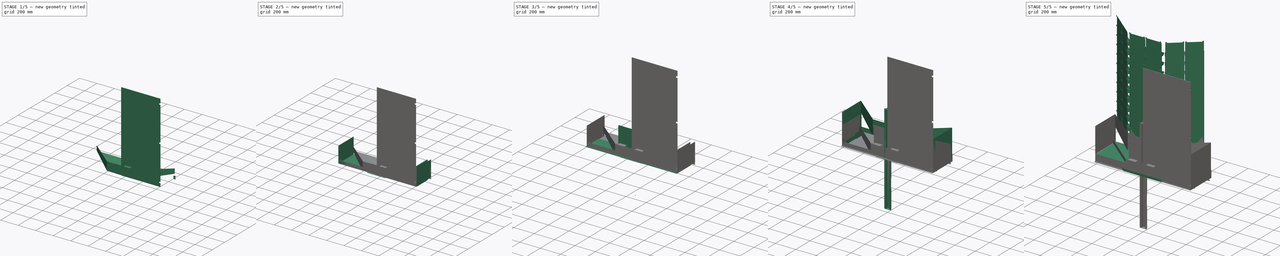
[diagram: build sequence overview — one tinted view per stage of 5, left to right]
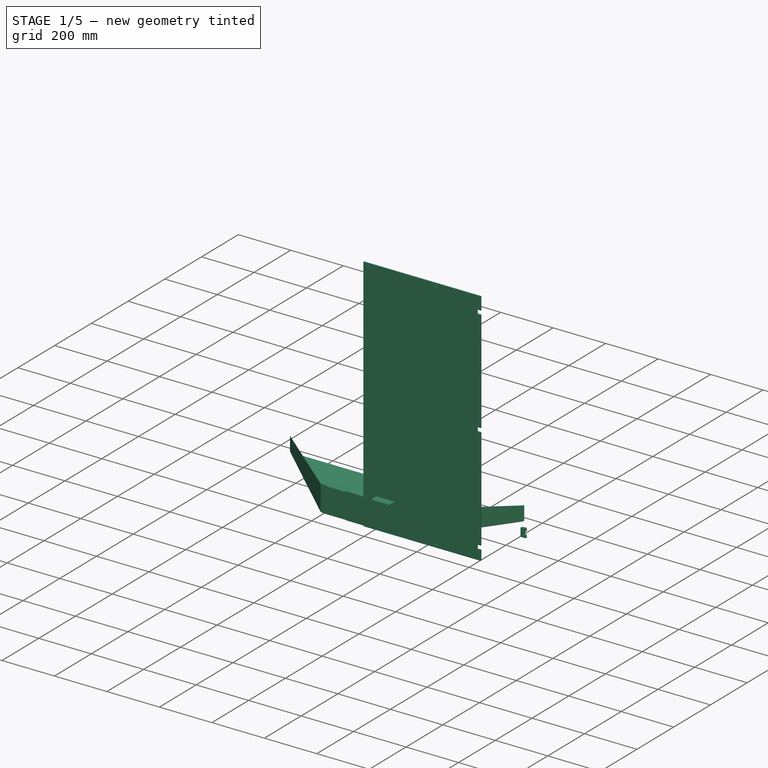
[diagram: stage 1 of 5 — iso view after this stage's code; geometry added in this stage tinted green]
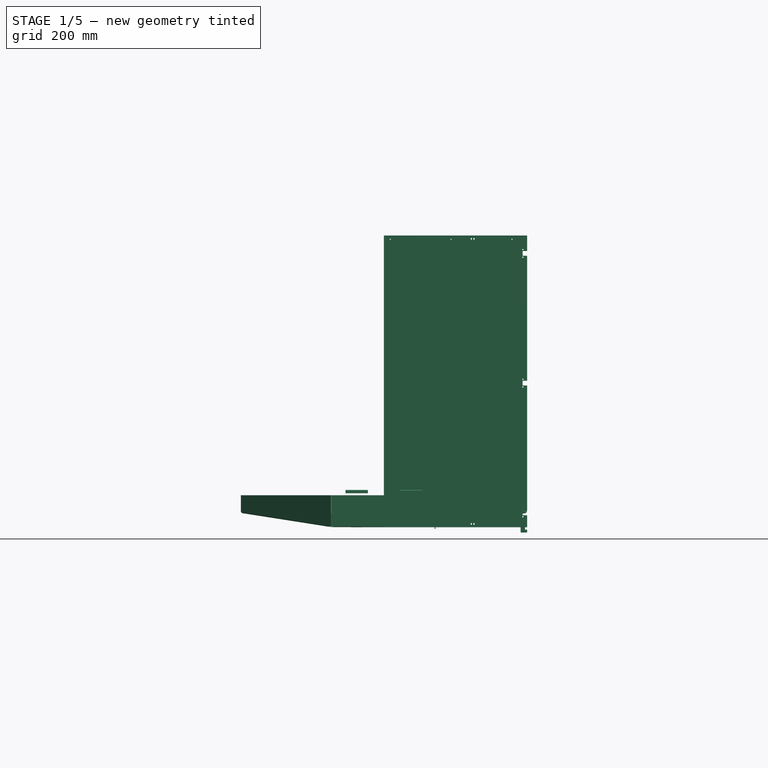
[diagram: stage 1 of 5 — front view after this stage's code; geometry added in this stage tinted green]
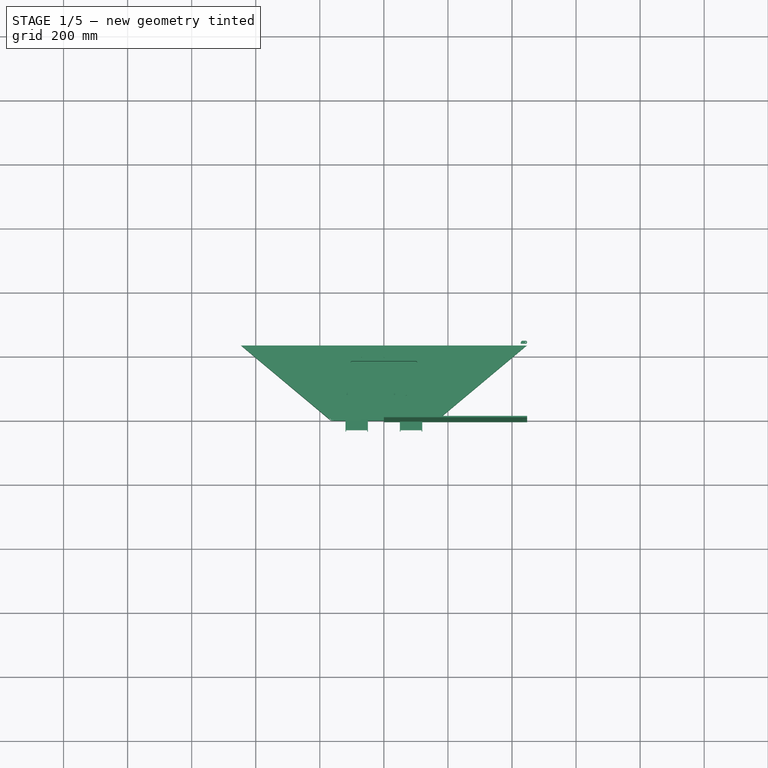
[diagram: stage 1 of 5 — top view after this stage's code; geometry added in this stage tinted green]
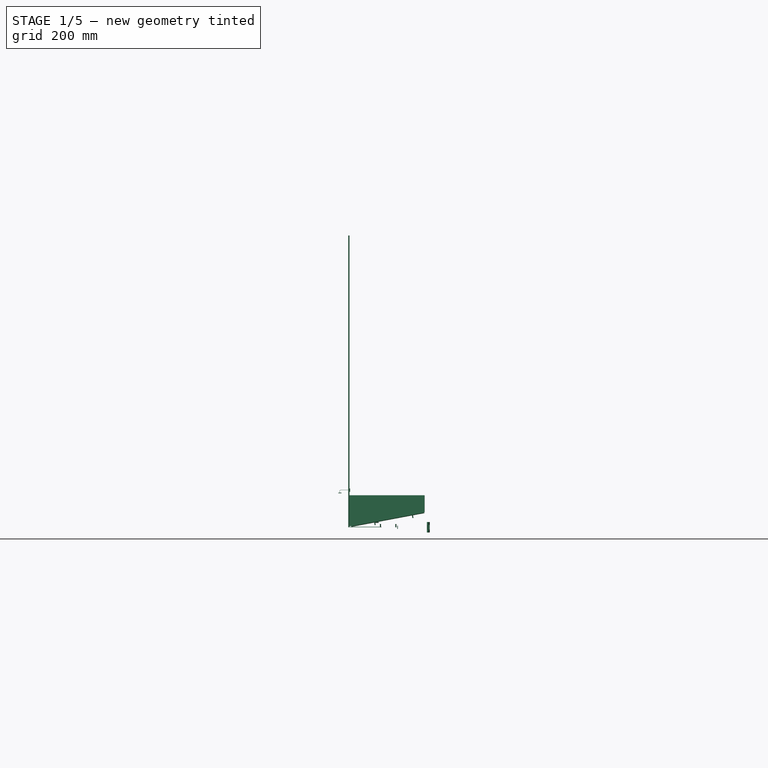
[diagram: stage 1 of 5 — right view after this stage's code; geometry added in this stage tinted green]
FCSTD DOCUMENT  (FreeCAD 0.22R37100 (Git))
Label: composit_stand12
License: All rights reserved
LicenseURL: http://en.wikipedia.org/wiki/All_rights_reserved
objects: Part::FeaturePython×197, Sketcher::SketchObject×115, PartDesign::SubShapeBinder×42, PartDesign::CoordinateSystem×42, Part::Extrusion×35, PartDesign::Pad×33, PartDesign::FeaturePython×29, PartDesign::Body×29, Part::Mirroring×28, Part::MultiFuse×25, PartDesign::Boolean×25, PartDesign::Pocket×17, Part::Compound×13, App::Link×10, PartDesign::Mirrored×8, App::DocumentObjectGroup×3, Part::Face×2, PartDesign::MultiTransform×2, Part::Box×2, Part::MultiCommon×2, +8 more types
note: 707 computed .brp shape members not serialized (recipe doc carries the construction recipe); baked Part::Feature solids carry a one-line shape summary decoded from their .brp
EXTERNAL_REF file=../module.FCStd obj=Sketch
EXTERNAL_REF file=../dropper.FCStd obj=Connect
EXTERNAL_REF file=../dropper.FCStd obj=Sketch007
EXTERNAL_REF file=../dropper.FCStd obj=Sketch008
EXTERNAL_REF file=../module.FCStd obj=Body
EXTERNAL_REF file=../rails.FCStd obj=Sketch001
EXTERNAL_REF file=../rails.FCStd obj=Sketch003
EXTERNAL_REF file=../composit_electric_shield.FCStd obj=Body002
EXTERNAL_REF file=../composit_electric_shield.FCStd obj=Extrude002
EXTERNAL_REF file=../ULZ-P02-14W.FCStd obj=Sketch
EXTERNAL_REF file=composit_stand12_model.FCStd obj=Assembly
EXTERNAL_REF file=../filter.FCStd obj=Sketch005
EXTERNAL_REF file=../filter.FCStd obj=Join001

FEATURE [Sketcher::SketchObject] Sketch
  AttachmentSupport = -> [XY_Plane019]
  FullyConstrained = true
  MapMode = 5
  sketch-geometry (15):
    g0: LineSegment StartX=1 StartY=0 StartZ=0 EndX=151 EndY=0 EndZ=0
    g1: LineSegment StartX=151 StartY=0 StartZ=0 EndX=151 EndY=36 EndZ=0
    g2: LineSegment StartX=151 StartY=36 StartZ=0 EndX=1 EndY=36 EndZ=0
    g3: LineSegment StartX=1 StartY=36 StartZ=0 EndX=1 EndY=0 EndZ=0
    g4: LineSegment StartX=292.702 StartY=106.323 StartZ=0 EndX=269.657 EndY=133.981 EndZ=0
    g5: LineSegment StartX=269.657 StartY=133.981 StartZ=0 EndX=384.897 EndY=230 EndZ=0
    g6: LineSegment StartX=384.897 StartY=230 StartZ=0 EndX=407.942 EndY=202.342 EndZ=0
    g7: LineSegment StartX=407.942 StartY=202.342 StartZ=0 EndX=292.702 EndY=106.323 EndZ=0
    g8: LineSegment StartX=175.925 StartY=9.02318 StartZ=0 EndX=152.881 EndY=36.6808 EndZ=0
    g9: LineSegment StartX=152.881 StartY=36.6808 StartZ=0 EndX=268.121 EndY=132.7 EndZ=0
    g10: LineSegment StartX=268.121 StartY=132.7 StartZ=0 EndX=291.165 EndY=105.043 EndZ=0
    g11: LineSegment StartX=291.165 StartY=105.043 StartZ=0 EndX=175.925 EndY=9.02318 EndZ=0
    g12: LineSegment StartX=291.165 StartY=105.043 StartZ=0 EndX=292.702 EndY=106.323 EndZ=0
    g13: LineSegment StartX=151 StartY=36 StartZ=0 EndX=152.064 EndY=36 EndZ=0
    g14: LineSegment StartX=152.064 StartY=36 StartZ=0 EndX=152.881 EndY=36.6808 EndZ=0
  constraints (44):
    c: Coincident(g0,g1)
    c: Coincident(g1,g2)
    c: Coincident(g2,g3)
    c: Coincident(g3,g0)
    c: Horizontal(g0)
    c: Horizontal(g2)
    c: Vertical(g1)
    c: Vertical(g3)
    c: Coincident(g4,g5)
    c: Coincident(g5,g6)
    c: Coincident(g6,g7)
    c: Coincident(g7,g4)
    c: Parallel(g4,g6)
    c: Parallel(g5,g7)
    c: Perpendicular(g4,g5)
    c: Coincident(g8,g9)
    c: Coincident(g9,g10)
    c: Coincident(g10,g11)
    c: Coincident(g11,g8)
    c: Parallel(g8,g10)
    c: Parallel(g9,g11)
    c: Perpendicular(g8,g9)
    c: Distance(g3) = 36
    c: Distance(g0) = 150
    c: Equal(g3,g8)
    c: Equal(g8,g4)
    c: Equal(g2,g9)
    c: Equal(g9,g5)
    c: Coincident(g12,g10)
    c: Coincident(g12,g4)
    c: Parallel(g11,g12)
    c: Parallel(g12,g7)
    c: Distance(g12) = 2
    c: Coincident(g1,g13)
    c: Coincident(g13,g14)
    c: Coincident(g14,g8)
    c: Parallel(g14,g9)
    c: Equal(g14,g13)
    c: Parallel(g13,g2)
    c: DistanceX(g-1,g0) = 1
    c: PointOnObject(g0,g-1)
    c: Distance(g1,g8) = 2
    c: DistanceY(g5) = 230
    c: Angle(g-1,g11) = 0.694667
FEATURE [Sketcher::SketchObject] Sketch001
  ExternalGeometry = -> [Sketch]
  FullyConstrained = true
  sketch-geometry (3):
    g0: LineSegment StartX=0 StartY=0 StartZ=0 EndX=165.096 EndY=0 EndZ=0
    g1: LineSegment StartX=165.096 StartY=0 StartZ=0 EndX=447.137 EndY=235 EndZ=0
    g2: GeomPoint X=-165.096 Y=0 Z=0
  constraints (8):
    c: Coincident(g-1,g0)
    c: PointOnObject(g0,g-1)
    c: Coincident(g0,g1)
    c: Perpendicular(g-3,g1)
    c: PointOnObject(g-3,g1)
    c: DistanceY(g-3,g1) = 5
    c: DistanceX(g1) = 447.137
    c: Symmetric(g2,g0,g-2)
FEATURE [Part::Part2DObjectPython] Clone2D  label="Sketch001 (2D)"  # Draft 2D object (typed FeaturePython)
  Fuse = false
  Objects = -> [Sketch001]
  Placement = pos=(0,30,0) rot=(0,0,1;0rad)
  Scale = (1,1,1)
  expr: .Placement.Base.y = <<face_bottom_placement>>.Placement.Base.y
FEATURE [Sketcher::SketchObject] Sketch002
  ExternalGeometry = -> [Clone2D]
  FullyConstrained = true
  sketch-geometry (1):
    g0: LineSegment StartX=447.137 StartY=265 StartZ=0 EndX=447.137 EndY=0 EndZ=0
  constraints (3):
    c: Coincident(g0,g-3)
    c: PointOnObject(g0,g-1)
    c: Vertical(g0)
FEATURE [Part::Compound] Compound
  Links = -> [Clone2D,Sketch002]
FEATURE [Part::Mirroring] Part__Mirroring  label="Compound (Mirror #1)"
  Base = (0,0,0)
  Normal = (1,0,0)
  Source = -> Compound
FEATURE [Part::FeaturePython] Connect  # WARN: FeaturePython — macro-defined, semantics opaque (R4)
  Objects = -> [Compound,Part__Mirroring]
  Tolerance = 0
FEATURE [PartDesign::SubShapeBinder] Binder
  BindCopyOnChange = 0
  BindMode = 0
  ClaimChildren = true
  Context = -> Body [Binder.]
  Fuse = false
  MakeFace = true
  OffsetFill = false
  OffsetIntersection = false
  OffsetJoinType = 0
  OffsetOpenResult = false
  PartialLoad = false
  Relative = false
  Support = -> [Connect]
  _Version = 2
FEATURE [PartDesign::FeaturePython] BaseBend  # WARN: FeaturePython — macro-defined, semantics opaque (R4)
  BendSide = 0
  BendSketch = -> Binder
  MidPlane = false
  Reverse = false
  Suppressed = false
  length = 1163
  radius = 0.1
  thickness = 0.3
  expr: length = <<Properties>>.height
FEATURE [Part::FeaturePython] Placment  # WARN: FeaturePython — macro-defined, semantics opaque (R4)
  AttacherType = Attacher::AttachEngine3D
  AttachmentOffset = pos=(0,0,0) rot=(-0.57735,-0.57735,-0.57735;2.0944rad)
  AttachmentSupport = -> [Sketch]
  ExposePlacement = true
  MapMode = 45
  MarkerShape = 1
  MarkerSize = 20
  NumElements = 1
  Placement = pos=(76,0,0) rot=(0,0,1;0rad)
  Type = lattice2AttachablePlacement.AttachablePlacement
  isLattice = 1
FEATURE [App::Link] Link  label="module_holes"
  LinkedObject = -> <external ../module.FCStd>#Sketch
FEATURE [Part::Extrusion] Extrude
  Base = -> Link
  Dir = (0,0,1)
  DirMode = 2
  FaceMakerClass = Part::FaceMakerBullseye
  LengthFwd = -5
  LengthRev = 0
  Solid = true
  Symmetric = false
FEATURE [Part::FeaturePython] LinearArray  # WARN: FeaturePython — macro-defined, semantics opaque (R4)
  Alignment = 0
  CellStart = A1
  Count = 11
  Dir = (0,0,-1)
  DirIsDriven = true
  DistributionLaw = 0
  DrivenProperty = 1
  EndInclusive = true
  ExposePlacement = false
  GeneratorMode = 1
  MarkerShape = 1
  MarkerSize = 0
  NumElements = 11
  OrientMode = 0
  Placement = pos=(0,0,-10) rot=(0,0,1;0rad)
  Point = (0,0,0)
  PointIsDriven = true
  Reverse = false
  SpanEnd = 100
  SpanStart = 0
  Step = 80
  Type = lattice2LinearArray.LinearArray
  VSGVersion = 1
  Values = 0.0 | 80.0 | 160.0 | 240.0 | 320.0 | 400.0 | 480.0 | 560.0 | 640.0 | 720.0 | 800.0
  ValuesSource = 2
  isLattice = 1
  expr: Count = <<Properties>>.modules_count
FEATURE [Part::FeaturePython] Placment003  # WARN: FeaturePython — macro-defined, semantics opaque (R4)
  AttacherType = Attacher::AttachEngine3D
  ExposePlacement = true
  MarkerShape = 1
  MarkerSize = 50
  NumElements = 1
  Placement = pos=(-76,0,0) rot=(0,0,1;0rad)
  Type = lattice2AttachablePlacement.AttachablePlacement
  isLattice = 1
  expr: .Placement.Base.x = -<<Placment>>.Placement.Base.x
  expr: .Placement.Base.y = <<Placment>>.Placement.Base.y
FEATURE [Part::FeaturePython] Placment006  label="top_placement"  # WARN: FeaturePython — macro-defined, semantics opaque (R4)
  AttacherType = Attacher::AttachEngine3D
  ExposePlacement = true
  MarkerShape = 1
  MarkerSize = 50
  NumElements = 1
  Placement = pos=(0,30,1163) rot=(0,0,1;0rad)
  Type = lattice2AttachablePlacement.AttachablePlacement
  isLattice = 1
  expr: .Placement.Base.y = <<face_bottom_placement>>.Placement.Base.y
  expr: .Placement.Base.z = <<Properties>>.height
FEATURE [Part::FeaturePython] Populate  label="Populate Placment006 with LinearArray"  # WARN: FeaturePython — macro-defined, semantics opaque (R4)
  Copying = 0
  ExposePlacement = false
  MarkerShape = 1
  MarkerSize = 0
  NumElements = 11
  Object = -> LinearArray
  OutputCompounding = 0
  PlacementsTo = -> Placment006
  Referencing = 0
  Type = lattice2PopulateCopies.LatticePopulateCopies
  isLattice = 1
FEATURE [Part::FeaturePython] Placment007  # WARN: FeaturePython — macro-defined, semantics opaque (R4)
  AttacherType = Attacher::AttachEngine3D
  ExposePlacement = true
  MarkerShape = 1
  MarkerSize = 20
  NumElements = 1
  Placement = pos=(0,0,0) rot=(0,0.707107,0.707107;3.14159rad)
  Type = lattice2AttachablePlacement.AttachablePlacement
  isLattice = 1
FEATURE [Part::FeaturePython] Placment008  label="face_bottom_placement"  # WARN: FeaturePython — macro-defined, semantics opaque (R4)
  AttacherType = Attacher::AttachEngine3D
  ExposePlacement = true
  MarkerShape = 1
  MarkerSize = 20
  NumElements = 1
  Placement = pos=(0,30,0) rot=(0,0,1;0rad)
  Type = lattice2AttachablePlacement.AttachablePlacement
  isLattice = 1
FEATURE [Spreadsheet::Sheet] Spreadsheet  label="Properties"
  cells = B2(height)==pan_height + pan_thickness + basin_height + sink_module_height + modules_height + bottom_offset; C2(modules_count)=11; D2(pan_height)==0 mm; E2(pan_thickness)==3 mm; F2(basin_height)==135 mm; G2(sink_module_height)==45 mm; H2(modules_height)==80 mm * (modules_count - 1) + 160 mm + 10 mm; I2(sink_total_height)==100 mm; J2(bottom_offset)==10 mm
FEATURE [PartDesign::Body] Body001  label="dummy_body"
  Origin = -> Origin001
FEATURE [Sketcher::SketchObject] Sketch003
  ExternalGeometry = -> [Sketch001]
  FullyConstrained = true
  Placement = pos=(0,0,0) rot=(0.57735,0.57735,0.57735;2.0944rad)
  sketch-geometry (1):
    g0: LineSegment StartX=0 StartY=0 StartZ=0 EndX=235 EndY=44.1693 EndZ=0
  constraints (3):
    c: Coincident(g0,g-1)
    c: Angle(g0) = 0.185787  'angle'
    c: Vertical(g-3,g0)
FEATURE [Sketcher::SketchObject] Sketch004
  AttachmentSupport = -> [Sketch001]
  ExternalGeometry = -> [Sketch003]
  FullyConstrained = true
  MapMode = 1
  Placement = pos=(447.137,235,0) rot=(0.57735,0.57735,0.57735;2.0944rad)
  sketch-geometry (1):
    g0: LineSegment StartX=0 StartY=0 StartZ=0 EndX=0 EndY=44.1693 EndZ=0
  constraints (2):
    c: Coincident(g0,g-1)
    c: Coincident(g-3,g0)
FEATURE [Sketcher::SketchObject] Sketch005
  AttachmentOffset = pos=(0,0,0) rot=(0,1,0;1.5708rad)
  AttachmentSupport = -> [Sketch001]
  ExternalGeometry = -> [Sketch004]
  FullyConstrained = true
  MapMode = 7
  Placement = pos=(165.096,1.42e-14,0) rot=(0.890129,0.322235,0.322235;1.68692rad)
  sketch-geometry (1):
    g0: LineSegment StartX=0 StartY=0 StartZ=0 EndX=367.113 EndY=44.1693 EndZ=0
  constraints (2):
    c: Coincident(g-1,g0)
    c: Coincident(g0,g-3)
FEATURE [PartDesign::SubShapeBinder] Binder001
  BindCopyOnChange = 0
  BindMode = 0
  ClaimChildren = true
  Context = -> Body002 [Binder001.]
  Fuse = false
  MakeFace = true
  OffsetFill = false
  OffsetIntersection = false
  OffsetJoinType = 0
  OffsetOpenResult = false
  PartialLoad = false
  Relative = true
  Support = -> [Sketch003]
  _Version = 2
FEATURE [PartDesign::SubShapeBinder] Binder002
  BindCopyOnChange = 0
  BindMode = 0
  ClaimChildren = true
  Context = -> Body002 [Binder002.]
  Fuse = false
  MakeFace = true
  OffsetFill = false
  OffsetIntersection = false
  OffsetJoinType = 0
  OffsetOpenResult = false
  PartialLoad = false
  Relative = true
  Support = -> [Sketch005]
  _Version = 2
FEATURE [Sketcher::SketchObject] Sketch006
  AttachmentSupport = -> [YZ_Plane002]
  ExternalGeometry = -> [Binder001]
  FullyConstrained = true
  MapMode = 5
  Placement = pos=(0,0,0) rot=(0.57735,0.57735,0.57735;2.0944rad)
  sketch-geometry (1):
    g0: ArcOfCircle CenterX=2.5 CenterY=3.01366 CenterZ=0 NormalX=0 NormalY=0 NormalZ=1 AngleXU=0 Radius=2.5 StartAngle=3.14159 EndAngle=4.89818
  constraints (3):
    c: Tangent(g0,g-2) = 1.5708
    c: Tangent(g0,g-3) = -1.5708
    c: Radius(g0) = 2.5
FEATURE [PartDesign::SubShapeBinder] Binder003
  BindCopyOnChange = 0
  BindMode = 0
  ClaimChildren = true
  Context = -> Body002 [Binder003.]
  Fuse = false
  MakeFace = true
  OffsetFill = false
  OffsetIntersection = false
  OffsetJoinType = 0
  OffsetOpenResult = false
  PartialLoad = false
  Relative = true
  Support = -> [Sketch001[Edge2]]
  _Version = 2
FEATURE [Sketcher::SketchObject] Sketch007
  AttachmentSupport = -> [Binder002]
  ExternalGeometry = -> [Binder001]
  FullyConstrained = true
  MapMode = 7
  Placement = pos=(165.096,4.26e-14,0) rot=(0.847578,-0.397021,-0.352117;1.8524rad)
  sketch-geometry (2):
    g0: ArcOfCircle CenterX=-2.5 CenterY=2.88397 CenterZ=0 NormalX=0 NormalY=0 NormalZ=1 AngleXU=0 Radius=2.5 StartAngle=4.56999 EndAngle=6.28319
    g1: LineSegment StartX=-2.85479 StartY=0.409277 StartZ=0 EndX=0 EndY=-2e-16 EndZ=0
  constraints (5):
    c: Tangent(g1,g0) = -1.5708
    c: Coincident(g1,g-1)
    c: Tangent(g0,g-2) = -1.5708
    c: Parallel(g1,g-3)
    c: Radius(g0) = 2.5
FEATURE [PartDesign::SubShapeBinder] Binder004
  BindCopyOnChange = 0
  BindMode = 0
  ClaimChildren = false
  Context = -> Body002 [Binder004.]
  Fuse = false
  MakeFace = true
  OffsetFill = false
  OffsetIntersection = false
  OffsetJoinType = 0
  OffsetOpenResult = false
  PartialLoad = false
  Relative = true
  _Version = 2
FEATURE [PartDesign::CoordinateSystem] Local_CS
  AttacherType = Attacher::AttachEngine3D
  AttachmentOffset = pos=(0,0,0) rot=(1,0,0;0.185787rad)
  AttachmentSupport = -> [XY_Plane002]
  MapMode = 5
  Placement = pos=(0,0,0) rot=(1,0,0;0.185787rad)
  expr: .AttachmentOffset.Rotation.Roll = <<Sketch003>>.Constraints.angle
FEATURE [Sketcher::SketchObject] Sketch008
  AttachmentSupport = -> [Local_CS]
  ExternalGeometry = -> [Binder001,Sketch006,Sketch007,Binder002]
  FullyConstrained = true
  MapMode = 5
  Placement = pos=(0,0,0) rot=(1,0,0;0.185787rad)
  sketch-geometry (4):
    g0: LineSegment StartX=-164.191 StartY=3.01366 StartZ=0 EndX=164.191 EndY=3.01366 EndZ=0
    g1: LineSegment StartX=164.191 StartY=3.01366 StartZ=0 EndX=442.677 EndY=239.115 EndZ=0
    g2: LineSegment StartX=442.677 StartY=239.115 StartZ=0 EndX=-442.677 EndY=239.115 EndZ=0
    g3: LineSegment StartX=-442.677 StartY=239.115 StartZ=0 EndX=-164.191 EndY=3.01366 EndZ=0
  constraints (13):
    c: Coincident(g0,g1)
    c: Coincident(g1,g2)
    c: Coincident(g2,g3)
    c: Coincident(g3,g0)
    c: Symmetric(g0,g0,g-2)
    c: Symmetric(g2,g1,g-2)
    c: PointOnObject(g-4,g0)
    c: PointOnObject(g-5,g1)
    c: Parallel(g1,g-6)
    c: PointOnObject(g-3,g2)
    c: DistanceX(g0,g0) = 328.382  'back'
    c: Distance(g1) = 365.1  'side'
    c: Distance(g2) = 885.354  'front'
FEATURE [Sketcher::SketchObject] Sketch009
  AttachmentSupport = -> [YZ_Plane002]
  ExternalGeometry = -> [Binder001]
  FullyConstrained = true
  MapMode = 5
  Placement = pos=(0,0,0) rot=(0.57735,0.57735,0.57735;2.0944rad)
  sketch-geometry (4):
    g0: ArcOfCircle CenterX=2.5 CenterY=3.01366 CenterZ=0 NormalX=0 NormalY=0 NormalZ=1 AngleXU=0 Radius=2.5 StartAngle=3.14159 EndAngle=4.89818
    g1: ArcOfCircle CenterX=2.5 CenterY=3.01366 CenterZ=0 NormalX=0 NormalY=0 NormalZ=1 AngleXU=0 Radius=2 StartAngle=3.14159 EndAngle=4.89818
    g2: LineSegment StartX=0 StartY=3.01366 StartZ=0 EndX=0.5 EndY=3.01366 EndZ=0
    g3: LineSegment StartX=2.9618 StartY=0.556683 StartZ=0 EndX=2.86944 EndY=1.04808 EndZ=0
  constraints (12):
    c: Coincident(g1,g0)
    c: Coincident(g2,g0)
    c: Coincident(g2,g1)
    c: Coincident(g3,g0)
    c: Coincident(g3,g1)
    c: Perpendicular(g1,g2)
    c: Perpendicular(g1,g3)
    c: Tangent(g0,g-3)
    c: Tangent(g0,g-2) = 1.5708
    c: Radius(g1) = 2
    c: Distance(g2) = 0.5
    c: Perpendicular(g-3,g3)
FEATURE [Sketcher::SketchObject] Sketch010
  AttachmentOffset = pos=(0,0,-7) rot=(0,0,1;0rad)
  AttachmentSupport = -> [Binder002,Sketch008]
  ExternalGeometry = -> [Binder001]
  FullyConstrained = true
  MapMode = 7
  Placement = pos=(171.395,5.24868,0.986513) rot=(0.847578,-0.397021,-0.352117;1.8524rad)
  expr: .AttachmentOffset.Base.z = -<<sink_cut_corner>>.Constraints.r
  sketch-geometry (4):
    g0: ArcOfCircle CenterX=-2.5 CenterY=2.88397 CenterZ=0 NormalX=0 NormalY=0 NormalZ=1 AngleXU=0 Radius=2.5 StartAngle=4.56999 EndAngle=6.28319
    g1: ArcOfCircle CenterX=-2.5 CenterY=2.88397 CenterZ=0 NormalX=0 NormalY=0 NormalZ=1 AngleXU=0 Radius=2 StartAngle=4.56999 EndAngle=6.28319
    g2: LineSegment StartX=-2.78383 StartY=0.904216 StartZ=0 EndX=-2.85479 EndY=0.409277 EndZ=0
    g3: LineSegment StartX=-0.5 StartY=2.88397 StartZ=0 EndX=0 EndY=2.88397 EndZ=0
  constraints (13):
    c: PointOnObject(g0,g-2)
    c: Coincident(g1,g0)
    c: Radius(g1) = 2
    c: Coincident(g2,g1)
    c: Coincident(g2,g0)
    c: Coincident(g3,g1)
    c: Coincident(g3,g0)
    c: Horizontal(g3)
    c: Perpendicular(g1,g3)
    c: Perpendicular(g1,g2)
    c: Tangent(g-3,g0)
    c: Distance(g2) = 0.5
    c: Perpendicular(g-3,g2)
FEATURE [PartDesign::Pad] Pad
  Direction = (0,-0.18472,0.982791)
  Length = 0.5
  Length2 = 10
  Placement = pos=(0,0,0) rot=(1,0,0;0.185787rad)
  Profile = -> Sketch008
  ReferenceAxis = -> Sketch008 [N_Axis]
  Suppressed = false
  Type = 0
FEATURE [PartDesign::Pad] Pad001
  BaseFeature = -> Pad
  Direction = (-0.762766,-0.635546,-0.119454)
  Length = 358.1
  Length2 = 10
  Placement = pos=(0,0,0) rot=(1,0,0;0.185787rad)
  Profile = -> Sketch010
  ReferenceAxis = -> Sketch010 [N_Axis]
  Reversed = true
  Suppressed = false
  Type = 0
  expr: Length = <<Sketch008>>.Constraints.side - <<sink_cut_corner>>.Constraints.r
FEATURE [PartDesign::Pad] Pad002
  BaseFeature = -> Pad001
  Direction = (1,0,0)
  Length = 314.382
  Length2 = 10
  Midplane = true
  Placement = pos=(0,0,0) rot=(1,0,0;0.185787rad)
  Profile = -> Sketch009
  ReferenceAxis = -> Sketch009 [N_Axis]
  Suppressed = false
  Type = 0
  expr: Length = <<Sketch008>>.Constraints.back - <<sink_cut_corner>>.Constraints.r * 2
FEATURE [Part::Mirroring] Part__Mirroring001  label="Sketch010 (Mirror #2)"
  Base = (0,0,0)
  Normal = (1,0,0)
  Source = -> Sketch010
FEATURE [PartDesign::SubShapeBinder] Binder005
  BindCopyOnChange = 0
  BindMode = 0
  ClaimChildren = true
  Context = -> Body002 [Binder005.]
  Fuse = false
  MakeFace = true
  OffsetFill = false
  OffsetIntersection = false
  OffsetJoinType = 0
  OffsetOpenResult = false
  PartialLoad = false
  Relative = false
  Support = -> [Part__Mirroring001]
  _Version = 2
FEATURE [PartDesign::Pad] Pad003
  BaseFeature = -> Pad002
  Direction = (0.762766,-0.635546,-0.119454)
  Length = 358.1
  Length2 = 10
  Placement = pos=(0,0,0) rot=(1,0,0;0.185787rad)
  Profile = -> Binder005
  Reversed = true
  Suppressed = false
  Type = 0
  expr: Length = Pad001.Length
FEATURE [Part::FeaturePython] LinearArray003  # WARN: FeaturePython — macro-defined, semantics opaque (R4)
  Alignment = 0
  CellStart = A1
  Count = 2
  Dir = (1,0,0)
  DirIsDriven = true
  DistributionLaw = 0
  DrivenProperty = 1
  EndInclusive = true
  ExposePlacement = false
  GeneratorMode = 0
  MarkerShape = 1
  MarkerSize = 0
  NumElements = 2
  OrientMode = 1
  Placement = pos=(-47.5,-4.7,0) rot=(0,0,1;0rad)
  Point = (0,0,0)
  PointIsDriven = true
  Reverse = false
  SpanEnd = 95
  SpanStart = 0
  Step = 95
  Type = lattice2LinearArray.LinearArray
  VSGVersion = 1
  Values = 0.0 | 95.0
  ValuesSource = 2
  isLattice = 1
  expr: .Placement.Base.x = -SpanEnd / 2
FEATURE [Part::Cylinder] Cylinder  label="hole_3.4mm"
  Angle = 360
  AttacherType = Attacher::AttachEngine3D
  FirstAngle = 0
  Height = 10
  Radius = 1.7
  SecondAngle = 0
FEATURE [Sketcher::SketchObject] Sketch039
  AttachmentOffset = pos=(0,0,0) rot=(0,0,1;1.5708rad)
  AttachmentSupport = -> [YZ_Plane002,Binder001]
  ExternalGeometry = -> [Binder001]
  FullyConstrained = true
  MapMode = 6
  Placement = pos=(2.12e-14,235,44.1693) rot=(0.57735,0.57735,0.57735;2.0944rad)
  sketch-geometry (10):
    g0: ArcOfCircle CenterX=0.36944 CenterY=-1.96558 CenterZ=0 NormalX=0 NormalY=0 NormalZ=1 AngleXU=0 Radius=2 StartAngle=1.5708 EndAngle=1.75658
    g1: ArcOfCircle CenterX=2.5 CenterY=-1.96558 CenterZ=0 NormalX=0 NormalY=0 NormalZ=1 AngleXU=0 Radius=2 StartAngle=1e-16 EndAngle=1.5708
    g2: LineSegment StartX=4.5 StartY=-1.96558 StartZ=0 EndX=4.5 EndY=-9.46558 EndZ=0
    g3: LineSegment StartX=4.5 StartY=-9.46558 StartZ=0 EndX=5 EndY=-9.46558 EndZ=0
    g4: LineSegment StartX=5 StartY=-9.46558 StartZ=0 EndX=5 EndY=-1.96558 EndZ=0
    g5: LineSegment StartX=2.5 StartY=0.0344176 StartZ=0 EndX=0.36944 EndY=0.0344176 EndZ=0
    g6: ArcOfCircle CenterX=2.5 CenterY=-1.96558 CenterZ=0 NormalX=0 NormalY=0 NormalZ=1 AngleXU=0 Radius=2.5 StartAngle=0 EndAngle=1.5708
    g7: ArcOfCircle CenterX=0.36944 CenterY=-1.96558 CenterZ=0 NormalX=0 NormalY=0 NormalZ=1 AngleXU=0 Radius=2.5 StartAngle=1.5708 EndAngle=1.75658
    g8: LineSegment StartX=0.36944 StartY=0.534418 StartZ=0 EndX=2.5 EndY=0.534418 EndZ=0
    g9: LineSegment StartX=-1e-16 StartY=0 StartZ=0 EndX=-0.0923599 EndY=0.491396 EndZ=0
  constraints (24):
    c: Tangent(g1,g2) = 1.5708
    c: Coincident(g2,g3)
    c: Horizontal(g3)
    c: Coincident(g3,g4)
    c: Tangent(g1,g5) = -1.5708
    c: Tangent(g0,g5) = -1.5708
    c: Coincident(g6,g1)
    c: Tangent(g6,g4) = -1.5708
    c: Vertical(g2)
    c: Vertical(g4)
    c: DistanceX(g3,g3) = 0.5
    c: Horizontal(g5)
    c: Tangent(g0,g-3) = 1.5708
    c: Equal(g0,g1)
    c: Radius(g0) = 2
    c: Coincident(g7,g0)
    c: Horizontal(g8)
    c: Tangent(g8,g6) = 1.5708
    c: Coincident(g9,g0)
    c: Coincident(g9,g7)
    c: Perpendicular(g7,g9)
    c: Tangent(g8,g7) = 1.5708
    c: DistanceY(g2,g6) = 10
    c: DistanceX(g0,g4) = 5
FEATURE [Sketcher::SketchObject] Sketch040
  ExternalGeometry = -> [Sketch001]
  FullyConstrained = true
  Placement = pos=(0,0,0) rot=(1,0,0;1.5708rad)
  sketch-geometry (5):
    g0: LineSegment StartX=-164.596 StartY=0 StartZ=0 EndX=164.596 EndY=0 EndZ=0
    g1: LineSegment StartX=164.596 StartY=0 StartZ=0 EndX=164.596 EndY=100 EndZ=0
    g2: LineSegment StartX=164.596 StartY=100 StartZ=0 EndX=-164.596 EndY=100 EndZ=0
    g3: LineSegment StartX=-164.596 StartY=100 StartZ=0 EndX=-164.596 EndY=0 EndZ=0
    g4: GeomPoint X=0 Y=50 Z=0
  constraints (13):
    c: Coincident(g0,g1)
    c: Coincident(g1,g2)
    c: Coincident(g2,g3)
    c: Coincident(g3,g0)
    c: Horizontal(g0)
    c: Horizontal(g2)
    c: Vertical(g1)
    c: Vertical(g3)
    c: Symmetric(g2,g0,g4)
    c: PointOnObject(g4,g-2)
    c: PointOnObject(g0,g-1)
    c: DistanceY(g1) = 100
    c: DistanceX(g0,g-3) = 0.5
FEATURE [Sketcher::SketchObject] Sketch041
  AttachmentOffset = pos=(0,0,0) rot=(0,1,0;1.5708rad)
  AttachmentSupport = -> [Sketch001]
  ExternalGeometry = -> [Sketch005,Sketch040]
  FullyConstrained = true
  MapMode = 7
  Placement = pos=(165.096,1.42e-14,0) rot=(0.890129,0.322235,0.322235;1.68692rad)
  sketch-geometry (4):
    g0: LineSegment StartX=0.5 StartY=0.0601576 StartZ=0 EndX=366.113 EndY=44.049 EndZ=0
    g1: LineSegment StartX=366.113 StartY=44.049 StartZ=0 EndX=366.113 EndY=100 EndZ=0
    g2: LineSegment StartX=366.113 StartY=100 StartZ=0 EndX=0.5 EndY=100 EndZ=0
    g3: LineSegment StartX=0.5 StartY=100 StartZ=0 EndX=0.5 EndY=0.0601576 EndZ=0
  constraints (12):
    c: PointOnObject(g0,g-3)
    c: PointOnObject(g0,g-3)
    c: Coincident(g0,g1)
    c: Vertical(g1)
    c: Coincident(g1,g2)
    c: Horizontal(g2)
    c: Coincident(g2,g3)
    c: Coincident(g3,g0)
    c: Vertical(g3)
    c: DistanceX(g0) = 0.5
    c: DistanceX(g0,g-3) = 1
    c: Horizontal(g-4,g2)
FEATURE [PartDesign::SubShapeBinder] Binder010
  BindCopyOnChange = 0
  BindMode = 0
  ClaimChildren = false
  Context = -> Body002 [Binder010.]
  Fuse = false
  MakeFace = true
  OffsetFill = false
  OffsetIntersection = false
  OffsetJoinType = 0
  OffsetOpenResult = false
  PartialLoad = false
  Relative = true
  Support = -> [Sketch040]
  _Version = 2
FEATURE [Sketcher::SketchObject] Sketch011
  AttachmentSupport = -> [XZ_Plane002]
  ExternalGeometry = -> [Sketch009,Binder003,Binder010]
  FullyConstrained = true
  MapMode = 5
  Placement = pos=(0,0,0) rot=(1,0,0;1.5708rad)
  sketch-geometry (5):
    g0: LineSegment StartX=-164.596 StartY=100 StartZ=0 EndX=-164.596 EndY=3.01366 EndZ=0
    g1: LineSegment StartX=-164.596 StartY=3.01366 StartZ=0 EndX=164.596 EndY=3.01366 EndZ=0
    g2: LineSegment StartX=164.596 StartY=3.01366 StartZ=0 EndX=164.596 EndY=100 EndZ=0
    g3: LineSegment StartX=164.596 StartY=100 StartZ=0 EndX=-164.596 EndY=100 EndZ=0
    g4: GeomPoint X=0 Y=51.5068 Z=0
  constraints (12):
    c: Coincident(g0,g1)
    c: Coincident(g1,g2)
    c: Coincident(g2,g3)
    c: Coincident(g3,g0)
    c: Vertical(g0)
    c: Vertical(g2)
    c: Horizontal(g1)
    c: Horizontal(g3)
    c: Symmetric(g2,g0,g4)
    c: PointOnObject(g4,g-2)
    c: PointOnObject(g-3,g1)
    c: Coincident(g2,g-5)
FEATURE [PartDesign::Pad] Pad004
  BaseFeature = -> Pad003
  Direction = (0,-1,2e-16)
  Length = 0.5
  Length2 = 10
  Placement = pos=(0,0,0) rot=(1,0,0;0.185787rad)
  Profile = -> Sketch011
  ReferenceAxis = -> Sketch011 [N_Axis]
  Reversed = true
  Suppressed = false
  Type = 0
FEATURE [Sketcher::SketchObject] Sketch014
  AttachmentOffset = pos=(164.191,0,0) rot=(0,0,1;0rad)
  AttachmentSupport = -> [XZ_Plane002]
  ExternalGeometry = -> [Sketch011]
  FullyConstrained = true
  MapMode = 5
  Placement = pos=(164.191,0,0) rot=(1,0,0;1.5708rad)
  expr: .AttachmentOffset.Base.x = <<Sketch008>>.Constraints.back / 2
  sketch-geometry (4):
    g0: ArcOfCircle CenterX=0 CenterY=3.01366 CenterZ=0 NormalX=0 NormalY=0 NormalZ=1 AngleXU=0 Radius=7 StartAngle=1.90373 EndAngle=3.14159
    g1: LineSegment StartX=-7 StartY=3.01366 StartZ=0 EndX=0.405024 EndY=3.01366 EndZ=0
    g2: LineSegment StartX=0.405024 StartY=3.01366 StartZ=0 EndX=0.405024 EndY=13.4096 EndZ=0
    g3: ArcOfCircle CenterX=-3.59498 CenterY=13.4096 CenterZ=0 NormalX=0 NormalY=0 NormalZ=1 AngleXU=0 Radius=4 StartAngle=5.04532 EndAngle=6.28319
  constraints (12):
    c: PointOnObject(g0,g-2)
    c: PointOnObject(g0,g-3)
    c: PointOnObject(g0,g-3)
    c: Radius(g0) = 7
    c: Horizontal(g1)
    c: Coincident(g1,g2)
    c: Vertical(g2)
    c: Tangent(g3,g2) = -1.5708
    c: Tangent(g3,g0) = 1.5708
    c: Radius(g3) = 4
    c: PointOnObject(g-3,g2)
    c: Coincident(g1,g0)
FEATURE [Sketcher::SketchObject] Sketch019  label="sink_face_cut"
  AttachmentSupport = -> [XZ_Plane002]
  ExternalGeometry = -> [Sketch011]
  FullyConstrained = true
  MapMode = 5
  Placement = pos=(0,0,0) rot=(1,0,0;1.5708rad)
  sketch-geometry (3):
    g0: ArcOfCircle CenterX=159.596 CenterY=95 CenterZ=0 NormalX=0 NormalY=0 NormalZ=1 AngleXU=0 Radius=5 StartAngle=-9e-16 EndAngle=1.5708
    g1: LineSegment StartX=164.596 StartY=95 StartZ=0 EndX=164.596 EndY=100 EndZ=0
    g2: LineSegment StartX=164.596 StartY=100 StartZ=0 EndX=159.596 EndY=100 EndZ=0
  constraints (7):
    c: Tangent(g0,g-3) = -1.5708
    c: Coincident(g0,g1)
    c: Coincident(g1,g2)
    c: Horizontal(g2)
    c: Coincident(g1,g-3)
    c: Radius(g0) = 5  'r'
    c: Tangent(g2,g0) = -1.5708
FEATURE [PartDesign::SubShapeBinder] Binder011
  BindCopyOnChange = 0
  BindMode = 0
  ClaimChildren = false
  Context = -> Body002 [Binder011.]
  Fuse = false
  MakeFace = true
  OffsetFill = false
  OffsetIntersection = false
  OffsetJoinType = 0
  OffsetOpenResult = false
  PartialLoad = false
  Relative = true
  Support = -> [Sketch041]
  _Version = 2
FEATURE [Sketcher::SketchObject] Sketch012
  AttachmentOffset = pos=(0,0,0) rot=(0,1,0;1.5708rad)
  AttachmentSupport = -> [Binder003]
  ExternalGeometry = -> [Sketch010,Binder002,Binder011]
  FullyConstrained = true
  MapMode = 7
  Placement = pos=(165.096,1.42e-14,0) rot=(0.890129,0.322235,0.322235;1.68692rad)
  sketch-geometry (4):
    g0: LineSegment StartX=0.5 StartY=2.96493 StartZ=0 EndX=366.113 EndY=46.9537 EndZ=0
    g1: LineSegment StartX=366.113 StartY=46.9537 StartZ=0 EndX=366.113 EndY=100 EndZ=0
    g2: LineSegment StartX=366.113 StartY=100 StartZ=0 EndX=0.5 EndY=100 EndZ=0
    g3: LineSegment StartX=0.5 StartY=100 StartZ=0 EndX=0.5 EndY=2.96493 EndZ=0
  constraints (10):
    c: Coincident(g0,g1)
    c: Coincident(g1,g2)
    c: Coincident(g2,g3)
    c: Coincident(g3,g0)
    c: Vertical(g1)
    c: Vertical(g3)
    c: Parallel(g0,g-4)
    c: PointOnObject(g-3,g0)
    c: Coincident(g2,g-5)
    c: Coincident(g1,g-5)
FEATURE [PartDesign::Pad] Pad005
  BaseFeature = -> Pad004
  Direction = (0.64013,-0.768267,0)
  Length = 0.5
  Length2 = 10
  Placement = pos=(0,0,0) rot=(1,0,0;0.185787rad)
  Profile = -> Sketch012
  ReferenceAxis = -> Sketch012 [N_Axis]
  Reversed = true
  Suppressed = false
  Type = 0
FEATURE [Part::Mirroring] Part__Mirroring002  label="Sketch012 (Mirror #3)"
  Base = (0,0,0)
  Normal = (1,0,0)
  Source = -> Sketch012
FEATURE [PartDesign::Pad] Pad006
  BaseFeature = -> Pad005
  Direction = (0.64013,0.768267,-2e-16)
  Length = 0.5
  Length2 = 10
  Placement = pos=(0,0,0) rot=(1,0,0;0.185787rad)
  Profile = -> Binder006
  Suppressed = false
  Type = 0
FEATURE [PartDesign::CoordinateSystem] Local_CS017  label="cap_outer_LCS"
  AttacherType = Attacher::AttachEngine3D
  AttachmentSupport = -> [XY_Plane011]
  MapMode = 5
FEATURE [PartDesign::CoordinateSystem] Local_CS018  label="cap_inner_LCS"
  AttacherType = Attacher::AttachEngine3D
  AttachmentSupport = -> [XY_Plane013]
  MapMode = 5
FEATURE [PartDesign::CoordinateSystem] Local_CS019  label="face_top_LCS"
  AttacherType = Attacher::AttachEngine3D
  AttachmentOffset = pos=(0,0,1163.4) rot=(0,0,1;0rad)
  AttachmentSupport = -> [XY_Plane]
  MapMode = 5
  Placement = pos=(0,0,1163.4) rot=(0,0,1;0rad)
  expr: .AttachmentOffset.Base.z = <<Properties>>.height + 0.4 mm
FEATURE [PartDesign::CoordinateSystem] Local_CS020  label="face_electric_shield_LCS"
  AttacherType = Attacher::AttachEngine3D
  AttachmentOffset = pos=(447.137,125,930) rot=(0.57735,0.57735,0.57735;2.0944rad)
  AttachmentSupport = -> [XY_Plane]
  MapMode = 5
  Placement = pos=(447.137,125,930) rot=(0.57735,0.57735,0.57735;2.0944rad)
  expr: AttachmentOffset = <<electric_shield_placement>>.Placement
FEATURE [Sketcher::SketchObject] Sketch062  label="Sketch064"
  ExternalGeometry = -> [Sketch001]
  FullyConstrained = true
  sketch-geometry (5):
    g0: LineSegment StartX=429.23 StartY=220.08 StartZ=0 EndX=448.437 EndY=236.083 EndZ=0
    g1: LineSegment StartX=448.437 StartY=236.083 StartZ=0 EndX=398.437 EndY=286.083 EndZ=0
    g2: LineSegment StartX=398.437 StartY=286.083 StartZ=0 EndX=378.437 EndY=286.083 EndZ=0
    g3: ArcOfCircle CenterX=444.437 CenterY=236.265 CenterZ=0 NormalX=0 NormalY=0 NormalZ=1 AngleXU=0 Radius=2.7 StartAngle=5.40706 EndAngle=7.06858
    g4: LineSegment StartX=447.137 StartY=235 StartZ=0 EndX=447.137 EndY=236.265 EndZ=0
  constraints (17):
    c: Coincident(g1,g2)
    c: Horizontal(g2)
    c: PointOnObject(g0,g-3)
    c: Angle(g1) = 2.35619
    c: Distance(g0) = 25
    c: DistanceY(g0,g1) = 50
    c: Coincident(g0,g1)
    c: PointOnObject(g-3,g0)
    c: Tangent(g3,g1) = -1.5708
    c: Tangent(g3,g0) = -1.5708
    c: Radius(g3) = 2.7
    c: Coincident(g4,g-3)
    c: Tangent(g4,g3) = -1.5708
    c: Vertical(g4)
    c: DistanceX(g2,g2) = 20
    c: DistanceX(g1) = 398.437
    c: DistanceY(g1) = 286.083  'depth'
FEATURE [PartDesign::CoordinateSystem] Local_CS022  label="face_door_LCS"
  AttacherType = Attacher::AttachEngine3D
  AttachmentOffset = pos=(0,30,250) rot=(0,0,1;0rad)
  AttachmentSupport = -> [XY_Plane]
  MapMode = 5
  Placement = pos=(0,30,250) rot=(0,0,1;0rad)
  expr: AttachmentOffset = <<door_placement>>.Placement
FEATURE [PartDesign::SubShapeBinder] Binder020
  BindCopyOnChange = 0
  BindMode = 0
  ClaimChildren = false
  Fuse = false
  MakeFace = true
  OffsetFill = false
  OffsetIntersection = false
  OffsetJoinType = 0
  OffsetOpenResult = false
  PartialLoad = false
  Relative = true
  Support = -> [<external ../ULZ-P02-14W.FCStd>#Sketch]
  _Version = 2
FEATURE [Sketcher::SketchObject] Sketch063  label="Sketch065"
  ExternalGeometry = -> [Binder020]
  FullyConstrained = true
  sketch-geometry (18):
    g0: ArcOfCircle CenterX=4.15 CenterY=-446.3 CenterZ=0 NormalX=0 NormalY=0 NormalZ=1 AngleXU=0 Radius=1.7 StartAngle=3.14159 EndAngle=6.28319
    g1: ArcOfCircle CenterX=4.15 CenterY=-443.7 CenterZ=0 NormalX=0 NormalY=0 NormalZ=1 AngleXU=0 Radius=1.7 StartAngle=1.09e-14 EndAngle=3.14159
    g2: LineSegment StartX=2.45 StartY=-446.3 StartZ=0 EndX=2.45 EndY=-443.7 EndZ=0
    g3: LineSegment StartX=5.85 StartY=-446.3 StartZ=0 EndX=5.85 EndY=-443.7 EndZ=0
    g4: GeomPoint X=4.15 Y=-448 Z=0
    g5: GeomPoint X=4.15 Y=-442 Z=0
    g6: ArcOfCircle CenterX=-4.15 CenterY=-446.3 CenterZ=0 NormalX=0 NormalY=0 NormalZ=1 AngleXU=0 Radius=1.7 StartAngle=3.14159 EndAngle=6.28319
    g7: ArcOfCircle CenterX=-4.15 CenterY=-443.7 CenterZ=0 NormalX=0 NormalY=0 NormalZ=1 AngleXU=0 Radius=1.7 StartAngle=-8e-15 EndAngle=3.14159
    g8: LineSegment StartX=-2.45 StartY=-446.3 StartZ=0 EndX=-2.45 EndY=-443.7 EndZ=0
    g9: LineSegment StartX=-5.85 StartY=-446.3 StartZ=0 EndX=-5.85 EndY=-443.7 EndZ=0
    g10: ArcOfCircle CenterX=4.15 CenterY=446.3 CenterZ=0 NormalX=0 NormalY=0 NormalZ=1 AngleXU=0 Radius=1.7 StartAngle=1e-15 EndAngle=3.14159
    g11: ArcOfCircle CenterX=4.15 CenterY=443.7 CenterZ=0 NormalX=0 NormalY=0 NormalZ=1 AngleXU=0 Radius=1.7 StartAngle=3.14159 EndAngle=6.28319
    g12: LineSegment StartX=2.45 StartY=446.3 StartZ=0 EndX=2.45 EndY=443.7 EndZ=0
    g13: LineSegment StartX=5.85 StartY=446.3 StartZ=0 EndX=5.85 EndY=443.7 EndZ=0
    g14: ArcOfCircle CenterX=-4.15 CenterY=446.3 CenterZ=0 NormalX=0 NormalY=0 NormalZ=1 AngleXU=0 Radius=1.7 StartAngle=1e-15 EndAngle=3.14159
    g15: ArcOfCircle CenterX=-4.15 CenterY=443.7 CenterZ=0 NormalX=0 NormalY=0 NormalZ=1 AngleXU=0 Radius=1.7 StartAngle=3.14159 EndAngle=6.28319
    g16: LineSegment StartX=-2.45 StartY=446.3 StartZ=0 EndX=-2.45 EndY=443.7 EndZ=0
    g17: LineSegment StartX=-5.85 StartY=446.3 StartZ=0 EndX=-5.85 EndY=443.7 EndZ=0
  constraints (38):
    c: Tangent(g0,g2) = 1.5708
    c: Tangent(g0,g3) = -1.5708
    c: Tangent(g1,g2) = 1.5708
    c: Tangent(g1,g3) = -1.5708
    c: Equal(g0,g1)
    c: Vertical(g2)
    c: Symmetric(g0,g1,g-3)
    c: Diameter(g1) = 3.4
    c: PointOnObject(g4,g0)
    c: PointOnObject(g5,g1)
    c: Vertical(g4,g5)
    c: Vertical(g5,g-3)
    c: DistanceY(g4,g5) = 6
    c: Tangent(g6,g8) = -1.5708
    c: Tangent(g6,g9) = 1.5708
    c: Tangent(g7,g8) = -1.5708
    c: Tangent(g7,g9) = 1.5708
    c: Equal(g6,g7)
    c: Vertical(g8)
    c: Diameter(g7) = 3.4
    c: Symmetric(g7,g1,g-2)
    c: Horizontal(g6,g0)
    c: Tangent(g10,g12) = -1.5708
    c: Tangent(g10,g13) = 1.5708
    c: Tangent(g11,g12) = -1.5708
    c: Tangent(g11,g13) = 1.5708
    c: Equal(g10,g11)
    c: Diameter(g11) = 3.4
    c: Tangent(g14,g16) = 1.5708
    c: Tangent(g14,g17) = -1.5708
    c: Tangent(g15,g16) = 1.5708
    c: Tangent(g15,g17) = -1.5708
    c: Equal(g14,g15)
    c: Diameter(g15) = 3.4
    c: Symmetric(g11,g1,g-1)
    c: Symmetric(g0,g10,g-1)
    c: Symmetric(g11,g15,g-2)
    c: Symmetric(g10,g14,g-2)
FEATURE [Part::Extrusion] Extrude022
  Base = -> Sketch063
  Dir = (0,0,1)
  DirMode = 2
  FaceMakerClass = Part::FaceMakerBullseye
  LengthFwd = 10
  LengthRev = 5
  Solid = true
  Symmetric = false
FEATURE [Part::Mirroring] Part__Mirroring017  label="Sketch069 (Mirror #18)"
  Base = (0,0,0)
  Normal = (1,0,0)
  Source = -> Sketch068
FEATURE [Part::FeaturePython] Connect006  # WARN: FeaturePython — macro-defined, semantics opaque (R4)
  Objects = -> [Sketch068,Part__Mirroring017]
  Tolerance = 0
FEATURE [PartDesign::CoordinateSystem] Local_CS024  label="basin_fix_LCS"
  AttacherType = Attacher::AttachEngine3D
  AttachmentOffset = pos=(0,0,-3) rot=(0,0,1;0rad)
  AttachmentSupport = -> [XY_Plane016]
  MapMode = 5
  Placement = pos=(0,0,-3) rot=(0,0,1;0rad)
FEATURE [PartDesign::Body] Body015  label="basin_fix"
  Group = -> [Binder022,Binder023,Pad014,Pocket008,Local_CS024]
  Origin = -> Origin016
  Tip = -> Pocket008
FEATURE [Sketcher::SketchObject] Sketch070  label="door_plexiglass_Sketch"
  FullyConstrained = true
  expr: .Constraints.length = <<Dimensions>>.Constraints.width / 2
  sketch-geometry (1):
    g0: LineSegment StartX=0 StartY=0 StartZ=0 EndX=447.137 EndY=0 EndZ=0
  constraints (3):
    c: Coincident(g0,g-1)
    c: PointOnObject(g0,g-1)
    c: DistanceX(g0,g0) = 447.137  'length'
FEATURE [PartDesign::SubShapeBinder] Binder024
  BindCopyOnChange = 0
  BindMode = 0
  ClaimChildren = true
  Context = -> Body016 [Binder024.]
  Fuse = false
  MakeFace = true
  OffsetFill = false
  OffsetIntersection = false
  OffsetJoinType = 0
  OffsetOpenResult = false
  PartialLoad = false
  Relative = true
  Support = -> [Sketch070]
  _Version = 2
FEATURE [PartDesign::FeaturePython] BaseBend015  label="door_plexiglass_BaseBend"  # WARN: FeaturePython — macro-defined, semantics opaque (R4)
  BendSide = 0
  BendSketch = -> Binder024
  MidPlane = false
  Reverse = false
  Suppressed = false
  length = 911
  radius = 1
  thickness = 4
FEATURE [Part::FeaturePython] Placment021  # WARN: FeaturePython — macro-defined, semantics opaque (R4)
  AttacherType = Attacher::AttachEngine3D
  ExposePlacement = true
  MarkerShape = 1
  MarkerSize = 100
  NumElements = 1
  Placement = pos=(277.137,-4,455.5) rot=(1,0,0;1.5708rad)
  Type = lattice2AttachablePlacement.AttachablePlacement
  isLattice = 1
  expr: .Placement.Base.x = <<door_plexiglass_Sketch>>.Constraints.length - 170 mm
  expr: .Placement.Base.y = -<<door_plexiglass_BaseBend>>.thickness
  expr: .Placement.Base.z = <<door_plexiglass_BaseBend>>.length / 2
FEATURE [Part::FeaturePython] Populate040  label="Populate Placment021 with Extrude022"  # WARN: FeaturePython — macro-defined, semantics opaque (R4)
  Copying = 0
  ExposePlacement = false
  MarkerShape = 1
  MarkerSize = 0
  NumElements = 0
  Object = -> Extrude022
  OutputCompounding = 2
  PlacementsTo = -> Placment021
  Referencing = 0
  Type = lattice2PopulateCopies.LatticePopulateCopies
  isLattice = 0
FEATURE [PartDesign::Body] Body012  label="cap_inner"
  Group = -> [Binder018,BaseBend013,Bend004,Pad026,Boolean013,Local_CS018,Sketch084]
  Origin = -> Origin013
  Tip = -> Pad026
FEATURE [Sketcher::SketchObject] Sketch086  label="sink_cutout_sketch"
  FullyConstrained = true
  sketch-geometry (7):
    g0: LineSegment StartX=0 StartY=0 StartZ=0 EndX=66.499 EndY=0 EndZ=0
    g1: LineSegment StartX=71.1974 StartY=3.2899 StartZ=0 EndX=103.955 EndY=93.2899 EndZ=0
    g2: LineSegment StartX=99.2563 StartY=100 StartZ=0 EndX=0 EndY=100 EndZ=0
    g3: ArcOfCircle CenterX=99.2563 CenterY=95 CenterZ=0 NormalX=0 NormalY=0 NormalZ=1 AngleXU=0 Radius=5 StartAngle=5.93412 EndAngle=7.85398
    g4: GeomPoint X=106.397 Y=100 Z=0
    g5: ArcOfCircle CenterX=66.499 CenterY=5 CenterZ=0 NormalX=0 NormalY=0 NormalZ=1 AngleXU=0 Radius=5 StartAngle=4.71239 EndAngle=5.93412
    g6: GeomPoint X=70 Y=0 Z=0
  constraints (18):
    c: Coincident(g-1,g0)
    c: PointOnObject(g6,g-1)
    c: PointOnObject(g2,g-2)
    c: Horizontal(g2)
    c: PointOnObject(g4,g1)
    c: PointOnObject(g4,g2)
    c: Tangent(g1,g3) = -1.5708
    c: Tangent(g2,g3) = -1.5708
    c: PointOnObject(g6,g0)
    c: PointOnObject(g6,g1)
    c: Tangent(g0,g5) = -1.5708
    c: Tangent(g1,g5) = -1.5708
    c: Angle(g1) = 1.22173
    c: DistanceX(g6) = 70
    c: DistanceY(g2) = 100  'length'
    c: Equal(g5,g3)
    c: Radius(g5) = 5
    c: DistanceX(g4) = 106.397
FEATURE [Part::Mirroring] Part__Mirroring021  label="Sketch086 (Mirror #22)"
  Base = (0,0,0)
  Normal = (1,0,0)
  Source = -> Sketch086
FEATURE [Part::FeaturePython] Connect007  # WARN: FeaturePython — macro-defined, semantics opaque (R4)
  Objects = -> [Sketch086,Part__Mirroring021]
  Tolerance = 0
FEATURE [Part::Offset2D] Offset2D
  Fill = false
  Intersection = false
  Join = 0
  Mode = 1
  SelfIntersection = false
  Source = -> Connect007
  Value = -0.5
FEATURE [PartDesign::SubShapeBinder] Binder029
  BindCopyOnChange = 0
  BindMode = 0
  ClaimChildren = true
  Context = -> Body018 [Binder029.]
  Fuse = false
  MakeFace = true
  OffsetFill = false
  OffsetIntersection = false
  OffsetJoinType = 0
  OffsetOpenResult = false
  PartialLoad = false
  Relative = true
  Support = -> [Offset2D]
  _Version = 2
FEATURE [PartDesign::Pad] Pad027
  Direction = (0,0,1)
  Length = 1.5
  Length2 = 10
  Profile = -> Binder029
  Suppressed = false
  Type = 0
FEATURE [Part::Extrusion] Extrude027
  Base = -> Connect007
  Dir = (0,0,1)
  DirMode = 2
  FaceMakerClass = Part::FaceMakerBullseye
  LengthFwd = 10
  LengthRev = 0
  Solid = true
  Symmetric = false
FEATURE [Part::FeaturePython] Placment030  label="sink_cutout_placement"  # WARN: FeaturePython — macro-defined, semantics opaque (R4)
  AttacherType = Attacher::AttachEngine3D
  AttachmentOffset = pos=(0,0,-90) rot=(-1,0,0;1.5708rad)
  AttachmentSupport = -> [Sketch003]
  ExposePlacement = true
  MapMode = 7
  MarkerShape = 1
  MarkerSize = 20
  NumElements = 1
  Placement = pos=(0,88.4512,16.6248) rot=(1,0,0;0.185787rad)
  Type = lattice2AttachablePlacement.AttachablePlacement
  isLattice = 1
FEATURE [Part::FeaturePython] Populate050  label="Populate sink_cutout_placement with Extrude027"  # WARN: FeaturePython — macro-defined, semantics opaque (R4)
  Copying = 0
  ExposePlacement = false
  MarkerShape = 1
  MarkerSize = 0
  NumElements = 0
  Object = -> Extrude027
  OutputCompounding = 2
  PlacementsTo = -> Placment030
  Referencing = 0
  Type = lattice2PopulateCopies.LatticePopulateCopies
  isLattice = 0
FEATURE [Part::FeaturePython] Placment031  # WARN: FeaturePython — macro-defined, semantics opaque (R4)
  AttacherType = Attacher::AttachEngine3D
  AttachmentOffset = pos=(0,0,0) rot=(-0.57735,-0.57735,-0.57735;2.0944rad)
  AttachmentSupport = -> [Sketch086]
  ExposePlacement = true
  MapMode = 45
  MarkerShape = 1
  MarkerSize = 20
  NumElements = 1
  Placement = pos=(87.5761,48.2899,0) rot=(0,0,1;1.22173rad)
  Type = lattice2AttachablePlacement.AttachablePlacement
  isLattice = 1
FEATURE [Part::FeaturePython] Placment032  # WARN: FeaturePython — macro-defined, semantics opaque (R4)
  AttacherType = Attacher::AttachEngine3D
  ExposePlacement = true
  MarkerShape = 1
  MarkerSize = 100
  NumElements = 1
  Placement = pos=(-87.5761,48.2899,0) rot=(0,0,1;1.22173rad)
  Type = lattice2AttachablePlacement.AttachablePlacement
  isLattice = 1
  expr: .Placement.Base.x = -<<Placment031>>.Placement.Base.x
  expr: .Placement.Base.y = <<Placment031>>.Placement.Base.y
  expr: .Placement.Rotation.Angle = -<<Placment031>>.Placement.Rotation.Angle
FEATURE [Part::FeaturePython] Placment033  # WARN: FeaturePython — macro-defined, semantics opaque (R4)
  AttacherType = Attacher::AttachEngine3D
  ExposePlacement = true
  MarkerShape = 1
  MarkerSize = 20
  NumElements = 1
  Type = lattice2AttachablePlacement.AttachablePlacement
  isLattice = 1
FEATURE [Part::FeaturePython] Placment034  # WARN: FeaturePython — macro-defined, semantics opaque (R4)
  AttacherType = Attacher::AttachEngine3D
  ExposePlacement = true
  MarkerShape = 1
  MarkerSize = 50
  NumElements = 1
  Placement = pos=(0,100,0) rot=(0,0,1;3.14159rad)
  Type = lattice2AttachablePlacement.AttachablePlacement
  isLattice = 1
  expr: .Placement.Base.y = <<sink_cutout_sketch>>.Constraints.length
FEATURE [Part::FeaturePython] Join012  # WARN: FeaturePython — macro-defined, semantics opaque (R4)
  ExposePlacement = false
  Interleave = false
  Links = -> [Placment033,Placment034]
  MarkerShape = 1
  MarkerSize = 0
  NumElements = 2
  Type = lattice2JoinArrays.JoinArrays
  isLattice = 1
FEATURE [Part::FeaturePython] Populate055  label="Populate sink_cutout_placement with Join012"  # WARN: FeaturePython — macro-defined, semantics opaque (R4)
  Copying = 0
  ExposePlacement = false
  MarkerShape = 1
  MarkerSize = 0
  NumElements = 2
  Object = -> Join012
  OutputCompounding = 0
  PlacementsTo = -> Placment030
  Referencing = 0
  Type = lattice2PopulateCopies.LatticePopulateCopies
  isLattice = 1
FEATURE [Part::FeaturePython] Populate056  label="Populate Populate sink_cutout_placement with Join012 with LinearArray007"  # WARN: FeaturePython — macro-defined, semantics opaque (R4)
  Copying = 0
  ExposePlacement = false
  MarkerShape = 1
  MarkerSize = 0
  NumElements = 6
  Object = -> LinearArray007
  OutputCompounding = 0
  PlacementsTo = -> Populate055
  Referencing = 0
  Type = lattice2PopulateCopies.LatticePopulateCopies
  isLattice = 1
FEATURE [Part::FeaturePython] Populate054  label="Populate Populate sink_cutout_placement with Populate Join012 with LinearArray007 with hole_3.4mm"  # WARN: FeaturePython — macro-defined, semantics opaque (R4)
  Copying = 0
  ExposePlacement = false
  MarkerShape = 1
  MarkerSize = 0
  NumElements = 0
  Object = -> Cylinder
  OutputCompounding = 1
  PlacementsTo = -> Populate056
  Referencing = 0
  Type = lattice2PopulateCopies.LatticePopulateCopies
  isLattice = 0
FEATURE [Sketcher::SketchObject] Sketch107
  ExternalGeometry = -> [Sketch001]
  FullyConstrained = true
  sketch-geometry (1):
    g0: Circle CenterX=442.637 CenterY=246 CenterZ=0 NormalX=0 NormalY=0 NormalZ=1 AngleXU=0 Radius=1.6
  constraints (3):
    c: Diameter(g0) = 3.2
    c: DistanceX(g0,g-3) = 4.5
    c: DistanceY(g0,g-3) = -11
FEATURE [Sketcher::SketchObject] Sketch105
  ExternalGeometry = -> [Sketch001,Sketch107]
  FullyConstrained = true
  sketch-geometry (9):
    g0: LineSegment StartX=420.247 StartY=212.595 StartZ=0 EndX=447.137 EndY=235 EndZ=0
    g1: LineSegment StartX=447.137 StartY=235 StartZ=0 EndX=447.137 EndY=239 EndZ=0
    g2: ArcOfCircle CenterX=442.637 CenterY=246 CenterZ=0 NormalX=0 NormalY=0 NormalZ=1 AngleXU=0 Radius=4.5 StartAngle=-9e-16 EndAngle=3.14159
    g3: LineSegment StartX=447.137 StartY=239 StartZ=0 EndX=447.137 EndY=246 EndZ=0
    g4: LineSegment StartX=421.144 StartY=222.454 StartZ=0 EndX=434.538 EndY=233.614 EndZ=0
    g5: LineSegment StartX=438.137 StartY=241.297 StartZ=0 EndX=438.137 EndY=246 EndZ=0
    g6: ArcOfCircle CenterX=425.625 CenterY=217.076 CenterZ=0 NormalX=0 NormalY=0 NormalZ=1 AngleXU=0 Radius=7 StartAngle=2.26546 EndAngle=3.83626
    g7: ArcOfCircle CenterX=428.137 CenterY=241.297 CenterZ=0 NormalX=0 NormalY=0 NormalZ=1 AngleXU=0 Radius=10 StartAngle=5.40706 EndAngle=6.28319
    g8: GeomPoint X=438.137 Y=236.613 Z=0
  constraints (21):
    c: Coincident(g0,g-3)
    c: Coincident(g0,g1)
    c: Vertical(g1)
    c: PointOnObject(g0,g-3)
    c: Coincident(g2,g-4)
    c: Radius(g2) = 4.5
    c: Coincident(g3,g1)
    c: Tangent(g3,g2) = -1.5708
    c: Distance(g0) = 35
    c: DistanceY(g1,g1) = 4
    c: Parallel(g0,g4)
    c: Distance(g0,g4) = 7
    c: Tangent(g5,g2) = 1.5708
    c: Tangent(g6,g4) = 1.5708
    c: PointOnObject(g8,g4)
    c: PointOnObject(g8,g5)
    c: Tangent(g4,g7) = -1.5708
    c: Tangent(g5,g7) = -1.5708
    c: Radius(g7) = 10
    c: Vertical(g5)
    c: Perpendicular(g6,g0) = 1.5708
FEATURE [Sketcher::SketchObject] Sketch106
  ExternalGeometry = -> [Sketch001,Sketch107]
  FullyConstrained = true
  sketch-geometry (8):
    g0: ArcOfCircle CenterX=442.637 CenterY=246 CenterZ=0 NormalX=0 NormalY=0 NormalZ=1 AngleXU=0 Radius=4.5 StartAngle=4.71239 EndAngle=7.85398
    g1: LineSegment StartX=433.137 StartY=250.5 StartZ=0 EndX=442.637 EndY=250.5 EndZ=0
    g2: LineSegment StartX=427.137 StartY=241.5 StartZ=0 EndX=442.637 EndY=241.5 EndZ=0
    g3: ArcOfEllipse CenterX=433.137 CenterY=241.5 CenterZ=0 NormalX=0 NormalY=0 NormalZ=1 MajorRadius=9 MinorRadius=6 AngleXU=1.5708 StartAngle=-8.62e-14 EndAngle=1.5708
    g4: LineSegment StartX=433.137 StartY=250.5 StartZ=0 EndX=433.137 EndY=232.5 EndZ=0
    g5: LineSegment StartX=427.137 StartY=241.5 StartZ=0 EndX=439.137 EndY=241.5 EndZ=0
    g6: GeomPoint X=433.137 Y=248.208 Z=0
    g7: GeomPoint X=433.137 Y=234.792 Z=0
  constraints (12):
    c: Tangent(g1,g0) = 1.5708
    c: Radius(g0) = 4.5
    c: Horizontal(g2)
    c: DistanceX(g2,g-3) = 20
    c: Tangent(g0,g2) = -1.5708
    c: Coincident(g0,g-4)
    c: InternalAlignment(g4-g7 -> g3) x4
    c: Horizontal(g5)
    c: Perpendicular(g3,g2) = 1.5708
    c: Tangent(g1,g3) = 1.5708
    c: DistanceX(g5,g5) = 12
    c: Horizontal(g1)
FEATURE [PartDesign::SubShapeBinder] Binder039
  BindCopyOnChange = 0
  BindMode = 0
  ClaimChildren = true
  Context = -> Body027 [Binder039.]
  Fuse = false
  MakeFace = true
  OffsetFill = false
  OffsetIntersection = false
  OffsetJoinType = 0
  OffsetOpenResult = false
  PartialLoad = false
  Relative = false
  Support = -> [Sketch105]
  _Version = 2
FEATURE [PartDesign::Pad] Pad036
  Direction = (0,0,1)
  Length = 14
  Length2 = 10
  Midplane = true
  Profile = -> Binder039
  Suppressed = false
  Type = 0
FEATURE [PartDesign::SubShapeBinder] Binder040
  BindCopyOnChange = 0
  BindMode = 0
  ClaimChildren = true
  Context = -> Body028 [Binder040.]
  Fuse = false
  MakeFace = true
  OffsetFill = false
  OffsetIntersection = false
  OffsetJoinType = 0
  OffsetOpenResult = false
  PartialLoad = false
  Relative = false
  Support = -> [Sketch106]
  _Version = 2
FEATURE [PartDesign::Pad] Pad037
  Direction = (0,0,1)
  Length = 33
  Length2 = 10
  Midplane = true
  Profile = -> Binder040
  Suppressed = false
  Type = 0
FEATURE [Part::FeaturePython] Placment049  # WARN: FeaturePython — macro-defined, semantics opaque (R4)
  AttacherType = Attacher::AttachEngine3D
  AttachmentOffset = pos=(0,0,10) rot=(0,-1,0;1.5708rad)
  AttachmentSupport = -> [Sketch001]
  ExposePlacement = true
  MapMode = 7
  MarkerShape = 1
  MarkerSize = 10
  NumElements = 1
  Placement = pos=(439.454,228.599,0) rot=(0.247984,-0.68502,-0.68502;2.65543rad)
  Type = lattice2AttachablePlacement.AttachablePlacement
  isLattice = 1
FEATURE [Part::Extrusion] Extrude031
  Base = -> Sketch107
  Dir = (0,0,1)
  DirMode = 2
  FaceMakerClass = Part::FaceMakerBullseye
  LengthFwd = 50
  LengthRev = 0
  Solid = true
  Symmetric = true
FEATURE [Sketcher::SketchObject] Sketch108
  AttachmentOffset = pos=(0,0,7) rot=(0,0,1;0rad)
  AttachmentSupport = -> [XY_Plane028]
  FullyConstrained = false
  MapMode = 5
  Placement = pos=(0,0,7) rot=(0,0,1;0rad)
  sketch-geometry (4):
    g0: LineSegment StartX=429.371 StartY=245 StartZ=0 EndX=451.018 EndY=245 EndZ=0
    g1: LineSegment StartX=451.018 StartY=245 StartZ=0 EndX=451.018 EndY=282.644 EndZ=0
    g2: LineSegment StartX=451.018 StartY=282.644 StartZ=0 EndX=429.371 EndY=282.644 EndZ=0
    g3: LineSegment StartX=429.371 StartY=282.644 StartZ=0 EndX=429.371 EndY=245 EndZ=0
  constraints (9):
    c: Coincident(g0,g1)
    c: Coincident(g1,g2)
    c: Coincident(g2,g3)
    c: Coincident(g3,g0)
    c: Horizontal(g0)
    c: Horizontal(g2)
    c: Vertical(g1)
    c: Vertical(g3)
    c: DistanceY(g0) = 245
FEATURE [Sketcher::SketchObject] Sketch110
  AttachmentSupport = -> [XZ_Plane030]
  FullyConstrained = true
  MapMode = 5
  Placement = pos=(0,0,0) rot=(1,0,0;1.5708rad)
  sketch-geometry (6):
    g0: LineSegment StartX=0 StartY=50 StartZ=0 EndX=5.25 EndY=50 EndZ=0
    g1: LineSegment StartX=5.25 StartY=6 StartZ=0 EndX=2.25 EndY=6 EndZ=0
    g2: LineSegment StartX=2.25 StartY=6 StartZ=0 EndX=2.25 EndY=-50 EndZ=0
    g3: LineSegment StartX=2.25 StartY=-50 StartZ=0 EndX=0 EndY=-50 EndZ=0
    g4: LineSegment StartX=0 StartY=-50 StartZ=0 EndX=0 EndY=50 EndZ=0
    g5: LineSegment StartX=5.25 StartY=6 StartZ=0 EndX=5.25 EndY=50 EndZ=0
  constraints (18):
    c: PointOnObject(g0,g-2)
    c: Horizontal(g0)
    c: Horizontal(g1)
    c: Coincident(g1,g2)
    c: Vertical(g2)
    c: Coincident(g2,g3)
    c: PointOnObject(g3,g-2)
    c: Coincident(g3,g4)
    c: Coincident(g4,g0)
    c: DistanceY(g1) = 6
    c: DistanceX(g1) = 2.25
    c: DistanceX(g1) = 5.25
    c: Coincident(g5,g1)
    c: Coincident(g5,g0)
    c: DistanceY(g0) = 50
    c: Horizontal(g3)
    c: DistanceY(g3) = -50
    c: Vertical(g5)
FEATURE [PartDesign::Revolution] Revolution
  Angle = 360
  Angle2 = 60
  Axis = (0,2e-16,1)
  Base = (0,0,0)
  Placement = pos=(0,0,0) rot=(1,0,0;1.5708rad)
  Profile = -> Sketch110
  ReferenceAxis = -> Sketch110 [V_Axis]
  Reversed = true
  Suppressed = false
  Type = 0
FEATURE [PartDesign::Body] Body029
  Group = -> [Sketch110,Revolution]
  Origin = -> Origin030
  Tip = -> Revolution
FEATURE [Part::FeaturePython] Placment050  # WARN: FeaturePython — macro-defined, semantics opaque (R4)
  AttacherType = Attacher::AttachEngine3D
  ExposePlacement = true
  MarkerShape = 1
  MarkerSize = 23
  NumElements = 1
  Placement = pos=(434,240,12) rot=(-1,0,0;1.5708rad)
  Type = lattice2AttachablePlacement.AttachablePlacement
  isLattice = 1
FEATURE [Part::FeaturePython] Placment051  # WARN: FeaturePython — macro-defined, semantics opaque (R4)
  AttacherType = Attacher::AttachEngine3D
  ExposePlacement = true
  MarkerShape = 1
  MarkerSize = 50
  NumElements = 1
  Placement = pos=(0,-240,0) rot=(0,0,1;0rad)
  Type = lattice2AttachablePlacement.AttachablePlacement
  isLattice = 1
  expr: .Placement.Base.y = -<<Placment050>>.Placement.Base.y
FEATURE [Part::FeaturePython] Mirror008  label="Mirror008 of Placment050"  # WARN: FeaturePython — macro-defined, semantics opaque (R4)
  ExposePlacement = false
  FlipX = false
  FlipY = false
  FlipZ = true
  MarkerShape = 1
  MarkerSize = 5
  NumElements = 1
  Object = -> Placment050
  ObjectTraversal = 0
  Type = lattice2Mirror.LatticeMirror
  isLattice = 1
FEATURE [Part::FeaturePython] Join018  # WARN: FeaturePython — macro-defined, semantics opaque (R4)
  ExposePlacement = false
  Interleave = false
  Links = -> [Placment050,Mirror008]
  MarkerShape = 1
  MarkerSize = 0
  NumElements = 2
  Type = lattice2JoinArrays.JoinArrays
  isLattice = 1
FEATURE [PartDesign::AdditiveCylinder] Cylinder001
  Angle = 360
  AttacherType = Attacher::AttachEngine3D
  AttachmentSupport = -> [XY_Plane031]
  FirstAngle = 0
  Height = 10
  MapMode = 5
  Radius = 1.75
  SecondAngle = 0
  Suppressed = false
FEATURE [PartDesign::Body] Body030
  Group = -> [Cylinder001]
  Origin = -> Origin031
  Tip = -> Cylinder001
FEATURE [Part::FeaturePython] Populate079  label="Populate Join018 with Body030"  # WARN: FeaturePython — macro-defined, semantics opaque (R4)
  Copying = 0
  ExposePlacement = false
  MarkerShape = 1
  MarkerSize = 0
  NumElements = 0
  Object = -> Body030
  OutputCompounding = 1
  PlacementsTo = -> Join018
  Referencing = 0
  Type = lattice2PopulateCopies.LatticePopulateCopies
  isLattice = 0
FEATURE [Part::MultiFuse] Fusion024
  Shapes = -> [Populate079,Extrude031]
FEATURE [Part::FeaturePython] Populate080  label="Populate Placment051 with Join018"  # WARN: FeaturePython — macro-defined, semantics opaque (R4)
  Copying = 0
  ExposePlacement = false
  MarkerShape = 1
  MarkerSize = 0
  NumElements = 2
  Object = -> Join018
  OutputCompounding = 0
  PlacementsTo = -> Placment051
  Referencing = 0
  Type = lattice2PopulateCopies.LatticePopulateCopies
  isLattice = 1
FEATURE [Part::FeaturePython] Populate081  label="Populate LinearArray005 with Populate Placment051 with Join018"  # WARN: FeaturePython — macro-defined, semantics opaque (R4)
  Copying = 0
  ExposePlacement = false
  MarkerShape = 1
  MarkerSize = 0
  NumElements = 6
  Object = -> Populate080
  OutputCompounding = 0
  PlacementsTo = -> LinearArray005
  Referencing = 0
  Type = lattice2PopulateCopies.LatticePopulateCopies
  isLattice = 1
FEATURE [PartDesign::AdditiveCylinder] Cylinder002
  Angle = 360
  AttacherType = Attacher::AttachEngine3D
  AttachmentOffset = pos=(0,0,-6) rot=(0,0,1;0rad)
  AttachmentSupport = -> [XY_Plane032]
  FirstAngle = 0
  Height = 10
  MapMode = 5
  Placement = pos=(0,0,-6) rot=(0,0,1;0rad)
  Radius = 2
  SecondAngle = 0
  Suppressed = false
FEATURE [PartDesign::Body] Body031
  Group = -> [Cylinder002]
  Origin = -> Origin032
  Tip = -> Cylinder002
FEATURE [Part::FeaturePython] Populate082  label="Populate Populate LinearArray005 with Populate Placment051 with Join018 with Body031"  # WARN: FeaturePython — macro-defined, semantics opaque (R4)
  Copying = 0
  ExposePlacement = false
  MarkerShape = 1
  MarkerSize = 0
  NumElements = 0
  Object = -> Body031
  OutputCompounding = 1
  PlacementsTo = -> Populate081
  Referencing = 0
  Type = lattice2PopulateCopies.LatticePopulateCopies
  isLattice = 0
FEATURE [Part::FeaturePython] Placment052  # WARN: FeaturePython — macro-defined, semantics opaque (R4)
  AttacherType = Attacher::AttachEngine3D
  AttachmentOffset = pos=(0,0,23) rot=(0,-1,0;1.5708rad)
  AttachmentSupport = -> [Sketch001]
  ExposePlacement = true
  MapMode = 7
  MarkerShape = 1
  MarkerSize = 10
  NumElements = 1
  Placement = pos=(429.466,220.277,0) rot=(0.247984,-0.68502,-0.68502;2.65543rad)
  Type = lattice2AttachablePlacement.AttachablePlacement
  isLattice = 1
FEATURE [Part::FeaturePython] Join017  # WARN: FeaturePython — macro-defined, semantics opaque (R4)
  ExposePlacement = false
  Interleave = false
  Links = -> [Placment049,Placment052]
  MarkerShape = 1
  MarkerSize = 5
  NumElements = 2
  Type = lattice2JoinArrays.JoinArrays
  isLattice = 1
FEATURE [Part::FeaturePython] Populate078  label="Populate Join017 with Body029"  # WARN: FeaturePython — macro-defined, semantics opaque (R4)
  Copying = 0
  ExposePlacement = false
  MarkerShape = 1
  MarkerSize = 0
  NumElements = 0
  Object = -> Body029
  OutputCompounding = 1
  PlacementsTo = -> Join017
  Referencing = 0
  Type = lattice2PopulateCopies.LatticePopulateCopies
  isLattice = 0
FEATURE [Part::MultiFuse] Fusion023
  Refine = true
  Shapes = -> [Extrude031,Populate078]
FEATURE [PartDesign::SubShapeBinder] Binder041
  BindCopyOnChange = 0
  BindMode = 0
  ClaimChildren = false
  Context = -> Body028 [Binder041.]
  Fuse = false
  MakeFace = true
  OffsetFill = false
  OffsetIntersection = false
  OffsetJoinType = 0
  OffsetOpenResult = false
  PartialLoad = false
  Relative = true
  Support = -> [Sketch107]
  _Version = 2
FEATURE [Sketcher::SketchObject] Sketch111
  AttachmentOffset = pos=(0,0,16.5) rot=(0,0,1;0rad)
  AttachmentSupport = -> [XY_Plane029]
  ExternalGeometry = -> [Binder041]
  FullyConstrained = true
  MapMode = 5
  Placement = pos=(0,0,16.5) rot=(0,0,1;0rad)
  sketch-geometry (1):
    g0: Circle CenterX=442.637 CenterY=246 CenterZ=0 NormalX=0 NormalY=0 NormalZ=1 AngleXU=0 Radius=3
  constraints (2):
    c: Coincident(g0,g-3)
    c: Diameter(g0) = 6
FEATURE [PartDesign::SubShapeBinder] Binder042
  BindCopyOnChange = 0
  BindMode = 0
  ClaimChildren = false
  Context = -> Body028 [Binder042.]
  Fuse = false
  MakeFace = true
  OffsetFill = false
  OffsetIntersection = false
  OffsetJoinType = 0
  OffsetOpenResult = false
  PartialLoad = false
  Relative = true
  Support = -> [Body027[Binder039.Sketch105.]]
  _Version = 2
FEATURE [Sketcher::SketchObject] Sketch109
  AttachmentSupport = -> [XY_Plane029]
  ExternalGeometry = -> [Binder042]
  FullyConstrained = true
  MapMode = 5
  sketch-geometry (4):
    g0: LineSegment StartX=447.637 StartY=230 StartZ=0 EndX=447.637 EndY=246 EndZ=0
    g1: LineSegment StartX=437.656 StartY=246.436 StartZ=0 EndX=436.218 EndY=230 EndZ=0
    g2: LineSegment StartX=436.218 StartY=230 StartZ=0 EndX=447.637 EndY=230 EndZ=0
    g3: ArcOfCircle CenterX=442.637 CenterY=246 CenterZ=0 NormalX=0 NormalY=0 NormalZ=1 AngleXU=0 Radius=5 StartAngle=9.81e-14 EndAngle=3.05433
  constraints (10):
    c: Coincident(g1,g2)
    c: Coincident(g2,g0)
    c: Vertical(g0)
    c: Horizontal(g2)
    c: DistanceY(g0) = 230
    c: Coincident(g3,g-3)
    c: Tangent(g3,g1) = -1.5708
    c: Tangent(g3,g0) = -1.5708
    c: Distance(g-3,g3) = 0.5
    c: Angle(g1) = -1.65806
FEATURE [PartDesign::Pocket] Pocket014
  BaseFeature = -> Pad037
  Direction = (0,0,-1)
  Length = 15
  Length2 = 5
  Midplane = true
  Profile = -> Sketch109
  ReferenceAxis = -> Sketch109 [N_Axis]
  Suppressed = false
  Type = 0
FEATURE [PartDesign::Pocket] Pocket015
  BaseFeature = -> Pocket014
  Direction = (0,0,-1)
  Length = 3
  Length2 = 5
  Profile = -> Sketch111
  ReferenceAxis = -> Sketch111 [N_Axis]
  Suppressed = false
  Type = 0
FEATURE [PartDesign::Boolean] Boolean024
  BaseFeature = -> Pocket015
  Group = -> [Fusion024]
  Suppressed = false
  Type = 1
  UsePlacement = true
FEATURE [PartDesign::Fillet] Fillet
  Base = -> Boolean024 [Edge26,Edge7]
  BaseFeature = -> Boolean024
  Radius = 1
  SupportTransform = false
  Suppressed = false
  UseAllEdges = false
FEATURE [PartDesign::Body] Body028  label="door_fix_glass"
  Group = -> [Binder040,Pad037,Sketch109,Pocket014,Sketch111,Pocket015,Boolean024,Binder041,Binder042,Fillet]
  Origin = -> Origin029
  Tip = -> Fillet
FEATURE [Sketcher::SketchObject] Sketch112
  AttachmentSupport = -> [Binder039]
  FullyConstrained = true
  MapMode = 7
  Placement = pos=(420.247,212.595,0) rot=(-0.247984,0.68502,0.68502;3.62775rad)
  sketch-geometry (3):
    g0: ArcOfCircle CenterX=-7 CenterY=0 CenterZ=0 NormalX=0 NormalY=0 NormalZ=1 AngleXU=0 Radius=7 StartAngle=0 EndAngle=1.5708
    g1: LineSegment StartX=0 StartY=0 StartZ=0 EndX=0 EndY=7 EndZ=0
    g2: LineSegment StartX=0 StartY=7 StartZ=0 EndX=-7 EndY=7 EndZ=0
  constraints (8):
    c: PointOnObject(g0,g-1)
    c: Coincident(g1,g2)
    c: Horizontal(g2)
    c: Tangent(g0,g1) = -1.5708
    c: Tangent(g2,g0) = -1.5708
    c: Vertical(g1)
    c: PointOnObject(g0,g-2)
    c: DistanceY(g1) = 7
FEATURE [PartDesign::Pocket] Pocket016
  BaseFeature = -> Pad036
  Direction = (0.64013,-0.768267,-3e-16)
  Length = 5
  Length2 = 5
  Midplane = true
  Profile = -> Sketch112
  ReferenceAxis = -> Sketch112 [N_Axis]
  Suppressed = false
  Type = 1
FEATURE [PartDesign::Mirrored] Mirrored009
  BaseFeature = -> Pocket016
  MirrorPlane = -> XY_Plane028
  Originals = -> [Pocket016]
  Suppressed = false
FEATURE [PartDesign::Boolean] Boolean023
  BaseFeature = -> Mirrored009
  Group = -> [Fusion023]
  Suppressed = false
  Type = 1
  UsePlacement = true
FEATURE [PartDesign::Body] Body027  label="door_fix_face"
  Group = -> [Binder039,Pad036,Sketch108,Pocket016,Mirrored009,Boolean023,Sketch112]
  Origin = -> Origin028
  Tip = -> Boolean023
FEATURE [Sketcher::SketchObject] Sketch113
  ExternalGeometry = -> [Sketch106,Sketch105]
  FullyConstrained = true
  sketch-geometry (5):
    g0: LineSegment StartX=433.285 StartY=235.5 StartZ=0 EndX=448.285 EndY=235.5 EndZ=0
    g1: LineSegment StartX=448.285 StartY=235.5 StartZ=0 EndX=448.285 EndY=250.5 EndZ=0
    g2: LineSegment StartX=448.285 StartY=250.5 StartZ=0 EndX=433.285 EndY=250.5 EndZ=0
    g3: LineSegment StartX=433.285 StartY=250.5 StartZ=0 EndX=433.285 EndY=235.5 EndZ=0
    g4: GeomPoint X=436.285 Y=235.5 Z=0
  constraints (14):
    c: Coincident(g0,g1)
    c: Coincident(g1,g2)
    c: Coincident(g2,g3)
    c: Coincident(g3,g0)
    c: Horizontal(g0)
    c: Horizontal(g2)
    c: Vertical(g1)
    c: Vertical(g3)
    c: DistanceY(g0,g-3) = 6
    c: PointOnObject(g4,g-4)
    c: PointOnObject(g4,g0)
    c: DistanceX(g0,g4) = 3
    c: DistanceX(g0,g1) = 15
    c: DistanceY(g0,g1) = 15
FEATURE [Part::Extrusion] Extrude032
  Base = -> Sketch113
  Dir = (0,0,1)
  DirMode = 2
  FaceMakerClass = Part::FaceMakerBullseye
  LengthFwd = 15
  LengthRev = 0
  Solid = true
  Symmetric = true
FEATURE [Part::FeaturePython] Populate084  label="Populate Placment051 with LinearArray005"  # WARN: FeaturePython — macro-defined, semantics opaque (R4)
  Copying = 0
  ExposePlacement = false
  MarkerShape = 1
  MarkerSize = 0
  NumElements = 3
  Object = -> LinearArray005
  OutputCompounding = 0
  PlacementsTo = -> Placment051
  Referencing = 0
  Type = lattice2PopulateCopies.LatticePopulateCopies
  isLattice = 1
FEATURE [Part::FeaturePython] Populate085  label="Populate Populate Placment051 with LinearArray005 with Extrude032"  # WARN: FeaturePython — macro-defined, semantics opaque (R4)
  Copying = 0
  ExposePlacement = false
  MarkerShape = 1
  MarkerSize = 0
  NumElements = 0
  Object = -> Extrude032
  OutputCompounding = 1
  PlacementsTo = -> Populate084
  Referencing = 0
  Type = lattice2PopulateCopies.LatticePopulateCopies
  isLattice = 0
FEATURE [Part::FeaturePython] Populate088  label="Populate Populate door_magnet_resp_placement with LinearArray010 with hole_3.4mm"  # WARN: FeaturePython — macro-defined, semantics opaque (R4)
  Copying = 0
  ExposePlacement = false
  MarkerShape = 1
  MarkerSize = 0
  NumElements = 0
  Object = -> Cylinder
  OutputCompounding = 1
  PlacementsTo = -> Populate086
  Referencing = 0
  Type = lattice2PopulateCopies.LatticePopulateCopies
  isLattice = 0
FEATURE [Part::MultiFuse] Fusion016
  Shapes = -> [Populate040,Populate082,Populate085,Populate088]
FEATURE [PartDesign::Boolean] Boolean015
  BaseFeature = -> BaseBend015
  Group = -> [Fusion016]
  Suppressed = false
  Type = 1
  UsePlacement = true
FEATURE [PartDesign::Body] Body004  label="dropper_fix_composit"
  Group = -> [Binder008,BaseBend001,Extend001,Bend001,Boolean003,Boolean004,Boolean006,Local_CS002,Local_CS003,Local_CS031,Local_CS032,Local_CS034]
  Origin = -> Origin004
  Tip = -> Boolean006
FEATURE [Sketcher::SketchObject] Sketch115
  FullyConstrained = true
  sketch-geometry (1):
    g0: Circle CenterX=0 CenterY=50 CenterZ=0 NormalX=0 NormalY=0 NormalZ=1 AngleXU=0 Radius=15
  constraints (3):
    c: PointOnObject(g0,g-2)
    c: Diameter(g0) = 30
    c: DistanceY(g0) = 50
FEATURE [PartDesign::Pocket] Pocket017
  BaseFeature = -> Pad027
  Direction = (0,0,-1)
  Length = 5
  Length2 = 5
  Midplane = true
  Profile = -> Sketch115
  ReferenceAxis = -> Sketch115 [N_Axis]
  Suppressed = false
  Type = 0
FEATURE [PartDesign::Body] Body018  label="sink_cutout"
  Group = -> [Binder029,Pad027,Local_CS028,Sketch115,Pocket017]
  Origin = -> Origin019
  Tip = -> Pocket017
FEATURE [App::DocumentObjectGroup] Group001  label="sink_Group"
  Group = -> [Body002,Body018,Body019]
FEATURE [Part::FeaturePython] LinearArray019  # WARN: FeaturePython — macro-defined, semantics opaque (R4)
  Alignment = 0
  CellStart = A1
  Count = 2
  Dir = (1,0,0)
  DirIsDriven = true
  DistributionLaw = 0
  DrivenProperty = 1
  EndInclusive = true
  ExposePlacement = false
  GeneratorMode = 0
  MarkerShape = 1
  MarkerSize = 0
  NumElements = 2
  OrientMode = 1
  Placement = pos=(-85,0,0) rot=(0,0,1;0rad)
  Point = (0,0,0)
  PointIsDriven = true
  Reverse = false
  SpanEnd = 170
  SpanStart = 0
  Step = 170
  Type = lattice2LinearArray.LinearArray
  VSGVersion = 1
  Values = 0.0 | 170.0
  ValuesSource = 2
  isLattice = 1
  expr: .Placement.Base.x = -SpanEnd / 2
FEATURE [Part::Mirroring] Part__Mirroring028  label="Sketch108 (Mirror #26)"
  Base = (0,0,0)
  Normal = (1,0,0)
FEATURE [Part::FeaturePython] Placment058  # WARN: FeaturePython — macro-defined, semantics opaque (R4)
  AttacherType = Attacher::AttachEngine3D
  AttachmentOffset = pos=(-111,0,0) rot=(-0.57735,-0.57735,-0.57735;2.0944rad)
  ExposePlacement = true
  MapMode = 45
  MarkerShape = 1
  MarkerSize = 20
  NumElements = 1
  Placement = pos=(111,120.5,0) rot=(0,0,1;1.5708rad)
  Type = lattice2AttachablePlacement.AttachablePlacement
  isLattice = 1
  expr: .AttachmentOffset.Base.x = -(pump_holder_BaseBend.length / 2 - 50 mm)
FEATURE [Sketcher::SketchObject] Sketch116
  FullyConstrained = true
  sketch-geometry (3):
    g0: ArcOfCircle CenterX=-2 CenterY=-2 CenterZ=0 NormalX=0 NormalY=0 NormalZ=1 AngleXU=0 Radius=2 StartAngle=0 EndAngle=1.5708
    g1: LineSegment StartX=-2 StartY=0 StartZ=0 EndX=0 EndY=0 EndZ=0
    g2: LineSegment StartX=0 StartY=0 StartZ=0 EndX=0 EndY=-2 EndZ=0
  constraints (7):
    c: PointOnObject(g0,g-2)
    c: PointOnObject(g0,g-1)
    c: Coincident(g1,g2)
    c: Tangent(g2,g0) = 1.5708
    c: Tangent(g0,g1) = 1.5708
    c: Coincident(g1,g-1)
    c: Radius(g0) = 2
FEATURE [Part::Extrusion] Extrude034
  Base = -> Sketch116
  Dir = (0,0,1)
  DirMode = 2
  FaceMakerClass = Part::FaceMakerBullseye
  LengthFwd = 10
  LengthRev = 0
  Solid = true
  Symmetric = true
FEATURE [Sketcher::SketchObject] Sketch117  label="pump_holder_base_sketch"
  FullyConstrained = true
  Placement = pos=(0,0,0) rot=(0.57735,0.57735,0.57735;2.0944rad)
  sketch-geometry (7):
    g0: LineSegment StartX=0 StartY=116 StartZ=0 EndX=5 EndY=116 EndZ=0
    g1: LineSegment StartX=5 StartY=116 StartZ=0 EndX=90 EndY=31 EndZ=0
    g2: LineSegment StartX=90 StartY=31 StartZ=0 EndX=90 EndY=0 EndZ=0
    g3: LineSegment StartX=90 StartY=0 StartZ=0 EndX=151 EndY=0 EndZ=0
    g4: LineSegment StartX=-2e-16 StartY=0 StartZ=0 EndX=10 EndY=-10 EndZ=0
    g5: ArcOfCircle CenterX=-1.90919 CenterY=-1.90919 CenterZ=0 NormalX=0 NormalY=0 NormalZ=1 AngleXU=0 Radius=2.7 StartAngle=0.785398 EndAngle=1.5708
    g6: LineSegment StartX=-2.00919 StartY=0.790812 StartZ=0 EndX=-1.90919 EndY=0.790812 EndZ=0
  constraints (24):
    c: Horizontal(g0)
    c: Coincident(g0,g1)
    c: Coincident(g1,g2)
    c: PointOnObject(g2,g-1)
    c: Vertical(g2)
    c: Coincident(g2,g3)
    c: PointOnObject(g3,g-1)
    c: DistanceX(g3,g3) = 61
    c: DistanceY(g0) = 116
    c: DistanceX(g2) = 90
    c: DistanceY(g1) = 31
    c: Angle(g1,g-1) = 0.785398  'angle'
    c: Coincident(g4,g-1)
    c: Parallel(g4,g1)
    c: DistanceX(g4) = 10
    c: Radius(g5) = 2.7
    c: Tangent(g5,g4) = 1.5708
    c: Horizontal(g6)
    c: Tangent(g6,g5) = 1.5708
    c: DistanceX(g6,g6) = 0.1
    c: DistanceX(g6,g5) = 2.00919  'bend_length'
    c: DistanceY(g5,g6) = 0.790812  'bend_height'
    c: DistanceX(g0) = 5
    c: DistanceX(g0) = 0
FEATURE [Part::FeaturePython] Placment056  # WARN: FeaturePython — macro-defined, semantics opaque (R4)
  AttacherType = Attacher::AttachEngine3D
  AttachmentOffset = pos=(0,0,0) rot=(-0.57735,0.57735,0.57735;2.0944rad)
  AttachmentSupport = -> [Sketch117]
  ExposePlacement = true
  MapMode = 7
  MarkerShape = 1
  MarkerSize = 20
  NumElements = 1
  Placement = pos=(0,151,0) rot=(0,0,1;1.5708rad)
  Type = lattice2AttachablePlacement.AttachablePlacement
  isLattice = 1
FEATURE [Part::FeaturePython] Placment057  # WARN: FeaturePython — macro-defined, semantics opaque (R4)
  AttacherType = Attacher::AttachEngine3D
  AttachmentOffset = pos=(0,0,0) rot=(0.57735,-0.57735,0.57735;2.0944rad)
  AttachmentSupport = -> [Sketch117]
  ExposePlacement = true
  MapMode = 7
  MarkerShape = 1
  MarkerSize = 5
  NumElements = 1
  Placement = pos=(0,0,116) rot=(0.707107,-0.707107,0;3.14159rad)
  Type = lattice2AttachablePlacement.AttachablePlacement
  isLattice = 1
FEATURE [Part::FeaturePython] Join019  # WARN: FeaturePython — macro-defined, semantics opaque (R4)
  ExposePlacement = false
  Interleave = false
  Links = -> [Placment056,Placment057]
  MarkerShape = 1
  MarkerSize = 0
  NumElements = 2
  Type = lattice2JoinArrays.JoinArrays
  isLattice = 1
FEATURE [Part::FeaturePython] Placment059  # WARN: FeaturePython — macro-defined, semantics opaque (R4)
  AttacherType = Attacher::AttachEngine3D
  AttachmentOffset = pos=(-40,1,0) rot=(0.57735,-0.57735,0.57735;2.0944rad)
  AttachmentSupport = -> [Sketch117]
  ExposePlacement = true
  MapMode = 45
  MarkerShape = 1
  MarkerSize = 20
  NumElements = 1
  Placement = pos=(-40,91,15.5) rot=(0.57735,-0.57735,0.57735;2.0944rad)
  Type = lattice2AttachablePlacement.AttachablePlacement
  isLattice = 1
FEATURE [Part::FeaturePython] Populate095  label="Populate Join003 with Extrude005"  # WARN: FeaturePython — macro-defined, semantics opaque (R4)
  Copying = 0
  ExposePlacement = false
  MarkerShape = 1
  MarkerSize = 0
  NumElements = 0
  Object = -> Extrude034
  OutputCompounding = 1
  Placement = pos=(-161,0,0) rot=(0,0,1;0rad)
  PlacementsTo = -> Join019
  Referencing = 0
  Type = lattice2PopulateCopies.LatticePopulateCopies
  isLattice = 0
  expr: .Placement.Base.x = -pump_holder_BaseBend.length / 2
FEATURE [Part::FeaturePython] Mirror009  label="Mirror001 of Populate Join003 with Extrude005"  # WARN: FeaturePython — macro-defined, semantics opaque (R4)
  ExposePlacement = false
  FlipX = true
  FlipY = false
  FlipZ = false
  MarkerShape = 1
  MarkerSize = 0
  NumElements = 0
  Object = -> Populate095
  ObjectTraversal = 0
  Type = lattice2Mirror.LatticeMirror
  isLattice = 0
FEATURE [Sketcher::SketchObject] Sketch119
  FullyConstrained = true
  sketch-geometry (9):
    g0: LineSegment StartX=-24 StartY=-17 StartZ=0 EndX=24 EndY=-17 EndZ=0
    g1: LineSegment StartX=24 StartY=-17 StartZ=0 EndX=24 EndY=17 EndZ=0
    g2: LineSegment StartX=24 StartY=17 StartZ=0 EndX=-24 EndY=17 EndZ=0
    g3: LineSegment StartX=-24 StartY=17 StartZ=0 EndX=-24 EndY=-17 EndZ=0
    g4: GeomPoint X=0 Y=0 Z=0
    g5: Circle CenterX=24 CenterY=17 CenterZ=0 NormalX=0 NormalY=0 NormalZ=1 AngleXU=0 Radius=1.7
    g6: Circle CenterX=24 CenterY=-17 CenterZ=0 NormalX=0 NormalY=0 NormalZ=1 AngleXU=0 Radius=1.7
    g7: Circle CenterX=-24 CenterY=-17 CenterZ=0 NormalX=0 NormalY=0 NormalZ=1 AngleXU=0 Radius=1.7
    g8: Circle CenterX=-24 CenterY=17 CenterZ=0 NormalX=0 NormalY=0 NormalZ=1 AngleXU=0 Radius=1.7
  constraints (20):
    c: Coincident(g0,g1)
    c: Coincident(g1,g2)
    c: Coincident(g2,g3)
    c: Coincident(g3,g0)
    c: Horizontal(g0)
    c: Horizontal(g2)
    c: Vertical(g1)
    c: Vertical(g3)
    c: Symmetric(g2,g0,g4)
    c: Coincident(g4,g-1)
    c: Coincident(g5,g1)
    c: Coincident(g6,g0)
    c: Coincident(g7,g0)
    c: Coincident(g8,g2)
    c: Equal(g8,g5)
    c: Equal(g8,g6)
    c: Equal(g8,g7)
    c: Diameter(g8) = 3.4
    c: DistanceX(g0,g0) = 48
    c: DistanceY(g1,g1) = 34
FEATURE [Part::Extrusion] Extrude035
  Base = -> Sketch119
  Dir = (0,0,1)
  DirMode = 2
  FaceMakerClass = Part::FaceMakerBullseye
  LengthFwd = 10
  LengthRev = 0
  Solid = true
  Symmetric = false
FEATURE [Part::FeaturePython] Populate096  label="Populate Placment014 with Extrude016"  # WARN: FeaturePython — macro-defined, semantics opaque (R4)
  Copying = 0
  ExposePlacement = false
  MarkerShape = 1
  MarkerSize = 0
  NumElements = 0
  Object = -> Extrude035
  OutputCompounding = 2
  PlacementsTo = -> Placment058
  Referencing = 0
  Type = lattice2PopulateCopies.LatticePopulateCopies
  isLattice = 0
FEATURE [Sketcher::SketchObject] Sketch120
  FullyConstrained = true
  sketch-geometry (2):
    g0: Circle CenterX=0 CenterY=-74 CenterZ=0 NormalX=0 NormalY=0 NormalZ=1 AngleXU=0 Radius=2
    g1: Circle CenterX=0 CenterY=74 CenterZ=0 NormalX=0 NormalY=0 NormalZ=1 AngleXU=0 Radius=2
  constraints (5):
    c: PointOnObject(g1,g-2)
    c: Symmetric(g1,g0,g-1)
    c: DistanceY(g0,g1) = 148
    c: Equal(g1,g0)
    c: Diameter(g1) = 4
FEATURE [Part::Extrusion] Extrude036
  Base = -> Sketch120
  Dir = (0,0,1)
  DirMode = 2
  FaceMakerClass = Part::FaceMakerBullseye
  LengthFwd = 10
  LengthRev = 0
  Solid = true
  Symmetric = false
FEATURE [Part::FeaturePython] Populate097  label="Populate Placment015 with Extrude017"  # WARN: FeaturePython — macro-defined, semantics opaque (R4)
  Copying = 0
  ExposePlacement = false
  MarkerShape = 1
  MarkerSize = 0
  NumElements = 0
  Object = -> Extrude036
  OutputCompounding = 2
  PlacementsTo = -> Placment059
  Referencing = 0
  Type = lattice2PopulateCopies.LatticePopulateCopies
  isLattice = 0
FEATURE [Sketcher::SketchObject] Sketch127
  ExternalGeometry = -> [Sketch117]
  FullyConstrained = true
  Placement = pos=(0,0,0) rot=(0.57735,0.57735,0.57735;2.0944rad)
  sketch-geometry (2):
    g0: LineSegment StartX=-30 StartY=106 StartZ=0 EndX=-30 EndY=116 EndZ=0
    g1: LineSegment StartX=-30 StartY=116 StartZ=0 EndX=0 EndY=116 EndZ=0
  constraints (6):
    c: Vertical(g0)
    c: Coincident(g1,g0)
    c: Horizontal(g1)
    c: DistanceX(g1,g1) = 30
    c: DistanceY(g0,g0) = 10
    c: Coincident(g1,g-3)
FEATURE [Part::FeaturePython] BaseBend023  # WARN: FeaturePython — macro-defined, semantics opaque (R4)
  BendSide = 1
  BendSketch = -> Sketch127
  MidPlane = true
  Reverse = false
  length = 70
  radius = 2
  thickness = 0.7
FEATURE [Part::FeaturePython] Placment060  # WARN: FeaturePython — macro-defined, semantics opaque (R4)
  AttacherType = Attacher::AttachEngine3D
  AttachmentOffset = pos=(-35,0,0) rot=(0,0.707107,0.707107;3.14159rad)
  AttachmentSupport = -> [Sketch127]
  ExposePlacement = true
  MapMode = 7
  MarkerShape = 1
  MarkerSize = 10
  NumElements = 1
  Placement = pos=(35,-30,106) rot=(1,0,0;4.71239rad)
  Type = lattice2AttachablePlacement.AttachablePlacement
  isLattice = 1
  expr: .AttachmentOffset.Base.x = -<<BaseBend023>>.length / 2
FEATURE [Part::FeaturePython] Populate098  label="Populate LinearArray019 with BaseBend023"  # WARN: FeaturePython — macro-defined, semantics opaque (R4)
  Copying = 0
  ExposePlacement = false
  MarkerShape = 1
  MarkerSize = 0
  NumElements = 0
  Object = -> BaseBend023
  OutputCompounding = 1
  PlacementsTo = -> LinearArray019
  Referencing = 0
  Type = lattice2PopulateCopies.LatticePopulateCopies
  isLattice = 0
FEATURE [Part::FeaturePython] Populate099  label="Populate Placment031 with Extrude005"  # WARN: FeaturePython — macro-defined, semantics opaque (R4)
  Copying = 0
  ExposePlacement = false
  MarkerShape = 1
  MarkerSize = 0
  NumElements = 0
  Object = -> Extrude034
  OutputCompounding = 2
  PlacementsTo = -> Placment060
  Referencing = 0
  Type = lattice2PopulateCopies.LatticePopulateCopies
  isLattice = 0
FEATURE [Part::FeaturePython] Mirror010  label="Mirror009 of Populate Placment031 with Extrude005"  # WARN: FeaturePython — macro-defined, semantics opaque (R4)
  ExposePlacement = false
  FlipX = true
  FlipY = false
  FlipZ = false
  MarkerShape = 1
  MarkerSize = 0
  NumElements = 0
  Object = -> Populate099
  ObjectTraversal = 0
  Type = lattice2Mirror.LatticeMirror
  isLattice = 0
FEATURE [Part::Compound] Compound034
  Links = -> [Mirror010,Populate099]
FEATURE [Part::FeaturePython] Populate052  label="Populate LinearArray019 with Compound034"  # WARN: FeaturePython — macro-defined, semantics opaque (R4)
  Copying = 0
  ExposePlacement = false
  MarkerShape = 1
  MarkerSize = 0
  NumElements = 0
  Object = -> Compound034
  OutputCompounding = 1
  PlacementsTo = -> LinearArray019
  Referencing = 0
  Type = lattice2PopulateCopies.LatticePopulateCopies
  isLattice = 0
FEATURE [App::DocumentObjectGroup] Group002  label="door_Group"
  Group = -> [Body027,Body028,Body016]
FEATURE [App::DocumentObjectGroup] Group  label="parts"
  Group = -> [Body,Body004,Body005,Part,Body006,Body008,Body009,Body010,Body012,Body015,Body021,Body022,Body023,Body024,Common001,Body025,Body026,Group001,Group002]

RESOLVED EXTERNAL PARTS (link-assembly join: the EXTERNAL_REF files above that resolve inside this repo's crawl, each included once):
---- part ../ULZ-P02-14W.FCStd = doc fcstd_d946428e1785 ----
FCSTD DOCUMENT  (FreeCAD 1.1R38827 (Git))
Label: ULZ-P02-14W
License: All rights reserved
LicenseURL: http://en.wikipedia.org/wiki/All_rights_reserved
objects: Sketcher::SketchObject×4, Part::FeaturePython×4, App::DocumentObjectGroup×3, Path::FeaturePython×3, App::FeaturePython×1, Part::Part2DObjectPython×1, PartDesign::SubShapeBinder×1, PartDesign::Pad×1, PartDesign::CoordinateSystem×1, PartDesign::Body×1
note: 20 computed .brp shape members not serialized (recipe doc carries the construction recipe); baked Part::Feature solids carry a one-line shape summary decoded from their .brp

FEATURE [Sketcher::SketchObject] Sketch  label="holes"
  ArcFitTolerance = 0
  FullyConstrained = true
  MakeInternals = false
  sketch-geometry (3):
    g0: Circle CenterX=-4.15 CenterY=445 CenterZ=0 NormalX=0 NormalY=0 NormalZ=1 AngleXU=0 Radius=1.6
    g1: Circle CenterX=4.15 CenterY=-445 CenterZ=0 NormalX=0 NormalY=0 NormalZ=1 AngleXU=0 Radius=1.6
    g2: GeomPoint [constr] X=-9.05 Y=0 Z=0
  constraints (8):
    c: Symmetric(g1,g0,g-1)
    c: Distance(g0,g1) = 890.039
    c: PointOnObject(g2,g-1)
    c: DistanceX(g2,g0) = 4.9
    c: DistanceX(g2) = -9.05
    c: DistanceY(g1,g0) = 890
    c: Equal(g1,g0)
    c: Diameter(g1) = 3.2
FEATURE [App::FeaturePython] SetupSheet  # Path/CAM operation (typed FeaturePython)
  ClearanceHeightExpression = OpStockZMax+SetupSheet.ClearanceHeightOffset
  ClearanceHeightOffset = 5
  CoolantMode = 0
  CoolantModes = None | Flood | Mist
  FinalDepthExpression = -0.1 mm
  HorizRapid = 0
  ProfileDirection = 1
  ProfileSide = 0
  ProfileUseComp = true
  ProfileprocessCircles = true
  ProfileprocessHoles = true
  ProfileprocessPerimeter = true
  SafeHeightExpression = OpStockZMax+SetupSheet.SafeHeightOffset
  SafeHeightOffset = 3
  StartDepthExpression = 3 mm
  StepDownExpression = 4 mm
  VertRapid = 0
FEATURE [Part::Part2DObjectPython] Clone2D  label="Model-Sketch"  # Draft 2D object (typed FeaturePython)
  Fuse = false
  Objects = -> [Sketch]
  PathResource = Model
  Placement = pos=(-5.75,446.581,0) rot=(0,0,1;0rad)
  Scale = (1,1,1)
FEATURE [App::DocumentObjectGroup] Model
  Group = -> [Clone2D]
FEATURE [Part::FeaturePython] ToolBit  label="3.175mm Endmill"  # Path/CAM toolbit (typed FeaturePython)
  BitPropertyNames = Chipload | CuttingEdgeHeight | Diameter | Flutes | Length | Material | ShankDiameter | SpindleDirection
  BitShape = <path>
  Chipload = 0
  CuttingEdgeHeight = 30
  Diameter = 3.175
  Flutes = 0
  Length = 10
  Material = 0
  ShankDiameter = 3
  ShapeName = endmill
  SpindleDirection = 0
FEATURE [Path::FeaturePython] __175mm_Endmill  label="3.175mm Endmill001"  # Path/CAM operation (typed FeaturePython)
  HorizFeed = 33.3333
  HorizRapid = 0
  SpindleDir = 0
  SpindleSpeed = 18000
  Tool = -> ToolBit
  ToolNumber = 1
  VertFeed = 8.33333
  VertRapid = 0
  expr: HorizRapid = SetupSheet.HorizRapid
  expr: VertRapid = SetupSheet.VertRapid
FEATURE [App::DocumentObjectGroup] Tools
  Group = -> [__175mm_Endmill]
FEATURE [Part::FeaturePython] Stock  # WARN: FeaturePython — macro-defined, semantics opaque (R4)
  Base = -> Model
  ExtXneg = 1
  ExtXpos = 1
  ExtYneg = 1
  ExtYpos = 1
  ExtZneg = 0
  ExtZpos = 1
  Placement = pos=(-5.89217,-448.284,0) rot=(0,0,1;0rad)
  StockType = FromBase
FEATURE [Path::FeaturePython] Profile  # Path/CAM operation (typed FeaturePython)
  Active = true
  AreaParams:
    Tolerance = 1e-07
    FitArcs = True
    Simplify = False
    CleanDistance = 0.0
    Accuracy = 0.01
    Unit = 1.0
    MinArcPoints = 4
    MaxArcPoints = 100
    ClipperScale = 10000000.0
    Fill = 0
    Coplanar = 0
    Reorient = True
    Outline = False
    Explode = False
    OpenMode = 0
    Deflection = 0.01
    SubjectFill = 0
    ClipFill = 0
    Offset = -1.5875
    ExtraPass = 0
    Stepover = 0.0
    LastStepover = 0.0
    JoinType = 0
    EndType = 0
    MiterLimit = 2.0
    RoundPrecision = 0.0
    PocketMode = 0
    ToolRadius = 1.0
    PocketExtraOffset = 0.0
    PocketStepover = 0.0
    PocketLastStepover = 0.0
    FromCenter = False
    Angle = 45.0
    AngleShift = 0.0
    Shift = 0.0
    Thicken = False
    SectionCount = -1
    Stepdown = 1.0
    SectionOffset = 0.0
    SectionTolerance = 1e-06
    SectionMode = 2
    Project = False
  ClearanceHeight = 6
  CoolantMode = 0
  CycleTime = 00:00:57
  Direction = 1
  FinalDepth = -0.1
  HandleMultipleFeatures = 0
  JoinType = 0
  MiterLimit = 0.1
  OffsetExtra = 0
  OpFinalDepth = 0
  OpStartDepth = 1
  OpStockZMax = 1
  OpStockZMin = 0
  OpToolDiameter = 3.175
  PathParams = {'orientation': 1, 'feedrate': 33.333333333333336, 'feedrate_v': 8.333333333333334, 'verbose': True, 'resume_height': 4.0, 'retraction': 6.0, 'return_end': True, 'preamble': False}
  SafeHeight = 4
  Side = 1
  SplitArcs = false
  StartDepth = 3
  StartPoint = (0,0,0)
  StepDown = 4
  ToolController = -> __175mm_Endmill
  UseComp = true
  UseStartPoint = false
  processCircles = true
  processHoles = true
  processPerimeter = true
  expr: ClearanceHeight = OpStockZMax + SetupSheet.ClearanceHeightOffset
  expr: FinalDepth = -0.1 mm
  expr: SafeHeight = OpStockZMax + SetupSheet.SafeHeightOffset
  expr: StartDepth = 3 mm
  expr: StepDown = 4 mm
FEATURE [App::DocumentObjectGroup] Operations
  Group = -> [Profile]
FEATURE [Path::FeaturePython] Job  # Path/CAM operation (typed FeaturePython)
  CycleTime = 00:00:57
  Fixtures = G54
  GeometryTolerance = 0.01
  JobType = 0
  LastPostProcessDate = 2023-12-11 14:23:56.391449
  LastPostProcessOutput = <userpath>/2CAF-B51C/Job-0.tap
  Model = -> Model
  Operations = -> Operations
  OrderOutputBy = 2
  PostProcessor = 3
  PostProcessorOutputFile = %j.tap
  SetupSheet = -> SetupSheet
  SplitOutput = true
  Stock = -> Stock
  Tools = -> Tools
FEATURE [Part::FeaturePython] BoundBox  label="BoundBox of Model-Sketch"  # WARN: FeaturePython — macro-defined, semantics opaque (R4)
  Center = (-5.75,446.581,0)
  CompoundTraversal = 0
  OrientMode = 0
  Padding = 0
  Precision = false
  ScaleFactor = 1
  ShapeLink = -> Clone2D
  Size = (11.5,893.177,0)
FEATURE [Sketcher::SketchObject] Sketch001
  ArcFitTolerance = 0
  FullyConstrained = true
  MakeInternals = false
  Placement = pos=(0,0,0) rot=(1,0,0;1.5708rad)
  sketch-geometry (7):
    g0: LineSegment StartX=-7.3 StartY=1.25 StartZ=0 EndX=7.3 EndY=1.25 EndZ=0
    g1: GeomPoint [constr] X=0 Y=9.25 Z=0
    g2: ArcOfEllipse CenterX=5.1e-15 CenterY=1.25 CenterZ=0 NormalX=0 NormalY=0 NormalZ=1 MajorRadius=8 MinorRadius=7.3 AngleXU=-1.5708 StartAngle=1.5708 EndAngle=4.71239
    g3: LineSegment [constr] StartX=1e-14 StartY=-6.75 StartZ=0 EndX=0 EndY=9.25 EndZ=0
    g4: LineSegment [constr] StartX=7.3 StartY=1.25 StartZ=0 EndX=-7.3 EndY=1.25 EndZ=0
    g5: GeomPoint [constr] X=7.7e-15 Y=-2.02261 Z=0
    g6: GeomPoint [constr] X=3e-15 Y=4.52261 Z=0
  constraints (9):
    c: DistanceX(g0,g0) = 14.6
    c: PointOnObject(g1,g-2)
    c: InternalAlignment(g3-g6 -> g2) x4
    c: Coincident(g3,g1)
    c: Perpendicular(g2,g0) = 4.71239
    c: Perpendicular(g2,g0) = 1.5708
    c: Horizontal(g0)
    c: DistanceY(g2,g1) = 8
    c: DistanceY(g-1,g2) = 1.25
FEATURE [Sketcher::SketchObject] Sketch002
  ArcFitTolerance = 0
  FullyConstrained = true
  MakeInternals = false
  Placement = pos=(0,0,0) rot=(1,0,0;1.5708rad)
  sketch-geometry (8):
    g0: LineSegment StartX=-9 StartY=-5e-16 StartZ=0 EndX=9 EndY=-5e-16 EndZ=0
    g1: LineSegment [constr] StartX=-9 StartY=-5e-16 StartZ=0 EndX=0 EndY=11 EndZ=0
    g2: LineSegment [constr] StartX=7e-16 StartY=11 StartZ=0 EndX=9 EndY=0 EndZ=0
    g3: ArcOfEllipse CenterX=0 CenterY=0 CenterZ=0 NormalX=0 NormalY=0 NormalZ=1 MajorRadius=11 MinorRadius=9 AngleXU=1.5708 StartAngle=4.71239 EndAngle=7.85398
    g4: LineSegment [constr] StartX=7e-16 StartY=11 StartZ=0 EndX=-7e-16 EndY=-11 EndZ=0
    g5: LineSegment [constr] StartX=-9 StartY=6e-16 StartZ=0 EndX=9 EndY=-6e-16 EndZ=0
    g6: GeomPoint [constr] X=7e-16 Y=6.32456 Z=0
    g7: GeomPoint [constr] X=-4e-16 Y=-6.32456 Z=0
  constraints (12):
    c: DistanceX(g0,g0) = 18
    c: Coincident(g0,g1)
    c: Coincident(g1,g2)
    c: Coincident(g2,g0)
    c: Distance(g1,g0) = 11
    c: InternalAlignment(g4-g7 -> g3) x4
    c: Perpendicular(g3,g0) = 1.5708
    c: Equal(g1,g2)
    c: Horizontal(g0)
    c: Coincident(g3,g0)
    c: Coincident(g4,g1)
    c: Coincident(g3,g-1)
FEATURE [PartDesign::SubShapeBinder] Binder
  BindCopyOnChange = 0
  BindMode = 0
  ClaimChildren = true
  Context = -> Body [Binder.]
  Fuse = false
  MakeFace = true
  OffsetFill = false
  OffsetIntersection = false
  OffsetJoinType = 0
  OffsetOpenResult = false
  PartialLoad = false
  Relative = true
  Support = -> [Sketch001]
  _Version = 2
FEATURE [PartDesign::Pad] Pad
  Direction = (0,1,0)
  Length = 820
  Length2 = 10
  Midplane = true
  Profile = -> Binder
  Suppressed = false
  Type = 0
FEATURE [PartDesign::CoordinateSystem] Local_CS
  AttacherType = Attacher::AttachEngine3D
  AttachmentSupport = -> [XY_Plane]
  MapMode = 5
FEATURE [PartDesign::Body] Body
  AllowCompound = false
  Group = -> [Binder,Pad,Local_CS]
  Origin = -> Origin
  Tip = -> Pad
FEATURE [Sketcher::SketchObject] Sketch003
  ArcFitTolerance = 0
  FullyConstrained = true
  MakeInternals = false
  Placement = pos=(0,416,0) rot=(0,0,1;0rad)
  sketch-geometry (8):
    g0: LineSegment StartX=-9 StartY=29.05 StartZ=0 EndX=-9 EndY=0 EndZ=0
    g1: LineSegment StartX=-9 StartY=0 StartZ=0 EndX=9 EndY=0 EndZ=0
    g2: LineSegment StartX=9 StartY=0 StartZ=0 EndX=9 EndY=21.4 EndZ=0
    g3: LineSegment StartX=9 StartY=21.4 StartZ=0 EndX=0.256748 EndY=32.3031 EndZ=0
    g4: ArcOfCircle CenterX=-3.8 CenterY=29.05 CenterZ=0 NormalX=0 NormalY=0 NormalZ=1 AngleXU=0 Radius=5.2 StartAngle=0.675901 EndAngle=3.14159
    g5: GeomPoint [constr] X=-9 Y=43.8466 Z=0
    g6: LineSegment [constr] StartX=0 StartY=34.25 StartZ=0 EndX=-3.8 EndY=34.25 EndZ=0
    g7: Circle CenterX=-3.8 CenterY=29.05 CenterZ=0 NormalX=0 NormalY=0 NormalZ=1 AngleXU=0 Radius=2
  constraints (20):
    c: Vertical(g0)
    c: Coincident(g0,g1)
    c: PointOnObject(g1,g-1)
    c: Coincident(g1,g2)
    c: Vertical(g2)
    c: Coincident(g2,g3)
    c: Symmetric(g0,g1,g-2)
    c: PointOnObject(g5,g0)
    c: PointOnObject(g5,g3)
    c: Tangent(g0,g4) = -1.5708
    c: Tangent(g3,g4) = -1.5708
    c: PointOnObject(g6,g-2)
    c: Tangent(g6,g4) = -1.5708
    c: Horizontal(g6)
    c: DistanceY(g6) = 34.25
    c: DistanceX(g0,g1) = 18
    c: DistanceY(g2,g2) = 21.4
    c: Radius(g4) = 5.2
    c: Coincident(g7,g4)
    c: Diameter(g7) = 4
FEATURE [Part::FeaturePython] Array  # Draft array (typed FeaturePython)
  Angle = 360
  ArrayType = 1
  Axis = (0,0,1)
  Base = -> Sketch003
  Center = (0,0,0)
  Count = 2
  Fuse = true
  IntervalAxis = (0,0,0)
  IntervalX = (50,0,0)
  IntervalY = (0,50,0)
  IntervalZ = (0,0,50)
  NumberCircles = 3
  NumberPolar = 2
  NumberX = 2
  NumberY = 2
  NumberZ = 1
  RadialDistance = 50
  Symmetry = 1
  TangentialDistance = 25
note: 1 file-system path scrubbed to <path> (originals preserved in the JSON sidecar)
---- part ../composit_electric_shield.FCStd = doc fcstd_7e5574ddc39a (52053 chars; too large to inline — full recipe in that document) ----
---- part ../dropper.FCStd = doc fcstd_03601a3bb068 ----
FCSTD DOCUMENT  (FreeCAD 1.1R38827 (Git))
Label: dropper
License: All rights reserved
LicenseURL: http://en.wikipedia.org/wiki/All_rights_reserved
objects: Sketcher::SketchObject×9, Part::FeaturePython×4, PartDesign::Revolution×3, PartDesign::Body×2, PartDesign::CoordinateSystem×1, Spreadsheet::Sheet×1, PartDesign::SubShapeBinder×1, PartDesign::Pad×1, PartDesign::Pocket×1, PartDesign::Groove×1, App::Part×1
note: 44 computed .brp shape members not serialized (recipe doc carries the construction recipe); baked Part::Feature solids carry a one-line shape summary decoded from their .brp

FEATURE [Sketcher::SketchObject] Sketch005
  ArcFitTolerance = 0
  AttachmentSupport = -> [YZ_Plane001]
  FullyConstrained = true
  MakeInternals = false
  MapMode = 5
  Placement = pos=(0,0,0) rot=(0.57735,0.57735,0.57735;2.0944rad)
  sketch-geometry (14):
    g0: LineSegment StartX=11.3 StartY=0 StartZ=0 EndX=11.3 EndY=1 EndZ=0
    g1: LineSegment StartX=11.3 StartY=1 StartZ=0 EndX=10.7 EndY=1 EndZ=0
    g2: LineSegment StartX=10.7 StartY=1 StartZ=0 EndX=10.7 EndY=9.9 EndZ=0
    g3: LineSegment StartX=10.7 StartY=9.9 StartZ=0 EndX=6.6 EndY=9.9 EndZ=0
    g4: LineSegment StartX=6.6 StartY=9.9 StartZ=0 EndX=6.6 EndY=3 EndZ=0
    g5: LineSegment StartX=6.6 StartY=3 StartZ=0 EndX=2.5 EndY=3 EndZ=0
    g6: LineSegment StartX=2.5 StartY=3 StartZ=0 EndX=2.5 EndY=20 EndZ=0
    g7: LineSegment StartX=2.5 StartY=20 StartZ=0 EndX=1.45 EndY=20 EndZ=0
    g8: LineSegment StartX=1.45 StartY=20 StartZ=0 EndX=1.45 EndY=2.5 EndZ=0
    g9: LineSegment StartX=1.45 StartY=2.5 StartZ=0 EndX=7 EndY=-0.6 EndZ=0
    g10: LineSegment StartX=7 StartY=-0.6 StartZ=0 EndX=7 EndY=8.85 EndZ=0
    g11: LineSegment StartX=7 StartY=8.85 StartZ=0 EndX=9.5 EndY=8.85 EndZ=0
    g12: LineSegment StartX=9.5 StartY=8.85 StartZ=0 EndX=9.5 EndY=0 EndZ=0
    g13: LineSegment StartX=9.5 StartY=0 StartZ=0 EndX=11.3 EndY=0 EndZ=0
  constraints (43):
    c: PointOnObject(g0,g-1)
    c: Vertical(g0)
    c: Coincident(g0,g1)
    c: Horizontal(g1)
    c: Coincident(g1,g2)
    c: Vertical(g2)
    c: Coincident(g2,g3)
    c: Horizontal(g3)
    c: Coincident(g3,g4)
    c: Vertical(g4)
    c: Coincident(g4,g5)
    c: Coincident(g5,g6)
    c: Vertical(g6)
    c: Coincident(g6,g7)
    c: Horizontal(g7)
    c: Coincident(g7,g8)
    c: Vertical(g8)
    c: Coincident(g8,g9)
    c: Coincident(g9,g10)
    c: Vertical(g10)
    c: Coincident(g10,g11)
    c: Horizontal(g11)
    c: Coincident(g11,g12)
    c: Vertical(g12)
    c: Coincident(g12,g13)
    c: Coincident(g13,g0)
    c: Horizontal(g13)
    c: DistanceX(g0) = 11.3  'outer_r'
    c: DistanceY(g0) = 1
    c: DistanceY(g2) = 9.9
    c: DistanceX(g1,g0) = 0.6
    c: DistanceX(g3,g2) = 4.1
    c: DistanceY(g4,g3) = 6.9
    c: DistanceX(g6) = 2.5
    c: DistanceX(g7) = 1.45
    c: DistanceY(g9,g3) = 10.5
    c: DistanceX(g12,g0) = 1.8
    c: DistanceY(g11) = 8.85
    c: DistanceX(g9) = 7
    c: DistanceY(g9,g6) = 20.6
    c: Horizontal(g5)
    c: DistanceY(g8,g5) = 0.5
    c: DistanceY(g7) = 20
FEATURE [PartDesign::Revolution] Revolution002
  Angle = 360
  Angle2 = 60
  Axis = (0,0,1)
  Base = (0,0,0)
  Placement = pos=(0,0,0) rot=(1,1,1;2.0944rad)
  Profile = -> Sketch005
  ReferenceAxis = -> Sketch005 [V_Axis]
  Reversed = true
  Suppressed = false
  Type = 0
FEATURE [Sketcher::SketchObject] Sketch006
  ArcFitTolerance = 0
  AttachmentSupport = -> [YZ_Plane001]
  FullyConstrained = true
  MakeInternals = false
  MapMode = 5
  Placement = pos=(0,0,0) rot=(0.57735,0.57735,0.57735;2.0944rad)
  expr: Constraints[27] = Sketch005.Constraints.outer_r
  expr: Constraints[28] = Sketch005.Constraints[28]
  expr: Constraints[29] = Sketch005.Constraints[29]
  expr: Constraints[30] = Sketch005.Constraints[30]
  expr: Constraints[31] = Sketch005.Constraints[31]
  expr: Constraints[32] = Sketch005.Constraints[32]
  expr: Constraints[33] = Sketch005.Constraints[33]
  expr: Constraints[34] = Sketch005.Constraints[34]
  expr: Constraints[35] = Sketch005.Constraints[35]
  expr: Constraints[36] = Sketch005.Constraints[36]
  expr: Constraints[37] = Sketch005.Constraints[37]
  expr: Constraints[38] = Sketch005.Constraints[38]
  expr: Constraints[39] = Sketch005.Constraints[39]
  expr: Constraints[41] = Sketch005.Constraints[41]
  expr: Constraints[69] = Sketch005.Constraints.outer_r
  expr: Constraints[70] = Sketch005.Constraints[28]
  expr: Constraints[71] = Sketch005.Constraints[29]
  expr: Constraints[72] = Sketch005.Constraints[30]
  expr: Constraints[73] = Sketch005.Constraints[31]
  expr: Constraints[74] = Sketch005.Constraints[32]
  expr: Constraints[75] = Sketch005.Constraints[33]
  expr: Constraints[76] = Sketch005.Constraints[34]
  expr: Constraints[77] = Sketch005.Constraints[35]
  expr: Constraints[78] = Sketch005.Constraints[36]
  expr: Constraints[79] = Sketch005.Constraints[37]
  expr: Constraints[80] = Sketch005.Constraints[38]
  expr: Constraints[81] = Sketch005.Constraints[39]
  expr: Constraints[83] = Sketch005.Constraints[41]
  sketch-geometry (32):
    g0: LineSegment [constr] StartX=11.3 StartY=0 StartZ=0 EndX=11.3 EndY=1 EndZ=0
    g1: LineSegment [constr] StartX=11.3 StartY=1 StartZ=0 EndX=10.7 EndY=1 EndZ=0
    g2: LineSegment [constr] StartX=10.7 StartY=1 StartZ=0 EndX=10.7 EndY=9.9 EndZ=0
    g3: LineSegment [constr] StartX=10.7 StartY=9.9 StartZ=0 EndX=6.6 EndY=9.9 EndZ=0
    g4: LineSegment StartX=6.6 StartY=9.9 StartZ=0 EndX=6.6 EndY=3 EndZ=0
    g5: LineSegment StartX=6.6 StartY=3 StartZ=0 EndX=2.5 EndY=3 EndZ=0
    g6: LineSegment [constr] StartX=2.5 StartY=3 StartZ=0 EndX=2.5 EndY=20 EndZ=0
    g7: LineSegment [constr] StartX=2.5 StartY=20 StartZ=0 EndX=1.45 EndY=20 EndZ=0
    g8: LineSegment [constr] StartX=1.45 StartY=20 StartZ=0 EndX=1.45 EndY=2.5 EndZ=0
    g9: LineSegment [constr] StartX=1.45 StartY=2.5 StartZ=0 EndX=7 EndY=-0.6 EndZ=0
    g10: LineSegment [constr] StartX=7 StartY=-0.6 StartZ=0 EndX=7 EndY=8.85 EndZ=0
    g11: LineSegment [constr] StartX=7 StartY=8.85 StartZ=0 EndX=9.5 EndY=8.85 EndZ=0
    g12: LineSegment [constr] StartX=9.5 StartY=8.85 StartZ=0 EndX=9.5 EndY=0 EndZ=0
    g13: LineSegment [constr] StartX=9.5 StartY=0 StartZ=0 EndX=11.3 EndY=0 EndZ=0
    g14: LineSegment [constr] StartX=11.3 StartY=0 StartZ=0 EndX=11.3 EndY=1 EndZ=0
    g15: LineSegment [constr] StartX=11.3 StartY=1 StartZ=0 EndX=10.7 EndY=1 EndZ=0
    g16: LineSegment [constr] StartX=10.7 StartY=1 StartZ=0 EndX=10.7 EndY=9.9 EndZ=0
    g17: LineSegment [constr] StartX=10.7 StartY=9.9 StartZ=0 EndX=6.6 EndY=9.9 EndZ=0
    g18: LineSegment [constr] StartX=6.6 StartY=9.9 StartZ=0 EndX=6.6 EndY=3 EndZ=0
    g19: LineSegment [constr] StartX=6.6 StartY=3 StartZ=0 EndX=2.5 EndY=3 EndZ=0
    g20: LineSegment [constr] StartX=2.5 StartY=3 StartZ=0 EndX=2.5 EndY=20 EndZ=0
    g21: LineSegment [constr] StartX=2.5 StartY=20 StartZ=0 EndX=1.45 EndY=20 EndZ=0
    g22: LineSegment [constr] StartX=1.45 StartY=20 StartZ=0 EndX=1.45 EndY=2.5 EndZ=0
    g23: LineSegment [constr] StartX=1.45 StartY=2.5 StartZ=0 EndX=7 EndY=-0.6 EndZ=0
    g24: LineSegment [constr] StartX=7 StartY=-0.6 StartZ=0 EndX=7 EndY=8.85 EndZ=0
    g25: LineSegment [constr] StartX=7 StartY=8.85 StartZ=0 EndX=9.5 EndY=8.85 EndZ=0
    g26: LineSegment [constr] StartX=9.5 StartY=8.85 StartZ=0 EndX=9.5 EndY=0 EndZ=0
    g27: LineSegment [constr] StartX=9.5 StartY=0 StartZ=0 EndX=11.3 EndY=0 EndZ=0
    g28: LineSegment StartX=2.5 StartY=3 StartZ=0 EndX=2.04763 EndY=3 EndZ=0
    g29: LineSegment StartX=2.04763 StartY=3 StartZ=0 EndX=2.04763 EndY=12.6758 EndZ=0
    g30: LineSegment StartX=2.04763 StartY=12.6758 StartZ=0 EndX=6.6 EndY=9.9 EndZ=0
    g31: GeomPoint [constr] X=2.5 Y=12.4 Z=0
  constraints (94):
    c: PointOnObject(g0,g-1)
    c: Vertical(g0)
    c: Coincident(g0,g1)
    c: Horizontal(g1)
    c: Coincident(g1,g2)
    c: Vertical(g2)
    c: Coincident(g2,g3)
    c: Horizontal(g3)
    c: Coincident(g3,g4)
    c: Vertical(g4)
    c: Coincident(g4,g5)
    c: Coincident(g5,g6)
    c: Vertical(g6)
    c: Coincident(g6,g7)
    c: Horizontal(g7)
    c: Coincident(g7,g8)
    c: Vertical(g8)
    c: Coincident(g8,g9)
    c: Coincident(g9,g10)
    c: Vertical(g10)
    c: Coincident(g10,g11)
    c: Horizontal(g11)
    c: Coincident(g11,g12)
    c: Vertical(g12)
    c: Coincident(g12,g13)
    c: Coincident(g13,g0)
    c: Horizontal(g13)
    c: DistanceX(g0) = 11.3
    c: DistanceY(g0) = 1
    c: DistanceY(g2) = 9.9
    c: DistanceX(g1,g0) = 0.6
    c: DistanceX(g3,g2) = 4.1
    c: DistanceY(g4,g3) = 6.9
    c: DistanceX(g6) = 2.5
    c: DistanceX(g7) = 1.45
    c: DistanceY(g9,g3) = 10.5
    c: DistanceX(g12,g0) = 1.8
    c: DistanceY(g11) = 8.85
    c: DistanceX(g9) = 7
    c: DistanceY(g9,g6) = 20.6
    c: Horizontal(g5)
    c: DistanceY(g8,g5) = 0.5
    c: PointOnObject(g14,g-1)
    c: Vertical(g14)
    c: Coincident(g14,g15)
    c: Horizontal(g15)
    c: Coincident(g15,g16)
    c: Vertical(g16)
    c: Coincident(g16,g17)
    c: Horizontal(g17)
    c: Coincident(g17,g18)
    c: Vertical(g18)
    c: Coincident(g18,g19)
    c: Coincident(g19,g20)
    c: Vertical(g20)
    c: Coincident(g20,g21)
    c: Horizontal(g21)
    c: Coincident(g21,g22)
    c: Vertical(g22)
    c: Coincident(g22,g23)
    c: Coincident(g23,g24)
    c: Vertical(g24)
    c: Coincident(g24,g25)
    c: Horizontal(g25)
    c: Coincident(g25,g26)
    c: Vertical(g26)
    c: Coincident(g26,g27)
    c: Coincident(g27,g14)
    c: Horizontal(g27)
    c: DistanceX(g14) = 11.3
    c: DistanceY(g14) = 1
    c: DistanceY(g16) = 9.9
    c: DistanceX(g15,g14) = 0.6
    c: DistanceX(g17,g16) = 4.1
    c: DistanceY(g18,g17) = 6.9
    c: DistanceX(g20) = 2.5
    c: DistanceX(g21) = 1.45
    c: DistanceY(g23,g17) = 10.5
    c: DistanceX(g26,g14) = 1.8
    c: DistanceY(g25) = 8.85
    c: DistanceX(g23) = 7
    c: DistanceY(g23,g20) = 20.6
    c: Horizontal(g19)
    c: DistanceY(g22,g19) = 0.5
    c: Coincident(g28,g5)
    c: Horizontal(g28)
    c: Coincident(g29,g28)
    c: Vertical(g29)
    c: Coincident(g30,g29)
    c: Coincident(g30,g4)
    c: PointOnObject(g31,g30)
    c: PointOnObject(g31,g6)
    c: DistanceY(g4,g31) = 2.5
    c: DistanceX(g29,g31) = 0.452366
FEATURE [PartDesign::Body] Body001
  AllowCompound = false
  Group = -> [Sketch005,Revolution002,Sketch006]
  Origin = -> Origin001
  Placement = pos=(0,0,2.5) rot=(0,0,1;0rad)
  Tip = -> Revolution002
FEATURE [Sketcher::SketchObject] Sketch007  label="base"
  ArcFitTolerance = 0
  FullyConstrained = true
  MakeInternals = false
  expr: .Constraints.r = Sketch005.Constraints.outer_r + 0.5 mm
  sketch-geometry (1):
    g0: Circle CenterX=0 CenterY=0 CenterZ=0 NormalX=0 NormalY=0 NormalZ=1 AngleXU=0 Radius=11.8
  constraints (2):
    c: Coincident(g0,g-1)
    c: Radius(g0) = 11.8  'r'
FEATURE [Sketcher::SketchObject] Sketch002
  ArcFitTolerance = 0
  AttachmentSupport = -> [YZ_Plane]
  FullyConstrained = true
  MakeInternals = false
  MapMode = 5
  Placement = pos=(0,0,0) rot=(0.57735,0.57735,0.57735;2.0944rad)
  expr: Constraints[18] = Sketch001.Constraints[18]
  expr: Constraints[19] = Sketch001.Constraints[19]
  expr: Constraints[20] = Sketch001.Constraints[20]
  expr: Constraints[21] = Sketch001.Constraints[21]
  expr: Constraints[22] = Sketch001.Constraints[22]
  expr: Constraints[23] = Sketch001.Constraints[23]
  expr: Constraints[24] = Sketch001.Constraints[24]
  expr: Constraints[25] = Sketch001.Constraints[25]
  expr: Constraints[27] = Sketch001.Constraints[27]
  sketch-geometry (13):
    g0: LineSegment [constr] StartX=1.15 StartY=0 StartZ=0 EndX=1.15 EndY=-18.1612 EndZ=0
    g1: LineSegment StartX=1.15 StartY=-18.1612 StartZ=0 EndX=2.765 EndY=-8.77 EndZ=0
    g2: LineSegment [constr] StartX=2.765 StartY=-8.77 StartZ=0 EndX=2.2 EndY=-8.77 EndZ=0
    g3: LineSegment [constr] StartX=2.2 StartY=-8.77 StartZ=0 EndX=2.2 EndY=-5.32 EndZ=0
    g4: LineSegment [constr] StartX=2.2 StartY=-5.32 StartZ=0 EndX=3.35 EndY=-5.32 EndZ=0
    g5: LineSegment [constr] StartX=3.35 StartY=-5.32 StartZ=0 EndX=3.35 EndY=-3.66 EndZ=0
    g6: LineSegment [constr] StartX=3.35 StartY=-3.66 StartZ=0 EndX=2.65 EndY=-3.66 EndZ=0
    g7: LineSegment [constr] StartX=2.65 StartY=-3.66 StartZ=0 EndX=2.65 EndY=0 EndZ=0
    g8: LineSegment [constr] StartX=2.65 StartY=0 StartZ=0 EndX=1.15 EndY=0 EndZ=0
    g9: GeomPoint [constr] X=-2.765 Y=-8.77 Z=0
    g10: GeomPoint [constr] X=-2.765 Y=-8.77 Z=0
    g11: LineSegment StartX=1.15 StartY=-18.1612 StartZ=0 EndX=-3.0574 EndY=-18.1612 EndZ=0
    g12: LineSegment StartX=-3.0574 StartY=-18.1612 StartZ=0 EndX=2.765 EndY=-8.77 EndZ=0
  constraints (34):
    c: PointOnObject(g0,g-1)
    c: Vertical(g0)
    c: Coincident(g0,g1)
    c: Coincident(g1,g2)
    c: Horizontal(g2)
    c: Coincident(g2,g3)
    c: Vertical(g3)
    c: Coincident(g3,g4)
    c: Horizontal(g4)
    c: Coincident(g4,g5)
    c: Vertical(g5)
    c: Coincident(g5,g6)
    c: Horizontal(g6)
    c: Coincident(g6,g7)
    c: PointOnObject(g7,g-1)
    c: Vertical(g7)
    c: Coincident(g7,g8)
    c: Coincident(g8,g0)
    c: DistanceY(g2,g3) = 3.45
    c: DistanceY(g4,g5) = 1.66
    c: DistanceY(g6,g7) = 3.66
    c: DistanceX(g2) = 2.2
    c: DistanceX(g4) = 3.35
    c: DistanceX(g0) = 1.15
    c: DistanceX(g7) = 2.65
    c: DistanceX(g1) = 2.765
    c: Symmetric(g9,g1,g-2)
    c: Distance(g9,g1) = 5.45
    c: Symmetric(g10,g1,g-2)
    c: Coincident(g11,g1)
    c: Horizontal(g11)
    c: Coincident(g12,g11)
    c: Coincident(g12,g1)
    c: Distance(g9,g12) = 4.7
FEATURE [Sketcher::SketchObject] Sketch001
  ArcFitTolerance = 0
  AttachmentSupport = -> [XZ_Plane]
  FullyConstrained = true
  MakeInternals = false
  MapMode = 5
  Placement = pos=(0,0,0) rot=(1,0,0;1.5708rad)
  sketch-geometry (10):
    g0: LineSegment StartX=1.15 StartY=0 StartZ=0 EndX=1.15 EndY=-18.1612 EndZ=0
    g1: LineSegment StartX=1.15 StartY=-18.1612 StartZ=0 EndX=2.765 EndY=-8.77 EndZ=0
    g2: LineSegment StartX=2.765 StartY=-8.77 StartZ=0 EndX=2.2 EndY=-8.77 EndZ=0
    g3: LineSegment StartX=2.2 StartY=-8.77 StartZ=0 EndX=2.2 EndY=-5.32 EndZ=0
    g4: LineSegment StartX=2.2 StartY=-5.32 StartZ=0 EndX=3.35 EndY=-5.32 EndZ=0
    g5: LineSegment StartX=3.35 StartY=-5.32 StartZ=0 EndX=3.35 EndY=-3.66 EndZ=0
    g6: LineSegment StartX=3.35 StartY=-3.66 StartZ=0 EndX=2.65 EndY=-3.66 EndZ=0
    g7: LineSegment StartX=2.65 StartY=-3.66 StartZ=0 EndX=2.65 EndY=0 EndZ=0
    g8: LineSegment StartX=2.65 StartY=0 StartZ=0 EndX=1.15 EndY=0 EndZ=0
    g9: GeomPoint [constr] X=-2.765 Y=-8.77 Z=0
  constraints (28):
    c: PointOnObject(g0,g-1)
    c: Vertical(g0)
    c: Coincident(g0,g1)
    c: Coincident(g1,g2)
    c: Horizontal(g2)
    c: Coincident(g2,g3)
    c: Vertical(g3)
    c: Coincident(g3,g4)
    c: Horizontal(g4)
    c: Coincident(g4,g5)
    c: Vertical(g5)
    c: Coincident(g5,g6)
    c: Horizontal(g6)
    c: Coincident(g6,g7)
    c: PointOnObject(g7,g-1)
    c: Vertical(g7)
    c: Coincident(g7,g8)
    c: Coincident(g8,g0)
    c: DistanceY(g2,g3) = 3.45
    c: DistanceY(g4,g5) = 1.66
    c: DistanceY(g6,g7) = 3.66
    c: DistanceX(g2) = 2.2
    c: DistanceX(g4) = 3.35
    c: DistanceX(g0) = 1.15
    c: DistanceX(g7) = 2.65
    c: DistanceX(g1) = 2.765
    c: Symmetric(g9,g1,g-2)
    c: Distance(g9,g1) = 5.45
FEATURE [Sketcher::SketchObject] Sketch  label="fix_sketch"
  ArcFitTolerance = 0
  AttachmentSupport = -> [XY_Plane]
  FullyConstrained = true
  MakeInternals = false
  MapMode = 5
  sketch-geometry (5):
    g0: ArcOfCircle CenterX=0 CenterY=0 CenterZ=0 NormalX=0 NormalY=0 NormalZ=1 AngleXU=0 Radius=10.5 StartAngle=0.496317 EndAngle=1.5708
    g1: ArcOfCircle CenterX=16.5 CenterY=0 CenterZ=0 NormalX=0 NormalY=0 NormalZ=1 AngleXU=0 Radius=3.25 StartAngle=0 EndAngle=1.34547
    g2: LineSegment StartX=17.2261 StartY=3.16784 StartZ=0 EndX=9.23309 EndY=5 EndZ=0
    g3: GeomPoint [constr] X=-19.75 Y=0 Z=0
    g4: GeomPoint [constr] X=0 Y=-10.5 Z=0
  constraints (14):
    c: PointOnObject(g0,g-2)
    c: PointOnObject(g1,g-1)
    c: PointOnObject(g1,g-1)
    c: Coincident(g2,g0)
    c: Tangent(g2,g1) = -1.5708
    c: Diameter(g0) = 21
    c: DistanceX(g1) = 19.75
    c: DistanceY(g0) = 5
    c: Diameter(g1) = 6.5
    c: Coincident(g0,g-1)
    c: Symmetric(g3,g1,g-2)
    c: DistanceX(g3,g1) = 39.5  'length'
    c: Symmetric(g4,g0,g-1)
    c: DistanceY(g4,g0) = 21  'width'
FEATURE [Sketcher::SketchObject] Sketch004
  ArcFitTolerance = 0
  AttachmentSupport = -> [YZ_Plane]
  FullyConstrained = true
  MakeInternals = false
  MapMode = 5
  Placement = pos=(0,0,0) rot=(0.57735,0.57735,0.57735;2.0944rad)
  expr: Constraints[3] = Sketch003.Constraints[9]
  sketch-geometry (6):
    g0: LineSegment StartX=7.75 StartY=10.9 StartZ=0 EndX=0 EndY=10.9 EndZ=0
    g1: LineSegment StartX=0 StartY=10.9 StartZ=0 EndX=0 EndY=1.5 EndZ=0
    g2: LineSegment StartX=0 StartY=1.5 StartZ=0 EndX=7.25 EndY=1.5 EndZ=0
    g3: LineSegment StartX=7.25 StartY=1.5 StartZ=0 EndX=7.25 EndY=2.5 EndZ=0
    g4: LineSegment StartX=7.25 StartY=2.5 StartZ=0 EndX=7.75 EndY=4 EndZ=0
    g5: LineSegment StartX=7.75 StartY=4 StartZ=0 EndX=7.75 EndY=10.9 EndZ=0
  constraints (18):
    c: Coincident(g0,g1)
    c: Horizontal(g0)
    c: Vertical(g1)
    c: DistanceY(g0) = 10.9
    c: Horizontal(g2)
    c: Coincident(g2,g3)
    c: Vertical(g3)
    c: Coincident(g3,g4)
    c: Coincident(g4,g5)
    c: Vertical(g5)
    c: Coincident(g0,g5)
    c: Coincident(g1,g2)
    c: DistanceY(g1,g0) = 9.4
    c: DistanceX(g0) = 7.75
    c: DistanceY(g2,g3) = 1
    c: DistanceY(g3,g4) = 1.5
    c: DistanceX(g2,g4) = 0.5
    c: Vertical(g1,g-1)
FEATURE [Sketcher::SketchObject] Sketch003
  ArcFitTolerance = 0
  AttachmentSupport = -> [YZ_Plane]
  FullyConstrained = true
  MakeInternals = false
  MapMode = 5
  Placement = pos=(0,0,0) rot=(0.57735,0.57735,0.57735;2.0944rad)
  sketch-geometry (4):
    g0: LineSegment StartX=0 StartY=0 StartZ=0 EndX=8.825 EndY=0 EndZ=0
    g1: LineSegment StartX=8.825 StartY=0 StartZ=0 EndX=8.825 EndY=10.9 EndZ=0
    g2: LineSegment StartX=8.825 StartY=10.9 StartZ=0 EndX=0 EndY=10.9 EndZ=0
    g3: LineSegment StartX=0 StartY=10.9 StartZ=0 EndX=0 EndY=0 EndZ=0
  constraints (11):
    c: Coincident(g0,g1)
    c: Coincident(g1,g2)
    c: Coincident(g2,g3)
    c: Coincident(g3,g0)
    c: Horizontal(g0)
    c: Horizontal(g2)
    c: Vertical(g1)
    c: Vertical(g3)
    c: Coincident(g0,g-1)
    c: DistanceY(g2) = 10.9
    c: DistanceX(g0) = 8.825
FEATURE [PartDesign::CoordinateSystem] LCS_0
  AttacherType = Attacher::AttachEngine3D
  AttachmentOffset = pos=(0,0,2.45) rot=(0,0,1;0rad)
  AttachmentSupport = -> [X_Axis002]
  MapMode = 2
  Placement = pos=(0,0,2.45) rot=(0,0,1;0rad)
FEATURE [Spreadsheet::Sheet] Spreadsheet  label="Properties"
  cells = B2(top_d)==22.6 mm; C2(bot_d)==21 mm; D2(top_height)==20 mm; E2(bot_base_height)==2.4 mm; F2(total_height)==22.4 mm; G2(total_width)==38.9 mm
FEATURE [Part::FeaturePython] Mirror  label="Mirror of Sketch"  # WARN: FeaturePython — macro-defined, semantics opaque (R4)
  ExposePlacement = false
  FlipX = true
  FlipY = false
  FlipZ = false
  MarkerShape = 1
  MarkerSize = 0
  NumElements = 0
  Object = -> Sketch
  ObjectTraversal = 0
  Type = lattice2Mirror.LatticeMirror
  isLattice = 0
FEATURE [Part::FeaturePython] Mirror001  label="Mirror001 of Mirror of Sketch"  # WARN: FeaturePython — macro-defined, semantics opaque (R4)
  ExposePlacement = false
  FlipX = false
  FlipY = true
  FlipZ = false
  MarkerShape = 1
  MarkerSize = 0
  NumElements = 0
  Object = -> Mirror
  ObjectTraversal = 0
  Type = lattice2Mirror.LatticeMirror
  isLattice = 0
FEATURE [Part::FeaturePython] Mirror002  label="Mirror002 of Mirror001 of Mirror of Sketch"  # WARN: FeaturePython — macro-defined, semantics opaque (R4)
  ExposePlacement = false
  FlipX = true
  FlipY = false
  FlipZ = false
  MarkerShape = 1
  MarkerSize = 0
  NumElements = 0
  Object = -> Mirror001
  ObjectTraversal = 0
  Type = lattice2Mirror.LatticeMirror
  isLattice = 0
FEATURE [PartDesign::SubShapeBinder] Binder
  BindCopyOnChange = 0
  BindMode = 0
  ClaimChildren = true
  Context = -> Part [Body.Binder.]
  Fuse = false
  MakeFace = true
  OffsetFill = false
  OffsetIntersection = false
  OffsetJoinType = 0
  OffsetOpenResult = false
  PartialLoad = false
  Relative = true
  Support = -> [Connect]
  _Version = 2
FEATURE [PartDesign::Pad] Pad
  Direction = (0,0,1)
  Length = 2.45
  Length2 = 10
  Profile = -> Binder
  Suppressed = false
  Type = 0
FEATURE [PartDesign::Revolution] Revolution
  Angle = 360
  Angle2 = 60
  Axis = (0,2e-16,1)
  Base = (0,0,0)
  BaseFeature = -> Pad
  Profile = -> Sketch001
  ReferenceAxis = -> Sketch001 [V_Axis]
  Reversed = true
  Suppressed = false
  Type = 0
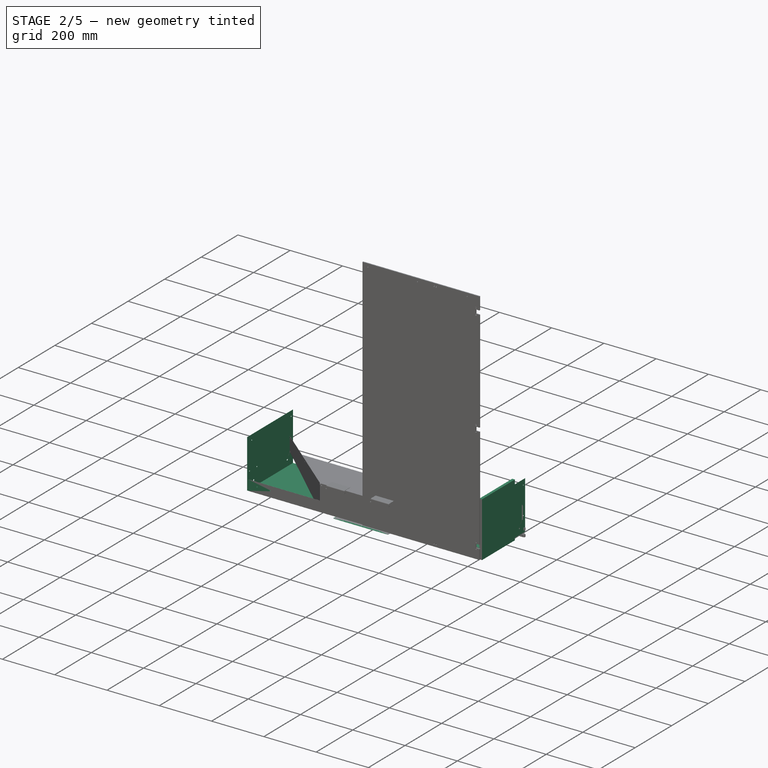
[diagram: stage 2 of 5 — iso view after this stage's code; geometry added in this stage tinted green]
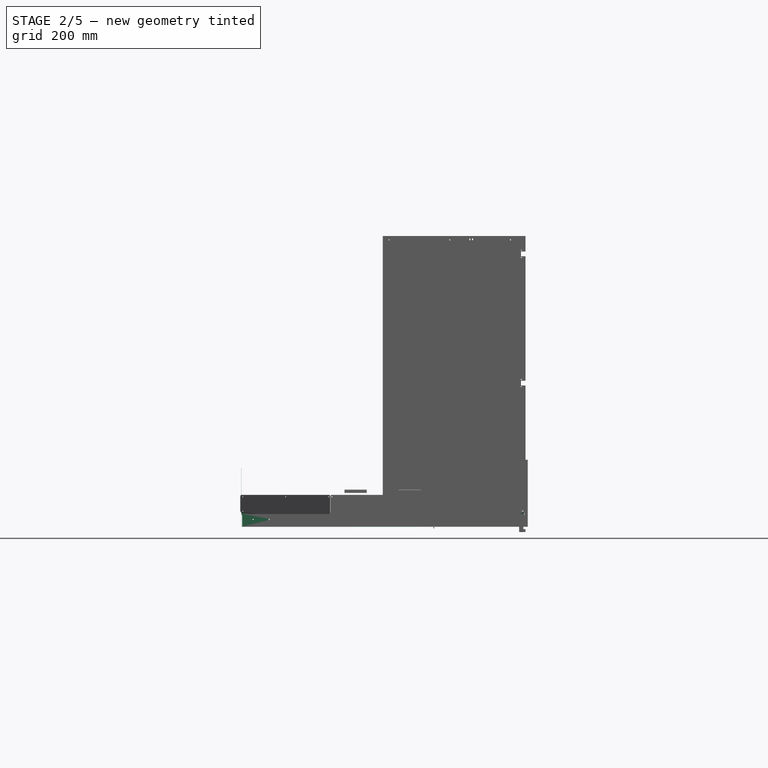
[diagram: stage 2 of 5 — front view after this stage's code; geometry added in this stage tinted green]
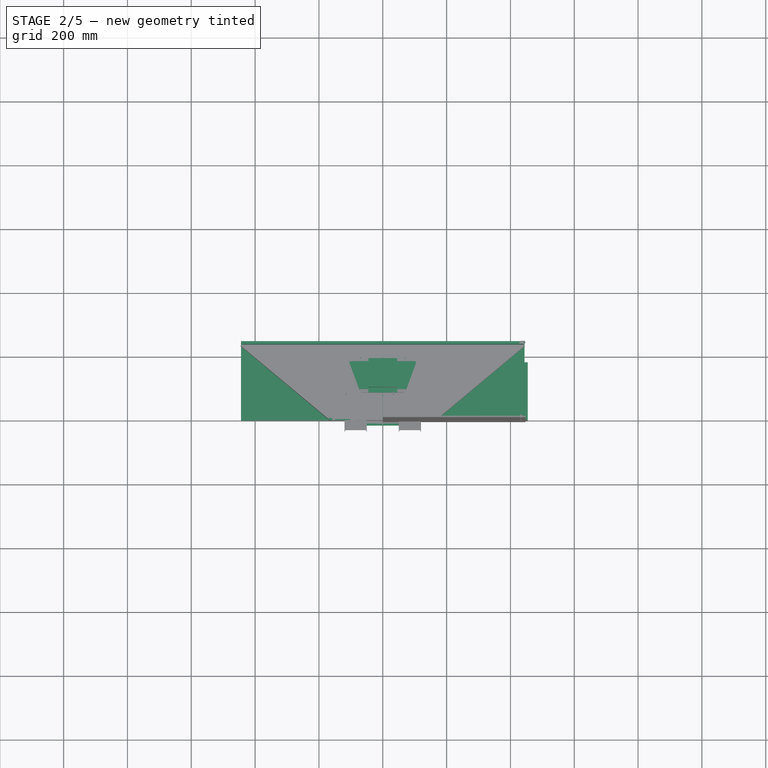
[diagram: stage 2 of 5 — top view after this stage's code; geometry added in this stage tinted green]
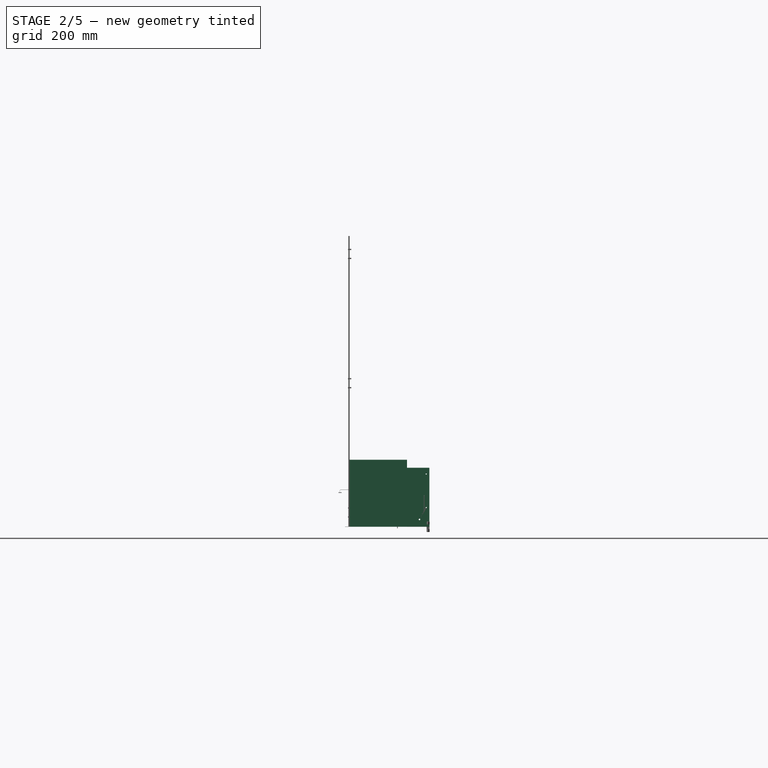
[diagram: stage 2 of 5 — right view after this stage's code; geometry added in this stage tinted green]
FEATURE [PartDesign::SubShapeBinder] Binder006
  BindCopyOnChange = 0
  BindMode = 0
  ClaimChildren = true
  Context = -> Body002 [Binder006.]
  Fuse = false
  MakeFace = true
  OffsetFill = false
  OffsetIntersection = false
  OffsetJoinType = 0
  OffsetOpenResult = false
  PartialLoad = false
  Relative = false
  Support = -> [Part__Mirroring002]
  _Version = 2
FEATURE [Sketcher::SketchObject] Sketch013  label="sink_cut_corner"
  AttachmentSupport = -> [Local_CS]
  ExternalGeometry = -> [Sketch008]
  FullyConstrained = true
  MapMode = 5
  Placement = pos=(0,0,0) rot=(1,0,0;0.185787rad)
  sketch-geometry (3):
    g0: ArcOfCircle CenterX=164.191 CenterY=3.01366 CenterZ=0 NormalX=0 NormalY=0 NormalZ=1 AngleXU=0 Radius=7 StartAngle=0.703217 EndAngle=3.14159
    g1: LineSegment StartX=169.53 StartY=7.54039 StartZ=0 EndX=164.191 EndY=3.01366 EndZ=0
    g2: LineSegment StartX=164.191 StartY=3.01366 StartZ=0 EndX=157.191 EndY=3.01366 EndZ=0
  constraints (9):
    c: Coincident(g0,g-3)
    c: PointOnObject(g0,g-3)
    c: Horizontal(g0,g0)
    c: Coincident(g1,g2)
    c: Horizontal(g2)
    c: Equal(g2,g1)
    c: Radius(g0) = 7  'r'
    c: Coincident(g2,g0)
    c: Coincident(g1,g0)
FEATURE [PartDesign::SubShapeBinder] Binder007
  BindCopyOnChange = 0
  BindMode = 0
  ClaimChildren = false
  Context = -> Body003 [Binder007.]
  Fuse = false
  MakeFace = true
  OffsetFill = false
  OffsetIntersection = false
  OffsetJoinType = 0
  OffsetOpenResult = false
  PartialLoad = false
  Relative = true
  Support = -> [Sketch003[Edge1]]
  _Version = 2
FEATURE [Sketcher::SketchObject] Sketch016
  AttachmentSupport = -> [YZ_Plane003]
  ExternalGeometry = -> [Binder007]
  FullyConstrained = true
  MapMode = 5
  Placement = pos=(0,0,0) rot=(0.57735,0.57735,0.57735;2.0944rad)
  sketch-geometry (3):
    g0: ArcOfCircle CenterX=2.5 CenterY=3.01366 CenterZ=0 NormalX=0 NormalY=0 NormalZ=1 AngleXU=0 Radius=2.5 StartAngle=3.14159 EndAngle=4.89818
    g1: LineSegment StartX=2.9618 StartY=0.556683 StartZ=0 EndX=2.5 EndY=3.01366 EndZ=0
    g2: LineSegment StartX=2.5 StartY=3.01366 StartZ=0 EndX=0 EndY=3.01366 EndZ=0
  constraints (9):
    c: PointOnObject(g0,g-3)
    c: PointOnObject(g0,g-2)
    c: Coincident(g0,g1)
    c: Coincident(g1,g0)
    c: Coincident(g1,g2)
    c: Coincident(g2,g0)
    c: Perpendicular(g-3,g1)
    c: Perpendicular(g-2,g2)
    c: Radius(g0) = 2.5
FEATURE [PartDesign::Pad] Pad007
  Direction = (1,0,0)
  Length = 50
  Length2 = 10
  Midplane = true
  Placement = pos=(0,0,0) rot=(0.57735,0.57735,0.57735;2.0944rad)
  Profile = -> Sketch016
  ReferenceAxis = -> Sketch016 [N_Axis]
  Suppressed = false
  Type = 0
FEATURE [Sketcher::SketchObject] Sketch017
  AttachmentSupport = -> [XZ_Plane003]
  ExternalGeometry = -> [Sketch016]
  FullyConstrained = true
  MapMode = 5
  Placement = pos=(0,0,0) rot=(1,0,0;1.5708rad)
  expr: Constraints[8] = <<Pad007>>.Length
  sketch-geometry (4):
    g0: LineSegment StartX=-25 StartY=3.01366 StartZ=0 EndX=25 EndY=3.01366 EndZ=0
    g1: ArcOfCircle CenterX=23 CenterY=3.01366 CenterZ=0 NormalX=0 NormalY=0 NormalZ=1 AngleXU=0 Radius=2 StartAngle=0 EndAngle=1.5708
    g2: ArcOfCircle CenterX=-23 CenterY=3.01366 CenterZ=0 NormalX=0 NormalY=0 NormalZ=1 AngleXU=0 Radius=2 StartAngle=1.5708 EndAngle=3.14159
    g3: LineSegment StartX=-23 StartY=5.01366 StartZ=0 EndX=23 EndY=5.01366 EndZ=0
  constraints (11):
    c: PointOnObject(g1,g0)
    c: Coincident(g1,g0)
    c: PointOnObject(g2,g0)
    c: Coincident(g2,g0)
    c: Horizontal(g3)
    c: Tangent(g3,g2) = 1.5708
    c: Tangent(g3,g1) = 1.5708
    c: Symmetric(g0,g0,g-2)
    c: DistanceX(g0,g0) = 50
    c: Radius(g1) = 2
    c: PointOnObject(g-3,g0)
FEATURE [PartDesign::Pad] Pad008
  BaseFeature = -> Pad007
  Direction = (0,-1,2e-16)
  Length = 2
  Length2 = 10
  Placement = pos=(0,0,0) rot=(0.57735,0.57735,0.57735;2.0944rad)
  Profile = -> Sketch017
  ReferenceAxis = -> Sketch017 [N_Axis]
  Reversed = true
  Suppressed = false
  Type = 0
FEATURE [Sketcher::SketchObject] Sketch018
  AttachmentSupport = -> [Sketch016]
  FullyConstrained = true
  MapMode = 7
  Placement = pos=(0,2.9618,0.556683) rot=(1,0,0;0.185787rad)
  expr: Constraints[6] = <<Pad007>>.Length
  sketch-geometry (4):
    g0: ArcOfCircle CenterX=22 CenterY=0 CenterZ=0 NormalX=0 NormalY=0 NormalZ=1 AngleXU=0 Radius=3 StartAngle=0 EndAngle=1.5708
    g1: ArcOfCircle CenterX=-22 CenterY=0 CenterZ=0 NormalX=0 NormalY=0 NormalZ=1 AngleXU=0 Radius=3 StartAngle=1.5708 EndAngle=3.14159
    g2: LineSegment StartX=-22 StartY=3 StartZ=0 EndX=22 EndY=3 EndZ=0
    g3: LineSegment StartX=-25 StartY=4e-16 StartZ=0 EndX=25 EndY=0 EndZ=0
  constraints (11):
    c: PointOnObject(g0,g-1)
    c: PointOnObject(g0,g-1)
    c: PointOnObject(g1,g-1)
    c: Coincident(g3,g1)
    c: Coincident(g3,g0)
    c: Symmetric(g1,g0,g-2)
    c: DistanceX(g3,g3) = 50
    c: Horizontal(g2)
    c: Tangent(g2,g0) = 1.5708
    c: Tangent(g2,g1) = 1.5708
    c: Radius(g0) = 3
FEATURE [PartDesign::Pad] Pad009
  BaseFeature = -> Pad008
  Direction = (0,-0.18472,0.982791)
  Length = 2
  Length2 = 10
  Placement = pos=(0,0,0) rot=(0.57735,0.57735,0.57735;2.0944rad)
  Profile = -> Sketch018
  ReferenceAxis = -> Sketch018 [N_Axis]
  Suppressed = false
  Type = 0
FEATURE [PartDesign::Body] Body003
  Group = -> [Binder007,Sketch016,Pad007,Sketch017,Pad008,Sketch018,Pad009]
  Origin = -> Origin003
  Tip = -> Pad009
FEATURE [Part::FeaturePython] LinearArray001  # WARN: FeaturePython — macro-defined, semantics opaque (R4)
  Alignment = 0
  CellStart = A1
  Count = 5
  Dir = (1,0,0)
  DirIsDriven = true
  DistributionLaw = 0
  DrivenProperty = 1
  EndInclusive = true
  ExposePlacement = false
  GeneratorMode = 0
  MarkerShape = 1
  MarkerSize = 0
  NumElements = 5
  OrientMode = 1
  Placement = pos=(-125,0,0) rot=(0,0,1;0rad)
  Point = (0,0,0)
  PointIsDriven = true
  Reverse = false
  SpanEnd = 250
  SpanStart = 0
  Step = 62.5
  Type = lattice2LinearArray.LinearArray
  VSGVersion = 1
  Values = 0.0 | 62.5 | 125.0 | 187.5 | 250.0
  ValuesSource = 2
  isLattice = 1
  expr: .Placement.Base.x = -SpanEnd / 2
FEATURE [Part::FeaturePython] Populate004  label="Populate LinearArray001 with Body003"  # WARN: FeaturePython — macro-defined, semantics opaque (R4)
  Copying = 0
  ExposePlacement = false
  MarkerShape = 1
  MarkerSize = 0
  NumElements = 0
  Object = -> Body003
  OutputCompounding = 1
  PlacementsTo = -> LinearArray001
  Referencing = 0
  Type = lattice2PopulateCopies.LatticePopulateCopies
  isLattice = 0
FEATURE [PartDesign::Pocket] Pocket
  BaseFeature = -> Pad006
  Direction = (0,0.18472,-0.982791)
  Length = 2
  Length2 = 5
  Placement = pos=(0,0,0) rot=(1,0,0;0.185787rad)
  Profile = -> Sketch013
  ReferenceAxis = -> Sketch013 [N_Axis]
  Reversed = true
  Suppressed = false
  Type = 0
FEATURE [PartDesign::Pocket] Pocket001
  BaseFeature = -> Pocket
  Direction = (0,1,-2e-16)
  Length = 2
  Length2 = 5
  Placement = pos=(0,0,0) rot=(1,0,0;0.185787rad)
  Profile = -> Sketch014
  ReferenceAxis = -> Sketch014 [N_Axis]
  Suppressed = false
  Type = 0
FEATURE [Sketcher::SketchObject] Sketch015
  AttachmentOffset = pos=(0,0,0) rot=(0,1,0;1.5708rad)
  AttachmentSupport = -> [Binder003]
  ExternalGeometry = -> [Sketch013,Sketch012]
  FullyConstrained = true
  MapMode = 7
  Placement = pos=(165.096,1.42e-14,0) rot=(0.890129,0.322235,0.322235;1.68692rad)
  expr: Constraints[9] = <<sink_cut_corner>>.Constraints.r
  sketch-geometry (5):
    g0: LineSegment StartX=8.15051 StartY=1.39286 StartZ=0 EndX=7.8549 EndY=3.84984 EndZ=0
    g1: ArcOfCircle CenterX=0.905024 CenterY=3.01366 CenterZ=0 NormalX=0 NormalY=0 NormalZ=1 AngleXU=0 Radius=7 StartAngle=0.11974 EndAngle=1.23786
    g2: ArcOfCircle CenterX=4.5 CenterY=13.4096 CenterZ=0 NormalX=0 NormalY=0 NormalZ=1 AngleXU=0 Radius=4 StartAngle=3.14159 EndAngle=4.37946
    g3: LineSegment StartX=0.5 StartY=2.96493 StartZ=0 EndX=0.5 EndY=13.4096 EndZ=0
    g4: LineSegment StartX=0.5 StartY=2.96493 StartZ=0 EndX=7.8549 EndY=3.84984 EndZ=0
  constraints (13):
    c: Coincident(g0,g-3)
    c: PointOnObject(g0,g-4)
    c: Perpendicular(g-4,g0)
    c: PointOnObject(g1,g-4)
    c: Coincident(g1,g0)
    c: Coincident(g3,g-4)
    c: Vertical(g3)
    c: Coincident(g4,g3)
    c: Coincident(g4,g0)
    c: Radius(g1) = 7
    c: Tangent(g2,g1) = 1.5708
    c: Tangent(g3,g2) = 1.5708
    c: Radius(g2) = 4
FEATURE [PartDesign::Pocket] Pocket002
  BaseFeature = -> Pocket001
  Direction = (-0.64013,0.768267,0)
  Length = 1
  Length2 = 5
  Placement = pos=(0,0,0) rot=(1,0,0;0.185787rad)
  Profile = -> Sketch015
  ReferenceAxis = -> Sketch015 [N_Axis]
  Suppressed = false
  Type = 0
FEATURE [Sketcher::SketchObject] Sketch020
  AttachmentSupport = -> [Sketch012]
  ExternalGeometry = -> [Sketch012]
  FullyConstrained = true
  MapMode = 2
  Placement = pos=(165.096,2.84e-14,0) rot=(0.890129,0.322235,0.322235;1.68692rad)
  expr: Constraints[12] = <<sink_face_cut>>.Constraints.r
  sketch-geometry (9):
    g0: LineSegment StartX=5.5 StartY=100 StartZ=0 EndX=0.5 EndY=100 EndZ=0
    g1: LineSegment StartX=0.5 StartY=95 StartZ=0 EndX=0.5 EndY=100 EndZ=0
    g2: LineSegment StartX=366.113 StartY=95 StartZ=0 EndX=366.113 EndY=100 EndZ=0
    g3: LineSegment StartX=361.113 StartY=100 StartZ=0 EndX=366.113 EndY=100 EndZ=0
    g4: ArcOfCircle CenterX=361.113 CenterY=95 CenterZ=0 NormalX=0 NormalY=0 NormalZ=1 AngleXU=0 Radius=5 StartAngle=-9e-16 EndAngle=1.5708
    g5: ArcOfCircle CenterX=5.5 CenterY=95 CenterZ=0 NormalX=0 NormalY=0 NormalZ=1 AngleXU=0 Radius=5 StartAngle=1.5708 EndAngle=3.14159
    g6: ArcOfCircle CenterX=363.113 CenterY=49.6144 CenterZ=0 NormalX=0 NormalY=0 NormalZ=1 AngleXU=0 Radius=3 StartAngle=4.83213 EndAngle=6.28319
    g7: LineSegment StartX=363.471 StartY=46.6359 StartZ=0 EndX=366.113 EndY=46.9537 EndZ=0
    g8: LineSegment StartX=366.113 StartY=46.9537 StartZ=0 EndX=366.113 EndY=49.6144 EndZ=0
  constraints (21):
    c: PointOnObject(g0,g-3)
    c: Coincident(g0,g-3)
    c: Coincident(g1,g0)
    c: Vertical(g1)
    c: Coincident(g2,g-3)
    c: Vertical(g2)
    c: PointOnObject(g3,g-3)
    c: Coincident(g3,g2)
    c: Tangent(g4,g2) = -1.5708
    c: Tangent(g4,g3) = 1.5708
    c: Tangent(g5,g0) = -1.5708
    c: Tangent(g5,g1) = 1.5708
    c: Radius(g5) = 5
    c: Equal(g5,g4)
    c: PointOnObject(g6,g-4)
    c: Coincident(g7,g8)
    c: Vertical(g8)
    c: Tangent(g6,g8) = -1.5708
    c: Tangent(g6,g7) = -1.5708
    c: Coincident(g7,g-4)
    c: Radius(g6) = 3
FEATURE [PartDesign::Pocket] Pocket003
  BaseFeature = -> Pocket002
  Direction = (0,1,-2e-16)
  Length = 5
  Length2 = 5
  Placement = pos=(0,0,0) rot=(1,0,0;0.185787rad)
  Profile = -> Sketch019
  ReferenceAxis = -> Sketch019 [N_Axis]
  Suppressed = false
  Type = 0
FEATURE [PartDesign::Pocket] Pocket004
  BaseFeature = -> Pocket003
  Direction = (-0.64013,0.768267,0)
  Length = 5
  Length2 = 5
  Placement = pos=(0,0,0) rot=(1,0,0;0.185787rad)
  Profile = -> Sketch020
  ReferenceAxis = -> Sketch020 [N_Axis]
  Suppressed = false
  Type = 0
FEATURE [PartDesign::Pad] Pad011
  BaseFeature = -> Pocket004
  Direction = (1,0,2e-16)
  Length = 885.354
  Length2 = 10
  Midplane = true
  Placement = pos=(0,0,0) rot=(1,0,0;0.185787rad)
  Profile = -> Sketch039
  ReferenceAxis = -> Sketch039 [N_Axis]
  Suppressed = false
  Type = 0
  expr: Length = <<Sketch008>>.Constraints.front
FEATURE [Sketcher::SketchObject] Sketch042
  AttachmentOffset = pos=(0,0,-1) rot=(0,0,1;0rad)
  AttachmentSupport = -> [Sketch040]
  ExternalGeometry = -> [Sketch040]
  FullyConstrained = true
  MapMode = 2
  Placement = pos=(0,1,-2e-16) rot=(1,0,0;1.5708rad)
  sketch-geometry (5):
    g0: Circle CenterX=159.596 CenterY=94 CenterZ=0 NormalX=0 NormalY=0 NormalZ=1 AngleXU=0 Radius=1.7
    g1: Circle CenterX=159.596 CenterY=34 CenterZ=0 NormalX=0 NormalY=0 NormalZ=1 AngleXU=0 Radius=1.7
    g2: Circle CenterX=0 CenterY=94 CenterZ=0 NormalX=0 NormalY=0 NormalZ=1 AngleXU=0 Radius=1.7
    g3: Circle CenterX=-159.596 CenterY=94 CenterZ=0 NormalX=0 NormalY=0 NormalZ=1 AngleXU=0 Radius=1.7
    g4: Circle CenterX=-159.596 CenterY=34 CenterZ=0 NormalX=0 NormalY=0 NormalZ=1 AngleXU=0 Radius=1.7
  constraints (10):
    c: PointOnObject(g2,g-2)
    c: Symmetric(g3,g0,g-2)
    c: Symmetric(g4,g1,g-2)
    c: Equal(g0, g1-g4) x4
    c: Diameter(g0) = 3.4
    c: Horizontal(g2,g0)
    c: DistanceX(g0,g-3) = 5
    c: DistanceY(g0,g-3) = 6
    c: Vertical(g1,g0)
    c: DistanceY(g1,g0) = 60
FEATURE [Sketcher::SketchObject] Sketch043
  AttachmentOffset = pos=(0,0,-1) rot=(0,0,1;0rad)
  AttachmentSupport = -> [Sketch041]
  ExternalGeometry = -> [Sketch041,Sketch042]
  FullyConstrained = true
  MapMode = 2
  Placement = pos=(164.456,0.768267,0) rot=(0.890129,0.322235,0.322235;1.68692rad)
  sketch-geometry (7):
    g0: Circle CenterX=5.5 CenterY=94 CenterZ=0 NormalX=0 NormalY=0 NormalZ=1 AngleXU=0 Radius=1.7
    g1: Circle CenterX=356.113 CenterY=94 CenterZ=0 NormalX=0 NormalY=0 NormalZ=1 AngleXU=0 Radius=1.7
    g2: LineSegment StartX=5.5 StartY=94 StartZ=0 EndX=180.807 EndY=94 EndZ=0
    g3: LineSegment StartX=180.807 StartY=94 StartZ=0 EndX=356.113 EndY=94 EndZ=0
    g4: LineSegment StartX=356.113 StartY=94 StartZ=0 EndX=356.113 EndY=49 EndZ=0
    g5: Circle CenterX=180.807 CenterY=94 CenterZ=0 NormalX=0 NormalY=0 NormalZ=1 AngleXU=0 Radius=1.7
    g6: Circle CenterX=356.113 CenterY=49 CenterZ=0 NormalX=0 NormalY=0 NormalZ=1 AngleXU=0 Radius=1.7
  constraints (18):
    c: Horizontal(g-4,g0)
    c: Equal(g0,g1)
    c: Diameter(g0) = 3.4
    c: Horizontal(g0,g1)
    c: DistanceX(g1,g-3) = 10
    c: DistanceX(g-3,g0) = 5
    c: Coincident(g2,g0)
    c: Horizontal(g2)
    c: Coincident(g3,g2)
    c: Coincident(g3,g1)
    c: Vertical(g4)
    c: Coincident(g4,g1)
    c: Equal(g2,g3)
    c: Coincident(g5,g2)
    c: DistanceY(g4,g4) = 45
    c: Coincident(g6,g4)
    c: Equal(g6,g0)
    c: Equal(g0,g5)
FEATURE [Part::Extrusion] Extrude013
  Base = -> Sketch042
  Dir = (0,-1,2e-16)
  DirMode = 2
  FaceMakerClass = Part::FaceMakerBullseye
  LengthFwd = 10
  LengthRev = 0
  Solid = true
  Symmetric = false
FEATURE [Part::Extrusion] Extrude014
  Base = -> Sketch043
  Dir = (0.64013,-0.768267,1e-16)
  DirMode = 2
  FaceMakerClass = Part::FaceMakerBullseye
  LengthFwd = 10
  LengthRev = 0
  Solid = true
  Symmetric = false
FEATURE [Part::Mirroring] Part__Mirroring012  label="Extrude014 (Mirror #13)"
  Base = (0,0,0)
  Normal = (1,0,0)
  Source = -> Extrude014
FEATURE [Part::Compound] Compound008
  Links = -> [Extrude013,Extrude014,Part__Mirroring012]
FEATURE [PartDesign::CoordinateSystem] Local_CS008  label="bar_LCS"
  AttacherType = Attacher::AttachEngine3D
  AttachmentSupport = -> [XY_Plane007]
  MapMode = 5
FEATURE [PartDesign::CoordinateSystem] Local_CS009  label="bar_bar_fix_LCS"
  AttacherType = Attacher::AttachEngine3D
  AttachmentOffset = pos=(0,25,-444.137) rot=(0,0,1;3.14159rad)
  AttachmentSupport = -> [XY_Plane007]
  MapMode = 5
  Placement = pos=(0,25,-444.137) rot=(0,0,1;3.14159rad)
  expr: AttachmentOffset = <<bar_fix_placement>>.Placement
FEATURE [PartDesign::CoordinateSystem] Local_CS010  label="bar_bar_fix2_LCS"
  AttacherType = Attacher::AttachEngine3D
  AttachmentOffset = pos=(0,25,444.137) rot=(1,0,0;3.14159rad)
  AttachmentSupport = -> [XY_Plane007]
  MapMode = 5
  Placement = pos=(0,25,444.137) rot=(1,0,0;3.14159rad)
  expr: .AttachmentOffset.Base.y = <<bar_bar_fix_LCS>>.AttachmentOffset.Base.y
  expr: .AttachmentOffset.Base.z = -<<bar_bar_fix_LCS>>.AttachmentOffset.Base.z
FEATURE [PartDesign::CoordinateSystem] Local_CS011  label="face_bar1_LCS"
  AttacherType = Attacher::AttachEngine3D
  AttachmentOffset = pos=(0,27,278.5) rot=(0.707107,0,-0.707107;3.14159rad)
  AttachmentSupport = -> [XY_Plane]
  MapMode = 5
  Placement = pos=(0,27,278.5) rot=(0.707107,0,-0.707107;3.14159rad)
  expr: AttachmentOffset = <<bar1_placement>>.Placement
FEATURE [PartDesign::CoordinateSystem] Local_CS012  label="face_bar2_LCS"
  AttacherType = Attacher::AttachEngine3D
  AttachmentOffset = pos=(0,27,958.5) rot=(0.707107,0,-0.707107;3.14159rad)
  AttachmentSupport = -> [XY_Plane]
  MapMode = 5
  Placement = pos=(0,27,958.5) rot=(0.707107,0,-0.707107;3.14159rad)
  expr: AttachmentOffset = <<bar2_placement>>.Placement
FEATURE [PartDesign::CoordinateSystem] Local_CS013  label="bar_fix_LCS"
  AttacherType = Attacher::AttachEngine3D
  AttachmentSupport = -> [XY_Plane009]
  MapMode = 5
FEATURE [PartDesign::Body] Body008  label="bar_fix"
  Group = -> [Binder013,BaseBend009,Sketch051,Pocket006,Sketch052,Pocket007,Mirrored003,Boolean008,Local_CS013]
  Origin = -> Origin009
  Tip = -> Boolean008
FEATURE [App::Link] Link005  label="Sketch055"
  LinkedObject = -> <external ../rails.FCStd>#Sketch001
FEATURE [Part::FeaturePython] Placment013  label="rail1_placement"  # WARN: FeaturePython — macro-defined, semantics opaque (R4)
  AttacherType = Attacher::AttachEngine3D
  ExposePlacement = true
  MarkerShape = 1
  MarkerSize = 50
  NumElements = 1
  Placement = pos=(441.137,-6,13) rot=(0,-1,0;1.5708rad)
  Type = lattice2AttachablePlacement.AttachablePlacement
  isLattice = 1
  expr: .Placement.Base.x = <<Dimensions>>.Constraints.width / 2 - 6 mm
  expr: .Placement.Base.z = 20 mm - <<pan_placement>>.Placement.Base.z + 3 mm
FEATURE [Part::FeaturePython] Placment014  label="rail2_placement"  # WARN: FeaturePython — macro-defined, semantics opaque (R4)
  AttacherType = Attacher::AttachEngine3D
  ExposePlacement = true
  MarkerShape = 1
  MarkerSize = 20
  NumElements = 1
  Placement = pos=(-441.137,-6,13) rot=(0,1,0;1.5708rad)
  Type = lattice2AttachablePlacement.AttachablePlacement
  isLattice = 1
  expr: .Placement.Base.x = -(<<Dimensions>>.Constraints.width / 2 - 6 mm)
  expr: .Placement.Base.y = <<rail1_placement>>.Placement.Base.y
  expr: .Placement.Base.z = <<rail1_placement>>.Placement.Base.z
FEATURE [Part::Extrusion] Extrude020
  Base = -> Link005
  Dir = (0,0,1)
  DirMode = 2
  FaceMakerClass = Part::FaceMakerBullseye
  LengthFwd = 10
  LengthRev = 6
  Solid = true
  Symmetric = false
FEATURE [Sketcher::SketchObject] Sketch073
  AttachmentOffset = pos=(17.5,-215,0) rot=(0,0,1;0rad)
  AttachmentSupport = -> [XZ_Plane007]
  FullyConstrained = true
  MapMode = 5
  Placement = pos=(17.5,-4.77e-14,-215) rot=(1,0,0;1.5708rad)
  expr: .AttachmentOffset.Base.x = <<bar_sketch>>.Constraints.inner / 2
  sketch-geometry (7):
    g0: LineSegment StartX=-2 StartY=50 StartZ=0 EndX=2.7 EndY=50 EndZ=0
    g1: ArcOfCircle CenterX=-2 CenterY=48 CenterZ=0 NormalX=0 NormalY=0 NormalZ=1 AngleXU=0 Radius=2 StartAngle=1.5708 EndAngle=3.14159
    g2: ArcOfCircle CenterX=2.7 CenterY=48 CenterZ=0 NormalX=0 NormalY=0 NormalZ=1 AngleXU=0 Radius=2 StartAngle=4e-16 EndAngle=1.5708
    g3: LineSegment StartX=-4 StartY=48 StartZ=0 EndX=-4 EndY=0 EndZ=0
    g4: LineSegment StartX=-4 StartY=0 StartZ=0 EndX=4.7 EndY=0 EndZ=0
    g5: LineSegment StartX=4.7 StartY=0 StartZ=0 EndX=4.7 EndY=48 EndZ=0
    g6: GeomPoint X=0 Y=50 Z=0
  constraints (18):
    c: Horizontal(g0)
    c: DistanceX(g0) = -2
    c: DistanceX(g0) = 2.7
    c: Tangent(g1,g3) = -1.5708
    c: Coincident(g3,g4)
    c: PointOnObject(g4,g-1)
    c: Horizontal(g4)
    c: Coincident(g4,g5)
    c: Vertical(g5)
    c: Tangent(g5,g2) = -1.5708
    c: Vertical(g3)
    c: Equal(g2,g1)
    c: Radius(g2) = 2
    c: Tangent(g2,g0) = 1.5708
    c: Tangent(g1,g0) = 1.5708
    c: PointOnObject(g6,g-2)
    c: DistanceY(g6) = 50
    c: PointOnObject(g6,g0)
FEATURE [PartDesign::Mirrored] Mirrored005
  MirrorPlane = -> Sketch073 [H_Axis]
  Suppressed = false
FEATURE [PartDesign::Mirrored] Mirrored006
  MirrorPlane = -> XY_Plane007
  Suppressed = false
FEATURE [Sketcher::SketchObject] Sketch077
  AttachmentOffset = pos=(442.677,0,0) rot=(0,0,1;0rad)
  AttachmentSupport = -> [Sketch039]
  FullyConstrained = true
  MapMode = 7
  Placement = pos=(442.677,239.5,34.7037) rot=(1,0,0;1.5708rad)
  expr: .AttachmentOffset.Base.x = <<Pad011>>.Length / 2
  sketch-geometry (3):
    g0: ArcOfCircle CenterX=-5 CenterY=5 CenterZ=0 NormalX=0 NormalY=0 NormalZ=1 AngleXU=0 Radius=5 StartAngle=4.71239 EndAngle=6.28319
    g1: LineSegment StartX=-5 StartY=0 StartZ=0 EndX=0 EndY=0 EndZ=0
    g2: LineSegment StartX=0 StartY=0 StartZ=0 EndX=0 EndY=5 EndZ=0
  constraints (7):
    c: PointOnObject(g0,g-2)
    c: PointOnObject(g0,g-1)
    c: Coincident(g1,g2)
    c: Coincident(g1,g-1)
    c: Tangent(g0,g1) = -1.5708
    c: Tangent(g2,g0) = -1.5708
    c: Radius(g0) = 5
FEATURE [PartDesign::Pocket] Pocket011
  BaseFeature = -> Pad011
  Direction = (0,1,-2e-16)
  Length = 5
  Length2 = 5
  Midplane = true
  Placement = pos=(0,0,0) rot=(1,0,0;0.185787rad)
  Profile = -> Sketch077
  ReferenceAxis = -> Sketch077 [N_Axis]
  Suppressed = false
  Type = 1
FEATURE [PartDesign::Mirrored] Mirrored
  BaseFeature = -> Pocket011
  MirrorPlane = -> YZ_Plane002
  Originals = -> [Pocket,Pocket001,Pocket002,Pocket003,Pocket004,Pocket011]
  Placement = pos=(0,0,0) rot=(1,0,0;0.185787rad)
  Suppressed = false
FEATURE [PartDesign::CoordinateSystem] Local_CS027
  AttacherType = Attacher::AttachEngine3D
  AttachmentOffset = pos=(0,88.4512,16.6248) rot=(1,0,0;0.185787rad)
  AttachmentSupport = -> [XY_Plane002]
  MapMode = 5
  Placement = pos=(0,88.4512,16.6248) rot=(1,0,0;0.185787rad)
  expr: AttachmentOffset = <<sink_cutout_placement>>.Placement
FEATURE [PartDesign::CoordinateSystem] Local_CS028  label="sink_cutout_LCS"
  AttacherType = Attacher::AttachEngine3D
  AttachmentSupport = -> [XY_Plane019]
  MapMode = 5
FEATURE [Sketcher::SketchObject] Sketch087
  FullyConstrained = true
  sketch-geometry (10):
    g0: LineSegment StartX=-103 StartY=-15 StartZ=0 EndX=103 EndY=-15 EndZ=0
    g1: LineSegment StartX=105 StartY=-13 StartZ=0 EndX=105 EndY=13 EndZ=0
    g2: LineSegment StartX=103 StartY=15 StartZ=0 EndX=-103 EndY=15 EndZ=0
    g3: LineSegment StartX=-105 StartY=13 StartZ=0 EndX=-105 EndY=-13 EndZ=0
    g4: ArcOfCircle CenterX=-103 CenterY=-13 CenterZ=0 NormalX=0 NormalY=0 NormalZ=1 AngleXU=0 Radius=2 StartAngle=3.14159 EndAngle=4.71239
    g5: ArcOfCircle CenterX=103 CenterY=-13 CenterZ=0 NormalX=0 NormalY=0 NormalZ=1 AngleXU=0 Radius=2 StartAngle=4.71239 EndAngle=6.28319
    g6: ArcOfCircle CenterX=103 CenterY=13 CenterZ=0 NormalX=0 NormalY=0 NormalZ=1 AngleXU=0 Radius=2 StartAngle=0 EndAngle=1.5708
    g7: ArcOfCircle CenterX=-103 CenterY=13 CenterZ=0 NormalX=0 NormalY=0 NormalZ=1 AngleXU=0 Radius=2 StartAngle=1.5708 EndAngle=3.14159
    g8: GeomPoint X=-105 Y=-15 Z=0
    g9: GeomPoint X=105 Y=15 Z=0
  constraints (23):
    c: Tangent(g0,g4) = -1.5708
    c: Tangent(g0,g5) = -1.5708
    c: Tangent(g1,g5) = -1.5708
    c: Tangent(g1,g6) = -1.5708
    c: Tangent(g2,g6) = -1.5708
    c: Tangent(g2,g7) = -1.5708
    c: Tangent(g3,g7) = -1.5708
    c: Tangent(g3,g4) = -1.5708
    c: Horizontal(g0)
    c: Horizontal(g2)
    c: Vertical(g1)
    c: Vertical(g3)
    c: Equal(g4,g5)
    c: Equal(g5,g6)
    c: Equal(g6,g7)
    c: PointOnObject(g8,g0)
    c: PointOnObject(g8,g3)
    c: PointOnObject(g9,g1)
    c: PointOnObject(g9,g2)
    c: Symmetric(g8,g9,g-1)
    c: Radius(g6) = 2
    c: DistanceX(g8,g9) = 210
    c: DistanceY(g8,g9) = 30
FEATURE [Part::FeaturePython] LinearArray007  # WARN: FeaturePython — macro-defined, semantics opaque (R4)
  Alignment = 0
  CellStart = A1
  Count = 3
  Dir = (1,0,0)
  DirIsDriven = true
  DistributionLaw = 0
  DrivenProperty = 1
  EndInclusive = true
  ExposePlacement = false
  GeneratorMode = 0
  MarkerShape = 1
  MarkerSize = 0
  NumElements = 3
  OrientMode = 1
  Placement = pos=(-70,-10,1.7) rot=(1,0,0;3.14159rad)
  Point = (0,0,0)
  PointIsDriven = true
  Reverse = false
  SpanEnd = 140
  SpanStart = 0
  Step = 70
  Type = lattice2LinearArray.LinearArray
  VSGVersion = 1
  Values = 0.0 | 70.0 | 140.0
  ValuesSource = 2
  isLattice = 1
  expr: .Placement.Base.x = -SpanEnd / 2
FEATURE [PartDesign::SubShapeBinder] Binder030
  BindCopyOnChange = 0
  BindMode = 0
  ClaimChildren = true
  Context = -> Body019 [Binder030.]
  Fuse = false
  MakeFace = true
  OffsetFill = false
  OffsetIntersection = false
  OffsetJoinType = 0
  OffsetOpenResult = false
  PartialLoad = false
  Relative = false
  Support = -> [Sketch087]
  _Version = 2
FEATURE [PartDesign::Pad] Pad028
  Direction = (0,0,1)
  Length = 0.7
  Length2 = 10
  Profile = -> Binder030
  Suppressed = false
  Type = 0
FEATURE [Part::FeaturePython] Populate051  label="Populate LinearArray007 with hole_3.4mm"  # WARN: FeaturePython — macro-defined, semantics opaque (R4)
  Copying = 0
  ExposePlacement = false
  MarkerShape = 1
  MarkerSize = 0
  NumElements = 0
  Object = -> Cylinder
  OutputCompounding = 1
  PlacementsTo = -> LinearArray007
  Referencing = 0
  Type = lattice2PopulateCopies.LatticePopulateCopies
  isLattice = 0
FEATURE [Part::MultiFuse] Fusion017
  Shapes = -> [Populate051]
FEATURE [PartDesign::Boolean] Boolean016
  BaseFeature = -> Pad028
  Group = -> [Fusion017]
  Suppressed = false
  Type = 1
  UsePlacement = true
FEATURE [Part::MultiFuse] Fusion001
  Shapes = -> [Populate004,Compound008,Populate050,Populate054]
FEATURE [PartDesign::Body] Body006  label="bar"
  Group = -> [Binder012,BaseBend008,Sketch049,Pocket005,MultiTransform,Mirrored001,Mirrored002,Boolean007,Local_CS008,Local_CS009,Local_CS010,Sketch073,Pocket010,MultiTransform001,Mirrored005,Mirrored006]
  Origin = -> Origin007
  Tip = -> MultiTransform001
FEATURE [Part::Box] Box001  label="Cube001"
  AttacherType = Attacher::AttachEngine3D
  Height = 210
  Length = 10
  Placement = pos=(444.137,0,0) rot=(0,0,1;0rad)
  Width = 180
  expr: .Placement.Base.x = <<Dimensions>>.Constraints.width / 2 - 3 mm
FEATURE [Sketcher::SketchObject] Sketch098
  FullyConstrained = true
  Placement = pos=(0,0,0) rot=(1,0,0;1.5708rad)
  expr: Constraints[11] = <<Dimensions>>.Constraints.width - 6 mm
  sketch-geometry (5):
    g0: LineSegment StartX=444.137 StartY=185 StartZ=0 EndX=-444.137 EndY=185 EndZ=0
    g1: LineSegment StartX=-444.137 StartY=185 StartZ=0 EndX=-444.137 EndY=0 EndZ=0
    g2: LineSegment StartX=-444.137 StartY=0 StartZ=0 EndX=444.137 EndY=0 EndZ=0
    g3: LineSegment StartX=444.137 StartY=0 StartZ=0 EndX=444.137 EndY=185 EndZ=0
    g4: GeomPoint X=0 Y=92.5 Z=0
  constraints (13):
    c: Coincident(g0,g1)
    c: Coincident(g1,g2)
    c: Coincident(g2,g3)
    c: Coincident(g3,g0)
    c: Horizontal(g0)
    c: Horizontal(g2)
    c: Vertical(g1)
    c: Vertical(g3)
    c: Symmetric(g2,g0,g4)
    c: PointOnObject(g4,g-2)
    c: PointOnObject(g1,g-1)
    c: DistanceX(g2,g2) = 888.273
    c: DistanceY(g0) = 185
FEATURE [PartDesign::SubShapeBinder] Binder037
  BindCopyOnChange = 0
  BindMode = 0
  ClaimChildren = true
  Context = -> Body025 [Binder037.]
  Fuse = false
  MakeFace = true
  OffsetFill = false
  OffsetIntersection = false
  OffsetJoinType = 0
  OffsetOpenResult = false
  PartialLoad = false
  Placement = pos=(0,0,0) rot=(1,0,0;1.5708rad)
  Relative = false
  Support = -> [Sketch098]
  _Version = 2
  expr: Placement = Support[0][0].Placement
FEATURE [PartDesign::FeaturePython] BaseBend019  # WARN: FeaturePython — macro-defined, semantics opaque (R4)
  BendSide = 1
  BendSketch = -> Binder037
  MidPlane = false
  Reverse = true
  Suppressed = false
  length = 250
  radius = 0.1
  thickness = 0.3
  expr: length = <<Dimensions>>.Constraints.depth - 15 mm
FEATURE [PartDesign::FeaturePython] Bend009  # WARN: FeaturePython — macro-defined, semantics opaque (R4)
  AutoMiter = true
  BaseFeature = -> BaseBend019
  BendType = 1
  LengthList = [40]
  LengthSpec = 1
  ReliefFactor = 0.7
  Suppressed = false
  UseReliefFactor = false
  angle = 90
  baseObject = -> BaseBend019 [Edge17]
  bendAList = [90]
  extend1 = 0
  extend2 = 0
  gap1 = 3
  gap2 = 3
  invert = false
  kfactor = 0.5
  length = 40
  maxExtendDist = 5
  minGap = 0.2
  minReliefGap = 1
  miterangle1 = 0
  miterangle2 = 0
  offset = 0
  radius = 0.1
  reliefType = 0
  reliefd = 1
  reliefw = 0.8
  sketchflip = false
  sketchinvert = false
  unfold = false
  expr: radius = BaseBend019.radius
FEATURE [Sketcher::SketchObject] Sketch099
  FullyConstrained = true
  sketch-geometry (2):
    g0: LineSegment StartX=-0.5 StartY=0 StartZ=0 EndX=0 EndY=0 EndZ=0
    g1: LineSegment StartX=0 StartY=0 StartZ=0 EndX=0 EndY=0.5 EndZ=0
  constraints (6):
    c: PointOnObject(g0,g-1)
    c: Coincident(g0,g-1)
    c: Coincident(g0,g1)
    c: PointOnObject(g1,g-2)
    c: Equal(g0,g1)
    c: DistanceY(g1,g1) = 0.5
FEATURE [PartDesign::SubShapeBinder] Binder038
  BindCopyOnChange = 0
  BindMode = 0
  ClaimChildren = true
  Context = -> Body026 [Binder038.]
  Fuse = false
  MakeFace = true
  OffsetFill = false
  OffsetIntersection = false
  OffsetJoinType = 0
  OffsetOpenResult = false
  PartialLoad = false
  Relative = false
  Support = -> [Sketch099]
  _Version = 2
FEATURE [PartDesign::FeaturePython] BaseBend020  # WARN: FeaturePython — macro-defined, semantics opaque (R4)
  BendSide = 1
  BendSketch = -> Binder038
  MidPlane = false
  Reverse = false
  Suppressed = false
  length = 100
  radius = 0.1
  thickness = 0.3
FEATURE [Sketcher::SketchObject] Sketch100
  AttachmentSupport = -> [XZ_Plane027]
  FullyConstrained = true
  MapMode = 5
  Placement = pos=(0,0,0) rot=(1,0,0;1.5708rad)
  sketch-geometry (4):
    g0: LineSegment StartX=0 StartY=0 StartZ=0 EndX=0 EndY=39 EndZ=0
    g1: LineSegment StartX=0 StartY=39 StartZ=0 EndX=-20 EndY=39 EndZ=0
    g2: LineSegment StartX=-20 StartY=39 StartZ=0 EndX=-20 EndY=0 EndZ=0
    g3: LineSegment StartX=-20 StartY=0 StartZ=0 EndX=0 EndY=0 EndZ=0
  constraints (11):
    c: Coincident(g0,g1)
    c: Coincident(g1,g2)
    c: Coincident(g2,g3)
    c: Coincident(g3,g0)
    c: Vertical(g0)
    c: Vertical(g2)
    c: Horizontal(g1)
    c: Horizontal(g3)
    c: Coincident(g0,g-1)
    c: DistanceX(g0,g1) = -20
    c: DistanceY(g0,g1) = 39  'height'
FEATURE [Part::FeaturePython] Placment041  # WARN: FeaturePython — macro-defined, semantics opaque (R4)
  AttacherType = Attacher::AttachEngine3D
  ExposePlacement = true
  MarkerShape = 1
  MarkerSize = 20
  NumElements = 1
  Placement = pos=(-35,-3,20) rot=(0.57735,0.57735,0.57735;4.18879rad)
  Type = lattice2AttachablePlacement.AttachablePlacement
  isLattice = 1
FEATURE [Part::FeaturePython] Placment042  # WARN: FeaturePython — macro-defined, semantics opaque (R4)
  AttacherType = Attacher::AttachEngine3D
  ExposePlacement = true
  MarkerShape = 1
  MarkerSize = 20
  NumElements = 1
  Placement = pos=(6,10,60) rot=(0,-1,0;1.5708rad)
  Type = lattice2AttachablePlacement.AttachablePlacement
  isLattice = 1
FEATURE [Part::FeaturePython] Placment043  # WARN: FeaturePython — macro-defined, semantics opaque (R4)
  AttacherType = Attacher::AttachEngine3D
  AttachmentOffset = pos=(0,40,0) rot=(0,0,1;0rad)
  AttachmentSupport = -> [Placment042]
  ExposePlacement = true
  MapMode = 2
  MarkerShape = 1
  MarkerSize = 20
  NumElements = 1
  Placement = pos=(6,50,60) rot=(0,-1,0;1.5708rad)
  Type = lattice2AttachablePlacement.AttachablePlacement
  isLattice = 1
FEATURE [Part::FeaturePython] Placment044  label="bottom_front_connect_placement"  # WARN: FeaturePython — macro-defined, semantics opaque (R4)
  AttacherType = Attacher::AttachEngine3D
  ExposePlacement = true
  MarkerShape = 1
  MarkerSize = 50
  NumElements = 1
  Placement = pos=(441.137,3,3) rot=(0,0,1;0rad)
  Type = lattice2AttachablePlacement.AttachablePlacement
  isLattice = 1
  expr: .Placement.Base.x = <<Dimensions>>.Constraints.width / 2 - 6 mm
FEATURE [PartDesign::CoordinateSystem] Local_CS039  label="bottom_bottom_front_connect_LCS"
  AttacherType = Attacher::AttachEngine3D
  AttachmentOffset = pos=(441.137,3,3) rot=(0,0,1;0rad)
  AttachmentSupport = -> [XY_Plane026]
  MapMode = 5
  Placement = pos=(441.137,3,3) rot=(0,0,1;0rad)
  expr: AttachmentOffset = <<bottom_front_connect_placement>>.Placement
FEATURE [PartDesign::CoordinateSystem] Local_CS040  label="bottom_LCS"
  AttacherType = Attacher::AttachEngine3D
  AttachmentSupport = -> [XY_Plane026]
  MapMode = 5
FEATURE [PartDesign::CoordinateSystem] Local_CS041  label="bottom_front_connect_LCS"
  AttacherType = Attacher::AttachEngine3D
  AttachmentSupport = -> [XY_Plane027]
  MapMode = 5
FEATURE [PartDesign::CoordinateSystem] Local_CS042  label="face_pan_LCS"
  AttacherType = Attacher::AttachEngine3D
  AttachmentOffset = pos=(0,10,10) rot=(0,0,1;0rad)
  AttachmentSupport = -> [XY_Plane]
  MapMode = 5
  Placement = pos=(0,10,10) rot=(0,0,1;0rad)
  expr: AttachmentOffset = <<pan_placement>>.Placement
FEATURE [Part::FeaturePython] Placment045  label="pan_placement"  # WARN: FeaturePython — macro-defined, semantics opaque (R4)
  AttacherType = Attacher::AttachEngine3D
  ExposePlacement = true
  MarkerShape = 1
  MarkerSize = 100
  NumElements = 1
  Placement = pos=(0,10,10) rot=(0,0,1;0rad)
  Type = lattice2AttachablePlacement.AttachablePlacement
  isLattice = 1
FEATURE [Part::FeaturePython] Populate072  label="Populate pan_placement with Join005"  # WARN: FeaturePython — macro-defined, semantics opaque (R4)
  Copying = 0
  ExposePlacement = false
  MarkerShape = 1
  MarkerSize = 0
  NumElements = 2
  Object = -> Join005
  OutputCompounding = 0
  PlacementsTo = -> Placment045
  Referencing = 0
  Type = lattice2PopulateCopies.LatticePopulateCopies
  isLattice = 1
FEATURE [Part::FeaturePython] Populate073  label="Populate Populate pan_placement with Join005 with Extrude020"  # WARN: FeaturePython — macro-defined, semantics opaque (R4)
  Copying = 0
  ExposePlacement = false
  MarkerShape = 1
  MarkerSize = 0
  NumElements = 0
  Object = -> Extrude020
  OutputCompounding = 1
  PlacementsTo = -> Populate072
  Referencing = 0
  Type = lattice2PopulateCopies.LatticePopulateCopies
  isLattice = 0
FEATURE [Sketcher::SketchObject] Sketch101
  AttachmentSupport = -> [XZ_Plane027]
  FullyConstrained = true
  MapMode = 5
  Placement = pos=(0,0,0) rot=(1,0,0;1.5708rad)
  expr: Constraints[12] = <<BaseBend020>>.length
  sketch-geometry (5):
    g0: LineSegment StartX=-0.5 StartY=0 StartZ=0 EndX=-100.5 EndY=0 EndZ=0
    g1: LineSegment StartX=-100.5 StartY=0 StartZ=0 EndX=-100.5 EndY=40 EndZ=0
    g2: LineSegment StartX=-100.5 StartY=40 StartZ=0 EndX=-3 EndY=100 EndZ=0
    g3: LineSegment StartX=-3 StartY=100 StartZ=0 EndX=-0.5 EndY=100 EndZ=0
    g4: LineSegment StartX=-0.5 StartY=100 StartZ=0 EndX=-0.5 EndY=0 EndZ=0
  constraints (15):
    c: Horizontal(g0)
    c: Coincident(g0,g1)
    c: Vertical(g1)
    c: Coincident(g1,g2)
    c: Coincident(g2,g3)
    c: Coincident(g3,g4)
    c: Vertical(g4)
    c: Coincident(g0,g4)
    c: PointOnObject(g0,g-1)
    c: DistanceX(g0) = -0.5
    c: Horizontal(g3)
    c: DistanceX(g2) = -3
    c: DistanceY(g3) = 100
    c: DistanceX(g0,g0) = 100
    c: DistanceY(g1,g1) = 40
FEATURE [PartDesign::Pad] Pad034
  BaseFeature = -> BaseBend020
  Direction = (0,-1,2e-16)
  Length = 0.3
  Length2 = 10
  Profile = -> Sketch101
  ReferenceAxis = -> Sketch101 [N_Axis]
  Reversed = true
  Suppressed = false
  Type = 0
FEATURE [Sketcher::SketchObject] Sketch102
  AttachmentSupport = -> [YZ_Plane027]
  FullyConstrained = true
  MapMode = 5
  Placement = pos=(0,0,0) rot=(0.57735,0.57735,0.57735;2.0944rad)
  expr: Constraints[14] = <<Sketch100>>.Constraints.height
  expr: Constraints[6] = <<BaseBend020>>.length
  sketch-geometry (6):
    g0: LineSegment StartX=0.5 StartY=39 StartZ=0 EndX=82.6569 EndY=39 EndZ=0
    g1: LineSegment StartX=85.3186 StartY=48.2326 StartZ=0 EndX=3 EndY=100 EndZ=0
    g2: LineSegment StartX=3 StartY=100 StartZ=0 EndX=0.5 EndY=100 EndZ=0
    g3: LineSegment StartX=0.5 StartY=100 StartZ=0 EndX=0.5 EndY=39 EndZ=0
    g4: ArcOfCircle CenterX=82.6569 CenterY=44 CenterZ=0 NormalX=0 NormalY=0 NormalZ=1 AngleXU=0 Radius=5 StartAngle=4.71239 EndAngle=7.29261
    g5: GeomPoint X=100 Y=39 Z=0
  constraints (16):
    c: Coincident(g1,g2)
    c: Horizontal(g2)
    c: Coincident(g2,g3)
    c: Coincident(g3,g0)
    c: Vertical(g3)
    c: DistanceX(g1) = 3
    c: DistanceY(g2) = 100
    c: Horizontal(g0)
    c: DistanceX(g2) = 0.5
    c: PointOnObject(g5,g0)
    c: PointOnObject(g5,g1)
    c: Tangent(g0,g4) = -1.5708
    c: Tangent(g1,g4) = -1.5708
    c: Radius(g4) = 5
    c: DistanceY(g0) = 39
    c: DistanceX(g5) = 100
FEATURE [PartDesign::Pad] Pad035
  BaseFeature = -> Pad034
  Direction = (1,0,0)
  Length = 0.3
  Length2 = 10
  Profile = -> Sketch102
  ReferenceAxis = -> Sketch102 [N_Axis]
  Reversed = true
  Suppressed = false
  Type = 0
FEATURE [PartDesign::Pocket] Pocket012
  BaseFeature = -> Pad035
  Direction = (0,1,-2e-16)
  Length = 5
  Length2 = 5
  Profile = -> Sketch100
  ReferenceAxis = -> Sketch100 [N_Axis]
  Refine = true
  Suppressed = false
  Type = 1
FEATURE [Part::FeaturePython] Placment046  # WARN: FeaturePython — macro-defined, semantics opaque (R4)
  AttacherType = Attacher::AttachEngine3D
  AttachmentOffset = pos=(0,-50,0) rot=(0,0,1;0rad)
  AttachmentSupport = -> [Placment041]
  ExposePlacement = true
  MapMode = 2
  MarkerShape = 1
  MarkerSize = 20
  NumElements = 1
  Placement = pos=(-85,-3,20) rot=(0.57735,0.57735,0.57735;4.18879rad)
  Type = lattice2AttachablePlacement.AttachablePlacement
  isLattice = 1
FEATURE [Part::FeaturePython] Join016  # WARN: FeaturePython — macro-defined, semantics opaque (R4)
  ExposePlacement = false
  Interleave = false
  Links = -> [Placment041,Placment042,Placment043,Placment046]
  MarkerShape = 1
  MarkerSize = 0
  NumElements = 4
  Type = lattice2JoinArrays.JoinArrays
  isLattice = 1
FEATURE [Part::FeaturePython] Populate070  label="Populate Join016 with hole_3.4mm"  # WARN: FeaturePython — macro-defined, semantics opaque (R4)
  Copying = 0
  ExposePlacement = false
  MarkerShape = 1
  MarkerSize = 0
  NumElements = 0
  Object = -> Cylinder
  OutputCompounding = 1
  PlacementsTo = -> Join016
  Referencing = 0
  Type = lattice2PopulateCopies.LatticePopulateCopies
  isLattice = 0
FEATURE [Part::MultiFuse] Fusion021
  Shapes = -> [Populate070]
FEATURE [PartDesign::Boolean] Boolean021
  BaseFeature = -> Pocket012
  Group = -> [Fusion021]
  Suppressed = false
  Type = 1
  UsePlacement = true
FEATURE [PartDesign::Body] Body026  label="bottom_front_connect"
  Group = -> [Binder038,BaseBend020,Sketch100,Sketch101,Pad034,Sketch102,Pad035,Pocket012,Boolean021,Local_CS041]
  Origin = -> Origin027
  Tip = -> Pad035
FEATURE [Part::FeaturePython] Populate071  label="Populate Placment044 with Populate Join016 with hole_3.4mm"  # WARN: FeaturePython — macro-defined, semantics opaque (R4)
  Copying = 0
  ExposePlacement = false
  MarkerShape = 1
  MarkerSize = 0
  NumElements = 0
  Object = -> Populate070
  OutputCompounding = 2
  PlacementsTo = -> Placment044
  Referencing = 0
  Type = lattice2PopulateCopies.LatticePopulateCopies
  isLattice = 0
FEATURE [Part::Mirroring] Part__Mirroring025  label="Populate Placment044 with Populate Join016 with hole_3.4mm (Mirror #26)"
  Base = (0,0,0)
  Normal = (1,0,0)
  Source = -> Populate071
FEATURE [Sketcher::SketchObject] Sketch103
  FullyConstrained = true
  Placement = pos=(0,0,0) rot=(0.57735,0.57735,0.57735;2.0944rad)
  expr: Constraints[5] = <<Dimensions>>.Constraints.depth - 25 mm
  sketch-geometry (5):
    g0: Circle CenterX=240 CenterY=60 CenterZ=0 NormalX=0 NormalY=0 NormalZ=1 AngleXU=0 Radius=1.7
    g1: Circle CenterX=240 CenterY=165 CenterZ=0 NormalX=0 NormalY=0 NormalZ=1 AngleXU=0 Radius=1.7
    g2: Circle CenterX=25 CenterY=165 CenterZ=0 NormalX=0 NormalY=0 NormalZ=1 AngleXU=0 Radius=1.7
    g3: LineSegment StartX=240 StartY=60 StartZ=0 EndX=240 EndY=165 EndZ=0
    g4: LineSegment StartX=240 StartY=165 StartZ=0 EndX=25 EndY=165 EndZ=0
  constraints (13):
    c: Coincident(g3,g4)
    c: Horizontal(g4)
    c: Vertical(g3)
    c: Coincident(g2,g4)
    c: Coincident(g3,g1)
    c: DistanceX(g0) = 240
    c: DistanceY(g0) = 60
    c: DistanceY(g1) = 165
    c: DistanceX(g2) = 25
    c: Equal(g2,g1)
    c: Equal(g2,g0)
    c: Diameter(g2) = 3.4
    c: Coincident(g3,g0)
FEATURE [Part::Extrusion] Extrude029
  Base = -> Sketch103
  Dir = (1,0,0)
  DirMode = 2
  FaceMakerClass = Part::FaceMakerBullseye
  LengthFwd = 10
  LengthRev = 0
  Reversed = true
  Solid = true
  Symmetric = false
FEATURE [Part::FeaturePython] Placment047  # WARN: FeaturePython — macro-defined, semantics opaque (R4)
  AttacherType = Attacher::AttachEngine3D
  ExposePlacement = true
  MarkerShape = 1
  MarkerSize = 50
  NumElements = 1
  Placement = pos=(447.137,0,0) rot=(0,0,1;0rad)
  Type = lattice2AttachablePlacement.AttachablePlacement
  isLattice = 1
  expr: .Placement.Base.x = <<Dimensions>>.Constraints.width / 2
FEATURE [Part::FeaturePython] Populate074  label="Populate Placment047 with Extrude029"  # WARN: FeaturePython — macro-defined, semantics opaque (R4)
  Copying = 0
  ExposePlacement = false
  MarkerShape = 1
  MarkerSize = 0
  NumElements = 0
  Object = -> Extrude029
  OutputCompounding = 2
  PlacementsTo = -> Placment047
  Referencing = 0
  Type = lattice2PopulateCopies.LatticePopulateCopies
  isLattice = 0
FEATURE [Part::Mirroring] Part__Mirroring026  label="Populate Placment047 with Extrude029 (Mirror #26)"
  Base = (0,0,0)
  Normal = (1,0,0)
  Source = -> Populate074
FEATURE [Part::MultiFuse] Fusion022
  Shapes = -> [Populate071,Part__Mirroring025,Populate074,Part__Mirroring026,Populate073]
FEATURE [PartDesign::Boolean] Boolean022
  BaseFeature = -> Bend009
  Group = -> [Fusion022]
  Suppressed = false
  Type = 1
  UsePlacement = true
FEATURE [PartDesign::Body] Body025  label="bottom"
  Group = -> [Binder037,BaseBend019,Bend009,Boolean022,Local_CS039,Local_CS040]
  Origin = -> Origin026
  Tip = -> Boolean022
FEATURE [Sketcher::SketchObject] Sketch104
  FullyConstrained = true
  sketch-geometry (4):
    g0: ArcOfCircle CenterX=13.3 CenterY=14 CenterZ=0 NormalX=0 NormalY=0 NormalZ=1 AngleXU=0 Radius=2 StartAngle=1.5708 EndAngle=4.71239
    g1: ArcOfCircle CenterX=15.3 CenterY=14 CenterZ=0 NormalX=0 NormalY=0 NormalZ=1 AngleXU=0 Radius=2 StartAngle=4.71239 EndAngle=7.85398
    g2: LineSegment StartX=13.3 StartY=16 StartZ=0 EndX=15.3 EndY=16 EndZ=0
    g3: LineSegment StartX=13.3 StartY=12 StartZ=0 EndX=15.3 EndY=12 EndZ=0
  constraints (10):
    c: Tangent(g0,g2) = 1.5708
    c: Tangent(g0,g3) = -1.5708
    c: Tangent(g1,g2) = 1.5708
    c: Tangent(g1,g3) = -1.5708
    c: Equal(g0,g1)
    c: Horizontal(g2)
    c: Diameter(g1) = 4
    c: DistanceY(g1) = 14
    c: DistanceX(g1) = 15.3
    c: DistanceX(g0,g1) = 2
FEATURE [Part::Mirroring] Part__Mirroring027  label="Sketch104 (Mirror #27)"
  Base = (0,0,0)
  Normal = (0,1,0)
  Source = -> Sketch104
FEATURE [Part::Compound] Compound012
  Links = -> [Sketch104,Part__Mirroring027]
FEATURE [Part::Extrusion] Extrude030  label="door_hinge_fix"
  Base = -> Compound012
  Dir = (0,0,1)
  DirMode = 2
  FaceMakerClass = Part::FaceMakerBullseye
  LengthFwd = 10
  LengthRev = 0
  Solid = true
  Symmetric = false
FEATURE [Part::FeaturePython] Placment048  # WARN: FeaturePython — macro-defined, semantics opaque (R4)
  AttacherType = Attacher::AttachEngine3D
  ExposePlacement = true
  MarkerShape = 1
  MarkerSize = 50
  NumElements = 1
  Placement = pos=(447.137,-5,0) rot=(0,0.707107,0.707107;3.14159rad)
  Type = lattice2AttachablePlacement.AttachablePlacement
  isLattice = 1
  expr: .Placement.Base.x = <<Dimensions>>.Constraints.width / 2
FEATURE [Part::FeaturePython] Populate076  label="Populate LinearArray005 with Placment048"  # WARN: FeaturePython — macro-defined, semantics opaque (R4)
  Copying = 0
  ExposePlacement = false
  MarkerShape = 1
  MarkerSize = 0
  NumElements = 3
  Object = -> Placment048
  OutputCompounding = 0
  PlacementsTo = -> LinearArray005
  Referencing = 0
  Type = lattice2PopulateCopies.LatticePopulateCopies
  isLattice = 1
FEATURE [Part::FeaturePython] Populate077  label="Populate Populate LinearArray005 with Placment048 with door_hinge_fix"  # WARN: FeaturePython — macro-defined, semantics opaque (R4)
  Copying = 0
  ExposePlacement = false
  MarkerShape = 1
  MarkerSize = 0
  NumElements = 0
  Object = -> Extrude030
  OutputCompounding = 1
  PlacementsTo = -> Populate076
  Referencing = 0
  Type = lattice2PopulateCopies.LatticePopulateCopies
  isLattice = 0
FEATURE [Sketcher::SketchObject] Sketch114  label="door_magnet_resp_sketch"
  FullyConstrained = true
  sketch-geometry (1):
    g0: LineSegment StartX=0 StartY=0 StartZ=0 EndX=425.634 EndY=0 EndZ=0
  constraints (3):
    c: Coincident(g0,g-1)
    c: Horizontal(g0)
    c: DistanceX(g0) = 425.634  'length'
FEATURE [PartDesign::SubShapeBinder] Binder043
  BindCopyOnChange = 0
  BindMode = 0
  ClaimChildren = true
  Context = -> Body032 [Binder043.]
  Fuse = false
  MakeFace = false
  OffsetFill = false
  OffsetIntersection = false
  OffsetJoinType = 0
  OffsetOpenResult = false
  PartialLoad = false
  Relative = true
  Support = -> [Sketch114]
  _Version = 2
FEATURE [PartDesign::FeaturePython] BaseBend021  # WARN: FeaturePython — macro-defined, semantics opaque (R4)
  BendSide = 0
  BendSketch = -> Binder043
  MidPlane = false
  Reverse = false
  Suppressed = false
  length = 100
  radius = 1
  thickness = 0.7
FEATURE [Part::FeaturePython] LinearArray010  # WARN: FeaturePython — macro-defined, semantics opaque (R4)
  Alignment = 0
  CellStart = A1
  Count = 3
  Dir = (1,0,0)
  DirIsDriven = true
  DistributionLaw = 0
  DrivenProperty = 1
  EndInclusive = true
  ExposePlacement = false
  GeneratorMode = 0
  MarkerShape = 1
  MarkerSize = 0
  NumElements = 3
  OrientMode = 1
  Placement = pos=(0,0,9) rot=(1,0,0;1.5708rad)
  Point = (0,0,0)
  PointIsDriven = true
  Reverse = false
  SpanEnd = 400
  SpanStart = 20
  Step = 190
  Type = lattice2LinearArray.LinearArray
  VSGVersion = 1
  Values = 20.0 | 210.0 | 400.0
  ValuesSource = 2
  isLattice = 1
FEATURE [Part::FeaturePython] Placment053  label="door_magnet_resp_placement"  # WARN: FeaturePython — macro-defined, semantics opaque (R4)
  AttacherType = Attacher::AttachEngine3D
  ExposePlacement = true
  MarkerShape = 1
  MarkerSize = 50
  NumElements = 1
  Placement = pos=(0,0.7,890) rot=(0,0,1;0rad)
  Type = lattice2AttachablePlacement.AttachablePlacement
  isLattice = 1
FEATURE [Part::FeaturePython] Populate086  label="Populate door_magnet_resp_placement with LinearArray010"  # WARN: FeaturePython — macro-defined, semantics opaque (R4)
  Copying = 0
  ExposePlacement = false
  MarkerShape = 1
  MarkerSize = 0
  NumElements = 3
  Object = -> LinearArray010
  OutputCompounding = 0
  PlacementsTo = -> Placment053
  Referencing = 0
  Type = lattice2PopulateCopies.LatticePopulateCopies
  isLattice = 1
FEATURE [Part::FeaturePython] Populate087  label="Populate LinearArray010 with hole_3.4mm"  # WARN: FeaturePython — macro-defined, semantics opaque (R4)
  Copying = 0
  ExposePlacement = false
  MarkerShape = 1
  MarkerSize = 0
  NumElements = 0
  Object = -> Cylinder
  OutputCompounding = 1
  PlacementsTo = -> LinearArray010
  Referencing = 0
  Type = lattice2PopulateCopies.LatticePopulateCopies
  isLattice = 0
FEATURE [PartDesign::Body] Body016  label="door_plexiglass"
  Group = -> [Binder024,BaseBend015,Boolean015,Local_CS025]
  Origin = -> Origin017
  Tip = -> Boolean015
FEATURE [Part::MultiFuse] Fusion025
  Shapes = -> [Populate087]
FEATURE [PartDesign::Boolean] Boolean025
  BaseFeature = -> BaseBend021
  Group = -> [Fusion025]
  Suppressed = false
  Type = 1
  UsePlacement = true
FEATURE [PartDesign::Body] Body032  label="door_magnet_resp"
  Group = -> [Binder043,BaseBend021,Boolean025]
  Origin = -> Origin033
  Tip = -> Boolean025
FEATURE [Part::FeaturePython] Placment054  label="filter_placement"  # WARN: FeaturePython — macro-defined, semantics opaque (R4)
  AttacherType = Attacher::AttachEngine3D
  ExposePlacement = true
  MarkerShape = 1
  MarkerSize = 20
  NumElements = 1
  Placement = pos=(0,120,0) rot=(0,0,1;0rad)
  Type = lattice2AttachablePlacement.AttachablePlacement
  isLattice = 1
FEATURE [PartDesign::SubShapeBinder] Binder044  label="filter_bottom_cut"
  BindCopyOnChange = 0
  BindMode = 0
  ClaimChildren = false
  Fuse = false
  MakeFace = true
  OffsetFill = false
  OffsetIntersection = false
  OffsetJoinType = 0
  OffsetOpenResult = false
  PartialLoad = false
  Relative = true
  Support = -> [<external ../filter.FCStd>#Sketch005]
  _Version = 2
FEATURE [Part::Extrusion] Extrude033
  Base = -> Binder044
  Dir = (0,0,1)
  DirMode = 2
  FaceMakerClass = Part::FaceMakerBullseye
  LengthFwd = 10
  LengthRev = 0
  Solid = false
  Symmetric = false
FEATURE [Part::Box] Box  label="Cube"
  AttacherType = Attacher::AttachEngine3D
  Height = 100
  Length = 90
  Placement = pos=(-45,-45,0) rot=(0,0,1;0rad)
  Width = 90
  expr: .Placement.Base.x = -Length / 2
  expr: .Placement.Base.y = -Width / 2
FEATURE [Part::FeaturePython] Populate089  label="Populate filter_placement with Extrude033"  # WARN: FeaturePython — macro-defined, semantics opaque (R4)
  Copying = 0
  ExposePlacement = false
  MarkerShape = 1
  MarkerSize = 0
  NumElements = 0
  Object = -> Extrude033
  OutputCompounding = 2
  PlacementsTo = -> Placment054
  Referencing = 0
  Type = lattice2PopulateCopies.LatticePopulateCopies
  isLattice = 0
FEATURE [Part::FeaturePython] Placment055  # WARN: FeaturePython — macro-defined, semantics opaque (R4)
  AttacherType = Attacher::AttachEngine3D
  ExposePlacement = true
  MarkerShape = 1
  MarkerSize = 50
  NumElements = 1
  Placement = pos=(0,30,0) rot=(0,0,1;0rad)
  Type = lattice2AttachablePlacement.AttachablePlacement
  isLattice = 1
  expr: .Placement.Base.y = <<top_placement>>.Placement.Base.y
FEATURE [Part::FeaturePython] Populate091  label="Populate Placment055 with filter_placement"  # WARN: FeaturePython — macro-defined, semantics opaque (R4)
  Copying = 0
  ExposePlacement = false
  MarkerShape = 1
  MarkerSize = 50
  NumElements = 1
  Object = -> Placment054
  OutputCompounding = 0
  PlacementsTo = -> Placment055
  Referencing = 0
  Type = lattice2PopulateCopies.LatticePopulateCopies
  isLattice = 1
FEATURE [Part::FeaturePython] Populate090  label="Populate filter_placement with Cube"  # WARN: FeaturePython — macro-defined, semantics opaque (R4)
  Copying = 0
  ExposePlacement = false
  MarkerShape = 1
  MarkerSize = 0
  NumElements = 0
  Object = -> Box
  OutputCompounding = 2
  PlacementsTo = -> Populate091
  Referencing = 0
  Type = lattice2PopulateCopies.LatticePopulateCopies
  isLattice = 0
FEATURE [PartDesign::Body] Body010  label="cap_outer"
  Group = -> [Binder016,BaseBend011,Extend002,Bend003,Boolean011,Boolean012,Local_CS017]
  Origin = -> Origin011
  Tip = -> Boolean012
FEATURE [App::Link] Link009  label="filter_fix_placements"
  LinkedObject = -> <external ../filter.FCStd>#Join001
FEATURE [Part::FeaturePython] PolarArray  # WARN: FeaturePython — macro-defined, semantics opaque (R4)
  Alignment = 0
  AttacherType = Attacher::AttachEngine3D
  CellStart = A1
  Count = 2
  DistributionLaw = 0
  EndInclusive = false
  ExposePlacement = false
  FlipX = false
  FlipZ = false
  GeneratorMode = 0
  MarkerShape = 1
  MarkerSize = 0
  NumElements = 2
  OrientMode = 2
  Radius = 100
  Reverse = false
  SpanEnd = 360
  SpanStart = 0
  Step = 180
  Type = lattice2PolarArray2.PolarArray
  UseArcRadius = false
  UseArcRange = 0
  VSGVersion = 1
  Values = 0.0 | 180.0
  ValuesSource = 2
  isLattice = 1
FEATURE [Part::FeaturePython] Populate092  label="Populate PolarArray with filter_fix_placements"  # WARN: FeaturePython — macro-defined, semantics opaque (R4)
  Copying = 0
  ExposePlacement = false
  MarkerShape = 1
  MarkerSize = 0
  NumElements = 4
  Object = -> Link009
  OutputCompounding = 0
  PlacementsTo = -> PolarArray
  Referencing = 1
  Type = lattice2PopulateCopies.LatticePopulateCopies
  isLattice = 1
FEATURE [Part::FeaturePython] Populate093  label="Populate filter_placement with Populate PolarArray with filter_fix_placements"  # WARN: FeaturePython — macro-defined, semantics opaque (R4)
  Copying = 0
  ExposePlacement = false
  MarkerShape = 1
  MarkerSize = 0
  NumElements = 4
  Object = -> Populate092
  OutputCompounding = 0
  PlacementsTo = -> Placment054
  Referencing = 0
  Type = lattice2PopulateCopies.LatticePopulateCopies
  isLattice = 1
FEATURE [Part::FeaturePython] Populate094  label="Populate Populate filter_placement with Populate PolarArray with filter_fix_placements with hole_3.4mm"  # WARN: FeaturePython — macro-defined, semantics opaque (R4)
  Copying = 0
  ExposePlacement = false
  MarkerShape = 1
  MarkerSize = 0
  NumElements = 0
  Object = -> Cylinder
  OutputCompounding = 1
  PlacementsTo = -> Populate093
  Referencing = 0
  Type = lattice2PopulateCopies.LatticePopulateCopies
  isLattice = 0
FEATURE [PartDesign::Pocket] Pocket
  BaseFeature = -> Revolution
  Direction = (-1,0,0)
  Length = 5
  Length2 = 5
  Midplane = true
  Profile = -> Sketch002
  ReferenceAxis = -> Sketch002 [N_Axis]
  Suppressed = false
  Type = 1
FEATURE [PartDesign::Boolean] Boolean001
  BaseFeature = -> BaseBend001
  Group = -> [Extrude001]
  Refine = true
  Suppressed = false
  Type = 1
  UsePlacement = true
FEATURE [App::Link] Body002
  LinkedObject = -> Body
FEATURE [App::FeaturePython] GroundedJoint  # Assembly grounded joint (typed FeaturePython)
  ObjectToGround = -> Body002
FEATURE [App::Link] Body003
  LinkPlacement = pos=(0,0,12) rot=(0,1,0;3.14159rad)
  LinkedObject = -> Body001
  Placement = pos=(0,0,12) rot=(0,1,0;3.14159rad)
FEATURE [PartDesign::CoordinateSystem] Local_CS
  AttacherType = Attacher::AttachEngine3D
  AttachmentSupport = -> [XY_Plane]
  MapMode = 5
FEATURE [PartDesign::CoordinateSystem] Local_CS001
  AttacherType = Attacher::AttachEngine3D
  AttachmentSupport = -> [XY_Plane001]
  MapMode = 5
FEATURE [PartDesign::Body] Body001
  Group = -> [Binder001,BaseBend001,Boolean001,Local_CS001]
  Origin = -> Origin001
  Tip = -> Boolean001
FEATURE [PartDesign::CoordinateSystem] Local_CS002
  AttacherType = Attacher::AttachEngine3D
  AttachmentOffset = pos=(0,0,12) rot=(0,1,0;3.14159rad)
  AttachmentSupport = -> [XY_Plane]
  MapMode = 5
  Placement = pos=(0,0,12) rot=(0,1,0;3.14159rad)
FEATURE [PartDesign::Body] Body
  Group = -> [Binder,BaseBend,Boolean,Local_CS,Local_CS002]
  Origin = -> Origin
  Tip = -> Boolean
FEATURE [App::FeaturePython] Slider  # Assembly joint (typed FeaturePython)
  Activated = true
  AngleMax = 0
  AngleMin = 0
  Detach1 = false
  Detach2 = false
  Distance = 0
  Distance2 = 0
  EnableAngleMax = false
  EnableAngleMin = false
  EnableLengthMax = false
  EnableLengthMin = false
  EnableLimits = true
  JointType = 3 (Slider)
  LengthMax = 250
  LengthMin = 0
  Offset = (0,0,0)
  Rotation = 0
FEATURE [Assembly::JointGroup] Joints
  Group = -> [GroundedJoint,Slider]
FEATURE [Assembly::AssemblyObject] Assembly  label="rail_Assembly"
  Group = -> [Joints,Body002,GroundedJoint,Body003,Slider]
  Origin = -> Origin002
  Type = Assembly
FEATURE [PartDesign::CoordinateSystem] LCS_1  label="rail_LCS"
  AttacherType = Attacher::AttachEngine3D
  AttachmentSupport = -> [XY_Plane003]
  MapMode = 5
FEATURE [App::Part] Part  label="rail_Part"
  Group = -> [Assembly,LCS_1]
  Origin = -> Origin003
---- part composit_stand12_model.FCStd = doc fcstd_c8734519cffd ----
FCSTD DOCUMENT  (FreeCAD 0.22R37100 (Git))
Label: composit_stand12_model
License: All rights reserved
LicenseURL: http://en.wikipedia.org/wiki/All_rights_reserved
objects: App::Link×29, App::DocumentObjectGroup×2, PartDesign::CoordinateSystem×1, App::Part×1, Measure::MeasureDistance×1
note: 1 computed .brp shape members not serialized (recipe doc carries the construction recipe); baked Part::Feature solids carry a one-line shape summary decoded from their .brp
EXTERNAL_REF file=composit_stand12.FCStd obj=Local_CS005
EXTERNAL_REF file=composit_stand12.FCStd obj=Body
EXTERNAL_REF file=composit_stand12.FCStd obj=Local_CS004
EXTERNAL_REF file=composit_stand12.FCStd obj=Local_CS006
EXTERNAL_REF file=composit_stand12.FCStd obj=Body002
EXTERNAL_REF file=composit_stand12.FCStd obj=LCS_1
EXTERNAL_REF file=composit_stand12.FCStd obj=Part
EXTERNAL_REF file=composit_stand12.FCStd obj=Local_CS002
EXTERNAL_REF file=composit_stand12.FCStd obj=Local_CS007
EXTERNAL_REF file=composit_stand12.FCStd obj=Body004
EXTERNAL_REF file=composit_stand12.FCStd obj=Local_CS016
EXTERNAL_REF file=composit_stand12.FCStd obj=Local_CS042
EXTERNAL_REF file=composit_stand12.FCStd obj=Body009
EXTERNAL_REF file=composit_stand12.FCStd obj=Local_CS008
EXTERNAL_REF file=composit_stand12.FCStd obj=Local_CS012
EXTERNAL_REF file=composit_stand12.FCStd obj=Body006
EXTERNAL_REF file=composit_stand12.FCStd obj=Local_CS009
EXTERNAL_REF file=composit_stand12.FCStd obj=Local_CS013
EXTERNAL_REF file=composit_stand12.FCStd obj=Body008
EXTERNAL_REF file=composit_stand12.FCStd obj=Local_CS010
EXTERNAL_REF file=composit_stand12.FCStd obj=Local_CS011
EXTERNAL_REF file=composit_stand12.FCStd obj=Local_CS017
EXTERNAL_REF file=composit_stand12.FCStd obj=Local_CS019
EXTERNAL_REF file=composit_stand12.FCStd obj=Body010
EXTERNAL_REF file=composit_stand12.FCStd obj=Local_CS018
EXTERNAL_REF file=composit_stand12.FCStd obj=Body012
EXTERNAL_REF file=../composit_electric_shield.FCStd obj=Local_CS
EXTERNAL_REF file=composit_stand12.FCStd obj=Local_CS020
EXTERNAL_REF file=../composit_electric_shield.FCStd obj=Body
EXTERNAL_REF file=composit_stand12.FCStd obj=Local_CS014
EXTERNAL_REF file=../rails.FCStd obj=LCS_1
EXTERNAL_REF file=../rails.FCStd obj=Part
EXTERNAL_REF file=composit_stand12.FCStd obj=Local_CS015
EXTERNAL_REF file=../basin450x225x125.FCStd obj=Local_CS
EXTERNAL_REF file=composit_stand12.FCStd obj=Local_CS023
EXTERNAL_REF file=../basin450x225x125.FCStd obj=Body
EXTERNAL_REF file=../basin450x225x125.FCStd obj=Local_CS001
EXTERNAL_REF file=../basin450x225x125.FCStd obj=Body001
EXTERNAL_REF file=composit_stand12.FCStd obj=Local_CS024
EXTERNAL_REF file=composit_stand12.FCStd obj=Body015
EXTERNAL_REF file=composit_stand12.FCStd obj=Local_CS025
EXTERNAL_REF file=composit_stand12.FCStd obj=Body016
EXTERNAL_REF file=composit_stand12.FCStd obj=Local_CS027
EXTERNAL_REF file=composit_stand12.FCStd obj=Local_CS028
EXTERNAL_REF file=composit_stand12.FCStd obj=Body018
EXTERNAL_REF file=composit_stand12.FCStd obj=Local_CS029
EXTERNAL_REF file=composit_stand12.FCStd obj=Local_CS030
EXTERNAL_REF file=composit_stand12.FCStd obj=Body019
EXTERNAL_REF file=composit_stand12.FCStd obj=Local_CS001
EXTERNAL_REF file=composit_stand12.FCStd obj=Local_CS003
EXTERNAL_REF file=composit_stand12.FCStd obj=Body005
EXTERNAL_REF file=composit_stand12.FCStd obj=Local_CS031
EXTERNAL_REF file=composit_stand12.FCStd obj=Local_CS032
EXTERNAL_REF file=composit_stand12.FCStd obj=Local_CS033
EXTERNAL_REF file=composit_stand12.FCStd obj=Local_CS034
EXTERNAL_REF file=composit_stand12.FCStd obj=Body022
EXTERNAL_REF file=composit_stand12.FCStd obj=Local_CS035
EXTERNAL_REF file=composit_stand12.FCStd obj=Local_CS036
EXTERNAL_REF file=composit_stand12.FCStd obj=Body023
EXTERNAL_REF file=composit_stand12.FCStd obj=Local_CS040
EXTERNAL_REF file=composit_stand12.FCStd obj=Body025
EXTERNAL_REF file=composit_stand12.FCStd obj=Local_CS039
EXTERNAL_REF file=composit_stand12.FCStd obj=Local_CS041
EXTERNAL_REF file=composit_stand12.FCStd obj=Body026

FEATURE [App::DocumentObjectGroup] Parts
FEATURE [PartDesign::CoordinateSystem] LCS_Origin
  AttacherType = Attacher::AttachEngine3D
  AttachmentOffset = pos=(0,0,0) rot=(0,0,1;3.14159rad)
  AttachmentSupport = -> [XY_Plane]
  MapMode = 5
  Placement = pos=(0,0,0) rot=(0,0,1;3.14159rad)
FEATURE [App::Link] face
  AttachedBy = #Local_CS005
  AttachedTo = Parent Assembly#LCS_Origin
  LinkPlacement = pos=(0,0,0) rot=(0,0,1;3.14159rad)
  LinkedObject = -> <external composit_stand12.FCStd>#Body
  Placement = pos=(0,0,0) rot=(0,0,1;3.14159rad)
  SolverId = Asm4EE
  expr: Placement = LCS_Origin.Placement * AttachmentOffset * composit_stand12#Local_CS005.Placement ^ -1
FEATURE [App::Link] sink
  AttachedBy = #Local_CS004
  AttachedTo = face#Local_CS006
  LinkPlacement = pos=(-3.7e-15,-30,148) rot=(0,0,1;3.14159rad)
  LinkedObject = -> <external composit_stand12.FCStd>#Body002
  Placement = pos=(-3.7e-15,-30,148) rot=(0,0,1;3.14159rad)
  SolverId = Asm4EE
  expr: Placement = face.Placement * composit_stand12#Local_CS006.Placement * AttachmentOffset * composit_stand12#Local_CS004.Placement ^ -1
FEATURE [App::Link] modules
  AttachedBy = #LCS_1
  AttachedTo = face#Local_CS005
  LinkPlacement = pos=(0,0,0) rot=(0,0,1;3.14159rad)
  LinkedObject = -> <external composit_stand12.FCStd>#Part
  Placement = pos=(0,0,0) rot=(0,0,1;3.14159rad)
  SolverId = Asm4EE
  expr: Placement = face.Placement * composit_stand12#Local_CS005.Placement * AttachmentOffset * composit_stand12#LCS_1.Placement ^ -1
FEATURE [App::Link] dropper_fix_composit
  AttachedBy = #Local_CS002
  AttachedTo = face#Local_CS007
  LinkPlacement = pos=(-3.7e-15,-30,1163.4) rot=(0,0,1;3.14159rad)
  LinkedObject = -> <external composit_stand12.FCStd>#Body004
  Placement = pos=(-3.7e-15,-30,1163.4) rot=(0,0,1;3.14159rad)
  SolverId = Asm4EE
  expr: Placement = face.Placement * composit_stand12#Local_CS007.Placement * AttachmentOffset * composit_stand12#Local_CS002.Placement ^ -1
FEATURE [App::Link] pan
  AttachedBy = #Local_CS016
  AttachedTo = face#Local_CS042
  LinkPlacement = pos=(-1.2e-15,-10,10) rot=(0,0,1;3.14159rad)
  LinkedObject = -> <external composit_stand12.FCStd>#Body009
  Placement = pos=(-1.2e-15,-10,10) rot=(0,0,1;3.14159rad)
  SolverId = Asm4EE
  expr: Placement = face.Placement * composit_stand12#Local_CS042.Placement * AttachmentOffset * composit_stand12#Local_CS016.Placement ^ -1
FEATURE [App::Link] bar001
  AttachedBy = #Local_CS008
  AttachedTo = face#Local_CS012
  LinkPlacement = pos=(-3.3e-15,-27,958.5) rot=(0,1,0;1.5708rad)
  LinkedObject = -> <external composit_stand12.FCStd>#Body006
  Placement = pos=(-3.3e-15,-27,958.5) rot=(0,1,0;1.5708rad)
  SolverId = Asm4EE
  expr: Placement = face.Placement * composit_stand12#Local_CS012.Placement * AttachmentOffset * composit_stand12#Local_CS008.Placement ^ -1
FEATURE [App::Link] bar_fix
  AttachedBy = #Local_CS013
  AttachedTo = bar002#Local_CS009
  LinkPlacement = pos=(-444.137,-2,278.5) rot=(0.707107,0,0.707107;3.14159rad)
  LinkedObject = -> <external composit_stand12.FCStd>#Body008
  Placement = pos=(-444.137,-2,278.5) rot=(0.707107,0,0.707107;3.14159rad)
  SolverId = Asm4EE
  expr: Placement = bar002.Placement * composit_stand12#Local_CS009.Placement * AttachmentOffset * composit_stand12#Local_CS013.Placement ^ -1
FEATURE [App::Link] bar_fix001
  AttachedBy = #Local_CS013
  AttachedTo = bar002#Local_CS010
  LinkPlacement = pos=(444.137,-2,278.5) rot=(0.707107,0,-0.707107;3.14159rad)
  LinkedObject = -> <external composit_stand12.FCStd>#Body008
  Placement = pos=(444.137,-2,278.5) rot=(0.707107,0,-0.707107;3.14159rad)
  SolverId = Asm4EE
  expr: Placement = bar002.Placement * composit_stand12#Local_CS010.Placement * AttachmentOffset * composit_stand12#Local_CS013.Placement ^ -1
FEATURE [App::Link] bar_fix002
  AttachedBy = #Local_CS013
  AttachedTo = bar001#Local_CS009
  LinkPlacement = pos=(-444.137,-2,958.5) rot=(0.707107,0,0.707107;3.14159rad)
  LinkedObject = -> <external composit_stand12.FCStd>#Body008
  Placement = pos=(-444.137,-2,958.5) rot=(0.707107,0,0.707107;3.14159rad)
  SolverId = Asm4EE
  expr: Placement = bar001.Placement * composit_stand12#Local_CS009.Placement * AttachmentOffset * composit_stand12#Local_CS013.Placement ^ -1
FEATURE [App::Link] bar_fix003
  AttachedBy = #Local_CS013
  AttachedTo = bar001#Local_CS010
  LinkPlacement = pos=(444.137,-2,958.5) rot=(0.707107,0,-0.707107;3.14159rad)
  LinkedObject = -> <external composit_stand12.FCStd>#Body008
  Placement = pos=(444.137,-2,958.5) rot=(0.707107,0,-0.707107;3.14159rad)
  SolverId = Asm4EE
  expr: Placement = bar001.Placement * composit_stand12#Local_CS010.Placement * AttachmentOffset * composit_stand12#Local_CS013.Placement ^ -1
FEATURE [App::Link] bar002
  AttachedBy = #Local_CS008
  AttachedTo = face#Local_CS011
  LinkPlacement = pos=(-3.3e-15,-27,278.5) rot=(0,1,0;1.5708rad)
  LinkedObject = -> <external composit_stand12.FCStd>#Body006
  Placement = pos=(-3.3e-15,-27,278.5) rot=(0,1,0;1.5708rad)
  SolverId = Asm4EE
  expr: Placement = face.Placement * composit_stand12#Local_CS011.Placement * AttachmentOffset * composit_stand12#Local_CS008.Placement ^ -1
FEATURE [App::Link] cap_outer
  AttachedBy = #Local_CS017
  AttachedTo = face#Local_CS019
  LinkPlacement = pos=(0,0,1163.4) rot=(0,0,1;3.14159rad)
  LinkedObject = -> <external composit_stand12.FCStd>#Body010
  Placement = pos=(0,0,1163.4) rot=(0,0,1;3.14159rad)
  SolverId = Asm4EE
  expr: Placement = face.Placement * composit_stand12#Local_CS019.Placement * AttachmentOffset * composit_stand12#Local_CS017.Placement ^ -1
FEATURE [App::Link] cap_inner
  AttachedBy = #Local_CS018
  AttachedTo = cap_outer#Local_CS017
  LinkPlacement = pos=(0,0,1163.4) rot=(0,0,1;3.14159rad)
  LinkedObject = -> <external composit_stand12.FCStd>#Body012
  Placement = pos=(0,0,1163.4) rot=(0,0,1;3.14159rad)
  SolverId = Asm4EE
  expr: Placement = cap_outer.Placement * composit_stand12#Local_CS017.Placement * AttachmentOffset * composit_stand12#Local_CS018.Placement ^ -1
FEATURE [App::Link] composit_electric_shield_inner
  AttachedBy = #Local_CS
  AttachedTo = face#Local_CS020
  LinkPlacement = pos=(-413.737,-125,930) rot=(-0.57735,0.57735,0.57735;4.18879rad)
  LinkedObject = -> <external ../composit_electric_shield.FCStd>#Body
  Placement = pos=(-413.737,-125,930) rot=(-0.57735,0.57735,0.57735;4.18879rad)
  SolverId = Asm4EE
  expr: Placement = face.Placement * composit_stand12#Local_CS020.Placement * AttachmentOffset * composit_electric_shield#Local_CS.Placement ^ -1
FEATURE [App::Link] rail_Part
  AttachedBy = #LCS_1
  AttachedTo = face#Local_CS014
  LinkPlacement = pos=(-441.137,-4,23) rot=(0.707107,0,0.707107;3.14159rad)
  LinkedObject = -> <external ../rails.FCStd>#Part
  Placement = pos=(-441.137,-4,23) rot=(0.707107,0,0.707107;3.14159rad)
  SolverId = Asm4EE
  expr: Placement = face.Placement * composit_stand12#Local_CS014.Placement * AttachmentOffset * rails#LCS_1.Placement ^ -1
FEATURE [App::Link] rail_Part001
  AttachedBy = #LCS_1
  AttachedTo = face#Local_CS015
  LinkPlacement = pos=(441.137,-4,23) rot=(-0.707107,0,0.707107;3.14159rad)
  LinkedObject = -> <external ../rails.FCStd>#Part
  Placement = pos=(441.137,-4,23) rot=(-0.707107,0,0.707107;3.14159rad)
  SolverId = Asm4EE
  expr: Placement = face.Placement * composit_stand12#Local_CS015.Placement * AttachmentOffset * rails#LCS_1.Placement ^ -1
FEATURE [App::Link] basin450x225x125
  AttachedBy = #Local_CS
  AttachedTo = pan#Local_CS023
  AttachmentOffset = pos=(0,0,0) rot=(0,0,1;3.14159rad)
  LinkPlacement = pos=(-1.59e-14,-130,13) rot=(0,0,1;0rad)
  LinkedObject = -> <external ../basin450x225x125.FCStd>#Body
  Placement = pos=(-1.59e-14,-130,13) rot=(0,0,1;0rad)
  SolverId = Asm4EE
  expr: Placement = pan.Placement * composit_stand12#Local_CS023.Placement * AttachmentOffset * basin450x225x125#Local_CS.Placement ^ -1
FEATURE [App::Link] basin450x225x125_pump_holder
  AttachedBy = #Local_CS001
  AttachedTo = basin450x225x125#Local_CS
  LinkPlacement = pos=(-1.59e-14,-130,13) rot=(0,0,1;0rad)
  LinkedObject = -> <external ../basin450x225x125.FCStd>#Body001
  Placement = pos=(-1.59e-14,-130,13) rot=(0,0,1;0rad)
  SolverId = Asm4EE
  expr: Placement = basin450x225x125.Placement * basin450x225x125#Local_CS.Placement * AttachmentOffset * basin450x225x125#Local_CS001.Placement ^ -1
FEATURE [App::Link] basin_fix
  AttachedBy = #Local_CS024
  AttachedTo = pan#Local_CS016
  LinkPlacement = pos=(-1.2e-15,-10,13) rot=(0,0,1;3.14159rad)
  LinkedObject = -> <external composit_stand12.FCStd>#Body015
  Placement = pos=(-1.2e-15,-10,13) rot=(0,0,1;3.14159rad)
  SolverId = Asm4EE
  expr: Placement = pan.Placement * composit_stand12#Local_CS016.Placement * AttachmentOffset * composit_stand12#Local_CS024.Placement ^ -1
FEATURE [App::Link] door_plexiglass
  AttachedBy = #Local_CS025
  AttachedTo = door_ss#Local_CS026
  LinkPlacement = pos=(3.979e-13,-315.383,250) rot=(0,0,1;3.14159rad)
  LinkedObject = -> <external composit_stand12.FCStd>#Body016
  Placement = pos=(3.979e-13,-315.383,250) rot=(0,0,1;3.14159rad)
  SolverId = Asm4EE
  expr: Placement = door_ss.Placement * composit_stand12#Local_CS026.Placement * AttachmentOffset * composit_stand12#Local_CS025.Placement ^ -1
FEATURE [App::Link] sink_cutout
  AttachedBy = #Local_CS028
  AttachedTo = sink#Local_CS027
  LinkPlacement = pos=(-1.45e-14,-118.451,164.625) rot=(0,0.09276,0.995689;3.14159rad)
  LinkedObject = -> <external composit_stand12.FCStd>#Body018
  Placement = pos=(-1.45e-14,-118.451,164.625) rot=(0,0.09276,0.995689;3.14159rad)
  SolverId = Asm4EE
  expr: Placement = sink.Placement * composit_stand12#Local_CS027.Placement * AttachmentOffset * composit_stand12#Local_CS028.Placement ^ -1
FEATURE [App::Link] sink_jumb
  AttachedBy = #Local_CS030
  AttachedTo = sink#Local_CS029
  LinkPlacement = pos=(-2.56e-14,-216.86,182.409) rot=(1,0,0;6.0974rad)
  LinkedObject = -> <external composit_stand12.FCStd>#Body019
  Placement = pos=(-2.56e-14,-216.86,182.409) rot=(1,0,0;6.0974rad)
  SolverId = Asm4EE
  expr: Placement = sink.Placement * composit_stand12#Local_CS029.Placement * AttachmentOffset * composit_stand12#Local_CS030.Placement ^ -1
FEATURE [App::Link] dropper_fix_PP
  AttachedBy = #Local_CS001
  AttachedTo = dropper_fix_composit#Local_CS003
  LinkPlacement = pos=(-3.7e-15,-30,1166.4) rot=(0,0,1;3.14159rad)
  LinkedObject = -> <external composit_stand12.FCStd>#Body005
  Placement = pos=(-3.7e-15,-30,1166.4) rot=(0,0,1;3.14159rad)
  SolverId = Asm4EE
  expr: Placement = dropper_fix_composit.Placement * composit_stand12#Local_CS003.Placement * AttachmentOffset * composit_stand12#Local_CS001.Placement ^ -1
FEATURE [App::Link] dropper_fix_PP001
  AttachedBy = #Local_CS001
  AttachedTo = dropper_fix_composit#Local_CS031
  LinkPlacement = pos=(-291.934,-135.683,1166.4) rot=(0,0,1;3.83626rad)
  LinkedObject = -> <external composit_stand12.FCStd>#Body005
  Placement = pos=(-291.934,-135.683,1166.4) rot=(0,0,1;3.83626rad)
  SolverId = Asm4EE
  expr: Placement = dropper_fix_composit.Placement * composit_stand12#Local_CS031.Placement * AttachmentOffset * composit_stand12#Local_CS001.Placement ^ -1
FEATURE [App::Link] dropper_fix_PP002
  AttachedBy = #Local_CS001
  AttachedTo = dropper_fix_composit#Local_CS032
  LinkPlacement = pos=(291.934,-135.683,1166.4) rot=(0,0,-1;3.83626rad)
  LinkedObject = -> <external composit_stand12.FCStd>#Body005
  Placement = pos=(291.934,-135.683,1166.4) rot=(0,0,-1;3.83626rad)
  SolverId = Asm4EE
  expr: Placement = dropper_fix_composit.Placement * composit_stand12#Local_CS032.Placement * AttachmentOffset * composit_stand12#Local_CS001.Placement ^ -1
FEATURE [App::Link] door_jumb
  AttachedBy = #Local_CS033
  AttachedTo = dropper_fix_composit#Local_CS034
  LinkPlacement = pos=(-2.73e-14,-223,1163.4) rot=(-1,0,0;3.14159rad)
  LinkedObject = -> <external composit_stand12.FCStd>#Body022
  Placement = pos=(-2.73e-14,-223,1163.4) rot=(-1,0,0;3.14159rad)
  SolverId = Asm4EE
  expr: Placement = dropper_fix_composit.Placement * composit_stand12#Local_CS034.Placement * AttachmentOffset * composit_stand12#Local_CS033.Placement ^ -1
FEATURE [App::Link] pan_face
  AttachedBy = #Local_CS036
  AttachedTo = pan#Local_CS035
  LinkPlacement = pos=(-3.5e-14,-270,10) rot=(0,0.707107,0.707107;3.14159rad)
  LinkedObject = -> <external composit_stand12.FCStd>#Body023
  Placement = pos=(-3.5e-14,-270,10) rot=(0,0.707107,0.707107;3.14159rad)
  SolverId = Asm4EE
  expr: Placement = pan.Placement * composit_stand12#Local_CS035.Placement * AttachmentOffset * composit_stand12#Local_CS036.Placement ^ -1
FEATURE [App::Link] bottom
  AttachedBy = #Local_CS040
  AttachedTo = face#Local_CS005
  LinkPlacement = pos=(0,0,0) rot=(0,0,1;3.14159rad)
  LinkedObject = -> <external composit_stand12.FCStd>#Body025
  Placement = pos=(0,0,0) rot=(0,0,1;3.14159rad)
  SolverId = Asm4EE
  expr: Placement = face.Placement * composit_stand12#Local_CS005.Placement * AttachmentOffset * composit_stand12#Local_CS040.Placement ^ -1
FEATURE [App::Link] bottom_front_connect
  AttachedBy = #Local_CS041
  AttachedTo = bottom#Local_CS039
  LinkPlacement = pos=(-441.137,-3,3) rot=(0,0,1;3.14159rad)
  LinkedObject = -> <external composit_stand12.FCStd>#Body026
  Placement = pos=(-441.137,-3,3) rot=(0,0,1;3.14159rad)
  SolverId = Asm4EE
  expr: Placement = bottom.Placement * composit_stand12#Local_CS039.Placement * AttachmentOffset * composit_stand12#Local_CS041.Placement ^ -1
FEATURE [App::Part] Assembly
  AssemblyType = Part::Link
  Group = -> [LCS_Origin,face,sink,modules,dropper_fix_composit,pan,bar001,bar_fix,bar_fix001,bar_fix002,bar_fix003,bar002,cap_outer,cap_inner,composit_electric_shield_inner,rail_Part,rail_Part001,basin450x225x125,basin450x225x125_pump_holder,basin_fix,door_plexiglass,sink_cutout,sink_jumb,dropper_fix_PP,dropper_fix_PP001,dropper_fix_PP002,door_jumb,pan_face,bottom,bottom_front_connect]
  Origin = -> Origin
  Type = Assembly
FEATURE [Measure::MeasureDistance] Distance  label="Distance: 68,0000 mm"
  Distance = 68
  Position1 = (45,105,68)
  Position2 = (45,105,0)
FEATURE [App::DocumentObjectGroup] Measurements
  Group = -> [Distance]
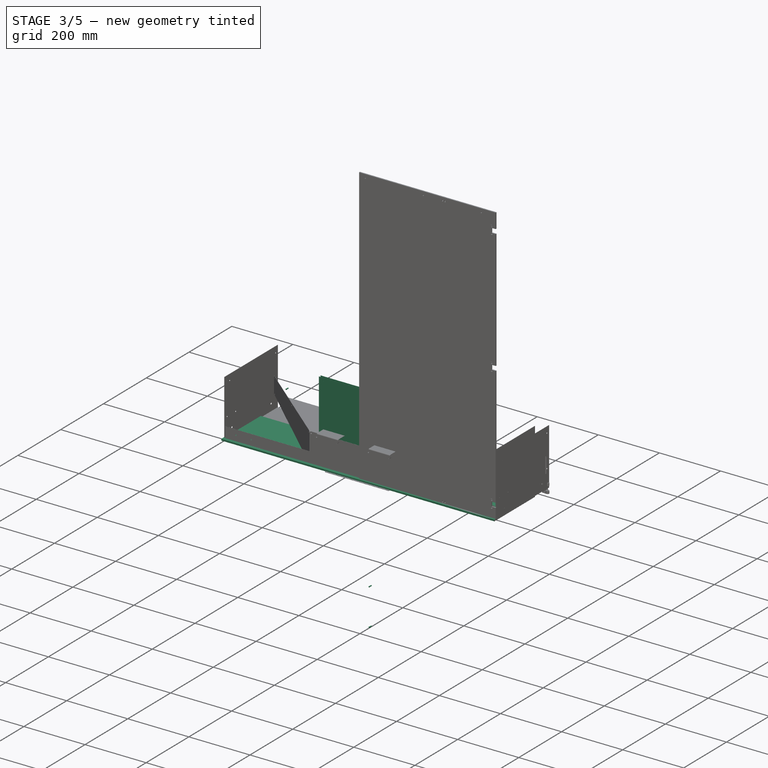
[diagram: stage 3 of 5 — iso view after this stage's code; geometry added in this stage tinted green]
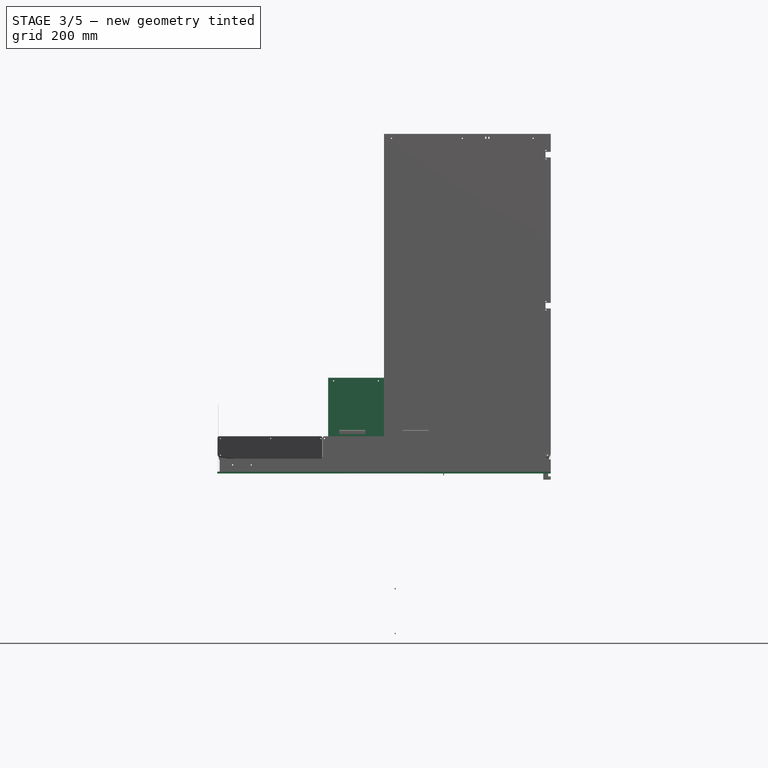
[diagram: stage 3 of 5 — front view after this stage's code; geometry added in this stage tinted green]
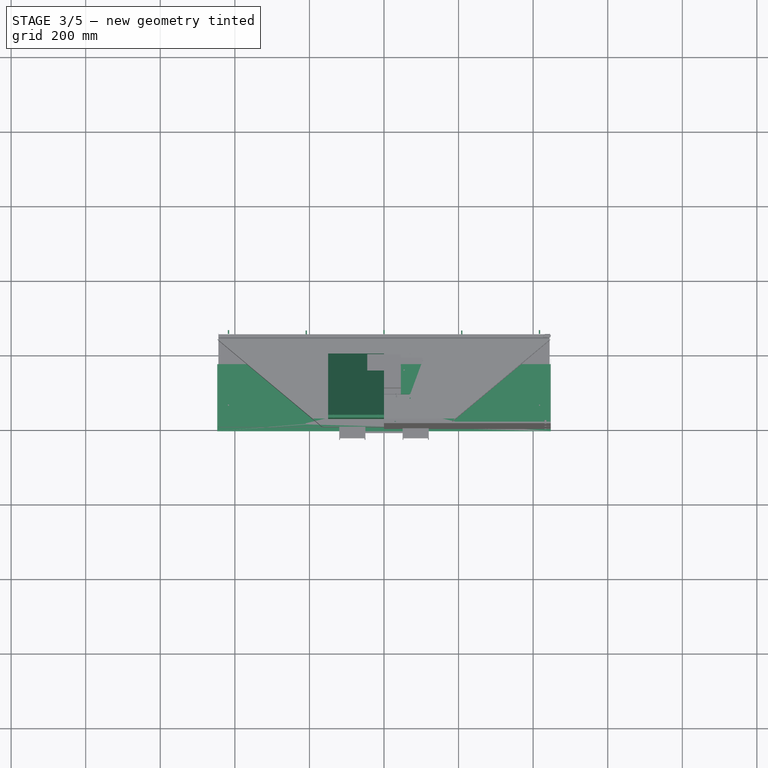
[diagram: stage 3 of 5 — top view after this stage's code; geometry added in this stage tinted green]
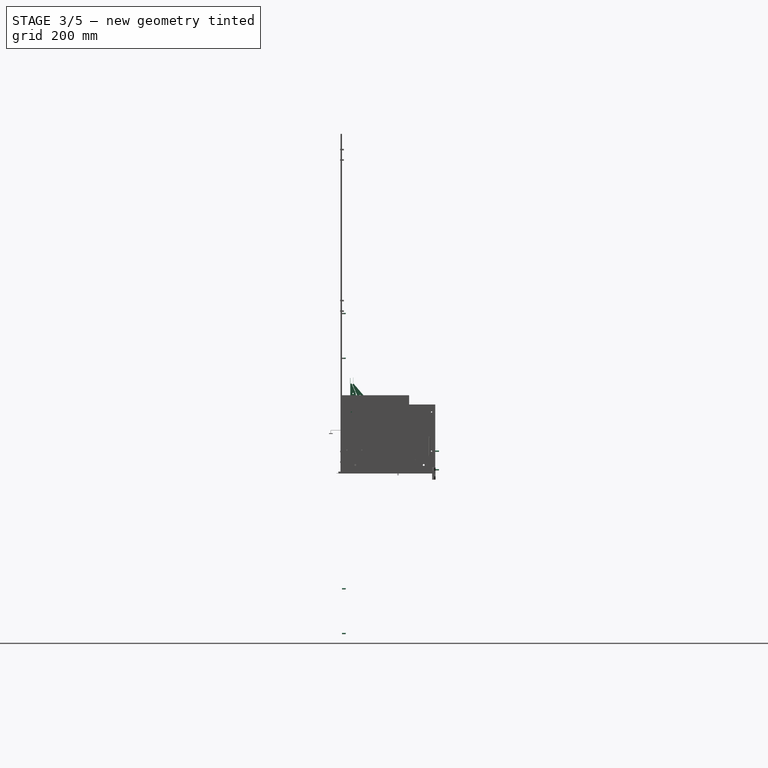
[diagram: stage 3 of 5 — right view after this stage's code; geometry added in this stage tinted green]
FEATURE [Sketcher::SketchObject] Sketch021
  ExternalGeometry = -> [Sketch001]
  FullyConstrained = true
  sketch-geometry (3):
    g0: LineSegment StartX=0 StartY=-0.5 StartZ=0 EndX=165.096 EndY=-0.5 EndZ=0
    g1: LineSegment StartX=165.096 StartY=-0.5 StartZ=0 EndX=145.596 EndY=-20 EndZ=0
    g2: LineSegment StartX=145.596 StartY=-20 StartZ=0 EndX=0 EndY=-20 EndZ=0
  constraints (10):
    c: PointOnObject(g0,g-2)
    c: Horizontal(g0)
    c: Coincident(g0,g1)
    c: Coincident(g1,g2)
    c: PointOnObject(g2,g-2)
    c: Horizontal(g2)
    c: Vertical(g0,g-3)
    c: DistanceY(g0,g-3) = 0.5
    c: DistanceY(g2,g-1) = 20
    c: Angle(g0,g1) = 0.785398
FEATURE [Sketcher::SketchObject] Sketch022
  ExternalGeometry = -> [Sketch001]
  FullyConstrained = true
  sketch-geometry (9):
    g0: LineSegment StartX=165.096 StartY=0 StartZ=0 EndX=275.174 EndY=-132.113 EndZ=0
    g1: LineSegment StartX=275.174 StartY=-132.113 StartZ=0 EndX=447.137 EndY=-132.113 EndZ=0
    g2: LineSegment StartX=447.137 StartY=-132.113 StartZ=0 EndX=447.137 EndY=235 EndZ=0
    g3: LineSegment StartX=447.137 StartY=235 StartZ=0 EndX=275.174 EndY=-132.113 EndZ=0
    g4: LineSegment StartX=446.152 StartY=234.18 StartZ=0 EndX=446.537 EndY=233.719 EndZ=0
    g5: LineSegment StartX=446.473 StartY=233.796 StartZ=0 EndX=165.416 EndY=-0.384133 EndZ=0
    g6: LineSegment StartX=165.416 StartY=-0.384133 StartZ=0 EndX=192.88 EndY=-2.8828 EndZ=0
    g7: LineSegment StartX=192.88 StartY=-2.8828 StartZ=0 EndX=426.973 EndY=192.166 EndZ=0
    g8: LineSegment StartX=426.973 StartY=192.166 StartZ=0 EndX=446.473 EndY=233.796 EndZ=0
  constraints (26):
    c: Coincident(g-3,g0)
    c: Coincident(g0,g1)
    c: Coincident(g1,g2)
    c: Coincident(g2,g-3)
    c: Vertical(g2)
    c: Equal(g1,g0)
    c: Perpendicular(g1,g2)
    c: Perpendicular(g0,g-3)
    c: Coincident(g3,g2)
    c: Coincident(g3,g0)
    c: PointOnObject(g4,g-3)
    c: PointOnObject(g4,g3)
    c: Perpendicular(g-3,g4)
    c: Distance(g4) = 0.6
    c: PointOnObject(g5,g4)
    c: Coincident(g5,g6)
    c: Coincident(g6,g7)
    c: Coincident(g7,g8)
    c: Coincident(g8,g5)
    c: Distance(g4,g5) = 0.1
    c: Parallel(g8,g3)
    c: Parallel(g7,g5)
    c: Parallel(g5,g-3)
    c: PointOnObject(g5,g0)
    c: Angle(g6,g5) = 0.785398
    c: Distance(g6,g-3) = 20
FEATURE [Sketcher::SketchObject] Sketch023
  ExternalGeometry = -> [Sketch001,Sketch002]
  FullyConstrained = true
  sketch-geometry (11):
    g0: LineSegment StartX=447.137 StartY=265 StartZ=0 EndX=165.096 EndY=30 EndZ=0
    g1: LineSegment StartX=165.096 StartY=30 StartZ=0 EndX=275.174 EndY=-102.113 EndZ=0
    g2: LineSegment StartX=275.174 StartY=-102.113 StartZ=0 EndX=447.137 EndY=-102.113 EndZ=0
    g3: LineSegment StartX=447.137 StartY=265 StartZ=0 EndX=447.137 EndY=-102.113 EndZ=0
    g4: LineSegment StartX=447.137 StartY=265 StartZ=0 EndX=275.174 EndY=-102.113 EndZ=0
    g5: LineSegment StartX=447.137 StartY=263.719 StartZ=0 EndX=446.537 EndY=263.719 EndZ=0
    g6: LineSegment StartX=446.637 StartY=263.719 StartZ=0 EndX=427.137 EndY=222.09 EndZ=0
    g7: LineSegment StartX=427.137 StartY=222.09 StartZ=0 EndX=427.137 EndY=17 EndZ=0
    g8: LineSegment StartX=446.637 StartY=0 StartZ=0 EndX=446.637 EndY=263.719 EndZ=0
    g9: LineSegment StartX=427.137 StartY=17 StartZ=0 EndX=444.137 EndY=0 EndZ=0
    g10: LineSegment StartX=444.137 StartY=0 StartZ=0 EndX=446.637 EndY=0 EndZ=0
  constraints (32):
    c: Coincident(g-4,g0)
    c: Coincident(g0,g1)
    c: Coincident(g1,g2)
    c: Horizontal(g2)
    c: Parallel(g-3,g0)
    c: Equal(g-3,g0)
    c: Coincident(g3,g0)
    c: Coincident(g3,g2)
    c: Vertical(g3)
    c: Equal(g3,g0)
    c: Equal(g2,g1)
    c: Coincident(g4,g0)
    c: Coincident(g4,g1)
    c: PointOnObject(g5,g3)
    c: PointOnObject(g5,g4)
    c: Horizontal(g5)
    c: Distance(g5) = 0.6
    c: PointOnObject(g6,g5)
    c: Coincident(g6,g7)
    c: Vertical(g7)
    c: Coincident(g7,g9)
    c: Coincident(g10,g8)
    c: Coincident(g8,g6)
    c: Vertical(g8)
    c: DistanceX(g6,g5) = 0.5
    c: Parallel(g6,g4)
    c: DistanceX(g7,g-4) = 20
    c: Horizontal(g10,g-4)
    c: Coincident(g9,g10)
    c: Horizontal(g10)
    c: DistanceX(g9,g-4) = 3
    c: Angle(g9) = -0.785398
FEATURE [Part::Compound] Compound001
  Links = -> [Sketch021,Sketch022]
FEATURE [Part::FeaturePython] Populate005  label="Populate Placment008 with Compound001"  # WARN: FeaturePython — macro-defined, semantics opaque (R4)
  Copying = 0
  ExposePlacement = false
  MarkerShape = 1
  MarkerSize = 0
  NumElements = 0
  Object = -> Compound001
  OutputCompounding = 2
  PlacementsTo = -> Placment008
  Referencing = 0
  Type = lattice2PopulateCopies.LatticePopulateCopies
  isLattice = 0
FEATURE [Part::Compound] Compound002
  Links = -> [Populate005,Sketch023]
FEATURE [Part::Mirroring] Part__Mirroring003  label="Compound002 (Mirror #4)"
  Base = (0,0,0)
  Normal = (1,0,0)
  Source = -> Compound002
FEATURE [Part::FeaturePython] Connect001  # WARN: FeaturePython — macro-defined, semantics opaque (R4)
  Objects = -> [Compound002,Part__Mirroring003]
  Tolerance = 0
FEATURE [Part::Extrusion] Extrude001
  Base = -> Connect001
  Dir = (0,0,1)
  DirMode = 2
  FaceMakerClass = Part::FaceMakerBullseye
  LengthFwd = 0.3
  LengthRev = 0
  Placement = pos=(0,0,1163.1) rot=(0,0,1;0rad)
  Solid = true
  Symmetric = false
  expr: .Placement.Base.z = <<Properties>>.height + 0.1 mm
FEATURE [PartDesign::FeaturePython] Extend  # WARN: FeaturePython — macro-defined, semantics opaque (R4)
  BaseFeature = -> BaseBend
  Offset = 0.02
  Refine = true
  Suppressed = false
  UseSubtraction = false
  baseObject = -> BaseBend [Face1]
  gap1 = 0
  gap2 = 0
  length = 0
FEATURE [PartDesign::FeaturePython] Bend  # WARN: FeaturePython — macro-defined, semantics opaque (R4)
  AutoMiter = false
  BaseFeature = -> Extend
  BendType = 0
  LengthList = [0.1]
  LengthSpec = 0
  ReliefFactor = 0.7
  Suppressed = false
  UseReliefFactor = false
  angle = 90
  baseObject = -> Extend [Edge14,Edge29,Edge76,Edge58,Edge73]
  bendAList = [90]
  extend1 = 0
  extend2 = 0
  gap1 = 0
  gap2 = 0
  invert = false
  kfactor = 0.5
  length = 0.1
  maxExtendDist = 5
  minGap = 0.2
  minReliefGap = 1
  miterangle1 = 0
  miterangle2 = 0
  offset = 0
  radius = 0.1
  reliefType = 0
  reliefd = 1
  reliefw = 0.8
  sketchflip = false
  sketchinvert = false
  unfold = false
  expr: radius = BaseBend.radius
FEATURE [Part::MultiFuse] Fusion002
  Shapes = -> [Extrude001]
FEATURE [PartDesign::Boolean] Boolean002
  BaseFeature = -> Bend
  Group = -> [Fusion002]
  Refine = true
  Suppressed = false
  Type = 0
  UsePlacement = true
FEATURE [Sketcher::SketchObject] Sketch024
  ExternalGeometry = -> [Clone2D,Sketch002,Sketch023]
  FullyConstrained = true
  sketch-geometry (4):
    g0: LineSegment StartX=447.137 StartY=265 StartZ=0 EndX=447.137 EndY=263.719 EndZ=0
    g1: LineSegment StartX=447.137 StartY=263.719 StartZ=0 EndX=446.537 EndY=263.719 EndZ=0
    g2: LineSegment StartX=446.537 StartY=263.719 StartZ=0 EndX=446.152 EndY=264.18 EndZ=0
    g3: LineSegment StartX=446.152 StartY=264.18 StartZ=0 EndX=447.137 EndY=265 EndZ=0
  constraints (11):
    c: Coincident(g-4,g0)
    c: PointOnObject(g0,g-4)
    c: Coincident(g0,g1)
    c: Horizontal(g1)
    c: Coincident(g1,g2)
    c: PointOnObject(g2,g-3)
    c: Coincident(g2,g3)
    c: Coincident(g3,g0)
    c: PointOnObject(g-5,g1)
    c: Equal(g1,g2)
    c: Equal(g0,g3)
FEATURE [Part::Extrusion] Extrude002
  Base = -> Sketch024
  Dir = (0,0,1)
  DirMode = 2
  FaceMakerClass = Part::FaceMakerBullseye
  LengthFwd = 10
  LengthRev = 0
  Solid = true
  Symmetric = false
FEATURE [Part::Mirroring] Part__Mirroring004  label="Extrude002 (Mirror #5)"
  Base = (0,0,0)
  Normal = (1,0,0)
  Source = -> Extrude002
FEATURE [Part::Compound] Compound003
  Links = -> [Extrude002,Part__Mirroring004]
  Placement = pos=(0,0,1163) rot=(0,0,1;0rad)
  expr: .Placement.Base.z = <<Properties>>.height
FEATURE [Sketcher::SketchObject] Sketch025
  FullyConstrained = true
  sketch-geometry (8):
    g0: LineSegment StartX=58.5 StartY=-22 StartZ=0 EndX=76 EndY=-22 EndZ=0
    g1: LineSegment StartX=76 StartY=-22 StartZ=0 EndX=76 EndY=-3 EndZ=0
    g2: LineSegment StartX=76 StartY=-3 StartZ=0 EndX=58.5 EndY=-3 EndZ=0
    g3: LineSegment StartX=58.5 StartY=-3 StartZ=0 EndX=58.5 EndY=-22 EndZ=0
    g4: LineSegment StartX=-76 StartY=-22 StartZ=0 EndX=-58.5 EndY=-22 EndZ=0
    g5: LineSegment StartX=-58.5 StartY=-22 StartZ=0 EndX=-58.5 EndY=-3 EndZ=0
    g6: LineSegment StartX=-58.5 StartY=-3 StartZ=0 EndX=-76 EndY=-3 EndZ=0
    g7: LineSegment StartX=-76 StartY=-3 StartZ=0 EndX=-76 EndY=-22 EndZ=0
  constraints (22):
    c: Coincident(g0,g1)
    c: Coincident(g1,g2)
    c: Coincident(g2,g3)
    c: Coincident(g3,g0)
    c: Horizontal(g0)
    c: Horizontal(g2)
    c: Vertical(g1)
    c: Vertical(g3)
    c: Coincident(g4,g5)
    c: Coincident(g5,g6)
    c: Coincident(g6,g7)
    c: Coincident(g7,g4)
    c: Horizontal(g4)
    c: Horizontal(g6)
    c: Vertical(g5)
    c: Vertical(g7)
    c: Symmetric(g1,g6,g-2)
    c: Symmetric(g0,g4,g-2)
    c: DistanceY(g2) = -3
    c: DistanceX(g2,g2) = 17.5
    c: DistanceX(g2) = 58.5
    c: DistanceY(g0) = -22
FEATURE [Part::Extrusion] Extrude003
  Base = -> Sketch025
  Dir = (0,0,1)
  DirMode = 2
  FaceMakerClass = Part::FaceMakerBullseye
  LengthFwd = 10
  LengthRev = 0
  Solid = true
  Symmetric = false
FEATURE [Part::FeaturePython] Placment009  label="sink_placement"  # WARN: FeaturePython — macro-defined, semantics opaque (R4)
  AttacherType = Attacher::AttachEngine3D
  AttachmentOffset = pos=(0,0,148) rot=(0,0,1;0rad)
  AttachmentSupport = -> [Placment008]
  ExposePlacement = true
  MapMode = 2
  MarkerShape = 1
  MarkerSize = 100
  NumElements = 1
  Placement = pos=(0,30,148) rot=(0,0,1;0rad)
  Type = lattice2AttachablePlacement.AttachablePlacement
  isLattice = 1
  expr: .AttachmentOffset.Base.z = <<Properties>>.height - (<<Properties>>.modules_count - 1) * 80 mm - 160 mm - 55 mm
FEATURE [Part::FeaturePython] Populate014  label="Populate Placment009 with Compound008"  # WARN: FeaturePython — macro-defined, semantics opaque (R4)
  Copying = 0
  ExposePlacement = false
  MarkerShape = 1
  MarkerSize = 0
  NumElements = 0
  Object = -> Compound008
  OutputCompounding = 2
  PlacementsTo = -> Placment009
  Referencing = 0
  Type = lattice2PopulateCopies.LatticePopulateCopies
  isLattice = 0
FEATURE [Sketcher::SketchObject] Sketch046  label="Dimensions"
  ExternalGeometry = -> [Sketch001]
  FullyConstrained = true
  sketch-geometry (5):
    g0: LineSegment StartX=-447.137 StartY=0 StartZ=0 EndX=-447.137 EndY=265 EndZ=0
    g1: LineSegment StartX=-447.137 StartY=265 StartZ=0 EndX=-165.096 EndY=30 EndZ=0
    g2: LineSegment StartX=-165.096 StartY=30 StartZ=0 EndX=165.096 EndY=30 EndZ=0
    g3: LineSegment StartX=165.096 StartY=30 StartZ=0 EndX=447.137 EndY=265 EndZ=0
    g4: LineSegment StartX=447.137 StartY=265 StartZ=0 EndX=447.137 EndY=0 EndZ=0
  constraints (17):
    c: PointOnObject(g0,g-1)
    c: Vertical(g0)
    c: Coincident(g0,g1)
    c: Coincident(g1,g2)
    c: Coincident(g2,g3)
    c: Vertical(g2,g-3)
    c: DistanceY(g2) = 30  'offset'
    c: Parallel(g3,g-3)
    c: Coincident(g4,g3)
    c: PointOnObject(g4,g-1)
    c: Vertical(g4)
    c: PointOnObject(g-3,g4)
    c: Symmetric(g2,g1,g-2)
    c: Symmetric(g0,g3,g-2)
    c: DistanceX(g2,g2) = 330.192  'face'
    c: DistanceX(g0,g3) = 894.273  'width'
    c: DistanceY(g3) = 265  'depth'
FEATURE [Sketcher::SketchObject] Sketch044
  ExternalGeometry = -> [Sketch046]
  FullyConstrained = true
  Placement = pos=(0,0,0) rot=(1,0,0;1.5708rad)
  expr: Constraints[17] = <<sink_placement>>.Placement.Base.z
  sketch-geometry (8):
    g0: LineSegment StartX=0 StartY=0 StartZ=0 EndX=165.396 EndY=0 EndZ=0
    g1: LineSegment StartX=165.396 StartY=0 StartZ=0 EndX=165.396 EndY=168 EndZ=0
    g2: LineSegment StartX=0 StartY=155 StartZ=0 EndX=0 EndY=0 EndZ=0
    g3: LineSegment StartX=142.164 StartY=155 StartZ=0 EndX=0 EndY=155 EndZ=0
    g4: ArcOfCircle CenterX=142.164 CenterY=160 CenterZ=0 NormalX=0 NormalY=0 NormalZ=1 AngleXU=0 Radius=5 StartAngle=4.71239 EndAngle=5.78253
    g5: ArcOfCircle CenterX=164.096 CenterY=148 CenterZ=0 NormalX=0 NormalY=0 NormalZ=1 AngleXU=0 Radius=20 StartAngle=1.5708 EndAngle=2.64094
    g6: LineSegment StartX=164.096 StartY=168 StartZ=0 EndX=165.396 EndY=168 EndZ=0
    g7: GeomPoint X=0 Y=148 Z=0
  constraints (21):
    c: Coincident(g0,g1)
    c: Coincident(g3,g2)
    c: Coincident(g2,g0)
    c: Horizontal(g0)
    c: Vertical(g1)
    c: Vertical(g2)
    c: Coincident(g0,g-1)
    c: Horizontal(g3)
    c: Horizontal(g6)
    c: Coincident(g1,g6)
    c: Tangent(g4,g3) = 1.5708
    c: Tangent(g5,g4) = 1.5708
    c: Tangent(g6,g5) = 1.5708
    c: DistanceX(g5,g-3) = 1
    c: Radius(g4) = 5
    c: Radius(g5) = 20
    c: DistanceX(g-3,g0) = 0.3
    c: DistanceY(g7) = 148
    c: PointOnObject(g7,g-2)
    c: DistanceY(g7,g2) = 7
    c: Horizontal(g7,g5)
FEATURE [Part::Extrusion] Extrude015
  Base = -> Sketch044
  Dir = (0,-1,2e-16)
  DirMode = 2
  FaceMakerClass = Part::FaceMakerBullseye
  LengthFwd = 1.3
  LengthRev = 1.1
  Solid = true
  Symmetric = false
FEATURE [PartDesign::CoordinateSystem] Local_CS001  label="dropper_fix_PP_LCS"
  AttacherType = Attacher::AttachEngine3D
  AttachmentSupport = -> [XY_Plane005]
  MapMode = 5
FEATURE [PartDesign::Body] Body005  label="dropper_fix_PP"
  Group = -> [Binder009,Pad010,Boolean005,Local_CS001]
  Origin = -> Origin005
  Tip = -> Boolean005
FEATURE [PartDesign::CoordinateSystem] Local_CS002  label="dropper_fix_composit_LCS"
  AttacherType = Attacher::AttachEngine3D
  AttachmentSupport = -> [XY_Plane004]
  MapMode = 5
FEATURE [PartDesign::CoordinateSystem] Local_CS003  label="dropper_fix_composit_dropper_fix_PP1_LCS"
  AttacherType = Attacher::AttachEngine3D
  AttachmentOffset = pos=(0,0,3) rot=(0,0,1;0rad)
  AttachmentSupport = -> [XY_Plane004]
  MapMode = 5
  Placement = pos=(0,0,3) rot=(0,0,1;0rad)
FEATURE [PartDesign::CoordinateSystem] Local_CS004  label="sink_LCS"
  AttacherType = Attacher::AttachEngine3D
  AttachmentSupport = -> [XY_Plane002]
  MapMode = 5
FEATURE [PartDesign::CoordinateSystem] Local_CS005  label="face_LCS"
  AttacherType = Attacher::AttachEngine3D
  AttachmentSupport = -> [XY_Plane]
  MapMode = 5
FEATURE [PartDesign::CoordinateSystem] Local_CS006  label="face_sink_LCS"
  AttacherType = Attacher::AttachEngine3D
  AttachmentOffset = pos=(0,30,148) rot=(0,0,1;0rad)
  AttachmentSupport = -> [XY_Plane]
  MapMode = 5
  Placement = pos=(0,30,148) rot=(0,0,1;0rad)
  expr: AttachmentOffset = <<sink_placement>>.Placement
FEATURE [PartDesign::CoordinateSystem] Local_CS007  label="face_dropper_fix_composit_LCS"
  AttacherType = Attacher::AttachEngine3D
  AttachmentOffset = pos=(0,30,1163.4) rot=(0,0,1;0rad)
  AttachmentSupport = -> [XY_Plane]
  MapMode = 5
  Placement = pos=(0,30,1163.4) rot=(0,0,1;0rad)
  expr: AttachmentOffset = <<top_placement>>.Placement * placement(vector(0; 0; 0.4); rotation(0; 0; 0))
FEATURE [App::Link] Link004  label="module_Body"
  LinkPlacement = pos=(0,-1.5,0) rot=(0,0,1;0rad)
  LinkedObject = -> <external ../module.FCStd>#Body
  Placement = pos=(0,-1.5,0) rot=(0,0,1;0rad)
FEATURE [PartDesign::CoordinateSystem] LCS_1  label="modules_LCS"
  AttacherType = Attacher::AttachEngine3D
  AttachmentSupport = -> [XY_Plane006]
  MapMode = 5
FEATURE [Sketcher::SketchObject] Sketch048  label="bar_sketch"
  FullyConstrained = true
  expr: .Constraints.depth = <<face_bottom_placement>>.Placement.Base.y - 3 mm - .Constraints.thickness
  sketch-geometry (6):
    g0: LineSegment StartX=0 StartY=25 StartZ=0 EndX=17.5 EndY=25 EndZ=0
    g1: LineSegment StartX=17.5 StartY=25 StartZ=0 EndX=17.5 EndY=0 EndZ=0
    g2: LineSegment StartX=17.5 StartY=0 StartZ=0 EndX=32.5 EndY=0 EndZ=0
    g3: LineSegment StartX=0 StartY=25 StartZ=0 EndX=0 EndY=27 EndZ=0
    g4: GeomPoint X=-32.5 Y=0 Z=0
    g5: GeomPoint X=-17.5 Y=25 Z=0
  constraints (17):
    c: PointOnObject(g0,g-2)
    c: Horizontal(g0)
    c: Coincident(g0,g1)
    c: PointOnObject(g1,g-1)
    c: Vertical(g1)
    c: Coincident(g1,g2)
    c: PointOnObject(g2,g-1)
    c: DistanceY(g0) = 25  'depth'
    c: Coincident(g3,g0)
    c: PointOnObject(g3,g-2)
    c: DistanceY(g3,g3) = 2  'thickness'
    c: Symmetric(g4,g2,g-2)
    c: DistanceX(g4,g2) = 65  'total_width'
    c: DistanceX(g2,g2) = 15
    c: Symmetric(g5,g0,g-2)
    c: DistanceX(g5,g0) = 35  'inner'
    c: DistanceY(g5,g0) = 0
FEATURE [Part::Mirroring] Part__Mirroring014  label="Sketch048 (Mirror #15)"
  Base = (0,0,0)
  Normal = (1,0,0)
  Source = -> Sketch048
FEATURE [Part::FeaturePython] Connect004  # WARN: FeaturePython — macro-defined, semantics opaque (R4)
  Objects = -> [Sketch048,Part__Mirroring014]
  Tolerance = 0
FEATURE [PartDesign::SubShapeBinder] Binder012
  BindCopyOnChange = 0
  BindMode = 0
  ClaimChildren = true
  Context = -> Body006 [Binder012.]
  Fuse = false
  MakeFace = true
  OffsetFill = false
  OffsetIntersection = false
  OffsetJoinType = 0
  OffsetOpenResult = false
  PartialLoad = false
  Relative = false
  Support = -> [Connect004]
  _Version = 2
FEATURE [PartDesign::FeaturePython] BaseBend008  label="bar_BaseBend"  # WARN: FeaturePython — macro-defined, semantics opaque (R4)
  BendSide = 1
  BendSketch = -> Binder012
  MidPlane = true
  Reverse = false
  Suppressed = false
  length = 888.273
  radius = 2
  thickness = 2
  expr: length = <<Dimensions>>.Constraints.width - 6 mm
  expr: thickness = <<bar_sketch>>.Constraints.thickness
FEATURE [Sketcher::SketchObject] Sketch054
  FullyConstrained = true
  Placement = pos=(0,0,-3) rot=(0,0,1;0rad)
  sketch-geometry (5):
    g0: Circle CenterX=9 CenterY=10 CenterZ=0 NormalX=0 NormalY=0 NormalZ=1 AngleXU=0 Radius=1.7
    g1: Circle CenterX=0 CenterY=25.5885 CenterZ=0 NormalX=0 NormalY=0 NormalZ=1 AngleXU=0 Radius=1.7
    g2: Circle CenterX=-9 CenterY=10 CenterZ=0 NormalX=0 NormalY=0 NormalZ=1 AngleXU=0 Radius=1.7
    g3: LineSegment StartX=-9 StartY=10 StartZ=0 EndX=9 EndY=10 EndZ=0
    g4: LineSegment StartX=9 StartY=10 StartZ=0 EndX=0 EndY=25.5885 EndZ=0
  constraints (13):
    c: PointOnObject(g1,g-2)
    c: Symmetric(g0,g2,g-2)
    c: Equal(g0,g1)
    c: Equal(g0,g2)
    c: Diameter(g0) = 3.4
    c: DistanceY(g1) = 25.5885
    c: DistanceX(g0) = 9
    c: DistanceY(g0) = 10
    c: Coincident(g3,g2)
    c: Coincident(g3,g0)
    c: Coincident(g3,g4)
    c: Coincident(g4,g1)
    c: Equal(g4,g3)
FEATURE [Part::Extrusion] Extrude019
  Base = -> Sketch054
  Dir = (0,0,1)
  DirMode = 2
  FaceMakerClass = Part::FaceMakerBullseye
  LengthFwd = 10
  LengthRev = 0
  Solid = true
  Symmetric = false
FEATURE [Part::FeaturePython] Placment012  label="bar2_placement"  # WARN: FeaturePython — macro-defined, semantics opaque (R4)
  AttacherType = Attacher::AttachEngine3D
  ExposePlacement = true
  MarkerShape = 1
  MarkerSize = 50
  NumElements = 1
  Placement = pos=(0,27,958.5) rot=(0.707107,0,-0.707107;3.14159rad)
  Type = lattice2AttachablePlacement.AttachablePlacement
  isLattice = 1
  expr: .Placement.Base.y = <<bar1_placement>>.Placement.Base.y
  expr: .Placement.Rotation.Angle = <<bar1_placement>>.Placement.Rotation.Angle
  expr: .Placement.Rotation.Axis = <<bar1_placement>>.Placement.Rotation.Axis
FEATURE [Part::FeaturePython] Join004  # WARN: FeaturePython — macro-defined, semantics opaque (R4)
  ExposePlacement = false
  Interleave = false
  Links = -> [Placment010,Placment012]
  MarkerShape = 1
  MarkerSize = 0
  NumElements = 2
  Type = lattice2JoinArrays.JoinArrays
  isLattice = 1
FEATURE [Part::FeaturePython] Populate020  label="Populate Placment010 with LinearArray004"  # WARN: FeaturePython — macro-defined, semantics opaque (R4)
  Copying = 0
  ExposePlacement = false
  MarkerShape = 1
  MarkerSize = 0
  NumElements = 4
  Object = -> LinearArray004
  OutputCompounding = 0
  PlacementsTo = -> Join004
  Referencing = 0
  Type = lattice2PopulateCopies.LatticePopulateCopies
  isLattice = 1
FEATURE [Part::FeaturePython] Populate023  label="Populate Placment010 with Join003"  # WARN: FeaturePython — macro-defined, semantics opaque (R4)
  Copying = 0
  ExposePlacement = false
  MarkerShape = 1
  MarkerSize = 0
  NumElements = 4
  Object = -> Join003
  OutputCompounding = 0
  PlacementsTo = -> Join004
  Referencing = 0
  Type = lattice2PopulateCopies.LatticePopulateCopies
  isLattice = 1
FEATURE [Part::FeaturePython] Populate024  label="Populate Populate Placment010 with Join003 with Extrude019"  # WARN: FeaturePython — macro-defined, semantics opaque (R4)
  Copying = 0
  ExposePlacement = false
  MarkerShape = 1
  MarkerSize = 0
  NumElements = 0
  Object = -> Extrude019
  OutputCompounding = 1
  PlacementsTo = -> Populate023
  Referencing = 0
  Type = lattice2PopulateCopies.LatticePopulateCopies
  isLattice = 0
FEATURE [Part::FeaturePython] Populate025  label="Populate Populate Placment010 with LinearArray004 with hole_3.4mm"  # WARN: FeaturePython — macro-defined, semantics opaque (R4)
  Copying = 0
  ExposePlacement = false
  MarkerShape = 1
  MarkerSize = 0
  NumElements = 0
  Object = -> Cylinder
  OutputCompounding = 1
  PlacementsTo = -> Populate020
  Referencing = 0
  Type = lattice2PopulateCopies.LatticePopulateCopies
  isLattice = 0
FEATURE [PartDesign::CoordinateSystem] Local_CS014  label="face_rail1_LCS"
  AttacherType = Attacher::AttachEngine3D
  AttachmentOffset = pos=(441.137,4,23) rot=(0,-1,0;1.5708rad)
  AttachmentSupport = -> [XY_Plane]
  MapMode = 5
  Placement = pos=(441.137,4,23) rot=(0,-1,0;1.5708rad)
  expr: AttachmentOffset = <<pan_placement>>.Placement * <<rail1_placement>>.Placement
FEATURE [PartDesign::CoordinateSystem] Local_CS015  label="face_rail2_LCS"
  AttacherType = Attacher::AttachEngine3D
  AttachmentOffset = pos=(-441.137,4,23) rot=(0,1,0;1.5708rad)
  AttachmentSupport = -> [XY_Plane]
  MapMode = 5
  Placement = pos=(-441.137,4,23) rot=(0,1,0;1.5708rad)
  expr: .AttachmentOffset.Base.x = -<<face_rail1_LCS>>.Placement.Base.x
  expr: .AttachmentOffset.Base.y = <<face_rail1_LCS>>.Placement.Base.y
  expr: .AttachmentOffset.Base.z = <<face_rail1_LCS>>.Placement.Base.z
FEATURE [PartDesign::CoordinateSystem] Local_CS016  label="pan_LCS"
  AttacherType = Attacher::AttachEngine3D
  AttachmentSupport = -> [XY_Plane010]
  MapMode = 5
FEATURE [App::Link] Link007  label="composit_electric_shield_fix"
  LinkedObject = -> <external ../composit_electric_shield.FCStd>#Body002
FEATURE [App::Link] Link008  label="electric_shield_cut"
  LinkedObject = -> <external ../composit_electric_shield.FCStd>#Extrude002
FEATURE [Part::FeaturePython] Placment016  label="electric_shield_placement"  # WARN: FeaturePython — macro-defined, semantics opaque (R4)
  AttacherType = Attacher::AttachEngine3D
  ExposePlacement = true
  MarkerShape = 1
  MarkerSize = 100
  NumElements = 1
  Placement = pos=(447.137,125,930) rot=(0.57735,0.57735,0.57735;2.0944rad)
  Type = lattice2AttachablePlacement.AttachablePlacement
  isLattice = 1
  expr: .Placement.Base.x = <<Dimensions>>.Constraints.width / 2
FEATURE [Part::FeaturePython] Populate029  label="Populate electric_shield_placement with electric_shield_cut"  # WARN: FeaturePython — macro-defined, semantics opaque (R4)
  Copying = 0
  ExposePlacement = false
  MarkerShape = 1
  MarkerSize = 0
  NumElements = 0
  Object = -> Link008
  OutputCompounding = 2
  PlacementsTo = -> Placment016
  Referencing = 0
  Type = lattice2PopulateCopies.LatticePopulateCopies
  isLattice = 0
FEATURE [Part::FeaturePython] Populate030  label="Populate electric_shield_placement with composit_electric_shield_fix"  # WARN: FeaturePython — macro-defined, semantics opaque (R4)
  Copying = 0
  ExposePlacement = false
  MarkerShape = 1
  MarkerSize = 0
  NumElements = 0
  Object = -> Link007
  OutputCompounding = 2
  PlacementsTo = -> Placment016
  Referencing = 0
  Type = lattice2PopulateCopies.LatticePopulateCopies
  isLattice = 0
FEATURE [Part::Compound] Compound009
  Links = -> [Populate030]
FEATURE [Part::FeaturePython] LinearArray005  # WARN: FeaturePython — macro-defined, semantics opaque (R4)
  Alignment = 0
  CellStart = A1
  Count = 3
  Dir = (0,0,1)
  DirIsDriven = true
  DistributionLaw = 0
  DrivenProperty = 1
  EndInclusive = true
  ExposePlacement = false
  GeneratorMode = 0
  MarkerShape = 1
  MarkerSize = 0
  NumElements = 3
  OrientMode = 0
  Point = (0,0,0)
  PointIsDriven = true
  Reverse = false
  SpanEnd = 855
  SpanStart = 45
  Step = 405
  Type = lattice2LinearArray.LinearArray
  VSGVersion = 1
  Values = 45.0 | 450.0 | 855.0
  ValuesSource = 2
  isLattice = 1
FEATURE [Sketcher::SketchObject] Sketch066  label="cut_5_mm"
  FullyConstrained = true
  sketch-geometry (3):
    g0: ArcOfCircle CenterX=5 CenterY=5 CenterZ=0 NormalX=0 NormalY=0 NormalZ=1 AngleXU=0 Radius=5 StartAngle=3.14159 EndAngle=4.71239
    g1: LineSegment StartX=5 StartY=0 StartZ=0 EndX=0 EndY=0 EndZ=0
    g2: LineSegment StartX=0 StartY=0 StartZ=0 EndX=0 EndY=5 EndZ=0
  constraints (9):
    c: PointOnObject(g0,g-1)
    c: Tangent(g-1,g0,g0) = -1.5708
    c: Tangent(g0,g-2) = 1.5708
    c: Coincident(g0,g1)
    c: Coincident(g1,g2)
    c: Coincident(g2,g0)
    c: Vertical(g2)
    c: Horizontal(g1)
    c: Radius(g0) = 5
FEATURE [Sketcher::SketchObject] Sketch067  label="Sketch068"
  AttachmentOffset = pos=(0,0,0) rot=(0,-1,0;1.5708rad)
  AttachmentSupport = -> [Sketch062]
  FullyConstrained = true
  MapMode = 7
  Placement = pos=(448.437,236.083,0) rot=(0.247984,-0.68502,-0.68502;2.65543rad)
  sketch-geometry (12):
    g0: Circle CenterX=13 CenterY=14 CenterZ=0 NormalX=0 NormalY=0 NormalZ=1 AngleXU=0 Radius=1.6
    g1: Circle CenterX=13 CenterY=-14 CenterZ=0 NormalX=0 NormalY=0 NormalZ=1 AngleXU=0 Radius=1.6
    g2: ArcOfCircle CenterX=12 CenterY=14 CenterZ=0 NormalX=0 NormalY=0 NormalZ=1 AngleXU=0 Radius=1.6 StartAngle=1.5708 EndAngle=4.71239
    g3: ArcOfCircle CenterX=13 CenterY=14 CenterZ=0 NormalX=0 NormalY=0 NormalZ=1 AngleXU=0 Radius=1.6 StartAngle=4.71239 EndAngle=7.85398
    g4: LineSegment StartX=12 StartY=15.6 StartZ=0 EndX=13 EndY=15.6 EndZ=0
    g5: LineSegment StartX=12 StartY=12.4 StartZ=0 EndX=13 EndY=12.4 EndZ=0
    g6: ArcOfCircle CenterX=12 CenterY=-14 CenterZ=0 NormalX=0 NormalY=0 NormalZ=1 AngleXU=0 Radius=1.6 StartAngle=1.5708 EndAngle=4.71239
    g7: ArcOfCircle CenterX=13 CenterY=-14 CenterZ=0 NormalX=0 NormalY=0 NormalZ=1 AngleXU=0 Radius=1.6 StartAngle=4.71239 EndAngle=7.85398
    g8: LineSegment StartX=12 StartY=-12.4 StartZ=0 EndX=13 EndY=-12.4 EndZ=0
    g9: LineSegment StartX=12 StartY=-15.6 StartZ=0 EndX=13 EndY=-15.6 EndZ=0
    g10: GeomPoint X=10.4 Y=14 Z=0
    g11: GeomPoint X=11.4 Y=14 Z=0
  constraints (27):
    c: Equal(g0,g1)
    c: Diameter(g0) = 3.2
    c: DistanceY(g0) = 14
    c: DistanceX(g0) = 13
    c: Symmetric(g0,g1,g-1)
    c: Tangent(g2,g4) = 1.5708
    c: Tangent(g2,g5) = -1.5708
    c: Tangent(g3,g4) = 1.5708
    c: Tangent(g3,g5) = -1.5708
    c: Equal(g2,g3)
    c: Horizontal(g4)
    c: Tangent(g6,g8) = 1.5708
    c: Tangent(g6,g9) = -1.5708
    c: Tangent(g7,g8) = 1.5708
    c: Tangent(g7,g9) = -1.5708
    c: Equal(g6,g7)
    c: Symmetric(g6,g2,g-1)
    c: Symmetric(g7,g3,g-1)
    c: Equal(g7,g3)
    c: Equal(g2,g0)
    c: Horizontal(g2,g0)
    c: PointOnObject(g10,g2)
    c: DistanceX(g2,g0) = 1
    c: PointOnObject(g11,g3)
    c: DistanceX(g10,g11) = 1
    c: Horizontal(g10,g3)
    c: Horizontal(g3,g11)
FEATURE [Part::Extrusion] Extrude024
  Base = -> Sketch067
  Dir = (-0.64013,0.768267,-2e-16)
  DirMode = 2
  FaceMakerClass = Part::FaceMakerBullseye
  LengthFwd = 10
  LengthRev = 0
  Solid = true
  Symmetric = true
FEATURE [Part::FeaturePython] Placment020  label="door_placement"  # WARN: FeaturePython — macro-defined, semantics opaque (R4)
  AttacherType = Attacher::AttachEngine3D
  AttachmentOffset = pos=(0,0,250) rot=(0,0,1;0rad)
  AttachmentSupport = -> [Placment008]
  ExposePlacement = true
  MapMode = 2
  MarkerShape = 1
  MarkerSize = 200
  NumElements = 1
  Placement = pos=(0,30,250) rot=(0,0,1;0rad)
  Type = lattice2AttachablePlacement.AttachablePlacement
  isLattice = 1
  expr: .AttachmentOffset.Base.z = <<sink_placement>>.Placement.Base.z + <<Properties>>.sink_total_height + 2 mm
FEATURE [Part::FeaturePython] Populate038  label="Populate door_placement with LinearArray005"  # WARN: FeaturePython — macro-defined, semantics opaque (R4)
  Copying = 0
  ExposePlacement = false
  MarkerShape = 1
  MarkerSize = 0
  NumElements = 3
  Object = -> LinearArray005
  OutputCompounding = 0
  PlacementsTo = -> Placment020
  Referencing = 0
  Type = lattice2PopulateCopies.LatticePopulateCopies
  isLattice = 1
FEATURE [Part::FeaturePython] Populate039  label="Populate Populate door_placement with LinearArray005 with Extrude024"  # WARN: FeaturePython — macro-defined, semantics opaque (R4)
  Copying = 0
  ExposePlacement = false
  MarkerShape = 1
  MarkerSize = 0
  NumElements = 0
  Object = -> Extrude024
  OutputCompounding = 1
  PlacementsTo = -> Populate038
  Referencing = 0
  Type = lattice2PopulateCopies.LatticePopulateCopies
  isLattice = 0
FEATURE [Part::Mirroring] Part__Mirroring016  label="Populate Populate door_placement with LinearArray005 with Extrude024 (Mirror #17)"
  Base = (0,0,0)
  Normal = (1,0,0)
  Source = -> Populate039
FEATURE [Sketcher::SketchObject] Sketch082  label="cap_fix_Sketch"
  FullyConstrained = true
  sketch-geometry (5):
    g0: LineSegment StartX=-3.2 StartY=-10 StartZ=0 EndX=0 EndY=-10 EndZ=0
    g1: LineSegment StartX=0 StartY=-10 StartZ=0 EndX=0 EndY=10 EndZ=0
    g2: LineSegment StartX=0 StartY=10 StartZ=0 EndX=-3.2 EndY=10 EndZ=0
    g3: LineSegment StartX=-3.2 StartY=10 StartZ=0 EndX=-3.2 EndY=-10 EndZ=0
    g4: GeomPoint X=-1.6 Y=0 Z=0
  constraints (13):
    c: Coincident(g0,g1)
    c: Coincident(g1,g2)
    c: Coincident(g2,g3)
    c: Coincident(g3,g0)
    c: Horizontal(g0)
    c: Horizontal(g2)
    c: Vertical(g1)
    c: Vertical(g3)
    c: DistanceX(g0,g1) = 3.2  'width'
    c: DistanceY(g0,g1) = 20  'length'
    c: Symmetric(g0,g1,g4)
    c: PointOnObject(g4,g-1)
    c: PointOnObject(g0,g-2)
FEATURE [Part::Extrusion] Extrude026
  Base = -> Sketch082
  Dir = (0,0,1)
  DirMode = 2
  FaceMakerClass = Part::FaceMakerBullseye
  LengthFwd = 10
  LengthRev = 0
  Solid = true
  Symmetric = false
FEATURE [Part::FeaturePython] Placment029  label="cap_fix_placement"  # WARN: FeaturePython — macro-defined, semantics opaque (R4)
  AttacherType = Attacher::AttachEngine3D
  ExposePlacement = true
  MarkerShape = 1
  MarkerSize = 100
  NumElements = 1
  Placement = pos=(444.137,50,1163) rot=(0,0,1;0rad)
  Type = lattice2AttachablePlacement.AttachablePlacement
  isLattice = 1
  expr: .Placement.Base.x = <<Dimensions>>.Constraints.width / 2 - 3 mm
  expr: .Placement.Base.z = <<Properties>>.height
FEATURE [Part::FeaturePython] Mirror005  label="Mirror005 of Placment029"  # WARN: FeaturePython — macro-defined, semantics opaque (R4)
  ExposePlacement = false
  FlipX = true
  FlipY = false
  FlipZ = false
  MarkerShape = 1
  MarkerSize = 100
  NumElements = 1
  Object = -> Placment029
  ObjectTraversal = 0
  Type = lattice2Mirror.LatticeMirror
  isLattice = 1
FEATURE [Part::FeaturePython] Join011  # WARN: FeaturePython — macro-defined, semantics opaque (R4)
  ExposePlacement = false
  Interleave = false
  Links = -> [Placment029,Mirror005]
  MarkerShape = 1
  MarkerSize = 0
  NumElements = 2
  Type = lattice2JoinArrays.JoinArrays
  isLattice = 1
FEATURE [Part::FeaturePython] Populate049  label="Populate Join011 with Extrude026"  # WARN: FeaturePython — macro-defined, semantics opaque (R4)
  Copying = 0
  ExposePlacement = false
  MarkerShape = 1
  MarkerSize = 0
  NumElements = 0
  Object = -> Extrude026
  OutputCompounding = 1
  PlacementsTo = -> Join011
  Referencing = 0
  Type = lattice2PopulateCopies.LatticePopulateCopies
  isLattice = 0
FEATURE [PartDesign::Body] Body021
  Group = -> [Binder032,BaseBend016,Extend003,Bend006,Boolean017]
  Origin = -> Origin022
  Tip = -> Boolean017
FEATURE [Part::FeaturePython] Join013  # WARN: FeaturePython — macro-defined, semantics opaque (R4)
  ExposePlacement = false
  Interleave = false
  Links = -> [Placment,Placment003]
  MarkerShape = 1
  MarkerSize = 0
  NumElements = 2
  Type = lattice2JoinArrays.JoinArrays
  isLattice = 1
FEATURE [Part::FeaturePython] Placment035  # WARN: FeaturePython — macro-defined, semantics opaque (R4)
  AttacherType = Attacher::AttachEngine3D
  ExposePlacement = true
  MarkerShape = 1
  MarkerSize = 50
  NumElements = 1
  Type = lattice2AttachablePlacement.AttachablePlacement
  isLattice = 1
FEATURE [Part::FeaturePython] Placment036  # WARN: FeaturePython — macro-defined, semantics opaque (R4)
  AttacherType = Attacher::AttachEngine3D
  AttachmentOffset = pos=(0,0,0) rot=(-0.57735,-0.57735,-0.57735;2.0944rad)
  AttachmentSupport = -> [Sketch]
  ExposePlacement = true
  MapMode = 45
  MarkerShape = 1
  MarkerSize = 50
  NumElements = 1
  Placement = pos=(291.934,105.683,0) rot=(0,0,1;0.694667rad)
  Type = lattice2AttachablePlacement.AttachablePlacement
  isLattice = 1
FEATURE [Part::FeaturePython] Placment037  # WARN: FeaturePython — macro-defined, semantics opaque (R4)
  AttacherType = Attacher::AttachEngine3D
  ExposePlacement = true
  MarkerShape = 1
  MarkerSize = 50
  NumElements = 1
  Placement = pos=(-291.934,105.683,0) rot=(0,0,-1;0.694667rad)
  Type = lattice2AttachablePlacement.AttachablePlacement
  isLattice = 1
  expr: .Placement.Base.x = -<<Placment036>>.Placement.Base.x
  expr: .Placement.Base.y = <<Placment036>>.Placement.Base.y
  expr: .Placement.Rotation.Angle = -<<Placment036>>.Placement.Rotation.Angle
FEATURE [Part::FeaturePython] Join014  # WARN: FeaturePython — macro-defined, semantics opaque (R4)
  ExposePlacement = false
  Interleave = false
  Links = -> [Placment035,Placment036,Placment037]
  MarkerShape = 1
  MarkerSize = 0
  NumElements = 3
  Type = lattice2JoinArrays.JoinArrays
  isLattice = 1
FEATURE [Part::FeaturePython] Populate058  label="Populate Join014 with Join013"  # WARN: FeaturePython — macro-defined, semantics opaque (R4)
  Copying = 0
  ExposePlacement = false
  MarkerShape = 1
  MarkerSize = 0
  NumElements = 6
  Object = -> Join013
  OutputCompounding = 0
  PlacementsTo = -> Join014
  Referencing = 0
  Type = lattice2PopulateCopies.LatticePopulateCopies
  isLattice = 1
FEATURE [Part::FeaturePython] Join  # WARN: FeaturePython — macro-defined, semantics opaque (R4)
  ExposePlacement = false
  Interleave = false
  Links = -> [Populate058]
  MarkerShape = 1
  MarkerSize = 0
  NumElements = 6
  Type = lattice2JoinArrays.JoinArrays
  isLattice = 1
FEATURE [Part::FeaturePython] Populate001  label="Populate Populate Placment006 with LinearArray with Join"  # WARN: FeaturePython — macro-defined, semantics opaque (R4)
  Copying = 0
  ExposePlacement = false
  MarkerShape = 1
  MarkerSize = 0
  NumElements = 66
  Object = -> Join
  OutputCompounding = 0
  PlacementsTo = -> Populate
  Referencing = 0
  Type = lattice2PopulateCopies.LatticePopulateCopies
  isLattice = 1
FEATURE [Part::FeaturePython] Populate002  label="Populate Populate Populate Placment006 with LinearArray with Join with Placment007"  # WARN: FeaturePython — macro-defined, semantics opaque (R4)
  Copying = 0
  ExposePlacement = false
  MarkerShape = 1
  MarkerSize = 0
  NumElements = 66
  Object = -> Placment007
  OutputCompounding = 0
  PlacementsTo = -> Populate001
  Referencing = 0
  Type = lattice2PopulateCopies.LatticePopulateCopies
  isLattice = 1
FEATURE [Part::FeaturePython] Populate003  label="Populate Populate Populate Populate Placment006 with LinearArray with Join with Placment007 with Extrude"  # WARN: FeaturePython — macro-defined, semantics opaque (R4)
  Copying = 0
  ExposePlacement = false
  MarkerShape = 1
  MarkerSize = 0
  NumElements = 0
  Object = -> Extrude
  OutputCompounding = 1
  PlacementsTo = -> Populate002
  Referencing = 0
  Type = lattice2PopulateCopies.LatticePopulateCopies
  isLattice = 0
FEATURE [Part::FeaturePython] Populate006  label="Populate Placment006 with Join"  # WARN: FeaturePython — macro-defined, semantics opaque (R4)
  Copying = 0
  ExposePlacement = false
  MarkerShape = 1
  MarkerSize = 0
  NumElements = 6
  Object = -> Join
  OutputCompounding = 0
  PlacementsTo = -> Placment006
  Referencing = 0
  Type = lattice2PopulateCopies.LatticePopulateCopies
  isLattice = 1
FEATURE [Part::FeaturePython] Populate007  label="Populate Populate Placment006 with Join with Extrude003"  # WARN: FeaturePython — macro-defined, semantics opaque (R4)
  Copying = 0
  ExposePlacement = false
  MarkerShape = 1
  MarkerSize = 0
  NumElements = 0
  Object = -> Extrude003
  OutputCompounding = 1
  PlacementsTo = -> Populate006
  Referencing = 0
  Type = lattice2PopulateCopies.LatticePopulateCopies
  isLattice = 0
FEATURE [Part::FeaturePython] Populate012  label="Populate Join with LinearArray003"  # WARN: FeaturePython — macro-defined, semantics opaque (R4)
  Copying = 0
  ExposePlacement = false
  MarkerShape = 1
  MarkerSize = 0
  NumElements = 12
  Object = -> LinearArray003
  OutputCompounding = 0
  PlacementsTo = -> Join
  Referencing = 0
  Type = lattice2PopulateCopies.LatticePopulateCopies
  isLattice = 1
FEATURE [Part::FeaturePython] Populate013  label="Populate Populate Join with LinearArray003 with Cylinder"  # WARN: FeaturePython — macro-defined, semantics opaque (R4)
  Copying = 0
  ExposePlacement = false
  MarkerShape = 1
  MarkerSize = 0
  NumElements = 0
  Object = -> Cylinder
  OutputCompounding = 1
  PlacementsTo = -> Populate012
  Referencing = 0
  Type = lattice2PopulateCopies.LatticePopulateCopies
  isLattice = 0
FEATURE [Part::FeaturePython] Populate015  label="Populate Placment006 with Populate Populate Join with LinearArray003 with Cylinder"  # WARN: FeaturePython — macro-defined, semantics opaque (R4)
  Copying = 0
  ExposePlacement = false
  MarkerShape = 1
  MarkerSize = 0
  NumElements = 0
  Object = -> Populate013
  OutputCompounding = 2
  PlacementsTo = -> Placment006
  Referencing = 0
  Type = lattice2PopulateCopies.LatticePopulateCopies
  isLattice = 0
FEATURE [PartDesign::Body] Body022  label="door_jumb"
  Group = -> [Binder033,Local_CS033,BaseBend017,Bend007,Sketch091,Pad030,Binder034,Pad031,Boolean018]
  Origin = -> Origin023
  Tip = -> Boolean018
FEATURE [Sketcher::SketchObject] Sketch092
  FullyConstrained = true
  expr: Constraints[10] = <<Dimensions>>.Constraints.width
  expr: Constraints[12] = -<<pan_placement>>.Placement.Base.z
  sketch-geometry (5):
    g0: LineSegment StartX=-447.137 StartY=170 StartZ=0 EndX=-447.137 EndY=-10 EndZ=0
    g1: LineSegment StartX=-447.137 StartY=-10 StartZ=0 EndX=447.137 EndY=-10 EndZ=0
    g2: LineSegment StartX=447.137 StartY=-10 StartZ=0 EndX=447.137 EndY=170 EndZ=0
    g3: LineSegment StartX=447.137 StartY=170 StartZ=0 EndX=-447.137 EndY=170 EndZ=0
    g4: GeomPoint X=0 Y=80 Z=0
  constraints (13):
    c: Coincident(g0,g1)
    c: Coincident(g1,g2)
    c: Coincident(g2,g3)
    c: Coincident(g3,g0)
    c: Vertical(g0)
    c: Vertical(g2)
    c: Horizontal(g1)
    c: Horizontal(g3)
    c: Symmetric(g2,g0,g4)
    c: PointOnObject(g4,g-2)
    c: DistanceX(g0,g2) = 894.273
    c: DistanceY(g2) = 170
    c: DistanceY(g1) = -10
FEATURE [PartDesign::SubShapeBinder] Binder035
  BindCopyOnChange = 0
  BindMode = 0
  ClaimChildren = true
  Context = -> Body023 [Binder035.]
  Fuse = false
  MakeFace = true
  OffsetFill = false
  OffsetIntersection = false
  OffsetJoinType = 0
  OffsetOpenResult = false
  PartialLoad = false
  Relative = false
  Support = -> [Sketch092]
  _Version = 2
FEATURE [PartDesign::Pad] Pad032
  Direction = (0,0,1)
  Length = 5
  Length2 = 10
  Profile = -> Binder035
  Suppressed = false
  Type = 0
FEATURE [Part::FeaturePython] Placment039  label="pan_face_placement"  # WARN: FeaturePython — macro-defined, semantics opaque (R4)
  AttacherType = Attacher::AttachEngine3D
  ExposePlacement = true
  MarkerShape = 1
  MarkerSize = 50
  NumElements = 1
  Placement = pos=(2e-15,260,0) rot=(1,0,0;1.5708rad)
  Type = lattice2AttachablePlacement.AttachablePlacement
  isLattice = 1
  expr: .Placement.Base.y = <<pan_base_Sketch>>.Constraints.depth + 5 mm
FEATURE [PartDesign::CoordinateSystem] Local_CS035  label="pan_pan_face_LCS"
  AttacherType = Attacher::AttachEngine3D
  AttachmentOffset = pos=(2e-15,260,0) rot=(1,0,0;1.5708rad)
  AttachmentSupport = -> [XY_Plane010]
  MapMode = 5
  Placement = pos=(2e-15,260,0) rot=(1,0,0;1.5708rad)
  expr: AttachmentOffset = <<pan_face_placement>>.Placement
FEATURE [PartDesign::CoordinateSystem] Local_CS036  label="pan_face_LCS"
  AttacherType = Attacher::AttachEngine3D
  AttachmentSupport = -> [XY_Plane024]
  MapMode = 5
FEATURE [Sketcher::SketchObject] Sketch093
  FullyConstrained = true
  expr: Constraints[16] = <<Dimensions>>.Constraints.width / 2 - 30 mm
  sketch-geometry (7):
    g0: Circle CenterX=-417.137 CenterY=60 CenterZ=0 NormalX=0 NormalY=0 NormalZ=1 AngleXU=0 Radius=1.7
    g1: Circle CenterX=-208.568 CenterY=10 CenterZ=0 NormalX=0 NormalY=0 NormalZ=1 AngleXU=0 Radius=1.7
    g2: Circle CenterX=0 CenterY=60 CenterZ=0 NormalX=0 NormalY=0 NormalZ=1 AngleXU=0 Radius=1.7
    g3: Circle CenterX=208.568 CenterY=10 CenterZ=0 NormalX=0 NormalY=0 NormalZ=1 AngleXU=0 Radius=1.7
    g4: Circle CenterX=417.137 CenterY=60 CenterZ=0 NormalX=0 NormalY=0 NormalZ=1 AngleXU=0 Radius=1.7
    g5: LineSegment StartX=0 StartY=60 StartZ=0 EndX=208.568 EndY=10 EndZ=0
    g6: LineSegment StartX=208.568 StartY=10 StartZ=0 EndX=417.137 EndY=60 EndZ=0
  constraints (17):
    c: PointOnObject(g2,g-2)
    c: Horizontal(g0,g2)
    c: Equal(g2,g3)
    c: Equal(g2,g4)
    c: Equal(g2,g1)
    c: Equal(g2,g0)
    c: Diameter(g2) = 3.4
    c: Symmetric(g4,g0,g-2)
    c: Symmetric(g1,g3,g-2)
    c: Coincident(g5,g2)
    c: Coincident(g5,g3)
    c: Coincident(g5,g6)
    c: Coincident(g6,g4)
    c: Equal(g5,g6)
    c: DistanceY(g3) = 10
    c: DistanceY(g2) = 60
    c: DistanceX(g4) = 417.137
FEATURE [Part::FeaturePython] Downgrade002  label="Edges of Sketch093"  # WARN: FeaturePython — macro-defined, semantics opaque (R4)
  Base = -> Sketch093
  Mode = 8
FEATURE [Part::FeaturePython] ArrayFromShape002  label="Array from Edges of Sketch093"  # WARN: FeaturePython — macro-defined, semantics opaque (R4)
  CompoundTraversal = 1
  ExposePlacement = false
  MarkerShape = 1
  MarkerSize = 50
  NumElements = 5
  OrientElementIndex = 0
  OrientMode = 2
  ShapeLink = -> Downgrade002
  TranslateElementIndex = 0
  TranslateMode = 3
  Type = lattice2ArrayFromShape.LatticeArrayFromShape
  isLattice = 1
FEATURE [Part::FeaturePython] Populate062  label="Populate Array from Edges of Sketch093 with hole_3.4mm"  # WARN: FeaturePython — macro-defined, semantics opaque (R4)
  Copying = 0
  ExposePlacement = false
  MarkerShape = 1
  MarkerSize = 0
  NumElements = 0
  Object = -> Cylinder
  OutputCompounding = 1
  PlacementsTo = -> ArrayFromShape002
  Referencing = 0
  Type = lattice2PopulateCopies.LatticePopulateCopies
  isLattice = 0
FEATURE [Part::FeaturePython] Populate063  label="Populate pan_face_placement with Array from Edges of Sketch093"  # WARN: FeaturePython — macro-defined, semantics opaque (R4)
  Copying = 0
  ExposePlacement = false
  MarkerShape = 1
  MarkerSize = 0
  NumElements = 5
  Object = -> ArrayFromShape002
  OutputCompounding = 0
  PlacementsTo = -> Placment039
  Referencing = 0
  Type = lattice2PopulateCopies.LatticePopulateCopies
  isLattice = 1
FEATURE [Part::FeaturePython] Populate064  label="Populate Populate pan_face_placement with Array from Edges of Sketch093 with hole_3.4mm"  # WARN: FeaturePython — macro-defined, semantics opaque (R4)
  Copying = 0
  ExposePlacement = false
  MarkerShape = 1
  MarkerSize = 0
  NumElements = 0
  Object = -> Cylinder
  OutputCompounding = 1
  PlacementsTo = -> Populate063
  Referencing = 0
  Type = lattice2PopulateCopies.LatticePopulateCopies
  isLattice = 0
FEATURE [PartDesign::Body] Body009  label="pan"
  Group = -> [Binder014,BaseBend010,Bend002,Local_CS016,Local_CS023,Sketch071,Pad015,Bend005,Sketch072,Pocket009,Mirrored008,Sketch078,Sketch079,Pad019,Binder026,Pad020,Pad021,Sketch080,Pad022,Binder027,Pad023,Binder028,Pad024,Sketch083,Pad025,Local_CS035,Boolean009]
  Origin = -> Origin010
  Tip = -> Pad025
FEATURE [Part::MultiFuse] Fusion020
  Shapes = -> [Populate062]
FEATURE [PartDesign::Boolean] Boolean019
  BaseFeature = -> Pad032
  Group = -> [Fusion020]
  Suppressed = false
  Type = 1
  UsePlacement = true
FEATURE [PartDesign::Body] Body023  label="pan_face"
  Group = -> [Binder035,Pad032,Local_CS036,Boolean019]
  Origin = -> Origin024
  Tip = -> Boolean019
FEATURE [Sketcher::SketchObject] Sketch094
  ExternalGeometry = -> [Sketch001]
  FullyConstrained = true
  sketch-geometry (2):
    g0: LineSegment StartX=447.137 StartY=235 StartZ=0 EndX=441.137 EndY=230.001 EndZ=0
    g1: LineSegment StartX=441.137 StartY=230.001 StartZ=0 EndX=434.137 EndY=224.168 EndZ=0
  constraints (6):
    c: Coincident(g-3,g0)
    c: PointOnObject(g0,g-3)
    c: Coincident(g0,g1)
    c: PointOnObject(g1,g-3)
    c: DistanceX(g0,g0) = 6
    c: DistanceX(g1,g0) = 7
FEATURE [Sketcher::SketchObject] Sketch045
  AttachmentOffset = pos=(0,0,0) rot=(0,1,0;1.5708rad)
  AttachmentSupport = -> [Sketch001]
  ExternalGeometry = -> [Sketch044,Sketch004,Sketch094]
  FullyConstrained = true
  MapMode = 7
  Placement = pos=(165.096,1.42e-14,0) rot=(0.890129,0.322235,0.322235;1.68692rad)
  sketch-geometry (13):
    g0: LineSegment StartX=-0.3 StartY=0 StartZ=0 EndX=359.303 EndY=0 EndZ=0
    g1: LineSegment StartX=-0.3 StartY=168 StartZ=0 EndX=-0.3 EndY=0 EndZ=0
    g2: LineSegment StartX=350.192 StartY=194.989 StartZ=0 EndX=18.12 EndY=155.036 EndZ=0
    g3: ArcOfCircle CenterX=17.5227 CenterY=160 CenterZ=0 NormalX=0 NormalY=0 NormalZ=1 AngleXU=0 Radius=5 StartAngle=3.37911 EndAngle=4.83213
    g4: ArcOfCircle CenterX=1 CenterY=156 CenterZ=0 NormalX=0 NormalY=0 NormalZ=1 AngleXU=0 Radius=12 StartAngle=0.237521 EndAngle=1.5708
    g5: LineSegment StartX=-0.3 StartY=168 StartZ=0 EndX=1 EndY=168 EndZ=0
    g6: LineSegment StartX=-17.6177 StartY=155 StartZ=0 EndX=17.5227 EndY=155 EndZ=0
    g7: LineSegment StartX=0 StartY=0 StartZ=0 EndX=367.113 EndY=44.1693 EndZ=0
    g8: LineSegment StartX=359.303 StartY=0 StartZ=0 EndX=359.303 EndY=45 EndZ=0
    g9: LineSegment StartX=359.303 StartY=45 StartZ=0 EndX=353.192 EndY=45 EndZ=0
    g10: LineSegment StartX=350.192 StartY=48 StartZ=0 EndX=350.192 EndY=194.989 EndZ=0
    g11: ArcOfCircle CenterX=353.192 CenterY=48 CenterZ=0 NormalX=0 NormalY=0 NormalZ=1 AngleXU=0 Radius=3 StartAngle=3.14159 EndAngle=4.71239
    g12: GeomPoint X=350.192 Y=45 Z=0
  constraints (34):
    c: Coincident(g0,g8)
    c: Coincident(g10,g2)
    c: Horizontal(g0)
    c: Vertical(g1)
    c: Tangent(g3,g2) = 1.5708
    c: Tangent(g4,g3) = 1.5708
    c: Coincident(g0,g1)
    c: PointOnObject(g0,g-1)
    c: Coincident(g5,g1)
    c: Tangent(g5,g4) = 1.5708
    c: Horizontal(g5)
    c: Horizontal(g1,g-3)
    c: Radius(g3) = 5
    c: Radius(g4) = 12
    c: DistanceX(g4) = 1
    c: DistanceX(g0) = -0.3
    c: Coincident(g6,g-4)
    c: Horizontal(g6)
    c: Tangent(g6,g3) = -1.5708
    c: Coincident(g7,g-1)
    c: Coincident(g7,g-5)
    c: Parallel(g2,g7)
    c: Coincident(g8,g9)
    c: Vertical(g8)
    c: Vertical(g10)
    c: PointOnObject(g-7,g8)
    c: Horizontal(g9)
    c: Vertical(g-7,g12)
    c: DistanceY(g8) = 45
    c: PointOnObject(g12,g9)
    c: PointOnObject(g12,g10)
    c: Tangent(g9,g11) = 1.5708
    c: Tangent(g10,g11) = 1.5708
    c: Radius(g11) = 3
FEATURE [Part::Extrusion] Extrude016
  Base = -> Sketch045
  Dir = (0.64013,-0.768267,0)
  DirMode = 2
  FaceMakerClass = Part::FaceMakerBullseye
  LengthFwd = 1.6
  LengthRev = 1
  Solid = true
  Symmetric = false
FEATURE [Part::MultiFuse] Fusion008
  Shapes = -> [Extrude015,Extrude016]
FEATURE [Part::Mirroring] Part__Mirroring013  label="Fusion008 (Mirror #14)"
  Base = (0,0,0)
  Normal = (1,0,0)
  Source = -> Fusion008
FEATURE [Part::MultiFuse] Fusion009
  Refine = true
  Shapes = -> [Fusion008,Part__Mirroring013]
FEATURE [Part::FeaturePython] Populate016  label="Populate face_bottom_placement with Fusion009"  # WARN: FeaturePython — macro-defined, semantics opaque (R4)
  Copying = 0
  ExposePlacement = false
  MarkerShape = 1
  MarkerSize = 0
  NumElements = 0
  Object = -> Fusion009
  OutputCompounding = 2
  PlacementsTo = -> Placment008
  Referencing = 0
  Type = lattice2PopulateCopies.LatticePopulateCopies
  isLattice = 0
FEATURE [Sketcher::SketchObject] Sketch095  label="bottom_amplifier_base_sketch"
  FullyConstrained = false
  Placement = pos=(0,0,0) rot=(0.57735,0.57735,0.57735;2.0944rad)
  expr: Constraints[10] = <<bar1_placement>>.Placement.Base.z - (<<bar_sketch>>.Constraints.total_width - <<bar_sketch>>.Constraints.inner + 13 mm) / 2
  expr: Constraints[6] = <<Dimensions>>.Constraints.offset - 6 mm - <<bar_sketch>>.Constraints.thickness
  expr: Constraints[8] = 6 mm + <<bar_sketch>>.Constraints.thickness
  sketch-geometry (4):
    g0: LineSegment StartX=22 StartY=257 StartZ=0 EndX=22 EndY=45 EndZ=0
    g1: LineSegment StartX=22 StartY=45 StartZ=0 EndX=198.227 EndY=45 EndZ=0
    g2: LineSegment StartX=198.227 StartY=45 StartZ=0 EndX=30 EndY=242 EndZ=0
    g3: LineSegment StartX=30 StartY=242 StartZ=0 EndX=30 EndY=257 EndZ=0
  constraints (13):
    c: Vertical(g0)
    c: Coincident(g0,g1)
    c: Horizontal(g1)
    c: Coincident(g1,g2)
    c: Coincident(g2,g3)
    c: Vertical(g3)
    c: DistanceX(g0) = 22
    c: DistanceY(g0) = 45
    c: DistanceX(g0,g2) = 8
    c: Horizontal(g3,g0)
    c: DistanceY(g0) = 257
    c: DistanceY(g3,g3) = 15
    c: Angle(g2,g1) = 0.864016  'angle'
FEATURE [PartDesign::SubShapeBinder] Binder036
  BindCopyOnChange = 0
  BindMode = 0
  ClaimChildren = true
  Context = -> Body024 [Binder036.]
  Fuse = false
  MakeFace = true
  OffsetFill = false
  OffsetIntersection = false
  OffsetJoinType = 0
  OffsetOpenResult = false
  PartialLoad = false
  Placement = pos=(0,0,0) rot=(0.57735,0.57735,0.57735;2.0944rad)
  Relative = false
  Support = -> [Sketch095]
  _Version = 2
  expr: Placement = Support[0][0].Placement
FEATURE [PartDesign::FeaturePython] BaseBend018  # WARN: FeaturePython — macro-defined, semantics opaque (R4)
  BendSide = 1
  BendSketch = -> Binder036
  MidPlane = false
  Reverse = true
  Suppressed = false
  length = 150
  radius = 0.1
  thickness = 0.3
FEATURE [PartDesign::FeaturePython] Bend008  # WARN: FeaturePython — macro-defined, semantics opaque (R4)
  AutoMiter = false
  BaseFeature = -> BaseBend018
  BendType = 1
  LengthList = [0.5]
  LengthSpec = 1
  ReliefFactor = 0.7
  Suppressed = false
  UseReliefFactor = false
  angle = 90
  baseObject = -> BaseBend018 [Edge17,Edge33,Edge49]
  bendAList = [90]
  extend1 = 0
  extend2 = 0
  gap1 = 1
  gap2 = 1
  invert = false
  kfactor = 0.5
  length = 0.5
  maxExtendDist = 5
  minGap = 0.2
  minReliefGap = 1
  miterangle1 = 0
  miterangle2 = 0
  offset = 0
  radius = 0.1
  reliefType = 0
  reliefd = 1
  reliefw = 0.8
  sketchflip = false
  sketchinvert = false
  unfold = false
  expr: miterangle1 = 0
  expr: miterangle2 = miterangle1
  expr: radius = BaseBend018.radius
FEATURE [PartDesign::CoordinateSystem] Local_CS037  label="bottom_amplifier_LCS"
  AttacherType = Attacher::AttachEngine3D
  AttachmentSupport = -> [XY_Plane025]
  MapMode = 5
FEATURE [PartDesign::CoordinateSystem] Local_CS038  label="face_bottom_amplifier_LCS"
  AttacherType = Attacher::AttachEngine3D
  AttachmentOffset = pos=(444.137,0,0) rot=(0,0,1;0rad)
  AttachmentSupport = -> [XY_Plane]
  MapMode = 5
  Placement = pos=(444.137,0,0) rot=(0,0,1;0rad)
FEATURE [Sketcher::SketchObject] Sketch096
  AttachmentSupport = -> [YZ_Plane025]
  ExternalGeometry = -> [Binder036]
  FullyConstrained = true
  MapMode = 5
  Placement = pos=(0,0,0) rot=(0.57735,0.57735,0.57735;2.0944rad)
  sketch-geometry (30):
    g0: LineSegment StartX=23.2071 StartY=45.5 StartZ=0 EndX=37.7071 EndY=60 EndZ=0
    g1: LineSegment StartX=37.7071 StartY=60 StartZ=0 EndX=164.499 EndY=60 EndZ=0
    g2: LineSegment StartX=164.499 StartY=60 StartZ=0 EndX=195.949 EndY=45.5 EndZ=0
    g3: LineSegment StartX=195.949 StartY=45.5 StartZ=0 EndX=23.2071 EndY=45.5 EndZ=0
    g4: LineSegment StartX=22.5 StartY=46.2071 StartZ=0 EndX=37 EndY=60.7071 EndZ=0
    g5: LineSegment StartX=37 StartY=60.7071 StartZ=0 EndX=37 EndY=214.964 EndZ=0
    g6: LineSegment StartX=22.5 StartY=241 StartZ=0 EndX=22.5 EndY=46.2071 EndZ=0
    g7: LineSegment StartX=196.367 StartY=46.4081 StartZ=0 EndX=164.918 EndY=60.9081 EndZ=0
    g8: LineSegment StartX=164.918 StartY=60.9081 StartZ=0 EndX=42.8123 EndY=203.898 EndZ=0
    g9: LineSegment StartX=42.8123 StartY=203.898 StartZ=0 EndX=27.8325 EndY=238.981 EndZ=0
    g10: LineSegment StartX=30 StartY=242 StartZ=0 EndX=26 EndY=242 EndZ=0
    g11: LineSegment StartX=26 StartY=242 StartZ=0 EndX=22 EndY=242 EndZ=0
    g12: LineSegment StartX=22 StartY=45 StartZ=0 EndX=110.114 EndY=45 EndZ=0
    g13: LineSegment StartX=110.114 StartY=45 StartZ=0 EndX=198.227 EndY=45 EndZ=0
    g14: LineSegment StartX=26 StartY=242 StartZ=0 EndX=110.114 EndY=45 EndZ=0
    g15: LineSegment StartX=22 StartY=45 StartZ=0 EndX=22 EndY=126.25 EndZ=0
    g16: LineSegment StartX=22 StartY=126.25 StartZ=0 EndX=83.7873 EndY=179.013 EndZ=0
    g17: LineSegment StartX=22 StartY=126.25 StartZ=0 EndX=198.227 EndY=45 EndZ=0
    g18: LineSegment StartX=22 StartY=45 StartZ=0 EndX=117.055 EndY=140.055 EndZ=0
    g19: LineSegment StartX=27.8325 StartY=238.981 StartZ=0 EndX=30.1964 EndY=241 EndZ=0
    g20: LineSegment StartX=30.1964 StartY=241 StartZ=0 EndX=196.367 EndY=46.4081 EndZ=0
    g21: LineSegment StartX=37 StartY=214.964 StartZ=0 EndX=25.8833 EndY=241 EndZ=0
    g22: LineSegment StartX=25.8833 StartY=241 StartZ=0 EndX=22.5 EndY=241 EndZ=0
    g23: LineSegment StartX=37 StartY=214.964 StartZ=0 EndX=37.4598 EndY=215.16 EndZ=0
    g24: LineSegment StartX=37.4598 StartY=215.16 StartZ=0 EndX=37.9197 EndY=215.357 EndZ=0
    g25: LineSegment StartX=37 StartY=60.7071 StartZ=0 EndX=37.3536 EndY=60.3536 EndZ=0
    g26: LineSegment StartX=164.499 StartY=60 StartZ=0 EndX=164.708 EndY=60.4541 EndZ=0
    g27: LineSegment StartX=37.7071 StartY=60 StartZ=0 EndX=37.7071 EndY=45 EndZ=0
    g28: LineSegment StartX=37 StartY=60.7071 StartZ=0 EndX=22 EndY=60.7071 EndZ=0
    g29: LineSegment StartX=164.918 StartY=60.9081 StartZ=0 EndX=176.324 EndY=70.649 EndZ=0
  constraints (85):
    c: Coincident(g0,g1)
    c: Horizontal(g1)
    c: Coincident(g1,g2)
    c: Coincident(g2,g3)
    c: Coincident(g3,g0)
    c: Horizontal(g3)
    c: Coincident(g4,g5)
    c: Vertical(g5)
    c: Coincident(g5,g21)
    c: Coincident(g22,g6)
    c: Coincident(g6,g4)
    c: Vertical(g6)
    c: Coincident(g20,g7)
    c: Coincident(g7,g8)
    c: Coincident(g8,g9)
    c: Coincident(g9,g19)
    c: Coincident(g-3,g10)
    c: Horizontal(g10)
    c: Coincident(g10,g11)
    c: PointOnObject(g11,g-4)
    c: Horizontal(g11)
    c: Coincident(g12,g13)
    c: Symmetric(g12,g13,g12)
    c: Coincident(g13,g-3)
    c: Coincident(g12,g-4)
    c: Coincident(g14,g10)
    c: Coincident(g14,g12)
    c: Vertical(g15)
    c: Coincident(g15,g16)
    c: PointOnObject(g16,g-3)
    c: PointOnObject(g15,g12)
    c: Perpendicular(g-3,g16)
    c: Equal(g15,g16)
    c: PointOnObject(g15,g-4)
    c: Coincident(g17,g15)
    c: Coincident(g17,g13)
    c: Parallel(g2,g17)
    c: Parallel(g17,g7)
    c: Coincident(g18,g15)
    c: PointOnObject(g18,g-3)
    c: Angle(g18) = 0.785398
    c: Parallel(g0,g18)
    c: Parallel(g18,g4)
    c: Parallel(g14,g9)
    c: DistanceY(g12,g0) = 0.5
    c: DistanceX(g12,g4) = 0.5
    c: Distance(g20,g-3) = 0.5
    c: Symmetric(g1,g7,g17)
    c: Symmetric(g0,g4,g18)
    c: Coincident(g19,g20)
    c: Parallel(g-3,g20)
    c: Perpendicular(g20,g19)
    c: Coincident(g21,g22)
    c: Parallel(g21,g14)
    c: Horizontal(g22)
    c: Equal(g11,g10)
    c: Coincident(g5,g23)
    c: PointOnObject(g23,g14)
    c: Coincident(g23,g24)
    c: PointOnObject(g24,g9)
    c: Coincident(g4,g25)
    c: PointOnObject(g25,g18)
    c: Coincident(g1,g26)
    c: PointOnObject(g26,g17)
    c: Perpendicular(g17,g26)
    c: Perpendicular(g18,g25)
    c: Perpendicular(g14,g23)
    c: Equal(g24,g23)
    c: Equal(g23,g25)
    c: Equal(g25,g26)
    c: Parallel(g24,g23)
    c: Distance(g5,g24) = 1
    c: Distance(g19,g10) = 1
    c: DistanceY(g6,g11) = 1
    c: Coincident(g27,g0)
    c: PointOnObject(g27,g12)
    c: Vertical(g27)
    c: Coincident(g28,g4)
    c: PointOnObject(g28,g15)
    c: Horizontal(g28)
    c: Coincident(g29,g7)
    c: PointOnObject(g29,g-3)
    c: Perpendicular(g-3,g29)
    c: Distance(g29) = 15  'length'
    c: Parallel(g8,g20)
FEATURE [PartDesign::Pad] Pad033
  BaseFeature = -> Bend008
  Direction = (1,0,0)
  Length = 0.3
  Length2 = 10
  Profile = -> Sketch096
  ReferenceAxis = -> Sketch096 [N_Axis]
  Reversed = true
  Suppressed = false
  Type = 0
FEATURE [Sketcher::SketchObject] Sketch097
  ExternalGeometry = -> [Sketch095]
  FullyConstrained = true
  Placement = pos=(0,0,0) rot=(0.57735,0.57735,0.57735;2.0944rad)
  expr: Constraints[33] = <<Sketch096>>.Constraints.length
  sketch-geometry (33):
    g0: Circle CenterX=29.5 CenterY=63.1066 CenterZ=0 NormalX=0 NormalY=0 NormalZ=1 AngleXU=0 Radius=1.7
    g1: Circle CenterX=29.5 CenterY=214.703 CenterZ=0 NormalX=0 NormalY=0 NormalZ=1 AngleXU=0 Radius=1.7
    g2: Circle CenterX=48.1726 CenterY=209.17 CenterZ=0 NormalX=0 NormalY=0 NormalZ=1 AngleXU=0 Radius=1.7
    g3: Circle CenterX=40.1066 CenterY=52.5 CenterZ=0 NormalX=0 NormalY=0 NormalZ=1 AngleXU=0 Radius=1.7
    g4: Circle CenterX=164.047 CenterY=52.5 CenterZ=0 NormalX=0 NormalY=0 NormalZ=1 AngleXU=0 Radius=1.7
    g5: LineSegment StartX=22 StartY=45 StartZ=0 EndX=22 EndY=126.25 EndZ=0
    g6: LineSegment StartX=22 StartY=126.25 StartZ=0 EndX=83.7873 EndY=179.013 EndZ=0
    g7: LineSegment StartX=22 StartY=242 StartZ=0 EndX=26 EndY=242 EndZ=0
    g8: LineSegment StartX=26 StartY=242 StartZ=0 EndX=30 EndY=242 EndZ=0
    g9: LineSegment StartX=22 StartY=45 StartZ=0 EndX=110.114 EndY=45 EndZ=0
    g10: LineSegment StartX=110.114 StartY=45 StartZ=0 EndX=198.227 EndY=45 EndZ=0
    g11: LineSegment StartX=26 StartY=242 StartZ=0 EndX=110.114 EndY=45 EndZ=0
    g12: LineSegment StartX=22 StartY=45 StartZ=0 EndX=117.055 EndY=140.055 EndZ=0
    g13: LineSegment StartX=198.227 StartY=45 StartZ=0 EndX=22 EndY=126.25 EndZ=0
    g14: LineSegment StartX=37 StartY=216.237 StartZ=0 EndX=37 EndY=60 EndZ=0
    g15: LineSegment StartX=37 StartY=60 StartZ=0 EndX=165.693 EndY=60 EndZ=0
    g16: LineSegment StartX=165.693 StartY=60 StartZ=0 EndX=41.725 EndY=205.171 EndZ=0
    g17: Circle CenterX=170.328 CenterY=66.1219 CenterZ=0 NormalX=0 NormalY=0 NormalZ=1 AngleXU=0 Radius=1.7
    g18: LineSegment StartX=29.5 StartY=63.1066 StartZ=0 EndX=29.5 EndY=214.703 EndZ=0
    g19: LineSegment StartX=48.1726 StartY=209.17 StartZ=0 EndX=170.328 EndY=66.1219 EndZ=0
    g20: LineSegment StartX=164.047 StartY=52.5 StartZ=0 EndX=40.1066 EndY=52.5 EndZ=0
    g21: LineSegment StartX=22 StartY=63.1066 StartZ=0 EndX=29.5 EndY=63.1066 EndZ=0
    g22: LineSegment StartX=29.5 StartY=63.1066 StartZ=0 EndX=37 EndY=63.1066 EndZ=0
    g23: LineSegment StartX=40.1066 StartY=45 StartZ=0 EndX=40.1066 EndY=52.5 EndZ=0
    g24: LineSegment StartX=40.1066 StartY=52.5 StartZ=0 EndX=40.1066 EndY=60 EndZ=0
    g25: LineSegment StartX=176.031 StartY=70.9923 StartZ=0 EndX=170.328 EndY=66.1219 EndZ=0
    g26: LineSegment StartX=170.328 StartY=66.1219 StartZ=0 EndX=164.624 EndY=61.2515 EndZ=0
    g27: LineSegment StartX=170.328 StartY=66.1219 StartZ=0 EndX=167.188 EndY=59.311 EndZ=0
    g28: LineSegment StartX=164.047 StartY=52.5 StartZ=0 EndX=167.188 EndY=59.311 EndZ=0
    g29: LineSegment StartX=40.1066 StartY=52.5 StartZ=0 EndX=34.8033 EndY=57.8033 EndZ=0
    g30: LineSegment StartX=34.8033 StartY=57.8033 StartZ=0 EndX=29.5 EndY=63.1066 EndZ=0
    g31: LineSegment StartX=29.5 StartY=214.703 StartZ=0 EndX=36.3976 EndY=217.648 EndZ=0
    g32: LineSegment StartX=48.1726 StartY=209.17 StartZ=0 EndX=41.275 EndY=206.225 EndZ=0
  constraints (94):
    c: Coincident(g-3,g5)
    c: PointOnObject(g5,g-3)
    c: Coincident(g5,g6)
    c: PointOnObject(g6,g-4)
    c: Perpendicular(g-4,g6)
    c: Equal(g6,g5)
    c: PointOnObject(g7,g-3)
    c: Horizontal(g7)
    c: Coincident(g7,g8)
    c: Coincident(g8,g-4)
    c: Coincident(g5,g9)
    c: Horizontal(g9)
    c: Coincident(g9,g10)
    c: Coincident(g10,g-4)
    c: Equal(g9,g10)
    c: Equal(g7,g8)
    c: Horizontal(g8)
    c: Coincident(g11,g7)
    c: Coincident(g11,g9)
    c: Coincident(g12,g5)
    c: PointOnObject(g12,g-4)
    c: Angle(g12) = 0.785398
    c: Coincident(g13,g10)
    c: Coincident(g13,g5)
    c: PointOnObject(g14,g11)
    c: PointOnObject(g14,g12)
    c: Coincident(g14,g15)
    c: PointOnObject(g15,g13)
    c: Horizontal(g15)
    c: Coincident(g15,g16)
    c: PointOnObject(g16,g11)
    c: Parallel(g16,g-4)
    c: Parallel(g14,g-3)
    c: DistanceY(g5,g14) = 15
    c: Equal(g3,g4)
    c: Equal(g3,g17)
    c: Equal(g3,g2)
    c: Equal(g3,g1)
    c: Equal(g3,g0)
    c: Diameter(g3) = 3.4
    c: Coincident(g18,g0)
    c: Coincident(g18,g1)
    c: Vertical(g18)
    c: Coincident(g19,g2)
    c: Coincident(g19,g17)
    c: Coincident(g20,g4)
    c: Coincident(g20,g3)
    c: Horizontal(g20)
    c: PointOnObject(g21,g5)
    c: Coincident(g21,g0)
    c: Coincident(g21,g22)
    c: PointOnObject(g22,g14)
    c: Horizontal(g22)
    c: PointOnObject(g23,g9)
    c: Coincident(g23,g3)
    c: Vertical(g23)
    c: Coincident(g23,g24)
    c: PointOnObject(g24,g15)
    c: Vertical(g24)
    c: PointOnObject(g25,g-4)
    c: Coincident(g25,g17)
    c: Coincident(g25,g26)
    c: PointOnObject(g26,g16)
    c: Perpendicular(g25,g19)
    c: Perpendicular(g26,g19)
    c: Equal(g25,g26)
    c: Coincident(g27,g17)
    c: PointOnObject(g27,g13)
    c: Perpendicular(g13,g27)
    c: Equal(g27,g26)
    c: Coincident(g28,g4)
    c: PointOnObject(g28,g13)
    c: Perpendicular(g13,g28)
    c: Equal(g23,g24)
    c: Equal(g28,g23)
    c: Horizontal(g21)
    c: Equal(g21,g22)
    c: Coincident(g29,g3)
    c: PointOnObject(g29,g12)
    c: PointOnObject(g30,g12)
    c: Coincident(g30,g0)
    c: Perpendicular(g12,g30)
    c: Perpendicular(g12,g29)
    c: Equal(g22,g30)
    c: Equal(g24,g29)
    c: Coincident(g31,g1)
    c: PointOnObject(g31,g11)
    c: Coincident(g32,g2)
    c: PointOnObject(g32,g11)
    c: Perpendicular(g11,g32)
    c: Perpendicular(g31,g11)
    c: Equal(g31,g22)
    c: Equal(g32,g26)
    c: Parallel(g19,g16)
FEATURE [Part::Extrusion] Extrude028
  Base = -> Sketch097
  Dir = (1,0,0)
  DirMode = 2
  FaceMakerClass = Part::FaceMakerBullseye
  LengthFwd = 10
  LengthRev = 0
  Placement = pos=(3,0,0) rot=(0,0,1;0rad)
  Reversed = true
  Solid = true
  Symmetric = false
FEATURE [Part::FeaturePython] LinearArray009  # WARN: FeaturePython — macro-defined, semantics opaque (R4)
  Alignment = 0
  CellStart = A1
  Count = 2
  Dir = (1,0,0)
  DirIsDriven = true
  DistributionLaw = 0
  DrivenProperty = 1
  EndInclusive = true
  ExposePlacement = false
  GeneratorMode = 0
  MarkerShape = 1
  MarkerSize = 0
  NumElements = 2
  OrientMode = 1
  Placement = pos=(30,5,0) rot=(0.57735,-0.57735,0.57735;2.0944rad)
  Point = (0,0,0)
  PointIsDriven = true
  Reverse = false
  SpanEnd = 135
  SpanStart = 15
  Step = 120
  Type = lattice2LinearArray.LinearArray
  VSGVersion = 1
  Values = 15.0 | 135.0
  ValuesSource = 2
  isLattice = 1
FEATURE [Part::FeaturePython] Populate066  label="Populate bar1_placement with LinearArray009"  # WARN: FeaturePython — macro-defined, semantics opaque (R4)
  Copying = 0
  ExposePlacement = false
  MarkerShape = 1
  MarkerSize = 0
  NumElements = 2
  Object = -> LinearArray009
  OutputCompounding = 0
  PlacementsTo = -> Placment010
  Referencing = 0
  Type = lattice2PopulateCopies.LatticePopulateCopies
  isLattice = 1
FEATURE [Part::FeaturePython] Populate067  label="Populate bar_fix_placement with Populate bar1_placement with LinearArray009"  # WARN: FeaturePython — macro-defined, semantics opaque (R4)
  Copying = 0
  ExposePlacement = false
  MarkerShape = 1
  MarkerSize = 0
  NumElements = 2
  Object = -> LinearArray009
  OutputCompounding = 0
  Placement = pos=(0,30,0) rot=(0,0,1;3.14159rad)
  PlacementsTo = -> Placment011
  Referencing = 0
  Type = lattice2PopulateCopies.LatticePopulateCopies
  isLattice = 1
FEATURE [Part::FeaturePython] Populate068  label="Populate Populate bar1_placement with LinearArray009 with hole_3.4mm"  # WARN: FeaturePython — macro-defined, semantics opaque (R4)
  Copying = 0
  ExposePlacement = false
  MarkerShape = 1
  MarkerSize = 0
  NumElements = 0
  Object = -> Cylinder
  OutputCompounding = 1
  PlacementsTo = -> Populate066
  Referencing = 0
  Type = lattice2PopulateCopies.LatticePopulateCopies
  isLattice = 0
FEATURE [Part::Compound] Compound011
  Links = -> [Extrude028,Populate068]
FEATURE [PartDesign::Boolean] Boolean020
  BaseFeature = -> Pad033
  Group = -> [Compound011]
  Suppressed = false
  Type = 1
  UsePlacement = true
FEATURE [PartDesign::Body] Body024  label="bottom_amplifier"
  Group = -> [Binder036,BaseBend018,Bend008,Local_CS037,Sketch096,Pad033,Boolean020]
  Origin = -> Origin025
  Tip = -> Boolean020
FEATURE [Part::FeaturePython] Mirror006  label="Mirror006 of Populate bar_fix_placement with Populate bar1_placement with LinearArray009"  # WARN: FeaturePython — macro-defined, semantics opaque (R4)
  ExposePlacement = false
  FlipX = false
  FlipY = false
  FlipZ = true
  MarkerShape = 1
  MarkerSize = 0
  NumElements = 2
  Object = -> Populate067
  ObjectTraversal = 0
  Type = lattice2Mirror.LatticeMirror
  isLattice = 1
FEATURE [Part::FeaturePython] Join015  # WARN: FeaturePython — macro-defined, semantics opaque (R4)
  ExposePlacement = false
  Interleave = false
  Links = -> [Populate067,Mirror006]
  MarkerShape = 1
  MarkerSize = 0
  NumElements = 4
  Type = lattice2JoinArrays.JoinArrays
  isLattice = 1
FEATURE [Part::FeaturePython] Populate069  label="Populate Populate bar_fix_placement with Populate bar1_placement with LinearArray009 with hole_3.4mm"  # WARN: FeaturePython — macro-defined, semantics opaque (R4)
  Copying = 0
  ExposePlacement = false
  MarkerShape = 1
  MarkerSize = 0
  NumElements = 0
  Object = -> Cylinder
  OutputCompounding = 1
  PlacementsTo = -> Join015
  Referencing = 0
  Type = lattice2PopulateCopies.LatticePopulateCopies
  isLattice = 0
FEATURE [Part::MultiFuse] Fusion
  Shapes = -> [Populate003,Compound003,Populate007,Populate014,Populate015,Populate016,Populate024,Populate025,Populate029,Populate039,Part__Mirroring016,Populate049,Populate071,Part__Mirroring025,Populate073,Populate074,Part__Mirroring026]
FEATURE [PartDesign::Boolean] Boolean
  BaseFeature = -> Boolean002
  Group = -> [Fusion]
  Suppressed = false
  Type = 1
  UsePlacement = true
FEATURE [PartDesign::Boolean] Boolean010
  BaseFeature = -> Boolean
  Group = -> [Compound009]
  Refine = true
  Suppressed = false
  Type = 0
  UsePlacement = true
FEATURE [Part::MultiCommon] Common001
  Shapes = -> [Body,Box001]
FEATURE [PartDesign::Revolution] Revolution001
  Angle = 360
  Angle2 = 60
  Axis = (0,0,1)
  Base = (0,0,0)
  BaseFeature = -> Pocket
  Profile = -> Sketch003
  ReferenceAxis = -> Sketch003 [V_Axis]
  Reversed = true
  Suppressed = false
  Type = 0
FEATURE [PartDesign::Groove] Groove
  Angle = 360
  Angle2 = 60
  Axis = (0,0,1)
  Base = (0,0,0)
  BaseFeature = -> Revolution001
  Profile = -> Sketch004
  ReferenceAxis = -> Sketch004 [V_Axis]
  Suppressed = false
  Type = 0
FEATURE [Sketcher::SketchObject] Sketch008  label="feed"
  ArcFitTolerance = 0
  AttachmentSupport = -> [XY_Plane]
  FullyConstrained = true
  MakeInternals = false
  MapMode = 5
  sketch-geometry (1):
    g0: Circle CenterX=0 CenterY=0 CenterZ=0 NormalX=0 NormalY=0 NormalZ=1 AngleXU=0 Radius=4
  constraints (2):
    c: Coincident(g0,g-1)
    c: Diameter(g0) = 8
FEATURE [PartDesign::Body] Body
  AllowCompound = false
  Group = -> [Sketch,Pad,Sketch001,Revolution,Sketch002,Pocket,Sketch003,Sketch004,Revolution001,Groove,Sketch008,Binder]
  Origin = -> Origin
  Tip = -> Groove
FEATURE [App::Part] Part  label="dropper"
  Group = -> [LCS_0,Body001,Body]
  Origin = -> Origin002
FEATURE [Part::FeaturePython] Connect  label="fix"  # WARN: FeaturePython — macro-defined, semantics opaque (R4)
  Objects = -> [Sketch,Mirror002,Mirror001,Mirror]
  Tolerance = 0
---- part ../module.FCStd = doc fcstd_3955753b3a20 ----
FCSTD DOCUMENT  (FreeCAD 1.1R38827 (Git))
Label: module
License: All rights reserved
LicenseURL: http://en.wikipedia.org/wiki/All_rights_reserved
objects: Sketcher::SketchObject×2, Part::Feature×1, PartDesign::FeatureBase×1, PartDesign::Body×1, Spreadsheet::Sheet×1
note: 8 computed .brp shape members not serialized (recipe doc carries the construction recipe); baked Part::Feature solids carry a one-line shape summary decoded from their .brp

FEATURE [Part::Feature] Part__Feature  label="module002"
  shape: bbox 170 x 148 x 41.12 mm, 715 faces (baked)
FEATURE [Sketcher::SketchObject] Sketch  label="module_holes"
  ArcFitTolerance = 0
  FullyConstrained = true
  MakeInternals = false
  sketch-geometry (10):
    g0: LineSegment StartX=59.5 StartY=-3.5 StartZ=0 EndX=59.5 EndY=3.5 EndZ=0
    g1: LineSegment StartX=59.5 StartY=3.5 StartZ=0 EndX=72.5 EndY=3.5 EndZ=0
    g2: LineSegment StartX=72.5 StartY=3.5 StartZ=0 EndX=72.5 EndY=-3.5 EndZ=0
    g3: LineSegment StartX=72.5 StartY=-3.5 StartZ=0 EndX=59.5 EndY=-3.5 EndZ=0
    g4: GeomPoint [constr] X=66 Y=0 Z=0
    g5: LineSegment StartX=-72.5 StartY=-3.5 StartZ=0 EndX=-72.5 EndY=3.5 EndZ=0
    g6: LineSegment StartX=-72.5 StartY=3.5 StartZ=0 EndX=-59.5 EndY=3.5 EndZ=0
    g7: LineSegment StartX=-59.5 StartY=3.5 StartZ=0 EndX=-59.5 EndY=-3.5 EndZ=0
    g8: LineSegment StartX=-59.5 StartY=-3.5 StartZ=0 EndX=-72.5 EndY=-3.5 EndZ=0
    g9: GeomPoint [constr] X=-66 Y=0 Z=0
  constraints (25):
    c: Coincident(g0,g1)
    c: Coincident(g1,g2)
    c: Coincident(g2,g3)
    c: Coincident(g3,g0)
    c: Horizontal(g1)
    c: Horizontal(g3)
    c: Vertical(g0)
    c: Vertical(g2)
    c: Symmetric(g1,g0,g4)
    c: PointOnObject(g4,g-1)
    c: Coincident(g5,g6)
    c: Coincident(g6,g7)
    c: Coincident(g7,g8)
    c: Coincident(g8,g5)
    c: Horizontal(g6)
    c: Horizontal(g8)
    c: Vertical(g5)
    c: Vertical(g7)
    c: Symmetric(g6,g5,g9)
    c: Symmetric(g9,g4,g-2)
    c: Equal(g1,g6)
    c: Equal(g7,g2)
    c: DistanceX(g1,g1) = 13
    c: DistanceY(g2,g2) = 7
    c: DistanceX(g9,g4) = 132
FEATURE [PartDesign::FeatureBase] BaseFeature
  BaseFeature = -> Part__Feature
  Placement = pos=(0,0,0) rot=(0,0,1;1.5708rad)
  Suppressed = false
FEATURE [PartDesign::Body] Body  label="module_Body"
  AllowCompound = false
  BaseFeature = -> Part__Feature
  Group = -> [BaseFeature]
  Origin = -> Origin
  Tip = -> BaseFeature
FEATURE [Spreadsheet::Sheet] Spreadsheet  label="Properties"
  cells = B2(module_width)==148 mm; C2(module_height)==160 mm; D2(module_fixture_distance_x)==132 mm; E2(module_fixture_distance_y)==80 mm; F2(module_hole_x)==13 mm; G2(module_hole_y)==7 mm
FEATURE [Sketcher::SketchObject] Sketch001  label="module_holes001"
  ArcFitTolerance = 0
  FullyConstrained = true
  MakeInternals = false
  sketch-geometry (10):
    g0: LineSegment StartX=59 StartY=-3.5 StartZ=0 EndX=59 EndY=3.5 EndZ=0
    g1: LineSegment StartX=59 StartY=3.5 StartZ=0 EndX=73 EndY=3.5 EndZ=0
    g2: LineSegment StartX=73 StartY=3.5 StartZ=0 EndX=73 EndY=-3.5 EndZ=0
    g3: LineSegment StartX=73 StartY=-3.5 StartZ=0 EndX=59 EndY=-3.5 EndZ=0
    g4: GeomPoint [constr] X=66 Y=0 Z=0
    g5: LineSegment StartX=-73 StartY=-3.5 StartZ=0 EndX=-73 EndY=3.5 EndZ=0
    g6: LineSegment StartX=-73 StartY=3.5 StartZ=0 EndX=-59 EndY=3.5 EndZ=0
    g7: LineSegment StartX=-59 StartY=3.5 StartZ=0 EndX=-59 EndY=-3.5 EndZ=0
    g8: LineSegment StartX=-59 StartY=-3.5 StartZ=0 EndX=-73 EndY=-3.5 EndZ=0
    g9: GeomPoint [constr] X=-66 Y=0 Z=0
  constraints (25):
    c: Coincident(g0,g1)
    c: Coincident(g1,g2)
    c: Coincident(g2,g3)
    c: Coincident(g3,g0)
    c: Horizontal(g1)
    c: Horizontal(g3)
    c: Vertical(g0)
    c: Vertical(g2)
    c: Symmetric(g1,g0,g4)
    c: PointOnObject(g4,g-1)
    c: Coincident(g5,g6)
    c: Coincident(g6,g7)
    c: Coincident(g7,g8)
    c: Coincident(g8,g5)
    c: Horizontal(g6)
    c: Horizontal(g8)
    c: Vertical(g5)
    c: Vertical(g7)
    c: Symmetric(g6,g5,g9)
    c: Symmetric(g9,g4,g-2)
    c: Equal(g1,g6)
    c: Equal(g7,g2)
    c: DistanceX(g1,g1) = 14
    c: DistanceY(g2,g2) = 7
    c: DistanceX(g9,g4) = 132
---- part ../rails.FCStd = doc fcstd_2a261f8851d4 ----
FCSTD DOCUMENT  (FreeCAD 0.22R37100 (Git))
Label: rails
License: All rights reserved
LicenseURL: http://en.wikipedia.org/wiki/All_rights_reserved
objects: Sketcher::SketchObject×4, PartDesign::CoordinateSystem×4, PartDesign::SubShapeBinder×3, Part::Mirroring×2, Part::FeaturePython×2, PartDesign::FeaturePython×2, Part::Extrusion×2, PartDesign::Boolean×2, App::Link×2, App::FeaturePython×2, PartDesign::Body×2, Part::Compound×1, Assembly::JointGroup×1, Assembly::AssemblyObject×1, App::Part×1
note: 24 computed .brp shape members not serialized (recipe doc carries the construction recipe); baked Part::Feature solids carry a one-line shape summary decoded from their .brp

FEATURE [Sketcher::SketchObject] Sketch
  FullyConstrained = true
  sketch-geometry (5):
    g0: LineSegment StartX=0 StartY=0 StartZ=0 EndX=17.25 EndY=0 EndZ=0
    g1: LineSegment StartX=17.25 StartY=12.1 StartZ=0 EndX=13.75 EndY=12.1 EndZ=0
    g2: LineSegment StartX=17.25 StartY=0 StartZ=0 EndX=17.25 EndY=4.16816 EndZ=0
    g3: LineSegment StartX=17.25 StartY=8.83184 StartZ=0 EndX=17.25 EndY=12.1 EndZ=0
    g4: ArcOfCircle CenterX=14 CenterY=6.5 CenterZ=0 NormalX=0 NormalY=0 NormalZ=1 AngleXU=0 Radius=4 StartAngle=5.66082 EndAngle=6.90555
  constraints (16):
    c: Coincident(g-1,g0)
    c: PointOnObject(g0,g-1)
    c: Coincident(g0,g2)
    c: DistanceX(g0) = 17.25
    c: DistanceY(g3) = 12.1
    c: Coincident(g1,g3)
    c: Horizontal(g1)
    c: Vertical(g2)
    c: Vertical(g3)
    c: Coincident(g4,g2)
    c: Coincident(g4,g3)
    c: Vertical(g0,g1)
    c: DistanceX(g1) = 13.75
    c: DistanceY(g4) = 6.5
    c: Radius(g4) = 4
    c: DistanceX(g4) = 14
FEATURE [Part::Mirroring] Part__Mirroring  label="Sketch (Mirror #1)"
  Base = (0,0,0)
  Normal = (1,0,0)
  Source = -> Sketch
FEATURE [Part::FeaturePython] Connect  # WARN: FeaturePython — macro-defined, semantics opaque (R4)
  Objects = -> [Sketch,Part__Mirroring]
  Tolerance = 0
FEATURE [PartDesign::SubShapeBinder] Binder
  BindCopyOnChange = 0
  BindMode = 0
  ClaimChildren = true
  Context = -> Body [Binder.]
  Fuse = false
  MakeFace = true
  OffsetFill = false
  OffsetIntersection = false
  OffsetJoinType = 0
  OffsetOpenResult = false
  PartialLoad = false
  Placement = pos=(0,0,0) rot=(0,0.707107,0.707107;3.14159rad)
  Relative = false
  Support = -> [Connect]
  _Version = 2
FEATURE [PartDesign::FeaturePython] BaseBend  # WARN: FeaturePython — macro-defined, semantics opaque (R4)
  BendSide = 1
  BendSketch = -> Binder
  MidPlane = false
  Reverse = false
  Suppressed = false
  length = 250
  radius = 1
  thickness = 0.8
FEATURE [Sketcher::SketchObject] Sketch001
  FullyConstrained = true
  sketch-geometry (2):
    g0: Circle CenterX=0 CenterY=31.5 CenterZ=0 NormalX=0 NormalY=0 NormalZ=1 AngleXU=0 Radius=2.5
    g1: Circle CenterX=0 CenterY=215 CenterZ=0 NormalX=0 NormalY=0 NormalZ=1 AngleXU=0 Radius=2.5
  constraints (6):
    c: PointOnObject(g0,g-2)
    c: PointOnObject(g1,g-2)
    c: DistanceY(g0) = 31.5
    c: Equal(g0,g1)
    c: Diameter(g0) = 5
    c: DistanceY(g1) = 215
FEATURE [Part::Extrusion] Extrude
  Base = -> Sketch001
  Dir = (0,0,1)
  DirMode = 2
  FaceMakerClass = Part::FaceMakerBullseye
  LengthFwd = 10
  LengthRev = 0
  Solid = true
  Symmetric = false
FEATURE [Part::Compound] Compound
  Links = -> [Extrude]
FEATURE [PartDesign::Boolean] Boolean
  BaseFeature = -> BaseBend
  Group = -> [Compound]
  Refine = true
  Suppressed = false
  Type = 1
  UsePlacement = true
FEATURE [Sketcher::SketchObject] Sketch003
  FullyConstrained = true
  sketch-geometry (19):
    g0: ArcOfCircle CenterX=0 CenterY=22 CenterZ=0 NormalX=0 NormalY=0 NormalZ=1 AngleXU=0 Radius=2.25 StartAngle=3.14159 EndAngle=6.28319
    g1: ArcOfCircle CenterX=2e-16 CenterY=27 CenterZ=0 NormalX=0 NormalY=0 NormalZ=1 AngleXU=0 Radius=2.25 StartAngle=0 EndAngle=3.14159
    g2: LineSegment StartX=-2.25 StartY=22 StartZ=0 EndX=-2.25 EndY=27 EndZ=0
    g3: LineSegment StartX=2.25 StartY=22 StartZ=0 EndX=2.25 EndY=27 EndZ=0
    g4: ArcOfCircle CenterX=-2.5 CenterY=41.5 CenterZ=0 NormalX=0 NormalY=0 NormalZ=1 AngleXU=0 Radius=2.25 StartAngle=1.5708 EndAngle=4.71239
    g5: ArcOfCircle CenterX=2.5 CenterY=41.5 CenterZ=0 NormalX=0 NormalY=0 NormalZ=1 AngleXU=0 Radius=2.25 StartAngle=4.71239 EndAngle=7.85398
    g6: LineSegment StartX=-2.5 StartY=43.75 StartZ=0 EndX=2.5 EndY=43.75 EndZ=0
    g7: LineSegment StartX=-2.5 StartY=39.25 StartZ=0 EndX=2.5 EndY=39.25 EndZ=0
    g8: ArcOfCircle CenterX=0 CenterY=193 CenterZ=0 NormalX=0 NormalY=0 NormalZ=1 AngleXU=0 Radius=2.25 StartAngle=3.14159 EndAngle=6.28319
    g9: ArcOfCircle CenterX=1e-16 CenterY=198 CenterZ=0 NormalX=0 NormalY=0 NormalZ=1 AngleXU=0 Radius=2.25 StartAngle=3.5e-15 EndAngle=3.14159
    g10: LineSegment StartX=-2.25 StartY=193 StartZ=0 EndX=-2.25 EndY=198 EndZ=0
    g11: LineSegment StartX=2.25 StartY=193 StartZ=0 EndX=2.25 EndY=198 EndZ=0
    g12: ArcOfCircle CenterX=-2.5 CenterY=212 CenterZ=0 NormalX=0 NormalY=0 NormalZ=1 AngleXU=0 Radius=2.25 StartAngle=1.5708 EndAngle=4.71239
    g13: ArcOfCircle CenterX=2.5 CenterY=212 CenterZ=0 NormalX=0 NormalY=0 NormalZ=1 AngleXU=0 Radius=2.25 StartAngle=4.71239 EndAngle=7.85398
    g14: LineSegment StartX=-2.5 StartY=214.25 StartZ=0 EndX=2.5 EndY=214.25 EndZ=0
    g15: LineSegment StartX=-2.5 StartY=209.75 StartZ=0 EndX=2.5 EndY=209.75 EndZ=0
    g16: Circle CenterX=0 CenterY=221 CenterZ=0 NormalX=0 NormalY=0 NormalZ=1 AngleXU=0 Radius=2.25
    g17: GeomPoint X=-4.75 Y=41.5 Z=0
    g18: GeomPoint X=4.75 Y=41.5 Z=0
  constraints (45):
    c: Tangent(g0,g2) = 1.5708
    c: Tangent(g0,g3) = -1.5708
    c: Tangent(g1,g2) = 1.5708
    c: Tangent(g1,g3) = -1.5708
    c: Equal(g0,g1)
    c: Vertical(g3)
    c: PointOnObject(g0,g-2)
    c: Tangent(g4,g6) = 1.5708
    c: Tangent(g4,g7) = -1.5708
    c: Tangent(g5,g6) = 1.5708
    c: Tangent(g5,g7) = -1.5708
    c: Equal(g4,g5)
    c: Tangent(g8,g10) = 1.5708
    c: Tangent(g8,g11) = -1.5708
    c: Tangent(g9,g10) = 1.5708
    c: Tangent(g9,g11) = -1.5708
    c: Equal(g8,g9)
    c: Vertical(g11)
    c: PointOnObject(g8,g-2)
    c: Tangent(g12,g14) = 1.5708
    c: Tangent(g12,g15) = -1.5708
    c: Tangent(g13,g14) = 1.5708
    c: Tangent(g13,g15) = -1.5708
    c: Equal(g12,g13)
    c: PointOnObject(g16,g-2)
    c: Symmetric(g5,g4,g-2)
    c: Symmetric(g13,g12,g-2)
    c: Equal(g16,g13)
    c: Equal(g13,g9)
    c: Equal(g9,g5)
    c: Equal(g5,g1)
    c: Diameter(g16) = 4.5
    c: PointOnObject(g17,g4)
    c: PointOnObject(g18,g5)
    c: Horizontal(g18,g5)
    c: Horizontal(g5,g17)
    c: DistanceX(g17,g18) = 9.5
    c: Equal(g3,g7)
    c: Equal(g7,g11)
    c: Equal(g11,g15)
    c: DistanceY(g1) = 27
    c: DistanceY(g5) = 41.5
    c: DistanceY(g9) = 198
    c: DistanceY(g13) = 212
    c: DistanceY(g16) = 221
FEATURE [PartDesign::SubShapeBinder] Binder002
  BindCopyOnChange = 0
  BindMode = 0
  ClaimChildren = true
  Fuse = false
  MakeFace = true
  OffsetFill = false
  OffsetIntersection = false
  OffsetJoinType = 0
  OffsetOpenResult = false
  PartialLoad = false
  Relative = false
  Support = -> [Sketch003]
  _Version = 2
FEATURE [Part::Extrusion] Extrude001
  Base = -> Binder002
  Dir = (0,0,1)
  DirMode = 2
  FaceMakerClass = Part::FaceMakerBullseye
  LengthFwd = 10
  LengthRev = 0
  Solid = false
  Symmetric = false
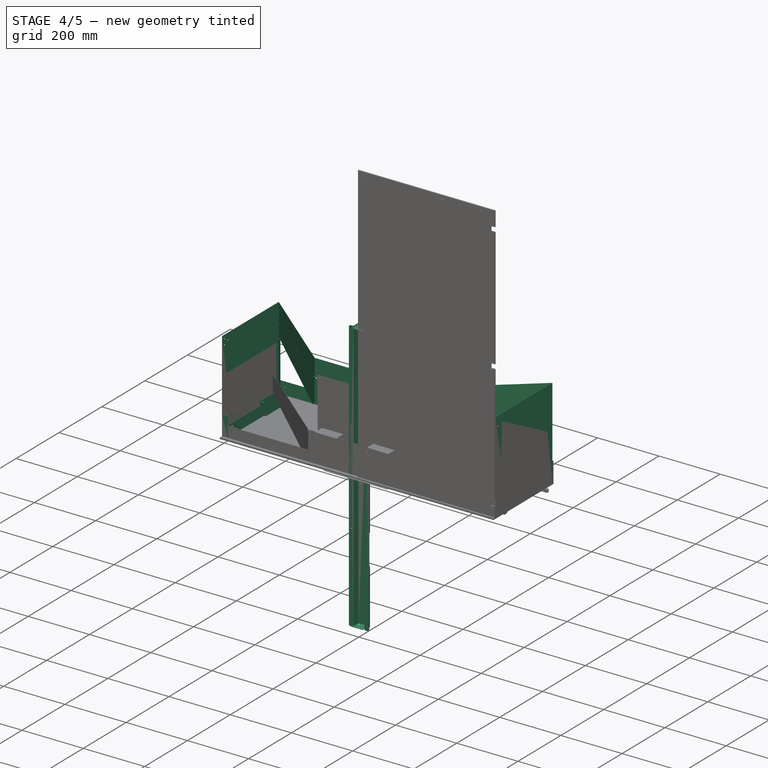
[diagram: stage 4 of 5 — iso view after this stage's code; geometry added in this stage tinted green]
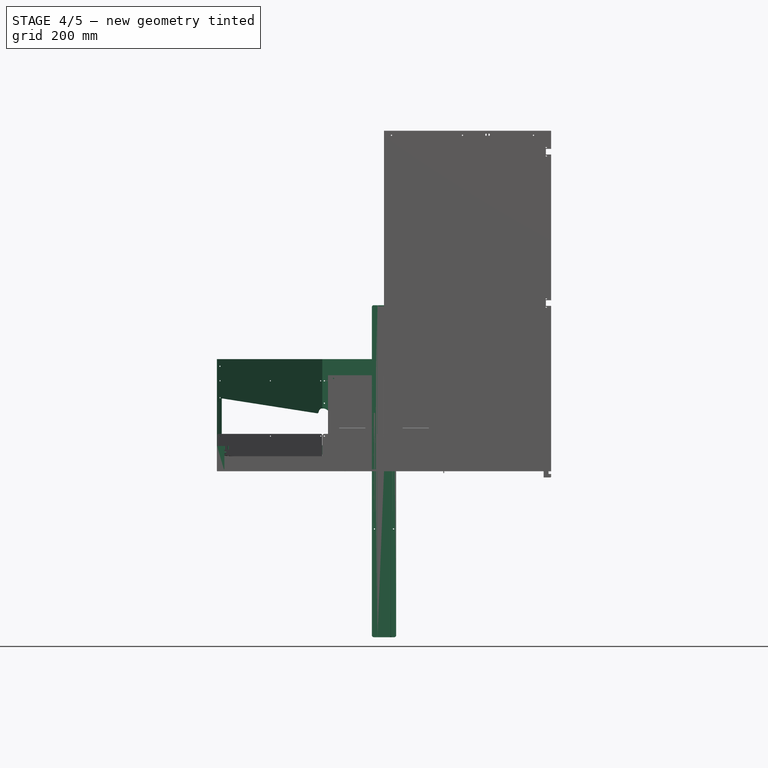
[diagram: stage 4 of 5 — front view after this stage's code; geometry added in this stage tinted green]
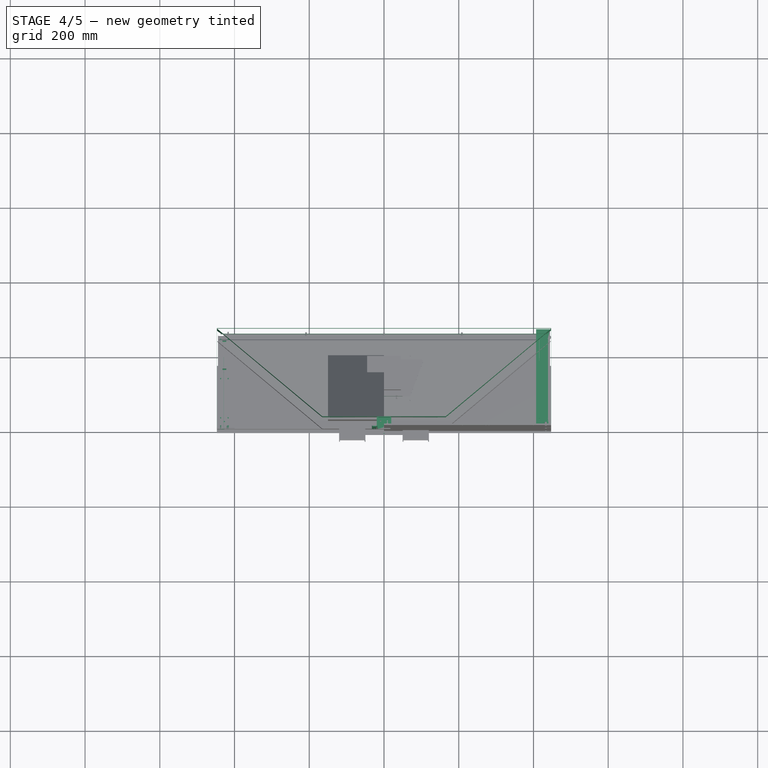
[diagram: stage 4 of 5 — top view after this stage's code; geometry added in this stage tinted green]
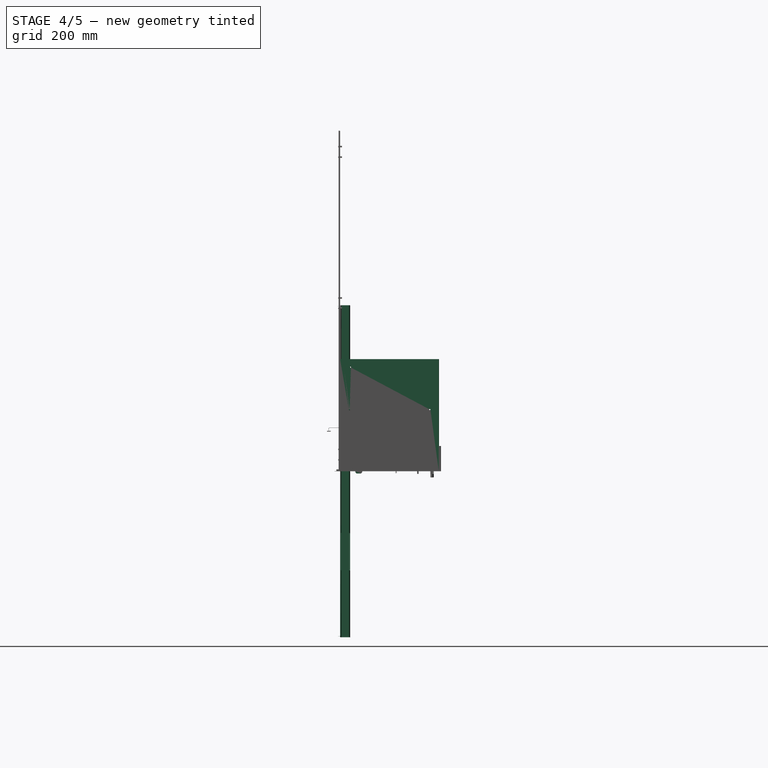
[diagram: stage 4 of 5 — right view after this stage's code; geometry added in this stage tinted green]
FEATURE [Sketcher::SketchObject] Sketch049
  AttachmentOffset = pos=(32.5,444.137,0) rot=(0,0,1;0rad)
  AttachmentSupport = -> [XZ_Plane007]
  FullyConstrained = true
  MapMode = 5
  Placement = pos=(32.5,9.86e-14,444.137) rot=(1,0,0;1.5708rad)
  expr: .AttachmentOffset.Base.x = <<bar_sketch>>.Constraints.total_width / 2
  expr: .AttachmentOffset.Base.y = <<bar_BaseBend>>.length / 2
  sketch-geometry (3):
    g0: ArcOfCircle CenterX=-5 CenterY=-5 CenterZ=0 NormalX=0 NormalY=0 NormalZ=1 AngleXU=0 Radius=5 StartAngle=-2.7e-15 EndAngle=1.5708
    g1: LineSegment StartX=0 StartY=-5 StartZ=0 EndX=0 EndY=0 EndZ=0
    g2: LineSegment StartX=0 StartY=0 StartZ=0 EndX=-5 EndY=0 EndZ=0
  constraints (7):
    c: PointOnObject(g0,g-2)
    c: PointOnObject(g0,g-1)
    c: Coincident(g1,g2)
    c: Tangent(g0,g1) = -1.5708
    c: Tangent(g2,g0) = -1.5708
    c: Coincident(g1,g-1)
    c: Radius(g0) = 5
FEATURE [PartDesign::Pocket] Pocket005
  BaseFeature = -> BaseBend008
  Direction = (0,1,-2e-16)
  Length = 5
  Length2 = 5
  Midplane = true
  Profile = -> Sketch049
  ReferenceAxis = -> Sketch049 [N_Axis]
  Refine = true
  Suppressed = false
  Type = 1
FEATURE [PartDesign::Mirrored] Mirrored001
  MirrorPlane = -> YZ_Plane007
  Suppressed = false
FEATURE [PartDesign::Mirrored] Mirrored002
  MirrorPlane = -> XY_Plane007
  Suppressed = false
FEATURE [PartDesign::MultiTransform] MultiTransform
  BaseFeature = -> Pocket005
  Originals = -> [Pocket005]
  Suppressed = false
  Transformations = -> [Mirrored001,Mirrored002]
FEATURE [Part::FeaturePython] Placment010  label="bar1_placement"  # WARN: FeaturePython — macro-defined, semantics opaque (R4)
  AttacherType = Attacher::AttachEngine3D
  ExposePlacement = true
  MarkerShape = 1
  MarkerSize = 20
  NumElements = 1
  Placement = pos=(0,27,278.5) rot=(0.707107,0,-0.707107;3.14159rad)
  Type = lattice2AttachablePlacement.AttachablePlacement
  isLattice = 1
  expr: .Placement.Base.y = <<face_bottom_placement>>.Placement.Base.y - 3 mm
FEATURE [Part::FeaturePython] LinearArray004  # WARN: FeaturePython — macro-defined, semantics opaque (R4)
  Alignment = 0
  CellStart = A1
  Count = 2
  Dir = (1,0,0)
  DirIsDriven = true
  DistributionLaw = 0
  DrivenProperty = 1
  EndInclusive = true
  ExposePlacement = false
  GeneratorMode = 0
  MarkerShape = 1
  MarkerSize = 0
  NumElements = 2
  OrientMode = 1
  Placement = pos=(-25.5,-3,-154.5) rot=(0.57735,0.57735,0.57735;4.18879rad)
  Point = (0,0,0)
  PointIsDriven = true
  Reverse = false
  SpanEnd = 309
  SpanStart = 0
  Step = 309
  Type = lattice2LinearArray.LinearArray
  VSGVersion = 1
  Values = 0.0 | 309.0
  ValuesSource = 2
  isLattice = 1
  expr: .Placement.Base.x = -(<<bar_sketch>>.Constraints.total_width / 2 - 7 mm)
  expr: .Placement.Base.z = -SpanEnd / 2
FEATURE [Part::FeaturePython] Mirror  label="Mirror of LinearArray004"  # WARN: FeaturePython — macro-defined, semantics opaque (R4)
  ExposePlacement = false
  FlipX = true
  FlipY = false
  FlipZ = false
  MarkerShape = 1
  MarkerSize = 0
  NumElements = 2
  Object = -> LinearArray004
  ObjectTraversal = 0
  Type = lattice2Mirror.LatticeMirror
  isLattice = 1
FEATURE [Part::FeaturePython] Join002  # WARN: FeaturePython — macro-defined, semantics opaque (R4)
  ExposePlacement = false
  Interleave = false
  Links = -> [LinearArray004,Mirror]
  MarkerShape = 1
  MarkerSize = 0
  NumElements = 4
  Type = lattice2JoinArrays.JoinArrays
  isLattice = 1
FEATURE [Part::FeaturePython] Populate021  label="Populate Join002 with hole_3.4mm"  # WARN: FeaturePython — macro-defined, semantics opaque (R4)
  Copying = 0
  ExposePlacement = false
  MarkerShape = 1
  MarkerSize = 0
  NumElements = 0
  Object = -> Cylinder
  OutputCompounding = 1
  PlacementsTo = -> Join002
  Referencing = 0
  Type = lattice2PopulateCopies.LatticePopulateCopies
  isLattice = 0
FEATURE [Sketcher::SketchObject] Sketch053
  FullyConstrained = true
  Placement = pos=(0,-2,0) rot=(1,0,0;1.5708rad)
  sketch-geometry (3):
    g0: Circle CenterX=9 CenterY=10 CenterZ=0 NormalX=0 NormalY=0 NormalZ=1 AngleXU=0 Radius=1.7
    g1: Circle CenterX=0 CenterY=30 CenterZ=0 NormalX=0 NormalY=0 NormalZ=1 AngleXU=0 Radius=1.7
    g2: Circle CenterX=-9 CenterY=10 CenterZ=0 NormalX=0 NormalY=0 NormalZ=1 AngleXU=0 Radius=1.7
  constraints (8):
    c: PointOnObject(g1,g-2)
    c: Symmetric(g0,g2,g-2)
    c: Equal(g0,g1)
    c: Equal(g0,g2)
    c: Diameter(g0) = 3.4
    c: DistanceX(g0) = 9
    c: DistanceY(g0) = 10
    c: DistanceY(g1) = 30
FEATURE [Part::Extrusion] Extrude018
  Base = -> Sketch053
  Dir = (0,-1,2e-16)
  DirMode = 2
  FaceMakerClass = Part::FaceMakerBullseye
  LengthFwd = 10
  LengthRev = 0
  Reversed = true
  Solid = true
  Symmetric = false
FEATURE [Part::FeaturePython] Placment011  label="bar_fix_placement"  # WARN: FeaturePython — macro-defined, semantics opaque (R4)
  AttacherType = Attacher::AttachEngine3D
  ExposePlacement = true
  MarkerShape = 1
  MarkerSize = 50
  NumElements = 1
  Placement = pos=(0,25,-444.137) rot=(0,0,1;3.14159rad)
  Type = lattice2AttachablePlacement.AttachablePlacement
  isLattice = 1
  expr: .Placement.Base.y = <<bar_sketch>>.Constraints.depth
  expr: .Placement.Base.z = -<<bar_BaseBend>>.length / 2
FEATURE [Part::FeaturePython] Mirror001  label="Mirror001 of Placment011"  # WARN: FeaturePython — macro-defined, semantics opaque (R4)
  ExposePlacement = false
  FlipX = true
  FlipY = false
  FlipZ = true
  MarkerShape = 1
  MarkerSize = 50
  NumElements = 1
  Object = -> Placment011
  ObjectTraversal = 0
  Type = lattice2Mirror.LatticeMirror
  isLattice = 1
FEATURE [Part::FeaturePython] Join003  # WARN: FeaturePython — macro-defined, semantics opaque (R4)
  ExposePlacement = false
  Interleave = false
  Links = -> [Placment011,Mirror001]
  MarkerShape = 1
  MarkerSize = 0
  NumElements = 2
  Type = lattice2JoinArrays.JoinArrays
  isLattice = 1
FEATURE [Part::FeaturePython] Populate022  label="Populate Join003 with Extrude018"  # WARN: FeaturePython — macro-defined, semantics opaque (R4)
  Copying = 0
  ExposePlacement = false
  MarkerShape = 1
  MarkerSize = 0
  NumElements = 0
  Object = -> Extrude018
  OutputCompounding = 1
  PlacementsTo = -> Join003
  Referencing = 0
  Type = lattice2PopulateCopies.LatticePopulateCopies
  isLattice = 0
FEATURE [Part::FeaturePython] Join005  # WARN: FeaturePython — macro-defined, semantics opaque (R4)
  ExposePlacement = false
  Interleave = false
  Links = -> [Placment013,Placment014]
  MarkerShape = 1
  MarkerSize = 0
  NumElements = 2
  Type = lattice2JoinArrays.JoinArrays
  isLattice = 1
FEATURE [Sketcher::SketchObject] Sketch055  label="pan_base_Sketch"
  FullyConstrained = true
  expr: .Constraints.depth = <<Dimensions>>.Constraints.depth - <<pan_placement>>.Placement.Base.y
  expr: .Constraints.width = <<Dimensions>>.Constraints.width - 12 mm * 2 - 12 mm
  sketch-geometry (5):
    g0: LineSegment StartX=-429.137 StartY=255 StartZ=0 EndX=-429.137 EndY=0 EndZ=0
    g1: LineSegment StartX=-429.137 StartY=0 StartZ=0 EndX=429.137 EndY=0 EndZ=0
    g2: LineSegment StartX=429.137 StartY=0 StartZ=0 EndX=429.137 EndY=255 EndZ=0
    g3: LineSegment StartX=429.137 StartY=255 StartZ=0 EndX=-429.137 EndY=255 EndZ=0
    g4: GeomPoint X=0 Y=127.5 Z=0
  constraints (13):
    c: Coincident(g0,g1)
    c: Coincident(g1,g2)
    c: Coincident(g2,g3)
    c: Coincident(g3,g0)
    c: Vertical(g0)
    c: Vertical(g2)
    c: Horizontal(g1)
    c: Horizontal(g3)
    c: Symmetric(g2,g0,g4)
    c: PointOnObject(g4,g-2)
    c: DistanceY(g-1,g1) = 0
    c: DistanceX(g1,g1) = 858.273  'width'
    c: DistanceY(g2) = 255  'depth'
FEATURE [PartDesign::SubShapeBinder] Binder014
  BindCopyOnChange = 0
  BindMode = 0
  ClaimChildren = true
  Context = -> Body009 [Binder014.]
  Fuse = false
  MakeFace = true
  OffsetFill = false
  OffsetIntersection = false
  OffsetJoinType = 0
  OffsetOpenResult = false
  PartialLoad = false
  Relative = true
  Support = -> [Sketch055]
  _Version = 2
FEATURE [PartDesign::FeaturePython] BaseBend010  # WARN: FeaturePython — macro-defined, semantics opaque (R4)
  BendSide = 0
  BendSketch = -> Binder014
  MidPlane = false
  Reverse = false
  Suppressed = false
  length = 100
  radius = 0.1
  thickness = 0.3
FEATURE [PartDesign::FeaturePython] Bend002  # WARN: FeaturePython — macro-defined, semantics opaque (R4)
  AutoMiter = false
  BaseFeature = -> BaseBend010
  BendType = 1
  LengthList = [40]
  LengthSpec = 1
  ReliefFactor = 0.7
  Suppressed = false
  UseReliefFactor = false
  angle = 90
  baseObject = -> BaseBend010 [Edge4,Edge7,Edge10,Edge12]
  bendAList = [90]
  extend1 = 0
  extend2 = 0
  gap1 = 0
  gap2 = 0
  invert = false
  kfactor = 0.5
  length = 40
  maxExtendDist = 5
  minGap = 0.2
  minReliefGap = 1
  miterangle1 = 0
  miterangle2 = 0
  offset = 0
  radius = 0.1
  reliefType = 0
  reliefd = 1
  reliefw = 0.8
  sketchflip = false
  sketchinvert = false
  unfold = false
  expr: radius = BaseBend010.radius
FEATURE [Sketcher::SketchObject] Sketch057  label="Sketch059"
  FullyConstrained = true
  expr: Constraints[8] = <<Dimensions>>.Constraints.width / 2
  sketch-geometry (4):
    g0: LineSegment StartX=427.137 StartY=0 StartZ=0 EndX=447.137 EndY=0 EndZ=0
    g1: LineSegment StartX=447.137 StartY=0 StartZ=0 EndX=447.137 EndY=270 EndZ=0
    g2: LineSegment StartX=447.137 StartY=270 StartZ=0 EndX=0 EndY=270 EndZ=0
    g3: GeomPoint X=-427.137 Y=0 Z=0
  constraints (12):
    c: Horizontal(g0)
    c: Coincident(g0,g1)
    c: Vertical(g1)
    c: Coincident(g1,g2)
    c: PointOnObject(g2,g-2)
    c: Horizontal(g2)
    c: PointOnObject(g0,g-1)
    c: DistanceX(g0,g0) = 20
    c: DistanceX(g1) = 447.137
    c: DistanceY(g1) = 270
    c: Symmetric(g3,g0,g-2)
    c: DistanceX(g3,g0) = 854.273  'back_length'
FEATURE [Part::Mirroring] Part__Mirroring015  label="Sketch059 (Mirror #16)"
  Base = (0,0,0)
  Normal = (1,0,0)
  Source = -> Sketch057
FEATURE [Part::FeaturePython] Connect005  # WARN: FeaturePython — macro-defined, semantics opaque (R4)
  Objects = -> [Sketch057,Part__Mirroring015]
  Tolerance = 0
FEATURE [PartDesign::SubShapeBinder] Binder016
  BindCopyOnChange = 0
  BindMode = 0
  ClaimChildren = true
  Context = -> Body010 [Binder016.]
  Fuse = false
  MakeFace = true
  OffsetFill = false
  OffsetIntersection = false
  OffsetJoinType = 0
  OffsetOpenResult = false
  PartialLoad = false
  Relative = false
  Support = -> [Connect005]
  _Version = 2
FEATURE [PartDesign::FeaturePython] BaseBend011  label="cap_outer_BaseBend"  # WARN: FeaturePython — macro-defined, semantics opaque (R4)
  BendSide = 1
  BendSketch = -> Binder016
  MidPlane = false
  Reverse = false
  Suppressed = false
  length = 67.6
  radius = 0.1
  thickness = 0.3
FEATURE [PartDesign::FeaturePython] Extend002  # WARN: FeaturePython — macro-defined, semantics opaque (R4)
  BaseFeature = -> BaseBend011
  Offset = 0.02
  Refine = true
  Suppressed = false
  UseSubtraction = false
  baseObject = -> BaseBend011 [Face1]
  gap1 = 0
  gap2 = 0
  length = 0
FEATURE [Sketcher::SketchObject] Sketch059  label="cap_inner_base_Sketch"
  ExternalGeometry = -> [Sketch057]
  FullyConstrained = true
  sketch-geometry (4):
    g0: LineSegment StartX=407.137 StartY=3 StartZ=0 EndX=444.137 EndY=3 EndZ=0
    g1: LineSegment StartX=444.137 StartY=3 StartZ=0 EndX=444.137 EndY=267 EndZ=0
    g2: LineSegment StartX=444.137 StartY=267 StartZ=0 EndX=407.137 EndY=267 EndZ=0
    g3: LineSegment StartX=407.137 StartY=267 StartZ=0 EndX=407.137 EndY=3 EndZ=0
  constraints (13):
    c: Coincident(g0,g1)
    c: Coincident(g1,g2)
    c: Coincident(g2,g3)
    c: Coincident(g3,g0)
    c: Horizontal(g0)
    c: Horizontal(g2)
    c: Vertical(g1)
    c: Vertical(g3)
    c: DistanceX(g1,g-3) = 3
    c: DistanceY(g1,g-3) = 3
    c: DistanceY(g0) = 3
    c: DistanceX(g0,g-3) = 40
    c: DistanceX(g0) = 444.137  'offset'
FEATURE [PartDesign::SubShapeBinder] Binder018
  BindCopyOnChange = 0
  BindMode = 0
  ClaimChildren = true
  Context = -> Body012 [Binder018.]
  Fuse = false
  MakeFace = true
  OffsetFill = false
  OffsetIntersection = false
  OffsetJoinType = 0
  OffsetOpenResult = false
  PartialLoad = false
  Placement = pos=(0,0,64.7) rot=(0,0,1;0rad)
  Relative = false
  Support = -> [Sketch059]
  _Version = 2
  expr: .Placement.Base.z = <<cap_outer_BaseBend>>.length + 0.1 mm - 3 mm
FEATURE [PartDesign::FeaturePython] BaseBend013  # WARN: FeaturePython — macro-defined, semantics opaque (R4)
  BendSide = 0
  BendSketch = -> Binder018
  MidPlane = false
  Reverse = false
  Suppressed = false
  length = 100
  radius = 0.1
  thickness = 0.3
FEATURE [PartDesign::FeaturePython] Bend004  # WARN: FeaturePython — macro-defined, semantics opaque (R4)
  AutoMiter = false
  BaseFeature = -> BaseBend013
  BendType = 1
  LengthList = [64.6]
  LengthSpec = 0
  ReliefFactor = 0.7
  Suppressed = false
  UseReliefFactor = false
  angle = 90
  baseObject = -> BaseBend013 [Edge3,Edge6]
  bendAList = [90]
  extend1 = 0
  extend2 = 0
  gap1 = 0
  gap2 = 3
  invert = false
  kfactor = 0.5
  length = 64.6
  maxExtendDist = 5
  minGap = 0.2
  minReliefGap = 1
  miterangle1 = 0
  miterangle2 = 0
  offset = 0
  radius = 0.1
  reliefType = 0
  reliefd = 1
  reliefw = 0.8
  sketchflip = false
  sketchinvert = false
  unfold = false
  expr: length = <<Binder018>>.Placement.Base.z - 0.1 mm
  expr: radius = BaseBend013.radius
FEATURE [Sketcher::SketchObject] Sketch060  label="Sketch062"
  ExternalGeometry = -> [Sketch057]
  FullyConstrained = true
  Placement = pos=(0,0,68) rot=(0,0,1;0rad)
  expr: .Placement.Base.z = <<cap_outer_BaseBend>>.length + 0.4 mm
  sketch-geometry (17):
    g0: Circle CenterX=437.137 CenterY=30 CenterZ=0 NormalX=0 NormalY=0 NormalZ=1 AngleXU=0 Radius=1.7
    g1: Circle CenterX=437.137 CenterY=135 CenterZ=0 NormalX=0 NormalY=0 NormalZ=1 AngleXU=0 Radius=1.7
    g2: Circle CenterX=437.137 CenterY=240 CenterZ=0 NormalX=0 NormalY=0 NormalZ=1 AngleXU=0 Radius=1.7
    g3: Circle CenterX=417.137 CenterY=240 CenterZ=0 NormalX=0 NormalY=0 NormalZ=1 AngleXU=0 Radius=1.7
    g4: Circle CenterX=417.137 CenterY=135 CenterZ=0 NormalX=0 NormalY=0 NormalZ=1 AngleXU=0 Radius=1.7
    g5: Circle CenterX=417.137 CenterY=30 CenterZ=0 NormalX=0 NormalY=0 NormalZ=1 AngleXU=0 Radius=1.7
    g6: Circle CenterX=427.137 CenterY=20 CenterZ=0 NormalX=0 NormalY=0 NormalZ=1 AngleXU=0 Radius=1.7
    g7: LineSegment StartX=417.137 StartY=30 StartZ=0 EndX=437.137 EndY=30 EndZ=0
    g8: LineSegment StartX=437.137 StartY=240 StartZ=0 EndX=417.137 EndY=240 EndZ=0
    g9: LineSegment StartX=417.137 StartY=240 StartZ=0 EndX=417.137 EndY=135 EndZ=0
    g10: LineSegment StartX=417.137 StartY=135 StartZ=0 EndX=417.137 EndY=30 EndZ=0
    g11: LineSegment StartX=437.137 StartY=30 StartZ=0 EndX=437.137 EndY=135 EndZ=0
    g12: LineSegment StartX=437.137 StartY=135 StartZ=0 EndX=437.137 EndY=240 EndZ=0
    g13: LineSegment StartX=427.137 StartY=0 StartZ=0 EndX=427.137 EndY=20 EndZ=0
    g14: LineSegment StartX=427.137 StartY=20 StartZ=0 EndX=447.137 EndY=0 EndZ=0
    g15: LineSegment StartX=447.137 StartY=270 StartZ=0 EndX=427.137 EndY=250 EndZ=0
    g16: LineSegment StartX=427.137 StartY=250 StartZ=0 EndX=427.137 EndY=20 EndZ=0
  constraints (34):
    c: Equal(g6, g0-g5) x6
    c: Diameter(g6) = 3.4
    c: Coincident(g7,g11)
    c: Coincident(g12,g8)
    c: Coincident(g8,g9)
    c: Coincident(g10,g7)
    c: Horizontal(g7)
    c: Horizontal(g8)
    c: Coincident(g7,g5)
    c: Coincident(g12,g2)
    c: Coincident(g3,g8)
    c: Coincident(g7,g0)
    c: Coincident(g9,g10)
    c: Vertical(g9)
    c: Coincident(g11,g12)
    c: Vertical(g11)
    c: Symmetric(g5,g3,g9)
    c: Symmetric(g0,g2,g11)
    c: Coincident(g4,g9)
    c: Coincident(g1,g11)
    c: Coincident(g-3,g13)
    c: Coincident(g13,g6)
    c: Coincident(g13,g14)
    c: Coincident(g14,g-4)
    c: Angle(g14) = -0.785398
    c: Symmetric(g0,g5,g13)
    c: DistanceX(g5,g0) = 20
    c: Coincident(g-4,g15)
    c: Coincident(g15,g16)
    c: Coincident(g16,g6)
    c: Vertical(g16)
    c: Equal(g15,g14)
    c: DistanceY(g13,g0) = 30
    c: DistanceY(g2,g15) = 30
FEATURE [Sketcher::SketchObject] Sketch061  label="Sketch063"
  ExternalGeometry = -> [Sketch057]
  FullyConstrained = true
  Placement = pos=(0,0,0) rot=(1,0,0;1.5708rad)
  sketch-geometry (9):
    g0: LineSegment StartX=417.137 StartY=10 StartZ=0 EndX=437.137 EndY=10 EndZ=0
    g1: LineSegment StartX=437.137 StartY=10 StartZ=0 EndX=437.137 EndY=40 EndZ=0
    g2: LineSegment StartX=437.137 StartY=40 StartZ=0 EndX=417.137 EndY=40 EndZ=0
    g3: LineSegment StartX=417.137 StartY=40 StartZ=0 EndX=417.137 EndY=10 EndZ=0
    g4: Circle CenterX=417.137 CenterY=10 CenterZ=0 NormalX=0 NormalY=0 NormalZ=1 AngleXU=0 Radius=1.7
    g5: Circle CenterX=437.137 CenterY=10 CenterZ=0 NormalX=0 NormalY=0 NormalZ=1 AngleXU=0 Radius=1.7
    g6: Circle CenterX=437.137 CenterY=40 CenterZ=0 NormalX=0 NormalY=0 NormalZ=1 AngleXU=0 Radius=1.7
    g7: Circle CenterX=417.137 CenterY=40 CenterZ=0 NormalX=0 NormalY=0 NormalZ=1 AngleXU=0 Radius=1.7
    g8: LineSegment StartX=427.137 StartY=0 StartZ=0 EndX=427.137 EndY=10 EndZ=0
  constraints (22):
    c: Coincident(g0,g1)
    c: Coincident(g1,g2)
    c: Coincident(g2,g3)
    c: Coincident(g3,g0)
    c: Horizontal(g0)
    c: Horizontal(g2)
    c: Vertical(g1)
    c: Vertical(g3)
    c: Coincident(g4,g0)
    c: Coincident(g5,g0)
    c: Coincident(g6,g1)
    c: Coincident(g7,g2)
    c: Equal(g6,g7)
    c: Equal(g6,g4)
    c: Equal(g6,g5)
    c: Diameter(g6) = 3.4
    c: Coincident(g8,g-3)
    c: Symmetric(g0,g0,g8)
    c: Vertical(g8)
    c: DistanceX(g0,g0) = 20
    c: DistanceY(g8) = 10
    c: DistanceY(g1) = 40
FEATURE [Part::Compound] Compound010
  Links = -> [Sketch060,Sketch061]
FEATURE [Part::FeaturePython] Downgrade  label="Edges of Compound010"  # WARN: FeaturePython — macro-defined, semantics opaque (R4)
  Base = -> Compound010
  Mode = 8
FEATURE [Part::FeaturePython] ArrayFromShape  label="Array from Edges of Compound010"  # WARN: FeaturePython — macro-defined, semantics opaque (R4)
  CompoundTraversal = 1
  ExposePlacement = false
  MarkerShape = 1
  MarkerSize = 0
  NumElements = 11
  OrientElementIndex = 0
  OrientMode = 2
  ShapeLink = -> Downgrade
  TranslateElementIndex = 0
  TranslateMode = 3
  Type = lattice2ArrayFromShape.LatticeArrayFromShape
  isLattice = 1
FEATURE [Part::FeaturePython] Placment017  # WARN: FeaturePython — macro-defined, semantics opaque (R4)
  AttacherType = Attacher::AttachEngine3D
  ExposePlacement = true
  MarkerShape = 1
  MarkerSize = 100
  NumElements = 1
  Placement = pos=(0,0,0) rot=(1,0,0;3.14159rad)
  Type = lattice2AttachablePlacement.AttachablePlacement
  isLattice = 1
FEATURE [Part::FeaturePython] Populate033  label="Populate Array from Edges of Compound010 with Placment017"  # WARN: FeaturePython — macro-defined, semantics opaque (R4)
  Copying = 0
  ExposePlacement = false
  MarkerShape = 1
  MarkerSize = 0
  NumElements = 11
  Object = -> Placment017
  OutputCompounding = 0
  PlacementsTo = -> ArrayFromShape
  Referencing = 0
  Type = lattice2PopulateCopies.LatticePopulateCopies
  isLattice = 1
FEATURE [Part::FeaturePython] Mirror002  label="Mirror002 of ShotArray"  # WARN: FeaturePython — macro-defined, semantics opaque (R4)
  ExposePlacement = false
  FlipX = true
  FlipY = false
  FlipZ = false
  MarkerShape = 1
  MarkerSize = 0
  NumElements = 11
  Object = -> Populate033
  ObjectTraversal = 0
  Type = lattice2Mirror.LatticeMirror
  isLattice = 1
FEATURE [Part::FeaturePython] Join006  # WARN: FeaturePython — macro-defined, semantics opaque (R4)
  ExposePlacement = false
  Interleave = false
  Links = -> [Mirror002,Populate033]
  MarkerShape = 1
  MarkerSize = 0
  NumElements = 22
  Type = lattice2JoinArrays.JoinArrays
  isLattice = 1
FEATURE [Part::FeaturePython] Populate031  label="Populate Join006 with hole_3.4mm"  # WARN: FeaturePython — macro-defined, semantics opaque (R4)
  Copying = 0
  ExposePlacement = false
  MarkerShape = 1
  MarkerSize = 0
  NumElements = 0
  Object = -> Cylinder
  OutputCompounding = 1
  PlacementsTo = -> Join006
  Referencing = 0
  Type = lattice2PopulateCopies.LatticePopulateCopies
  isLattice = 0
FEATURE [Part::FeaturePython] Populate034  label="Populate Populate Array from Edges of Compound010 with Placment017 with hole_3.4mm"  # WARN: FeaturePython — macro-defined, semantics opaque (R4)
  Copying = 0
  ExposePlacement = false
  MarkerShape = 1
  MarkerSize = 0
  NumElements = 0
  Object = -> Cylinder
  OutputCompounding = 1
  PlacementsTo = -> Populate033
  Referencing = 0
  Type = lattice2PopulateCopies.LatticePopulateCopies
  isLattice = 0
FEATURE [Part::FeaturePython] Populate032  label="Populate ShotArray with hole_3.4mm"  # WARN: FeaturePython — macro-defined, semantics opaque (R4)
  Copying = 0
  ExposePlacement = false
  MarkerShape = 1
  MarkerSize = 0
  NumElements = 0
  Object = -> Cylinder
  OutputCompounding = 1
  PlacementsTo = -> Populate034
  Referencing = 0
  Type = lattice2PopulateCopies.LatticePopulateCopies
  isLattice = 0
FEATURE [Part::MultiFuse] Fusion014
  Shapes = -> [Populate032]
FEATURE [PartDesign::CoordinateSystem] Local_CS023  label="pan_basin_LCS"
  AttacherType = Attacher::AttachEngine3D
  AttachmentOffset = pos=(0,120,3) rot=(0,0,1;0rad)
  AttachmentSupport = -> [XY_Plane010]
  MapMode = 5
  Placement = pos=(0,120,3) rot=(0,0,1;0rad)
FEATURE [Sketcher::SketchObject] Sketch069  label="Sketch070"
  FullyConstrained = true
  Placement = pos=(0,120,0) rot=(0,0,1;0rad)
  expr: .Placement.Base.y = <<pan_basin_LCS>>.AttachmentOffset.Base.y
  sketch-geometry (5):
    g0: LineSegment StartX=-200 StartY=-87.5 StartZ=0 EndX=200 EndY=-87.5 EndZ=0
    g1: LineSegment StartX=200 StartY=-87.5 StartZ=0 EndX=200 EndY=87.5 EndZ=0
    g2: LineSegment StartX=200 StartY=87.5 StartZ=0 EndX=-200 EndY=87.5 EndZ=0
    g3: LineSegment StartX=-200 StartY=87.5 StartZ=0 EndX=-200 EndY=-87.5 EndZ=0
    g4: GeomPoint X=0 Y=0 Z=0
  constraints (12):
    c: Coincident(g0,g1)
    c: Coincident(g1,g2)
    c: Coincident(g2,g3)
    c: Coincident(g3,g0)
    c: Horizontal(g0)
    c: Horizontal(g2)
    c: Vertical(g1)
    c: Vertical(g3)
    c: Symmetric(g2,g0,g4)
    c: DistanceX(g0,g1) = 400
    c: DistanceY(g0,g1) = 175
    c: Coincident(g4,g-1)
FEATURE [Sketcher::SketchObject] Sketch068  label="Sketch069"
  ExternalGeometry = -> [Sketch055,Sketch069]
  FullyConstrained = true
  sketch-geometry (5):
    g0: LineSegment StartX=426.137 StartY=106.423 StartZ=0 EndX=426.137 EndY=86.4234 EndZ=0
    g1: LineSegment StartX=426.137 StartY=86.4234 StartZ=0 EndX=132.836 EndY=3 EndZ=0
    g2: LineSegment StartX=132.836 StartY=3 StartZ=0 EndX=0 EndY=3 EndZ=0
    g3: LineSegment StartX=0 StartY=252 StartZ=0 EndX=132.836 EndY=252 EndZ=0
    g4: LineSegment StartX=132.836 StartY=252 StartZ=0 EndX=426.137 EndY=106.423 EndZ=0
  constraints (16):
    c: Vertical(g0)
    c: Coincident(g0,g1)
    c: Coincident(g1,g2)
    c: PointOnObject(g2,g-2)
    c: Horizontal(g2)
    c: DistanceY(g-6,g2) = 3
    c: DistanceY(g0,g0) = 20
    c: PointOnObject(g3,g-2)
    c: Horizontal(g3)
    c: Coincident(g3,g4)
    c: Coincident(g4,g0)
    c: DistanceY(g3,g-6) = 3
    c: DistanceX(g0,g-6) = 3
    c: Vertical(g1,g3)
    c: Distance(g-5,g4) = 10
    c: Distance(g-4,g1) = 10
FEATURE [PartDesign::SubShapeBinder] Binder022
  BindCopyOnChange = 0
  BindMode = 0
  ClaimChildren = true
  Context = -> Body015 [Binder022.]
  Fuse = false
  MakeFace = true
  OffsetFill = false
  OffsetIntersection = false
  OffsetJoinType = 0
  OffsetOpenResult = false
  PartialLoad = false
  Relative = false
  Support = -> [Connect006]
  _Version = 2
FEATURE [PartDesign::SubShapeBinder] Binder023
  BindCopyOnChange = 0
  BindMode = 0
  ClaimChildren = true
  Context = -> Body015 [Binder023.]
  Fuse = false
  MakeFace = true
  OffsetFill = false
  OffsetIntersection = false
  OffsetJoinType = 0
  OffsetOpenResult = false
  PartialLoad = false
  Relative = true
  Support = -> [Sketch069]
  _Version = 2
FEATURE [PartDesign::Pad] Pad014
  Direction = (0,0,1)
  Length = 3
  Length2 = 10
  Profile = -> Binder022
  Suppressed = false
  Type = 0
FEATURE [PartDesign::Pocket] Pocket008
  BaseFeature = -> Pad014
  Direction = (0,0,-1)
  Length = 5
  Length2 = 5
  Profile = -> Binder023
  Reversed = true
  Suppressed = false
  Type = 0
FEATURE [PartDesign::CoordinateSystem] Local_CS025
  AttacherType = Attacher::AttachEngine3D
  AttachmentOffset = pos=(447.137,0,0) rot=(0,0,1;0rad)
  AttachmentSupport = -> [XY_Plane017]
  MapMode = 5
  Placement = pos=(447.137,0,0) rot=(0,0,1;0rad)
  expr: .AttachmentOffset.Base.x = <<door_plexiglass_Sketch>>.Constraints.length
FEATURE [Sketcher::SketchObject] Sketch071
  AttachmentOffset = pos=(0,0,-255) rot=(0,0,1;0rad)
  AttachmentSupport = -> [XZ_Plane010]
  FullyConstrained = true
  MapMode = 5
  Placement = pos=(0,255,-5.66e-14) rot=(1,0,0;1.5708rad)
  expr: .AttachmentOffset.Base.z = -<<pan_base_Sketch>>.Constraints.depth
  expr: Constraints[6] = <<pan_base_Sketch>>.Constraints.width / 2 - 0.4 mm
  sketch-geometry (8):
    g0: LineSegment StartX=-431.737 StartY=70 StartZ=0 EndX=431.737 EndY=70 EndZ=0
    g1: LineSegment StartX=428.737 StartY=0.4 StartZ=0 EndX=-428.737 EndY=0.4 EndZ=0
    g2: LineSegment StartX=428.737 StartY=43.2 StartZ=0 EndX=428.737 EndY=0.4 EndZ=0
    g3: LineSegment StartX=431.737 StartY=70 StartZ=0 EndX=431.737 EndY=43.2 EndZ=0
    g4: LineSegment StartX=431.737 StartY=43.2 StartZ=0 EndX=428.737 EndY=43.2 EndZ=0
    g5: LineSegment StartX=-428.737 StartY=0.4 StartZ=0 EndX=-428.737 EndY=43.2 EndZ=0
    g6: LineSegment StartX=-428.737 StartY=43.2 StartZ=0 EndX=-431.737 EndY=43.2 EndZ=0
    g7: LineSegment StartX=-431.737 StartY=43.2 StartZ=0 EndX=-431.737 EndY=70 EndZ=0
  constraints (22):
    c: Coincident(g7,g0)
    c: Coincident(g0,g3)
    c: Coincident(g2,g1)
    c: Coincident(g1,g5)
    c: Horizontal(g0)
    c: DistanceY(g0) = 70  'height'
    c: DistanceX(g2) = 428.737
    c: DistanceY(g2) = 0.4
    c: Coincident(g4,g2)
    c: Vertical(g2)
    c: Coincident(g3,g4)
    c: Vertical(g3)
    c: Coincident(g5,g6)
    c: Vertical(g5)
    c: Coincident(g6,g7)
    c: Vertical(g7)
    c: Horizontal(g6)
    c: Horizontal(g4)
    c: Symmetric(g1,g1,g-2)
    c: Symmetric(g3,g6,g-2)
    c: DistanceX(g4,g4) = 3
    c: DistanceY(g2) = 43.2
FEATURE [PartDesign::Pad] Pad015
  BaseFeature = -> Bend002
  Direction = (0,-1,2e-16)
  Length = 0.3
  Length2 = 10
  Profile = -> Sketch071
  ReferenceAxis = -> Sketch071 [N_Axis]
  Refine = true
  Suppressed = false
  Type = 0
FEATURE [PartDesign::FeaturePython] Bend005  # WARN: FeaturePython — macro-defined, semantics opaque (R4)
  AutoMiter = true
  BaseFeature = -> Pad015
  BendType = 0
  LengthList = [3]
  LengthSpec = 1
  ReliefFactor = 0.7
  Suppressed = false
  UseReliefFactor = false
  angle = 90
  baseObject = -> Pad015 [Edge7,Edge10]
  bendAList = [90]
  extend1 = 0
  extend2 = 0
  gap1 = 0
  gap2 = 0
  invert = false
  kfactor = 0.5
  length = 3
  maxExtendDist = 5
  minGap = 0.2
  minReliefGap = 1
  miterangle1 = 0
  miterangle2 = 0
  offset = 0
  radius = 0.1
  reliefType = 0
  reliefd = 1
  reliefw = 0.8
  sketchflip = false
  sketchinvert = false
  unfold = false
  expr: radius = BaseBend010.radius
FEATURE [Sketcher::SketchObject] Sketch072
  AttachmentOffset = pos=(0,0,429.137) rot=(0,0,1;0rad)
  AttachmentSupport = -> [YZ_Plane010]
  ExternalGeometry = -> [Binder014]
  FullyConstrained = true
  MapMode = 5
  Placement = pos=(429.137,0,0) rot=(0.57735,0.57735,0.57735;2.0944rad)
  expr: .AttachmentOffset.Base.z = <<pan_base_Sketch>>.Constraints.width / 2
  sketch-geometry (8):
    g0: LineSegment StartX=0 StartY=0 StartZ=0 EndX=3 EndY=0 EndZ=0
    g1: LineSegment StartX=3 StartY=0 StartZ=0 EndX=3 EndY=40 EndZ=0
    g2: LineSegment StartX=3 StartY=40 StartZ=0 EndX=0 EndY=40 EndZ=0
    g3: LineSegment StartX=0 StartY=40 StartZ=0 EndX=0 EndY=0 EndZ=0
    g4: LineSegment StartX=255 StartY=0 StartZ=0 EndX=255 EndY=40 EndZ=0
    g5: LineSegment StartX=255 StartY=40 StartZ=0 EndX=251.7 EndY=40 EndZ=0
    g6: LineSegment StartX=251.7 StartY=40 StartZ=0 EndX=251.7 EndY=0 EndZ=0
    g7: LineSegment StartX=251.7 StartY=0 StartZ=0 EndX=255 EndY=0 EndZ=0
  constraints (22):
    c: Coincident(g0,g1)
    c: Coincident(g1,g2)
    c: Coincident(g2,g3)
    c: Coincident(g3,g0)
    c: Horizontal(g0)
    c: Horizontal(g2)
    c: Vertical(g1)
    c: Vertical(g3)
    c: Coincident(g0,g-3)
    c: Coincident(g4,g5)
    c: Coincident(g5,g6)
    c: Coincident(g6,g7)
    c: Coincident(g7,g4)
    c: Vertical(g4)
    c: Vertical(g6)
    c: Horizontal(g5)
    c: Horizontal(g7)
    c: Coincident(g4,g-3)
    c: DistanceX(g7,g7) = 3.3
    c: DistanceY(g4) = 40
    c: Equal(g6,g1)
    c: DistanceX(g0,g0) = 3
FEATURE [PartDesign::Pocket] Pocket009
  BaseFeature = -> Bend005
  Direction = (-1,0,0)
  Length = 0.4
  Length2 = 5
  Profile = -> Sketch072
  ReferenceAxis = -> Sketch072 [N_Axis]
  Suppressed = false
  Type = 0
FEATURE [PartDesign::Mirrored] Mirrored008
  BaseFeature = -> Pocket009
  MirrorPlane = -> YZ_Plane010
  Originals = -> [Pocket009]
  Suppressed = false
FEATURE [Sketcher::SketchObject] Sketch078
  AttachmentSupport = -> [Sketch072]
  ExternalGeometry = -> [Binder014]
  FullyConstrained = true
  MapMode = 5
  Placement = pos=(429.137,0,0) rot=(0.57735,0.57735,0.57735;2.0944rad)
  sketch-geometry (4):
    g0: LineSegment StartX=251.7 StartY=0.4 StartZ=0 EndX=251.7 EndY=55 EndZ=0
    g1: LineSegment StartX=151.7 StartY=0.4 StartZ=0 EndX=251.7 EndY=0.4 EndZ=0
    g2: LineSegment StartX=251.7 StartY=55 StartZ=0 EndX=151.7 EndY=55 EndZ=0
    g3: LineSegment StartX=151.7 StartY=55 StartZ=0 EndX=151.7 EndY=0.4 EndZ=0
  constraints (12):
    c: Vertical(g0)
    c: Coincident(g0,g2)
    c: Coincident(g3,g1)
    c: Coincident(g1,g0)
    c: Horizontal(g1)
    c: DistanceX(g-3,g0) = -3.3
    c: DistanceY(g-3,g0) = 0.4
    c: DistanceY(g0) = 55
    c: Coincident(g2,g3)
    c: Horizontal(g2)
    c: Vertical(g3)
    c: DistanceX(g1,g1) = 100
FEATURE [Sketcher::SketchObject] Sketch079
  AttachmentOffset = pos=(0,0,3) rot=(0,0,1;0rad)
  AttachmentSupport = -> [Sketch072]
  ExternalGeometry = -> [Binder014]
  FullyConstrained = true
  MapMode = 5
  Placement = pos=(432.137,0,0) rot=(0.57735,0.57735,0.57735;2.0944rad)
  expr: Constraints[5] = <<Sketch071>>.Constraints.height
  sketch-geometry (4):
    g0: LineSegment StartX=252 StartY=70 StartZ=0 EndX=235 EndY=70 EndZ=0
    g1: LineSegment StartX=235 StartY=43.2 StartZ=0 EndX=252 EndY=43.2 EndZ=0
    g2: LineSegment StartX=252 StartY=43.2 StartZ=0 EndX=252 EndY=70 EndZ=0
    g3: ArcOfCircle CenterX=235 CenterY=56.6 CenterZ=0 NormalX=0 NormalY=0 NormalZ=1 AngleXU=0 Radius=13.4 StartAngle=1.5708 EndAngle=4.71239
  constraints (11):
    c: Horizontal(g1)
    c: Coincident(g1,g2)
    c: Vertical(g2)
    c: Coincident(g0,g2)
    c: DistanceX(g1,g-3) = 3
    c: DistanceY(g0) = 70
    c: DistanceY(g1) = 43.2
    c: Tangent(g0,g3) = -1.5708
    c: Tangent(g1,g3) = -1.5708
    c: Horizontal(g0)
    c: DistanceX(g3,g-3) = 20
FEATURE [PartDesign::Pad] Pad019
  BaseFeature = -> Mirrored008
  Direction = (1,0,0)
  Length = 0.3
  Length2 = 10
  Profile = -> Sketch079
  ReferenceAxis = -> Sketch079 [N_Axis]
  Reversed = true
  Suppressed = false
  Type = 0
FEATURE [Part::Mirroring] Part__Mirroring018  label="Sketch079 (Mirror #19)"
  Base = (0,0,0)
  Normal = (1,0,0)
  Source = -> Sketch079
FEATURE [PartDesign::SubShapeBinder] Binder026
  BindCopyOnChange = 0
  BindMode = 0
  ClaimChildren = true
  Context = -> <external composit_stand12_model.FCStd>#Assembly [pan.Binder026.]
  Fuse = false
  MakeFace = true
  OffsetFill = false
  OffsetIntersection = false
  OffsetJoinType = 0
  OffsetOpenResult = false
  PartialLoad = false
  Relative = false
  Support = -> [Part__Mirroring018]
  _Version = 2
FEATURE [PartDesign::Pad] Pad020
  BaseFeature = -> Pad019
  Direction = (1,0,0)
  Length = 0.3
  Length2 = 10
  Profile = -> Binder026 [Face1]
  Suppressed = false
  Type = 0
FEATURE [PartDesign::Pad] Pad021
  BaseFeature = -> Pad020
  Direction = (1,0,0)
  Length = 0.3
  Length2 = 10
  Profile = -> Sketch078
  ReferenceAxis = -> Sketch078 [N_Axis]
  Reversed = true
  Suppressed = false
  Type = 0
FEATURE [Sketcher::SketchObject] Sketch080
  AttachmentOffset = pos=(0,0,4) rot=(0,0,1;0rad)
  AttachmentSupport = -> [XY_Plane010]
  ExternalGeometry = -> [Binder014]
  FullyConstrained = true
  MapMode = 5
  Placement = pos=(0,0,4) rot=(0,0,1;0rad)
  sketch-geometry (6):
    g0: ArcOfCircle CenterX=428.737 CenterY=3 CenterZ=0 NormalX=0 NormalY=0 NormalZ=1 AngleXU=0 Radius=0.4 StartAngle=4.71239 EndAngle=6.28319
    g1: ArcOfCircle CenterX=428.737 CenterY=3 CenterZ=0 NormalX=0 NormalY=0 NormalZ=1 AngleXU=0 Radius=0.1 StartAngle=4.71239 EndAngle=6.28319
    g2: LineSegment StartX=428.837 StartY=3 StartZ=0 EndX=429.137 EndY=3 EndZ=0
    g3: LineSegment StartX=428.737 StartY=2.9 StartZ=0 EndX=399.137 EndY=2.9 EndZ=0
    g4: LineSegment StartX=399.137 StartY=2.9 StartZ=0 EndX=399.137 EndY=2.6 EndZ=0
    g5: LineSegment StartX=399.137 StartY=2.6 StartZ=0 EndX=428.737 EndY=2.6 EndZ=0
  constraints (17):
    c: PointOnObject(g0,g-3)
    c: DistanceY(g-3,g0) = 3
    c: Coincident(g1,g0)
    c: Coincident(g2,g1)
    c: Coincident(g2,g0)
    c: Horizontal(g2)
    c: Horizontal(g0,g0)
    c: Tangent(g1,g3) = 1.5708
    c: Coincident(g3,g4)
    c: Vertical(g4)
    c: Coincident(g4,g5)
    c: Horizontal(g5)
    c: Horizontal(g3)
    c: Tangent(g5,g0) = -1.5708
    c: DistanceX(g4,g-3) = 30
    c: Radius(g1) = 0.1
    c: Radius(g0) = 0.4
FEATURE [PartDesign::Pad] Pad022
  BaseFeature = -> Pad021
  Direction = (0,0,1)
  Length = 36
  Length2 = 10
  Profile = -> Sketch080
  ReferenceAxis = -> Sketch080 [N_Axis]
  Suppressed = false
  Type = 0
  expr: Length = <<Bend002>>.length - .Profile[0].Placement.Base.z * 1 mm
FEATURE [Sketcher::SketchObject] Sketch081
  FullyConstrained = true
  Placement = pos=(432.137,0,0) rot=(0.57735,0.57735,0.57735;2.0944rad)
  expr: .Placement.Base.x = <<pan_base_Sketch>>.Constraints.width / 2 + 3 mm
  sketch-geometry (2):
    g0: Circle CenterX=160 CenterY=50 CenterZ=0 NormalX=0 NormalY=0 NormalZ=1 AngleXU=0 Radius=1.7
    g1: Circle CenterX=235 CenterY=50 CenterZ=0 NormalX=0 NormalY=0 NormalZ=1 AngleXU=0 Radius=1.7
  constraints (6):
    c: Horizontal(g0,g1)
    c: Equal(g0,g1)
    c: Diameter(g0) = 3.4
    c: DistanceX(g0) = 160
    c: DistanceY(g0) = 50
    c: DistanceX(g0,g1) = 75
FEATURE [Part::FeaturePython] Downgrade001  label="Edges of Sketch081"  # WARN: FeaturePython — macro-defined, semantics opaque (R4)
  Base = -> Sketch081
  Mode = 8
FEATURE [Part::FeaturePython] ArrayFromShape001  label="Array from Edges of Sketch081"  # WARN: FeaturePython — macro-defined, semantics opaque (R4)
  CompoundTraversal = 1
  ExposePlacement = false
  MarkerShape = 1
  MarkerSize = 20
  NumElements = 2
  OrientElementIndex = 0
  OrientMode = 4
  ShapeLink = -> Downgrade001
  TranslateElementIndex = 0
  TranslateMode = 3
  Type = lattice2ArrayFromShape.LatticeArrayFromShape
  isLattice = 1
FEATURE [Part::FeaturePython] Placment027  # WARN: FeaturePython — macro-defined, semantics opaque (R4)
  AttacherType = Attacher::AttachEngine3D
  ExposePlacement = true
  MarkerShape = 1
  MarkerSize = 100
  NumElements = 1
  Placement = pos=(0,0,0) rot=(1,0,0;3.14159rad)
  Type = lattice2AttachablePlacement.AttachablePlacement
  isLattice = 1
FEATURE [Part::FeaturePython] Populate047  label="Populate Array from Edges of Sketch081 with Placment027"  # WARN: FeaturePython — macro-defined, semantics opaque (R4)
  Copying = 0
  ExposePlacement = false
  MarkerShape = 1
  MarkerSize = 0
  NumElements = 2
  Object = -> Placment027
  OutputCompounding = 0
  PlacementsTo = -> ArrayFromShape001
  Referencing = 0
  Type = lattice2PopulateCopies.LatticePopulateCopies
  isLattice = 1
FEATURE [Part::FeaturePython] Placment028  # WARN: FeaturePython — macro-defined, semantics opaque (R4)
  AttacherType = Attacher::AttachEngine3D
  ExposePlacement = true
  MarkerShape = 1
  MarkerSize = 50
  NumElements = 1
  Placement = pos=(419.137,0,15) rot=(0.57735,0.57735,0.57735;4.18879rad)
  Type = lattice2AttachablePlacement.AttachablePlacement
  isLattice = 1
  expr: .Placement.Base.x = <<pan_base_Sketch>>.Constraints.width / 2 - 10 mm
FEATURE [Part::FeaturePython] Join009  # WARN: FeaturePython — macro-defined, semantics opaque (R4)
  ExposePlacement = false
  Interleave = false
  Links = -> [Populate047,Placment028]
  MarkerShape = 1
  MarkerSize = 0
  NumElements = 3
  Type = lattice2JoinArrays.JoinArrays
  isLattice = 1
FEATURE [Part::FeaturePython] Mirror004  label="Mirror004 of Join009"  # WARN: FeaturePython — macro-defined, semantics opaque (R4)
  ExposePlacement = false
  FlipX = true
  FlipY = false
  FlipZ = false
  MarkerShape = 1
  MarkerSize = 0
  NumElements = 3
  Object = -> Join009
  ObjectTraversal = 0
  Type = lattice2Mirror.LatticeMirror
  isLattice = 1
FEATURE [Part::FeaturePython] Join010  # WARN: FeaturePython — macro-defined, semantics opaque (R4)
  ExposePlacement = false
  Interleave = false
  Links = -> [Mirror004,Join009]
  MarkerShape = 1
  MarkerSize = 0
  NumElements = 6
  Type = lattice2JoinArrays.JoinArrays
  isLattice = 1
FEATURE [Part::FeaturePython] Populate048  label="Populate Mirror004 of Join009 with hole_3.4mm"  # WARN: FeaturePython — macro-defined, semantics opaque (R4)
  Copying = 0
  ExposePlacement = false
  MarkerShape = 1
  MarkerSize = 0
  NumElements = 0
  Object = -> Cylinder
  OutputCompounding = 1
  PlacementsTo = -> Join010
  Referencing = 0
  Type = lattice2PopulateCopies.LatticePopulateCopies
  isLattice = 0
FEATURE [Part::Mirroring] Part__Mirroring019  label="Sketch078 (Mirror #20)"
  Base = (0,0,0)
  Normal = (1,0,0)
  Source = -> Sketch078
FEATURE [PartDesign::SubShapeBinder] Binder027
  BindCopyOnChange = 0
  BindMode = 0
  ClaimChildren = true
  Context = -> <external composit_stand12_model.FCStd>#Assembly [pan.Binder027.]
  Fuse = false
  MakeFace = true
  OffsetFill = false
  OffsetIntersection = false
  OffsetJoinType = 0
  OffsetOpenResult = false
  PartialLoad = false
  Relative = false
  Support = -> [Part__Mirroring019]
  _Version = 2
FEATURE [PartDesign::Pad] Pad023
  BaseFeature = -> Pad022
  Direction = (1,0,0)
  Length = 0.3
  Length2 = 10
  Profile = -> Binder027
  Suppressed = false
  Type = 0
FEATURE [Part::Mirroring] Part__Mirroring020  label="Sketch080 (Mirror #21)"
  Base = (0,0,0)
  Normal = (1,0,0)
  Source = -> Sketch080
FEATURE [PartDesign::SubShapeBinder] Binder028
  BindCopyOnChange = 0
  BindMode = 0
  ClaimChildren = true
  Context = -> <external composit_stand12_model.FCStd>#Assembly [pan.Binder028.]
  Fuse = false
  MakeFace = true
  OffsetFill = false
  OffsetIntersection = false
  OffsetJoinType = 0
  OffsetOpenResult = false
  PartialLoad = false
  Relative = false
  Support = -> [Part__Mirroring020]
  _Version = 2
FEATURE [PartDesign::Pad] Pad024
  BaseFeature = -> Pad023
  Direction = (0,0,1)
  Length = 36
  Length2 = 10
  Profile = -> Binder028
  Refine = true
  Suppressed = false
  Type = 0
  expr: Length = <<Pad022>>.Length
FEATURE [Sketcher::SketchObject] Sketch083
  AttachmentSupport = -> [Sketch071]
  ExternalGeometry = -> [Sketch071]
  FullyConstrained = true
  MapMode = 2
  Placement = pos=(0,255,-5.66e-14) rot=(1,0,0;1.5708rad)
  sketch-geometry (16):
    g0: LineSegment StartX=428.737 StartY=0.4 StartZ=0 EndX=435.737 EndY=0.4 EndZ=0
    g1: LineSegment StartX=437.737 StartY=2.4 StartZ=0 EndX=437.737 EndY=38 EndZ=0
    g2: LineSegment StartX=435.737 StartY=40 StartZ=0 EndX=428.737 EndY=40 EndZ=0
    g3: LineSegment StartX=428.737 StartY=0.4 StartZ=0 EndX=428.737 EndY=40 EndZ=0
    g4: ArcOfCircle CenterX=435.737 CenterY=38 CenterZ=0 NormalX=0 NormalY=0 NormalZ=1 AngleXU=0 Radius=2 StartAngle=4e-16 EndAngle=1.5708
    g5: GeomPoint X=437.737 Y=40 Z=0
    g6: ArcOfCircle CenterX=435.737 CenterY=2.4 CenterZ=0 NormalX=0 NormalY=0 NormalZ=1 AngleXU=0 Radius=2 StartAngle=4.71239 EndAngle=6.28319
    g7: GeomPoint X=437.737 Y=0.4 Z=0
    g8: LineSegment StartX=-428.737 StartY=0.4 StartZ=0 EndX=-435.737 EndY=0.4 EndZ=0
    g9: LineSegment StartX=-437.737 StartY=2.4 StartZ=0 EndX=-437.737 EndY=38 EndZ=0
    g10: LineSegment StartX=-435.737 StartY=40 StartZ=0 EndX=-428.737 EndY=40 EndZ=0
    g11: LineSegment StartX=-428.737 StartY=0.4 StartZ=0 EndX=-428.737 EndY=40 EndZ=0
    g12: ArcOfCircle CenterX=-435.737 CenterY=38 CenterZ=0 NormalX=0 NormalY=0 NormalZ=1 AngleXU=0 Radius=2 StartAngle=1.5708 EndAngle=3.14159
    g13: GeomPoint X=-437.737 Y=40 Z=0
    g14: ArcOfCircle CenterX=-435.737 CenterY=2.4 CenterZ=0 NormalX=0 NormalY=0 NormalZ=1 AngleXU=0 Radius=2 StartAngle=3.14159 EndAngle=4.71239
    g15: GeomPoint X=-437.737 Y=0.4 Z=0
  constraints (37):
    c: Horizontal(g0)
    c: Vertical(g1)
    c: Horizontal(g2)
    c: Coincident(g0,g-3)
    c: DistanceY(g2,g-3) = 3.2
    c: Coincident(g3,g0)
    c: Coincident(g3,g2)
    c: Vertical(g3)
    c: DistanceX(g2,g5) = 9
    c: PointOnObject(g5,g1)
    c: PointOnObject(g5,g2)
    c: Tangent(g1,g4) = -1.5708
    c: Tangent(g2,g4) = -1.5708
    c: PointOnObject(g7,g0)
    c: PointOnObject(g7,g1)
    c: Tangent(g0,g6) = -1.5708
    c: Tangent(g1,g6) = -1.5708
    c: Equal(g6,g4)
    c: Radius(g6) = 2
    c: Horizontal(g8)
    c: Vertical(g9)
    c: Horizontal(g10)
    c: Coincident(g11,g8)
    c: Coincident(g11,g10)
    c: Vertical(g11)
    c: PointOnObject(g13,g9)
    c: PointOnObject(g13,g10)
    c: Tangent(g9,g12) = 1.5708
    c: Tangent(g10,g12) = 1.5708
    c: PointOnObject(g15,g8)
    c: PointOnObject(g15,g9)
    c: Tangent(g8,g14) = 1.5708
    c: Tangent(g9,g14) = 1.5708
    c: Equal(g14,g12)
    c: Radius(g14) = 2
    c: Symmetric(g15,g7,g-2)
    c: Symmetric(g2,g10,g-2)
FEATURE [PartDesign::Pad] Pad025
  BaseFeature = -> Pad024
  Direction = (0,-1,2e-16)
  Length = 0.3
  Length2 = 10
  Profile = -> Sketch083
  ReferenceAxis = -> Sketch083 [N_Axis]
  Refine = true
  Suppressed = false
  Type = 0
FEATURE [Sketcher::SketchObject] Sketch084
  AttachmentOffset = pos=(0,0,444.137) rot=(0,0,1;0rad)
  AttachmentSupport = -> [YZ_Plane013]
  FullyConstrained = true
  MapMode = 5
  Placement = pos=(444.137,0,0) rot=(0.57735,0.57735,0.57735;2.0944rad)
  expr: .AttachmentOffset.Base.z = <<cap_inner_base_Sketch>>.Constraints.offset
  expr: Constraints[17] = <<cap_fix_placement>>.Placement.Base.y
  expr: Constraints[18] = <<cap_fix_Sketch>>.Constraints.length - 3.2 mm / 2
  sketch-geometry (7):
    g0: LineSegment StartX=59.2 StartY=0 StartZ=0 EndX=40.8 EndY=0 EndZ=0
    g1: LineSegment StartX=40.8 StartY=0 StartZ=0 EndX=40.8 EndY=-3 EndZ=0
    g2: LineSegment StartX=40.8 StartY=-3 StartZ=0 EndX=43.8 EndY=-6 EndZ=0
    g3: LineSegment StartX=43.8 StartY=-6 StartZ=0 EndX=56.2 EndY=-6 EndZ=0
    g4: LineSegment StartX=56.2 StartY=-6 StartZ=0 EndX=59.2 EndY=-3 EndZ=0
    g5: LineSegment StartX=59.2 StartY=-3 StartZ=0 EndX=59.2 EndY=0 EndZ=0
    g6: GeomPoint X=50 Y=0 Z=0
  constraints (19):
    c: PointOnObject(g0,g-1)
    c: Coincident(g0,g1)
    c: Vertical(g1)
    c: Coincident(g1,g2)
    c: Coincident(g2,g3)
    c: Coincident(g3,g4)
    c: Coincident(g4,g5)
    c: Coincident(g5,g0)
    c: Vertical(g5)
    c: Equal(g5,g1)
    c: Equal(g4,g2)
    c: Horizontal(g3)
    c: DistanceY(g1,g0) = 3
    c: DistanceY(g2,g1) = 3
    c: Angle(g2) = -0.785398
    c: Symmetric(g0,g0,g6)
    c: Horizontal(g0)
    c: DistanceX(g6) = 50
    c: DistanceX(g0,g0) = 18.4
FEATURE [PartDesign::Pad] Pad026
  BaseFeature = -> Bend004
  Direction = (1,0,0)
  Length = 0.3
  Length2 = 10
  Profile = -> Sketch084
  ReferenceAxis = -> Sketch084 [N_Axis]
  Refine = true
  Reversed = true
  Suppressed = false
  Type = 0
FEATURE [PartDesign::Boolean] Boolean013
  BaseFeature = -> Pad026
  Group = -> [Fusion014]
  Suppressed = false
  Type = 1
  UsePlacement = true
FEATURE [PartDesign::Boolean] Boolean001
  BaseFeature = -> Mirrored
  Group = -> [Fusion001]
  Suppressed = false
  Type = 1
  UsePlacement = true
FEATURE [PartDesign::SubShapeBinder] Binder031
  BindCopyOnChange = 0
  BindMode = 0
  ClaimChildren = true
  Context = -> Body002 [Binder031.]
  Fuse = false
  MakeFace = true
  OffsetFill = false
  OffsetIntersection = false
  OffsetJoinType = 0
  OffsetOpenResult = false
  PartialLoad = false
  Relative = false
  Support = -> [Boolean001[Fusion001.Populate054.Populate056.Populate055.]]
  _Version = 2
FEATURE [PartDesign::CoordinateSystem] Local_CS029
  AttacherType = Attacher::AttachEngine3D
  AttachmentOffset = pos=(0,0,0) rot=(0,0,1;3.14159rad)
  AttachmentSupport = -> [Binder031]
  MapMode = 6
  Placement = pos=(-1e-15,186.73,35.0968) rot=(0,-0.09276,0.995689;3.14159rad)
FEATURE [PartDesign::Body] Body002  label="sink"
  Group = -> [Binder001,Binder002,Sketch006,Binder003,Sketch007,Binder004,Local_CS,Sketch008,Sketch009,Sketch010,Pad,Pad001,Pad002,Binder005,Pad003,Sketch011,Pad004,Sketch012,Pad005,Binder006,Pad006,Sketch013,Pocket,Sketch014,Pocket001,Sketch015,Pocket002,Sketch019,Sketch020,Pocket003,Pocket004,Sketch039,Pad011,Binder010,Binder011,Local_CS004,Sketch077,Pocket011,Local_CS027,Binder031,Local_CS029,Mirrored,+1 more]
  Origin = -> Origin002
  Tip = -> Boolean001
FEATURE [PartDesign::CoordinateSystem] Local_CS030  label="sink_jumb_LCS"
  AttacherType = Attacher::AttachEngine3D
  AttachmentOffset = pos=(0,0,0.7) rot=(0,0,1;0rad)
  AttachmentSupport = -> [XY_Plane020]
  MapMode = 5
  Placement = pos=(0,0,0.7) rot=(0,0,1;0rad)
FEATURE [PartDesign::Body] Body019  label="sink_jumb"
  Group = -> [Binder030,Pad028,Boolean016,Local_CS030]
  Origin = -> Origin020
  Tip = -> Boolean016
FEATURE [Sketcher::SketchObject] Sketch088
  AttachmentSupport = -> [XY_Plane021]
  FullyConstrained = true
  MapMode = 5
  expr: Constraints[11] = <<Dimensions>>.Constraints.width
  sketch-geometry (5):
    g0: LineSegment StartX=-447.137 StartY=0 StartZ=0 EndX=447.137 EndY=0 EndZ=0
    g1: LineSegment StartX=447.137 StartY=0 StartZ=0 EndX=447.137 EndY=270 EndZ=0
    g2: LineSegment StartX=447.137 StartY=270 StartZ=0 EndX=-447.137 EndY=270 EndZ=0
    g3: LineSegment StartX=-447.137 StartY=270 StartZ=0 EndX=-447.137 EndY=0 EndZ=0
    g4: GeomPoint X=0 Y=135 Z=0
  constraints (13):
    c: Coincident(g0,g1)
    c: Coincident(g1,g2)
    c: Coincident(g2,g3)
    c: Coincident(g3,g0)
    c: Horizontal(g0)
    c: Horizontal(g2)
    c: Vertical(g1)
    c: Vertical(g3)
    c: Symmetric(g2,g0,g4)
    c: PointOnObject(g4,g-2)
    c: PointOnObject(g0,g-1)
    c: DistanceX(g0,g1) = 894.273
    c: DistanceY(g0,g1) = 270
FEATURE [PartDesign::Pad] Pad029
  Direction = (0,0,1)
  Length = 300
  Length2 = 10
  Profile = -> Sketch088
  ReferenceAxis = -> Sketch088 [N_Axis]
  Suppressed = false
  Type = 0
FEATURE [PartDesign::Body] Body020
  Group = -> [Sketch088,Pad029]
  Origin = -> Origin021
  Tip = -> Pad029
FEATURE [Sketcher::SketchObject] Sketch089
  FullyConstrained = true
  sketch-geometry (3):
    g0: LineSegment StartX=32.5 StartY=0 StartZ=0 EndX=17.5 EndY=0 EndZ=0
    g1: LineSegment StartX=17.5 StartY=0 StartZ=0 EndX=17.5 EndY=24 EndZ=0
    g2: LineSegment StartX=17.5 StartY=24 StartZ=0 EndX=0 EndY=24 EndZ=0
  constraints (10):
    c: PointOnObject(g0,g-1)
    c: PointOnObject(g0,g-1)
    c: Coincident(g0,g1)
    c: Vertical(g1)
    c: Coincident(g1,g2)
    c: PointOnObject(g2,g-2)
    c: Horizontal(g2)
    c: DistanceX(g0) = 32.5
    c: DistanceX(g0) = 17.5
    c: DistanceY(g2) = 24
FEATURE [Part::Mirroring] Part__Mirroring022  label="Sketch089 (Mirror #23)"
  Base = (0,0,0)
  Normal = (1,0,0)
  Source = -> Sketch089
FEATURE [Part::FeaturePython] Connect008  # WARN: FeaturePython — macro-defined, semantics opaque (R4)
  Objects = -> [Sketch089,Part__Mirroring022]
  Tolerance = 0
FEATURE [PartDesign::SubShapeBinder] Binder032
  BindCopyOnChange = 0
  BindMode = 0
  ClaimChildren = true
  Context = -> Body021 [Binder032.]
  Fuse = false
  MakeFace = true
  OffsetFill = false
  OffsetIntersection = false
  OffsetJoinType = 0
  OffsetOpenResult = false
  PartialLoad = false
  Relative = false
  Support = -> [Connect008]
  _Version = 2
FEATURE [PartDesign::FeaturePython] BaseBend016  # WARN: FeaturePython — macro-defined, semantics opaque (R4)
  BendSide = 0
  BendSketch = -> Binder032
  MidPlane = true
  Reverse = false
  Suppressed = false
  length = 882.273
  radius = 0.1
  thickness = 0.3
  expr: length = <<bar_BaseBend>>.length - 6 mm
FEATURE [PartDesign::FeaturePython] Extend003  # WARN: FeaturePython — macro-defined, semantics opaque (R4)
  BaseFeature = -> BaseBend016
  Offset = 0.02
  Refine = true
  Suppressed = false
  UseSubtraction = false
  baseObject = -> BaseBend016 [Face1]
  gap1 = 0
  gap2 = 0
  length = 0
FEATURE [PartDesign::FeaturePython] Bend006  # WARN: FeaturePython — macro-defined, semantics opaque (R4)
  AutoMiter = true
  BaseFeature = -> Extend003
  BendType = 0
  LengthList = [30]
  LengthSpec = 0
  ReliefFactor = 0.7
  Suppressed = false
  UseReliefFactor = false
  angle = 90
  baseObject = -> Extend003 [Edge75,Edge39]
  bendAList = [90]
  extend1 = 0
  extend2 = 0
  gap1 = 0
  gap2 = 0
  invert = false
  kfactor = 0.5
  length = 30
  maxExtendDist = 5
  minGap = 0.2
  minReliefGap = 1
  miterangle1 = 0
  miterangle2 = 0
  offset = 0
  radius = 0.1
  reliefType = 0
  reliefd = 1
  reliefw = 0.8
  sketchflip = false
  sketchinvert = false
  unfold = false
  expr: radius = <<BaseBend016>>.radius
FEATURE [Part::FeaturePython] Populate057  label="Populate Join003 with Extrude019"  # WARN: FeaturePython — macro-defined, semantics opaque (R4)
  Copying = 0
  ExposePlacement = false
  MarkerShape = 1
  MarkerSize = 0
  NumElements = 0
  Object = -> Extrude019
  OutputCompounding = 1
  PlacementsTo = -> Join003
  Referencing = 0
  Type = lattice2PopulateCopies.LatticePopulateCopies
  isLattice = 0
FEATURE [Part::MultiFuse] Fusion018
  Shapes = -> [Populate021,Populate057]
FEATURE [PartDesign::Boolean] Boolean017
  BaseFeature = -> Bend006
  Group = -> [Fusion018]
  Suppressed = false
  Type = 1
  UsePlacement = true
FEATURE [App::Part] Part  label="modules"
  Group = -> [Populate019,LCS_1]
  Origin = -> Origin006
FEATURE [PartDesign::CoordinateSystem] Local_CS031  label="dropper_fix_composit_dropper_fix_PP2_LCS"
  AttacherType = Attacher::AttachEngine3D
  AttachmentOffset = pos=(291.934,105.683,3) rot=(0,0,1;0.694667rad)
  AttachmentSupport = -> [XY_Plane004]
  MapMode = 5
  Placement = pos=(291.934,105.683,3) rot=(0,0,1;0.694667rad)
  expr: AttachmentOffset = <<dropper_fix_composit_dropper_fix_PP1_LCS>>.AttachmentOffset * <<Placment036>>.Placement
FEATURE [PartDesign::CoordinateSystem] Local_CS032  label="dropper_fix_composit_dropper_fix_PP3_LCS"
  AttacherType = Attacher::AttachEngine3D
  AttachmentOffset = pos=(-291.934,105.683,3) rot=(0,0,1;5.58852rad)
  AttachmentSupport = -> [XY_Plane004]
  MapMode = 5
  Placement = pos=(-291.934,105.683,3) rot=(0,0,1;5.58852rad)
  expr: AttachmentOffset = <<dropper_fix_composit_dropper_fix_PP1_LCS>>.AttachmentOffset * <<Placment037>>.Placement
FEATURE [Sketcher::SketchObject] Sketch090
  FullyConstrained = true
  Placement = pos=(0,0,0) rot=(0.57735,0.57735,0.57735;2.0944rad)
  sketch-geometry (2):
    g0: LineSegment StartX=0 StartY=0 StartZ=0 EndX=88.4634 EndY=0 EndZ=0
    g1: LineSegment StartX=88.4634 StartY=0 StartZ=0 EndX=88.4634 EndY=46.3371 EndZ=0
  constraints (6):
    c: Coincident(g-1,g0)
    c: PointOnObject(g0,g-1)
    c: Coincident(g0,g1)
    c: Vertical(g1)
    c: DistanceX(g1) = 88.4634
    c: DistanceY(g1) = 46.3371
FEATURE [PartDesign::SubShapeBinder] Binder033
  BindCopyOnChange = 0
  BindMode = 0
  ClaimChildren = true
  Context = -> Body022 [Binder033.]
  Fuse = false
  MakeFace = true
  OffsetFill = false
  OffsetIntersection = false
  OffsetJoinType = 0
  OffsetOpenResult = false
  PartialLoad = false
  Placement = pos=(0,0,0) rot=(0.57735,0.57735,0.57735;2.0944rad)
  Relative = false
  Support = -> [Sketch090]
  _Version = 2
  expr: Placement = Support[0][0].Placement
FEATURE [Part::FeaturePython] LinearArray008  # WARN: FeaturePython — macro-defined, semantics opaque (R4)
  Alignment = 0
  CellStart = A1
  Count = 2
  Dir = (1,0,0)
  DirIsDriven = true
  DistributionLaw = 0
  DrivenProperty = 1
  EndInclusive = true
  ExposePlacement = false
  GeneratorMode = 0
  MarkerShape = 1
  MarkerSize = 0
  NumElements = 2
  OrientMode = 1
  Placement = pos=(-25,15,-3) rot=(0,0,1;0rad)
  Point = (0,0,0)
  PointIsDriven = true
  Reverse = false
  SpanEnd = 50
  SpanStart = 0
  Step = 50
  Type = lattice2LinearArray.LinearArray
  VSGVersion = 1
  Values = 0.0 | 50.0
  ValuesSource = 2
  isLattice = 1
  expr: .Placement.Base.x = -SpanEnd / 2
FEATURE [Part::FeaturePython] Populate059  label="Populate LinearArray008 with hole_3.4mm"  # WARN: FeaturePython — macro-defined, semantics opaque (R4)
  Copying = 0
  ExposePlacement = false
  MarkerShape = 1
  MarkerSize = 0
  NumElements = 0
  Object = -> Cylinder
  OutputCompounding = 1
  PlacementsTo = -> LinearArray008
  Referencing = 0
  Type = lattice2PopulateCopies.LatticePopulateCopies
  isLattice = 0
FEATURE [Part::MultiFuse] Fusion019
  Shapes = -> [Populate059]
FEATURE [PartDesign::CoordinateSystem] Local_CS033  label="door_jumb_LCS"
  AttacherType = Attacher::AttachEngine3D
  AttachmentSupport = -> [XY_Plane023]
  MapMode = 5
FEATURE [Part::FeaturePython] Placment038  label="door_jumb_placement"  # WARN: FeaturePython — macro-defined, semantics opaque (R4)
  AttacherType = Attacher::AttachEngine3D
  ExposePlacement = true
  MarkerShape = 1
  MarkerSize = 50
  NumElements = 1
  Placement = pos=(0,193,0) rot=(0,1,0;3.14159rad)
  Type = lattice2AttachablePlacement.AttachablePlacement
  isLattice = 1
FEATURE [Part::FeaturePython] Populate060  label="Populate door_jumb_placement with LinearArray008"  # WARN: FeaturePython — macro-defined, semantics opaque (R4)
  Copying = 0
  ExposePlacement = false
  MarkerShape = 1
  MarkerSize = 0
  NumElements = 2
  Object = -> LinearArray008
  OutputCompounding = 0
  PlacementsTo = -> Placment038
  Referencing = 0
  Type = lattice2PopulateCopies.LatticePopulateCopies
  isLattice = 1
FEATURE [Part::FeaturePython] Populate061  label="Populate Populate door_jumb_placement with LinearArray008 with hole_3.4mm"  # WARN: FeaturePython — macro-defined, semantics opaque (R4)
  Copying = 0
  ExposePlacement = false
  MarkerShape = 1
  MarkerSize = 0
  NumElements = 0
  Object = -> Cylinder
  OutputCompounding = 1
  PlacementsTo = -> Populate060
  Referencing = 0
  Type = lattice2PopulateCopies.LatticePopulateCopies
  isLattice = 0
FEATURE [PartDesign::CoordinateSystem] Local_CS034  label="dropper_fix_composit_door_jumb_LCS"
  AttacherType = Attacher::AttachEngine3D
  AttachmentOffset = pos=(0,193,0) rot=(0,1,0;3.14159rad)
  AttachmentSupport = -> [XY_Plane004]
  MapMode = 5
  Placement = pos=(0,193,0) rot=(0,1,0;3.14159rad)
  expr: AttachmentOffset = <<door_jumb_placement>>.Placement
FEATURE [PartDesign::FeaturePython] BaseBend017  # WARN: FeaturePython — macro-defined, semantics opaque (R4)
  BendSide = 1
  BendSketch = -> Binder033
  MidPlane = true
  Reverse = false
  Suppressed = false
  length = 100
  radius = 0.1
  thickness = 0.3
FEATURE [PartDesign::FeaturePython] Bend007  # WARN: FeaturePython — macro-defined, semantics opaque (R4)
  AutoMiter = true
  BaseFeature = -> BaseBend017
  BendType = 1
  LengthList = [3]
  LengthSpec = 1
  ReliefFactor = 0.7
  Suppressed = false
  UseReliefFactor = false
  angle = 90
  baseObject = -> BaseBend017 [Edge16,Edge17]
  bendAList = [90]
  extend1 = 0
  extend2 = 0
  gap1 = 0
  gap2 = 0
  invert = false
  kfactor = 0.5
  length = 3
  maxExtendDist = 5
  minGap = 0.2
  minReliefGap = 1
  miterangle1 = 0
  miterangle2 = 0
  offset = 0
  radius = 0.1
  reliefType = 0
  reliefd = 1
  reliefw = 0.8
  sketchflip = false
  sketchinvert = false
  unfold = false
  expr: radius = BaseBend017.radius
FEATURE [Sketcher::SketchObject] Sketch091
  AttachmentOffset = pos=(0,0,50) rot=(0,0,1;0rad)
  AttachmentSupport = -> [YZ_Plane023]
  ExternalGeometry = -> [Binder033]
  FullyConstrained = true
  MapMode = 5
  Placement = pos=(50,0,0) rot=(0.57735,0.57735,0.57735;2.0944rad)
  expr: .AttachmentOffset.Base.z = <<BaseBend017>>.length / 2
  sketch-geometry (3):
    g0: LineSegment StartX=0 StartY=3 StartZ=0 EndX=85.0634 EndY=46.3371 EndZ=0
    g1: LineSegment StartX=85.0634 StartY=46.3371 StartZ=0 EndX=85.0634 EndY=3 EndZ=0
    g2: LineSegment StartX=85.0634 StartY=3 StartZ=0 EndX=0 EndY=3 EndZ=0
  constraints (9):
    c: PointOnObject(g0,g-2)
    c: Coincident(g0,g1)
    c: Vertical(g1)
    c: Coincident(g1,g2)
    c: Coincident(g2,g0)
    c: Horizontal(g2)
    c: DistanceY(g0) = 3
    c: Horizontal(g-3,g0)
    c: DistanceX(g0,g-3) = 3.4
FEATURE [PartDesign::Pad] Pad030
  BaseFeature = -> Bend007
  Direction = (1,0,0)
  Length = 0.3
  Length2 = 10
  Profile = -> Sketch091
  ReferenceAxis = -> Sketch091 [N_Axis]
  Refine = true
  Reversed = true
  Suppressed = false
  Type = 0
FEATURE [Part::Mirroring] Part__Mirroring023  label="Sketch091 (Mirror #24)"
  Base = (0,0,0)
  Normal = (1,0,0)
  Source = -> Sketch091
FEATURE [PartDesign::SubShapeBinder] Binder034
  BindCopyOnChange = 0
  BindMode = 0
  ClaimChildren = true
  Context = -> Body022 [Binder034.]
  Fuse = false
  MakeFace = true
  OffsetFill = false
  OffsetIntersection = false
  OffsetJoinType = 0
  OffsetOpenResult = false
  PartialLoad = false
  Relative = false
  Support = -> [Part__Mirroring023]
  _Version = 2
FEATURE [PartDesign::Pad] Pad031
  BaseFeature = -> Pad030
  Direction = (1,0,0)
  Length = 0.3
  Length2 = 10
  Profile = -> Binder034
  Suppressed = false
  Type = 0
FEATURE [PartDesign::Boolean] Boolean018
  BaseFeature = -> Pad031
  Group = -> [Fusion019]
  Suppressed = false
  Type = 1
  UsePlacement = true
FEATURE [Part::MultiFuse] Fusion010
  Shapes = -> [Populate021,Populate022,Populate069]
FEATURE [PartDesign::Boolean] Boolean007
  BaseFeature = -> MultiTransform
  Group = -> [Fusion010]
  Suppressed = false
  Type = 1
  UsePlacement = true
FEATURE [PartDesign::Pocket] Pocket010
  BaseFeature = -> Boolean007
  Direction = (0,1,-2e-16)
  Length = 5
  Length2 = 5
  Profile = -> Sketch073
  ReferenceAxis = -> Sketch073 [N_Axis]
  Suppressed = false
  Type = 1
FEATURE [PartDesign::MultiTransform] MultiTransform001
  BaseFeature = -> Pocket010
  Originals = -> [Pocket010]
  Suppressed = false
  Transformations = -> [Mirrored005,Mirrored006]
FEATURE [PartDesign::Body] Body  label="face"
  Group = -> [Binder,BaseBend,Extend,Bend,Boolean002,Boolean,Local_CS005,Local_CS006,Local_CS007,Local_CS011,Local_CS012,Local_CS014,Local_CS015,Boolean010,Local_CS019,Local_CS020,Local_CS022,Local_CS038,Local_CS042]
  Origin = -> Origin
  Tip = -> Boolean010
FEATURE [Part::MultiCommon] Common
  Shapes = -> [Body,Body020]
FEATURE [Part::MultiFuse] Fusion013
  Shapes = -> [Populate031,Populate090]
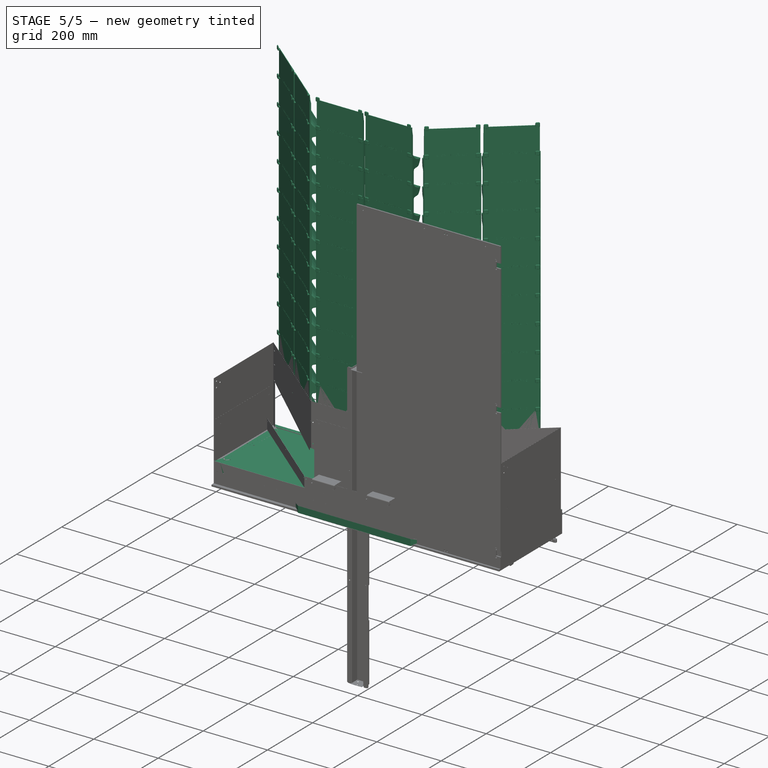
[diagram: stage 5 of 5 — iso view after this stage's code; geometry added in this stage tinted green]
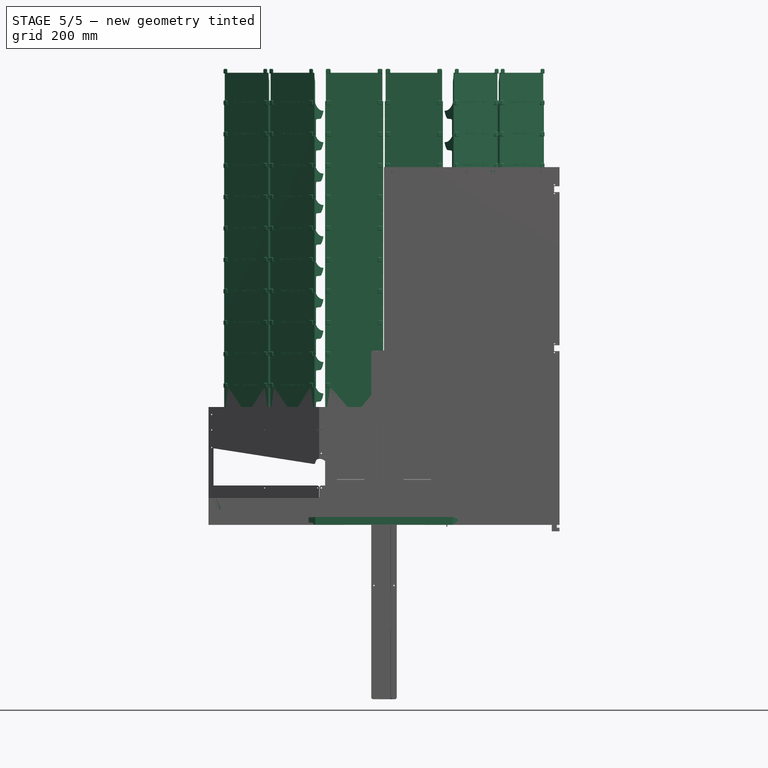
[diagram: stage 5 of 5 — front view after this stage's code; geometry added in this stage tinted green]
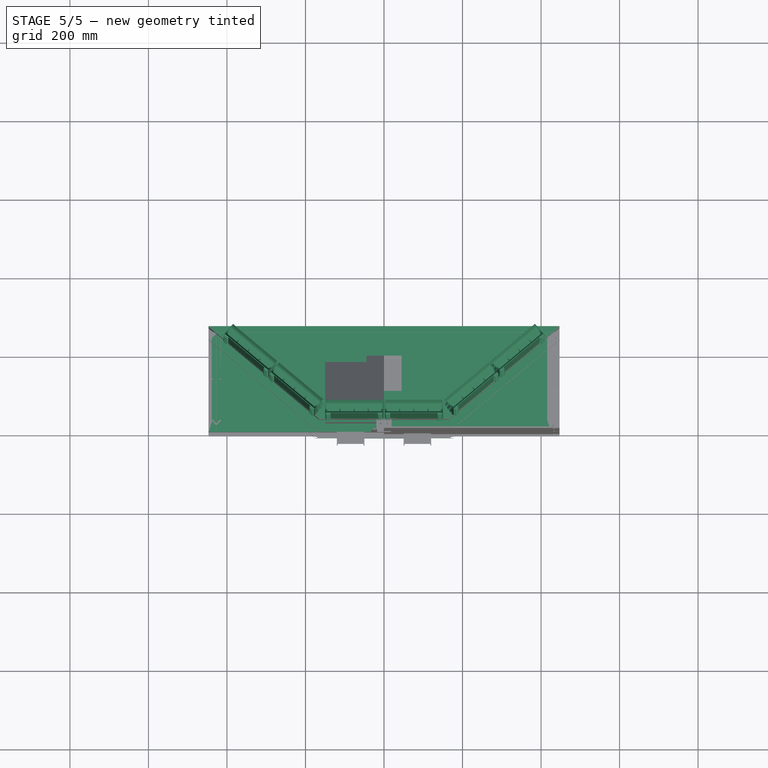
[diagram: stage 5 of 5 — top view after this stage's code; geometry added in this stage tinted green]
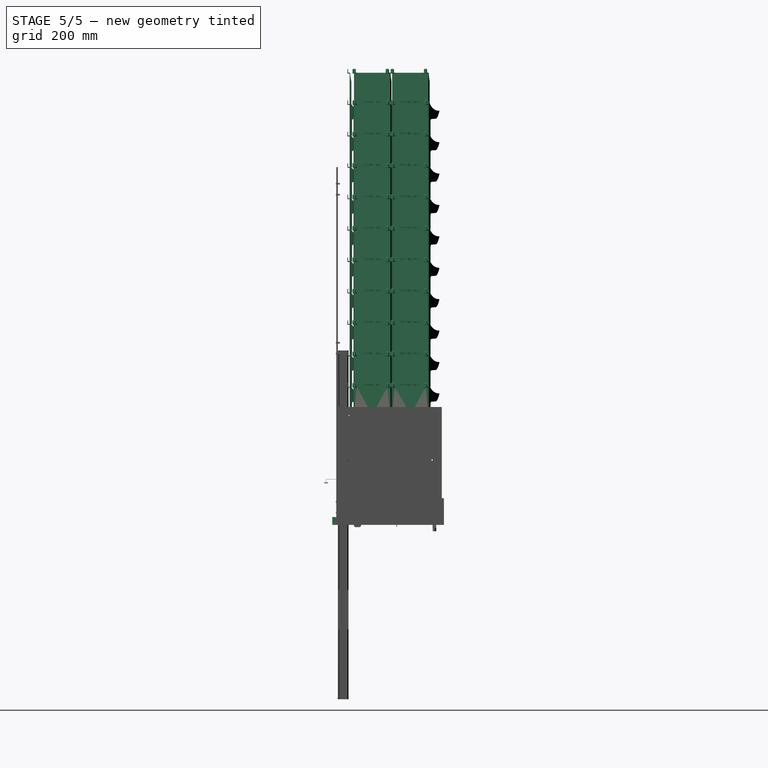
[diagram: stage 5 of 5 — right view after this stage's code; geometry added in this stage tinted green]
FEATURE [Sketcher::SketchObject] Sketch026
  ExternalGeometry = -> [Sketch001]
  FullyConstrained = false
  expr: Constraints[18] = 3 + 3 + 3.4 + 5
  sketch-geometry (6):
    g0: LineSegment StartX=0 StartY=-14.4 StartZ=0 EndX=170.309 EndY=-14.4 EndZ=0
    g1: LineSegment StartX=170.309 StartY=-14.4 StartZ=0 EndX=433.708 EndY=205.068 EndZ=0
    g2: LineSegment StartX=433.708 StartY=205.068 StartZ=0 EndX=433.708 EndY=235 EndZ=0
    g3: LineSegment StartX=433.708 StartY=235 StartZ=0 EndX=0 EndY=235 EndZ=0
    g4: LineSegment StartX=165.096 StartY=-14.4 StartZ=0 EndX=165.096 EndY=0 EndZ=0
    g5: LineSegment StartX=165.096 StartY=0 StartZ=0 EndX=174.314 EndY=-11.063 EndZ=0
  constraints (19):
    c: PointOnObject(g0,g-2)
    c: Horizontal(g0)
    c: Coincident(g0,g1)
    c: Coincident(g1,g2)
    c: Vertical(g2)
    c: Coincident(g2,g3)
    c: PointOnObject(g3,g-2)
    c: Horizontal(g3)
    c: Horizontal(g2,g-3)
    c: Angle(g-1,g1) = 0.694667  'angle'
    c: Parallel(g1,g-3)
    c: PointOnObject(g4,g0)
    c: Coincident(g4,g-3)
    c: Vertical(g4)
    c: Coincident(g4,g5)
    c: PointOnObject(g5,g1)
    c: Perpendicular(g1,g5)
    c: Equal(g4,g5)
    c: DistanceY(g4,g4) = 14.4
FEATURE [Sketcher::SketchObject] Sketch027
  ExternalGeometry = -> [Sketch026]
  FullyConstrained = true
  Placement = pos=(0,0,0.4) rot=(0,0,1;0rad)
  sketch-geometry (2):
    g0: LineSegment StartX=155.309 StartY=-14.4 StartZ=0 EndX=174.995 EndY=-14.4 EndZ=0
    g1: LineSegment StartX=174.995 StartY=-14.4 StartZ=0 EndX=205.726 EndY=11.2052 EndZ=0
  constraints (7):
    c: Horizontal(g0)
    c: Coincident(g0,g1)
    c: PointOnObject(g-3,g0)
    c: DistanceX(g0,g-3) = 15
    c: Parallel(g1,g-3)
    c: Distance(g1) = 40
    c: Distance(g0,g-3) = 3
FEATURE [Part::Mirroring] Part__Mirroring005  label="Sketch026 (Mirror #6)"
  Base = (0,0,0)
  Normal = (1,0,0)
  Source = -> Sketch026
FEATURE [Part::FeaturePython] Connect002  # WARN: FeaturePython — macro-defined, semantics opaque (R4)
  Objects = -> [Sketch026,Part__Mirroring005]
  Tolerance = 0
FEATURE [PartDesign::SubShapeBinder] Binder008
  BindCopyOnChange = 0
  BindMode = 0
  ClaimChildren = true
  Context = -> Body004 [Binder008.]
  Fuse = false
  MakeFace = true
  OffsetFill = false
  OffsetIntersection = false
  OffsetJoinType = 0
  OffsetOpenResult = false
  PartialLoad = false
  Relative = true
  Support = -> [Connect002]
  _Version = 2
FEATURE [PartDesign::FeaturePython] BaseBend001  # WARN: FeaturePython — macro-defined, semantics opaque (R4)
  BendSide = 0
  BendSketch = -> Binder008
  MidPlane = false
  Reverse = false
  Suppressed = false
  length = 100
  radius = 0.1
  thickness = 0.3
FEATURE [PartDesign::FeaturePython] Extend001  # WARN: FeaturePython — macro-defined, semantics opaque (R4)
  BaseFeature = -> BaseBend001
  Offset = 0.02
  Refine = true
  Suppressed = false
  UseSubtraction = false
  baseObject = -> BaseBend001 [Face1]
  gap1 = 0
  gap2 = 0
  length = 0
FEATURE [PartDesign::FeaturePython] Bend001  # WARN: FeaturePython — macro-defined, semantics opaque (R4)
  AutoMiter = false
  BaseFeature = -> Extend001
  BendType = 1
  LengthList = [20]
  LengthSpec = 1
  ReliefFactor = 0.7
  Suppressed = false
  UseReliefFactor = false
  angle = 90
  baseObject = -> Extend001 [Edge4,Edge7,Edge14,Edge16,Edge17,Edge18]
  bendAList = [90]
  extend1 = 0
  extend2 = 0
  gap1 = 0
  gap2 = 0
  invert = false
  kfactor = 0.5
  length = 20
  maxExtendDist = 5
  minGap = 0.2
  minReliefGap = 1
  miterangle1 = 0
  miterangle2 = 0
  offset = 0
  radius = 0.1
  reliefType = 0
  reliefd = 1
  reliefw = 0.8
  sketchflip = false
  sketchinvert = false
  unfold = false
  expr: radius = BaseBend001.radius
FEATURE [Sketcher::SketchObject] Sketch028
  ExternalGeometry = -> [Sketch026]
  FullyConstrained = true
  Placement = pos=(0,0,0.4) rot=(0,0,1;0rad)
  sketch-geometry (2):
    g0: LineSegment StartX=426.708 StartY=235 StartZ=0 EndX=436.708 EndY=235 EndZ=0
    g1: LineSegment StartX=436.708 StartY=235 StartZ=0 EndX=436.708 EndY=220 EndZ=0
  constraints (7):
    c: PointOnObject(g0,g-4)
    c: DistanceX(g0,g0) = 10
    c: Horizontal(g0)
    c: Coincident(g1,g0)
    c: Vertical(g1)
    c: DistanceX(g-4,g0) = 3
    c: DistanceY(g1,g1) = 15
FEATURE [Sketcher::SketchObject] Sketch030
  ExternalGeometry = -> [Sketch026]
  FullyConstrained = true
  sketch-geometry (5):
    g0: LineSegment StartX=170.164 StartY=-14.4 StartZ=0 EndX=170.164 EndY=-14 EndZ=0
    g1: LineSegment StartX=170.164 StartY=-14 StartZ=0 EndX=170.42 EndY=-14.3073 EndZ=0
    g2: LineSegment StartX=169.114 StartY=-14.4 StartZ=0 EndX=169.114 EndY=-11.1 EndZ=0
    g3: LineSegment StartX=169.114 StartY=-11.1 StartZ=0 EndX=171.227 EndY=-13.6353 EndZ=0
    g4: LineSegment StartX=169.114 StartY=-11.1 StartZ=0 EndX=174.269 EndY=-11.1 EndZ=0
  constraints (17):
    c: Vertical(g0)
    c: Coincident(g0,g1)
    c: PointOnObject(g1,g-3)
    c: Equal(g1,g0)
    c: DistanceY(g0,g0) = 0.4
    c: Vertical(g2)
    c: Coincident(g2,g3)
    c: PointOnObject(g3,g-3)
    c: Perpendicular(g-3,g1)
    c: Horizontal(g0,g-3)
    c: Horizontal(g2,g-3)
    c: Perpendicular(g3,g-3)
    c: Equal(g2,g3)
    c: DistanceY(g2,g2) = 3.3
    c: Coincident(g4,g2)
    c: PointOnObject(g4,g-3)
    c: Horizontal(g4)
FEATURE [Sketcher::SketchObject] Sketch029
  AttachmentOffset = pos=(0,0,0) rot=(0,1,0;1.5708rad)
  AttachmentSupport = -> [Sketch026]
  ExternalGeometry = -> [Sketch030]
  FullyConstrained = true
  MapMode = 7
  Placement = pos=(170.309,-14.4,0) rot=(0.890129,0.322235,0.322235;1.68692rad)
  expr: Constraints[11] = <<Bend001>>.length
  expr: Constraints[12] = <<Sketch026>>.Constraints.angle
  sketch-geometry (5):
    g0: LineSegment StartX=0.144804 StartY=20 StartZ=0 EndX=28.6786 EndY=20 EndZ=0
    g1: LineSegment StartX=28.6786 StartY=20 StartZ=0 EndX=5.1552 EndY=0.4 EndZ=0
    g2: LineSegment StartX=5.1552 StartY=0.4 StartZ=0 EndX=5.1552 EndY=-1e-16 EndZ=0
    g3: LineSegment StartX=5.1552 StartY=-1e-16 StartZ=0 EndX=0.144804 EndY=-1e-16 EndZ=0
    g4: LineSegment StartX=0.144804 StartY=-1e-16 StartZ=0 EndX=0.144804 EndY=20 EndZ=0
  constraints (13):
    c: Horizontal(g0)
    c: Coincident(g0,g1)
    c: Coincident(g1,g2)
    c: Vertical(g2)
    c: Coincident(g2,g3)
    c: Coincident(g4,g0)
    c: Vertical(g4)
    c: Coincident(g4,g-3)
    c: Coincident(g3,g4)
    c: Coincident(g2,g-4)
    c: DistanceY(g1) = 0.4
    c: DistanceY(g0) = 20
    c: Angle(g-1,g1) = 0.694667
FEATURE [Part::Extrusion] Extrude004
  Base = -> Sketch029
  Dir = (0.64013,-0.768267,0)
  DirMode = 2
  FaceMakerClass = Part::FaceMakerBullseye
  LengthFwd = 0.4
  LengthRev = 0
  Reversed = true
  Solid = true
  Symmetric = false
FEATURE [Part::FeaturePython] BaseBend002  # WARN: FeaturePython — macro-defined, semantics opaque (R4)
  BendSide = 1
  BendSketch = -> Sketch027
  MidPlane = false
  Reverse = false
  length = 19.6
  radius = 0.1
  thickness = 0.3
  expr: length = <<Bend001>>.length - 0.4 mm
FEATURE [Sketcher::SketchObject] Sketch031
  ExternalGeometry = -> [Sketch030]
  FullyConstrained = true
  sketch-geometry (4):
    g0: LineSegment StartX=170.164 StartY=-14 StartZ=0 EndX=170.164 EndY=-11.4073 EndZ=0
    g1: LineSegment StartX=170.164 StartY=-11.4073 StartZ=0 EndX=174.525 EndY=-11.4073 EndZ=0
    g2: LineSegment StartX=174.525 StartY=-11.4073 StartZ=0 EndX=174.269 EndY=-11.1 EndZ=0
    g3: LineSegment StartX=170.164 StartY=-14 StartZ=0 EndX=174.269 EndY=-11.1 EndZ=0
  constraints (10):
    c: Coincident(g-3,g0)
    c: Vertical(g0)
    c: Coincident(g0,g1)
    c: Horizontal(g1)
    c: Coincident(g1,g2)
    c: Coincident(g2,g-4)
    c: Equal(g-3,g2)
    c: Parallel(g2,g-3)
    c: Coincident(g3,g0)
    c: Coincident(g3,g2)
FEATURE [Part::Extrusion] Extrude005
  Base = -> Sketch031
  Dir = (0,0,1)
  DirMode = 2
  FaceMakerClass = Part::FaceMakerBullseye
  LengthFwd = 3
  LengthRev = 0
  Solid = true
  Symmetric = false
FEATURE [Part::FeaturePython] BaseBend003  # WARN: FeaturePython — macro-defined, semantics opaque (R4)
  BendSide = 0
  BendSketch = -> Sketch028
  MidPlane = false
  Reverse = false
  length = 19.6
  radius = 0.1
  thickness = 0.3
  expr: length = <<BaseBend002>>.length
FEATURE [Part::Mirroring] Part__Mirroring007  label="Sketch027 (Mirror #8)"
  Base = (0,0,0)
  Normal = (1,0,0)
  Source = -> Sketch027
FEATURE [Part::FeaturePython] BaseBend004  # WARN: FeaturePython — macro-defined, semantics opaque (R4)
  BendSide = 0
  BendSketch = -> Part__Mirroring007
  MidPlane = false
  Reverse = false
  length = 19.6
  radius = 0.1
  thickness = 0.3
  expr: length = <<BaseBend002>>.length
FEATURE [Part::Mirroring] Part__Mirroring008  label="Sketch028 (Mirror #9)"
  Base = (0,0,0)
  Normal = (1,0,0)
  Source = -> Sketch028
FEATURE [Part::FeaturePython] BaseBend005  # WARN: FeaturePython — macro-defined, semantics opaque (R4)
  BendSide = 1
  BendSketch = -> Part__Mirroring008
  MidPlane = false
  Reverse = false
  length = 19.6
  radius = 0.1
  thickness = 0.3
  expr: length = <<BaseBend002>>.length
FEATURE [Sketcher::SketchObject] Sketch032
  ExternalGeometry = -> [Sketch026]
  FullyConstrained = true
  sketch-geometry (4):
    g0: LineSegment StartX=433.708 StartY=234.6 StartZ=0 EndX=430.708 EndY=234.6 EndZ=0
    g1: LineSegment StartX=430.708 StartY=234.6 StartZ=0 EndX=430.708 EndY=231.7 EndZ=0
    g2: LineSegment StartX=430.708 StartY=231.7 StartZ=0 EndX=433.708 EndY=231.7 EndZ=0
    g3: LineSegment StartX=433.708 StartY=231.7 StartZ=0 EndX=433.708 EndY=234.6 EndZ=0
  constraints (12):
    c: Coincident(g0,g1)
    c: Coincident(g1,g2)
    c: Coincident(g2,g3)
    c: Coincident(g3,g0)
    c: Horizontal(g0)
    c: Horizontal(g2)
    c: Vertical(g1)
    c: Vertical(g3)
    c: PointOnObject(g0,g-3)
    c: DistanceX(g1,g-3) = 3
    c: DistanceY(g1,g-3) = 3.3
    c: DistanceY(g0,g-3) = 0.4
FEATURE [Part::Extrusion] Extrude006
  Base = -> Sketch032
  Dir = (0,0,1)
  DirMode = 2
  FaceMakerClass = Part::FaceMakerBullseye
  LengthFwd = 100
  LengthRev = 0
  Solid = true
  Symmetric = false
FEATURE [Sketcher::SketchObject] Sketch033
  ExternalGeometry = -> [Sketch026]
  FullyConstrained = true
  Placement = pos=(0,0,0.4) rot=(0,0,1;0rad)
  sketch-geometry (2):
    g0: LineSegment StartX=433.708 StartY=215.068 StartZ=0 EndX=433.708 EndY=201.163 EndZ=0
    g1: LineSegment StartX=433.708 StartY=201.163 StartZ=0 EndX=410.66 EndY=181.959 EndZ=0
  constraints (7):
    c: Coincident(g0,g1)
    c: Parallel(g1,g-3)
    c: Vertical(g0)
    c: PointOnObject(g-3,g0)
    c: DistanceY(g-3,g0) = 10
    c: Distance(g1) = 30
    c: Distance(g0,g-3) = 3
FEATURE [Part::FeaturePython] BaseBend006  # WARN: FeaturePython — macro-defined, semantics opaque (R4)
  BendSide = 0
  BendSketch = -> Sketch033
  MidPlane = false
  Reverse = false
  length = 19.6
  radius = 0.1
  thickness = 0.3
  expr: length = <<BaseBend002>>.length
FEATURE [Sketcher::SketchObject] Sketch035
  ExternalGeometry = -> [Sketch026]
  FullyConstrained = true
  sketch-geometry (5):
    g0: LineSegment StartX=428.296 StartY=200.558 StartZ=0 EndX=430.408 EndY=198.023 EndZ=0
    g1: LineSegment StartX=430.408 StartY=198.023 StartZ=0 EndX=433.708 EndY=198.023 EndZ=0
    g2: LineSegment StartX=433.564 StartY=204.948 StartZ=0 EndX=433.308 EndY=205.255 EndZ=0
    g3: LineSegment StartX=433.308 StartY=205.255 StartZ=0 EndX=433.708 EndY=205.255 EndZ=0
    g4: LineSegment StartX=430.408 StartY=198.023 StartZ=0 EndX=430.408 EndY=202.318 EndZ=0
  constraints (17):
    c: PointOnObject(g0,g-3)
    c: Coincident(g0,g1)
    c: Horizontal(g1)
    c: Perpendicular(g-3,g0)
    c: PointOnObject(g2,g-3)
    c: Coincident(g2,g3)
    c: Horizontal(g3)
    c: Vertical(g3,g-3)
    c: Equal(g2,g3)
    c: DistanceX(g3,g3) = 0.4
    c: DistanceX(g1,g1) = 3.3
    c: Vertical(g1,g-3)
    c: Equal(g0,g1)
    c: Coincident(g4,g0)
    c: PointOnObject(g4,g-3)
    c: Vertical(g4)
    c: Perpendicular(g-3,g2)
FEATURE [Sketcher::SketchObject] Sketch034
  AttachmentOffset = pos=(0,0,0) rot=(0,1,0;1.5708rad)
  AttachmentSupport = -> [Sketch026]
  ExternalGeometry = -> [Sketch035]
  FullyConstrained = true
  MapMode = 7
  Placement = pos=(433.708,205.068,0) rot=(0.890129,0.322235,0.322235;1.68692rad)
  expr: Constraints[10] = 90 deg - <<Sketch026>>.Constraints.angle
  expr: Constraints[9] = <<Bend001>>.length
  sketch-geometry (5):
    g0: LineSegment StartX=-0.187367 StartY=0 StartZ=0 EndX=-0.187367 EndY=20 EndZ=0
    g1: LineSegment StartX=-0.187367 StartY=20 StartZ=0 EndX=-20.6264 EndY=20 EndZ=0
    g2: LineSegment StartX=-20.6264 StartY=20 StartZ=0 EndX=-4.29538 EndY=0.4 EndZ=0
    g3: LineSegment StartX=-4.29538 StartY=0.4 StartZ=0 EndX=-4.29538 EndY=0 EndZ=0
    g4: LineSegment StartX=-4.29538 StartY=0 StartZ=0 EndX=-0.187367 EndY=0 EndZ=0
  constraints (13):
    c: Vertical(g0)
    c: Coincident(g0,g1)
    c: Horizontal(g1)
    c: Coincident(g1,g2)
    c: Coincident(g2,g3)
    c: Vertical(g3)
    c: Coincident(g3,g4)
    c: Coincident(g4,g0)
    c: DistanceY(g2) = 0.4
    c: DistanceY(g0,g0) = 20
    c: Angle(g2,g-1) = 0.876129
    c: Coincident(g0,g-4)
    c: Coincident(g3,g-3)
FEATURE [Part::Extrusion] Extrude007
  Base = -> Sketch034
  Dir = (0.64013,-0.768267,0)
  DirMode = 2
  FaceMakerClass = Part::FaceMakerBullseye
  LengthFwd = 0.4
  LengthRev = 0
  Reversed = true
  Solid = true
  Symmetric = false
FEATURE [Part::MultiFuse] Fusion003
  Shapes = -> [Extrude004,Extrude005,Extrude006,Extrude007]
FEATURE [Part::Mirroring] Part__Mirroring006  label="Fusion003 (Mirror #7)"
  Base = (0,0,0)
  Normal = (1,0,0)
  Source = -> Fusion003
FEATURE [Part::MultiFuse] Fusion004
  Shapes = -> [Fusion003,Part__Mirroring006]
FEATURE [PartDesign::Boolean] Boolean003
  BaseFeature = -> Bend001
  Group = -> [Fusion004]
  Suppressed = false
  Type = 1
  UsePlacement = true
FEATURE [App::Link] Link001  label="fix"
  LinkedObject = -> <external ../dropper.FCStd>#Connect
FEATURE [App::Link] Link002  label="base"
  LinkedObject = -> <external ../dropper.FCStd>#Sketch007
FEATURE [App::Link] Link003  label="feed"
  LinkedObject = -> <external ../dropper.FCStd>#Sketch008
FEATURE [Part::Face] Face
  FaceMakerClass = Part::FaceMakerBullseye
  Sources = -> [Link001]
FEATURE [Part::Face] Face001
  FaceMakerClass = Part::FaceMakerBullseye
  Sources = -> [Link002]
FEATURE [Part::Compound] Compound006
  Links = -> [Face,Face001]
FEATURE [Part::FeaturePython] FuseCompound  # WARN: FeaturePython — macro-defined, semantics opaque (R4)
  Base = -> Compound006
  Refine = true
  recomputeQuota = -1
FEATURE [Part::Extrusion] Extrude008
  Base = -> FuseCompound
  Dir = (0,0,1)
  DirMode = 2
  FaceMakerClass = Part::FaceMakerBullseye
  LengthFwd = 2.5
  LengthRev = 0
  Solid = false
  Symmetric = false
FEATURE [Part::Extrusion] Extrude009
  Base = -> Face001
  Dir = (0,0,1)
  DirMode = 2
  FaceMakerClass = Part::FaceMakerBullseye
  LengthFwd = 3
  LengthRev = 0
  Solid = false
  Symmetric = false
FEATURE [Part::Extrusion] Extrude010
  Base = -> Link003
  Dir = (0,0,1)
  DirMode = 2
  FaceMakerClass = Part::FaceMakerBullseye
  LengthFwd = 5
  LengthRev = 0
  Solid = true
  Symmetric = false
FEATURE [Part::FeaturePython] LinearArray002  # WARN: FeaturePython — macro-defined, semantics opaque (R4)
  Alignment = 0
  CellStart = A1
  Count = 2
  Dir = (1,0,0)
  DirIsDriven = true
  DistributionLaw = 0
  DrivenProperty = 1
  EndInclusive = true
  ExposePlacement = false
  GeneratorMode = 0
  MarkerShape = 1
  MarkerSize = 0
  NumElements = 2
  OrientMode = 1
  Placement = pos=(-40,20,0) rot=(0,0,1;0rad)
  Point = (0,0,0)
  PointIsDriven = true
  Reverse = false
  SpanEnd = 80
  SpanStart = 0
  Step = 80
  Type = lattice2LinearArray.LinearArray
  VSGVersion = 1
  Values = 0.0 | 80.0
  ValuesSource = 2
  isLattice = 1
  expr: .Placement.Base.x = -SpanEnd / 2
FEATURE [PartDesign::SubShapeBinder] Binder009
  BindCopyOnChange = 0
  BindMode = 0
  ClaimChildren = true
  Context = -> Body005 [Binder009.]
  Fuse = false
  MakeFace = true
  OffsetFill = false
  OffsetIntersection = false
  OffsetJoinType = 0
  OffsetOpenResult = false
  PartialLoad = false
  Relative = false
  Support = -> [Connect003]
  _Version = 2
FEATURE [PartDesign::Pad] Pad010
  Direction = (0,0,1)
  Length = 5
  Length2 = 10
  Profile = -> Binder009
  Refine = true
  Suppressed = false
  Type = 0
FEATURE [Part::FeaturePython] Join001  # WARN: FeaturePython — macro-defined, semantics opaque (R4)
  ExposePlacement = false
  Interleave = false
  Links = -> [Placment,Placment003]
  MarkerShape = 1
  MarkerSize = 0
  NumElements = 2
  Type = lattice2JoinArrays.JoinArrays
  isLattice = 1
FEATURE [Part::FeaturePython] Populate008  label="Populate Join001 with LinearArray002"  # WARN: FeaturePython — macro-defined, semantics opaque (R4)
  Copying = 0
  ExposePlacement = false
  MarkerShape = 1
  MarkerSize = 0
  NumElements = 4
  Object = -> LinearArray002
  OutputCompounding = 0
  PlacementsTo = -> Join001
  Referencing = 0
  Type = lattice2PopulateCopies.LatticePopulateCopies
  isLattice = 1
FEATURE [Sketcher::SketchObject] Sketch036
  ExternalGeometry = -> [Sketch026,Populate008]
  FullyConstrained = true
  sketch-geometry (8):
    g0: LineSegment StartX=0 StartY=-11.4 StartZ=0 EndX=136 EndY=-11.4 EndZ=0
    g1: ArcOfEllipse CenterX=116 CenterY=20 CenterZ=0 NormalX=0 NormalY=0 NormalZ=1 MajorRadius=20 MinorRadius=12 AngleXU=0 StartAngle=0 EndAngle=1.5708
    g2: LineSegment StartX=136 StartY=20 StartZ=0 EndX=96 EndY=20 EndZ=0
    g3: LineSegment StartX=116 StartY=32 StartZ=0 EndX=116 EndY=8 EndZ=0
    g4: GeomPoint X=132 Y=20 Z=0
    g5: GeomPoint X=100 Y=20 Z=0
    g6: LineSegment StartX=116 StartY=32 StartZ=0 EndX=0 EndY=32 EndZ=0
    g7: LineSegment StartX=136 StartY=-11.4 StartZ=0 EndX=136 EndY=20 EndZ=0
  constraints (14):
    c: PointOnObject(g0,g-2)
    c: Horizontal(g0)
    c: Coincident(g0,g7)
    c: PointOnObject(g6,g-2)
    c: DistanceY(g-3,g0) = 3
    c: InternalAlignment(g2-g5 -> g1) x4
    c: Horizontal(g6)
    c: Vertical(g7)
    c: DistanceX(g0) = 136
    c: DistanceY(g6) = 32
    c: Coincident(g1,g-4)
    c: Horizontal(g2)
    c: Tangent(g1,g6) = -1.5708
    c: Tangent(g1,g7) = -1.5708
FEATURE [Part::Mirroring] Part__Mirroring009  label="Sketch036 (Mirror #10)"
  Base = (0,0,0)
  Normal = (1,0,0)
  Source = -> Sketch036
FEATURE [Part::FeaturePython] Connect003  # WARN: FeaturePython — macro-defined, semantics opaque (R4)
  Objects = -> [Sketch036,Part__Mirroring009]
  Tolerance = 0
FEATURE [Sketcher::SketchObject] Sketch037
  AttachmentOffset = pos=(3,15,0) rot=(0,1,0;1.5708rad)
  AttachmentSupport = -> [Sketch026]
  ExternalGeometry = -> [Sketch026]
  FullyConstrained = true
  MapMode = 7
  Placement = pos=(172.229,-16.7048,15) rot=(0.890129,0.322235,0.322235;1.68692rad)
  sketch-geometry (2):
    g0: Circle CenterX=35 CenterY=0 CenterZ=0 NormalX=0 NormalY=0 NormalZ=1 AngleXU=0 Radius=1.7
    g1: Circle CenterX=317.849 CenterY=0 CenterZ=0 NormalX=0 NormalY=0 NormalZ=1 AngleXU=0 Radius=1.7
  constraints (6):
    c: DistanceX(g0) = 35
    c: DistanceX(g1,g-3) = 25
    c: Equal(g0,g1)
    c: PointOnObject(g0,g-1)
    c: PointOnObject(g1,g-1)
    c: Diameter(g0) = 3.4
FEATURE [Sketcher::SketchObject] Sketch038
  AttachmentOffset = pos=(3,15,0) rot=(0,1,0;1.5708rad)
  AttachmentSupport = -> [Sketch026]
  FullyConstrained = true
  MapMode = 7
  Placement = pos=(436.708,235,15) rot=(0.57735,0.57735,0.57735;2.0944rad)
  expr: AttachmentOffset = <<Sketch037>>.AttachmentOffset
  sketch-geometry (1):
    g0: Circle CenterX=-9.7 CenterY=0 CenterZ=0 NormalX=0 NormalY=0 NormalZ=1 AngleXU=0 Radius=1.7
  constraints (3):
    c: PointOnObject(g0,g-1)
    c: Diameter(g0) = 3.4
    c: DistanceX(g0) = -9.7
FEATURE [Part::Extrusion] Extrude011
  Base = -> Sketch037
  Dir = (0.64013,-0.768267,0)
  DirMode = 2
  FaceMakerClass = Part::FaceMakerBullseye
  LengthFwd = 10
  LengthRev = 0
  Reversed = true
  Solid = true
  Symmetric = false
FEATURE [Part::Extrusion] Extrude012
  Base = -> Sketch038
  Dir = (1,0,0)
  DirMode = 2
  FaceMakerClass = Part::FaceMakerBullseye
  LengthFwd = 10
  LengthRev = 0
  Reversed = true
  Solid = true
  Symmetric = false
FEATURE [Part::MultiFuse] Fusion007
  Shapes = -> [Extrude011,Extrude012]
FEATURE [Part::Mirroring] Part__Mirroring010  label="Fusion007 (Mirror #11)"
  Base = (0,0,0)
  Normal = (1,0,0)
  Source = -> Fusion007
FEATURE [Part::Mirroring] Part__Mirroring011  label="Sketch033 (Mirror #12)"
  Base = (0,0,0)
  Normal = (1,0,0)
  Source = -> Sketch033
FEATURE [Part::FeaturePython] BaseBend007  # WARN: FeaturePython — macro-defined, semantics opaque (R4)
  BendSide = 1
  BendSketch = -> Part__Mirroring011
  MidPlane = false
  Reverse = false
  length = 19.6
  radius = 0.1
  thickness = 0.3
  expr: length = <<BaseBend002>>.length
FEATURE [Part::Compound] Compound005
  Links = -> [BaseBend002,BaseBend003,BaseBend004,BaseBend005,BaseBend006,BaseBend007]
FEATURE [PartDesign::Boolean] Boolean004
  BaseFeature = -> Boolean003
  Group = -> [Compound005]
  Refine = true
  Suppressed = false
  Type = 0
  UsePlacement = true
FEATURE [Part::FeaturePython] Populate017  label="Populate Join001 with LinearArray003"  # WARN: FeaturePython — macro-defined, semantics opaque (R4)
  Copying = 0
  ExposePlacement = false
  MarkerShape = 1
  MarkerSize = 0
  NumElements = 4
  Object = -> LinearArray003
  OutputCompounding = 0
  PlacementsTo = -> Join001
  Referencing = 0
  Type = lattice2PopulateCopies.LatticePopulateCopies
  isLattice = 1
FEATURE [Part::FeaturePython] Populate018  label="Populate Populate Join001 with LinearArray003 with Cylinder"  # WARN: FeaturePython — macro-defined, semantics opaque (R4)
  Copying = 0
  ExposePlacement = false
  MarkerShape = 1
  MarkerSize = 0
  NumElements = 0
  Object = -> Cylinder
  OutputCompounding = 1
  PlacementsTo = -> Populate017
  Referencing = 0
  Type = lattice2PopulateCopies.LatticePopulateCopies
  isLattice = 0
FEATURE [Sketcher::SketchObject] Sketch047
  FullyConstrained = true
  sketch-geometry (5):
    g0: LineSegment StartX=-2.5 StartY=-35 StartZ=0 EndX=2.5 EndY=-35 EndZ=0
    g1: LineSegment StartX=2.5 StartY=-35 StartZ=0 EndX=2.5 EndY=35 EndZ=0
    g2: LineSegment StartX=2.5 StartY=35 StartZ=0 EndX=-2.5 EndY=35 EndZ=0
    g3: LineSegment StartX=-2.5 StartY=35 StartZ=0 EndX=-2.5 EndY=-35 EndZ=0
    g4: GeomPoint X=0 Y=0 Z=0
  constraints (12):
    c: Coincident(g0,g1)
    c: Coincident(g1,g2)
    c: Coincident(g2,g3)
    c: Coincident(g3,g0)
    c: Horizontal(g0)
    c: Horizontal(g2)
    c: Vertical(g1)
    c: Vertical(g3)
    c: Symmetric(g2,g0,g4)
    c: Coincident(g4,g-1)
    c: DistanceX(g0,g1) = 5
    c: DistanceY(g0,g1) = 70
FEATURE [Part::Extrusion] Extrude017
  Base = -> Sketch047
  Dir = (0,0,1)
  DirMode = 2
  FaceMakerClass = Part::FaceMakerBullseye
  LengthFwd = 2.5
  LengthRev = 0
  Solid = true
  Symmetric = false
FEATURE [Part::MultiFuse] Fusion005
  Refine = true
  Shapes = -> [Extrude008,Extrude010,Extrude017]
FEATURE [Part::FeaturePython] Populate009  label="Populate Populate Join001 with LinearArray002 with Fusion005"  # WARN: FeaturePython — macro-defined, semantics opaque (R4)
  Copying = 0
  ExposePlacement = false
  MarkerShape = 1
  MarkerSize = 0
  NumElements = 0
  Object = -> Fusion005
  OutputCompounding = 1
  PlacementsTo = -> Populate008
  Referencing = 0
  Type = lattice2PopulateCopies.LatticePopulateCopies
  isLattice = 0
FEATURE [Part::Compound] Compound007
  Links = -> [Populate009,Populate018]
FEATURE [PartDesign::Boolean] Boolean005
  BaseFeature = -> Pad010
  Group = -> [Compound007]
  Suppressed = false
  Type = 1
  UsePlacement = true
FEATURE [Sketcher::SketchObject] Sketch050
  FullyConstrained = true
  sketch-geometry (2):
    g0: LineSegment StartX=0 StartY=34 StartZ=0 EndX=0 EndY=0 EndZ=0
    g1: LineSegment StartX=0 StartY=0 StartZ=0 EndX=29 EndY=0 EndZ=0
  constraints (6):
    c: PointOnObject(g0,g-2)
    c: Coincident(g0,g-1)
    c: Coincident(g0,g1)
    c: PointOnObject(g1,g-1)
    c: DistanceX(g1) = 29  'wall'
    c: DistanceY(g0) = 34  'bar1'
FEATURE [PartDesign::SubShapeBinder] Binder013
  BindCopyOnChange = 0
  BindMode = 0
  ClaimChildren = true
  Context = -> Body008 [Binder013.]
  Fuse = false
  MakeFace = true
  OffsetFill = false
  OffsetIntersection = false
  OffsetJoinType = 0
  OffsetOpenResult = false
  PartialLoad = false
  Placement = pos=(0,0,0) rot=(0.57735,0.57735,0.57735;2.0944rad)
  Relative = false
  Support = -> [Sketch050]
  _Version = 2
FEATURE [PartDesign::FeaturePython] BaseBend009  # WARN: FeaturePython — macro-defined, semantics opaque (R4)
  BendSide = 1
  BendSketch = -> Binder013
  MidPlane = true
  Reverse = false
  Suppressed = false
  length = 31
  radius = 2
  thickness = 2
  expr: length = <<bar_sketch>>.Constraints.inner - 4 mm
FEATURE [Sketcher::SketchObject] Sketch051
  AttachmentOffset = pos=(15.5,34,0) rot=(0,0,1;0rad)
  AttachmentSupport = -> [XZ_Plane009]
  FullyConstrained = true
  MapMode = 5
  Placement = pos=(15.5,7.5e-15,34) rot=(1,0,0;1.5708rad)
  expr: .AttachmentOffset.Base.x = <<BaseBend009>>.length / 2
  expr: .AttachmentOffset.Base.y = <<Sketch050>>.Constraints.bar1
  sketch-geometry (3):
    g0: ArcOfCircle CenterX=-5 CenterY=-5 CenterZ=0 NormalX=0 NormalY=0 NormalZ=1 AngleXU=0 Radius=5 StartAngle=2.886e-13 EndAngle=1.5708
    g1: LineSegment StartX=-5.68e-14 StartY=-5 StartZ=0 EndX=-5.68e-14 EndY=-5.68e-14 EndZ=0
    g2: LineSegment StartX=-5.68e-14 StartY=-5.68e-14 StartZ=0 EndX=-5 EndY=-5.68e-14 EndZ=0
  constraints (8):
    c: PointOnObject(g0,g-2)
    c: PointOnObject(g0,g-1)
    c: Coincident(g1,g2)
    c: Horizontal(g2)
    c: Tangent(g2,g0) = -1.5708
    c: Tangent(g0,g1) = -1.5708
    c: Vertical(g1)
    c: Radius(g0) = 5
FEATURE [PartDesign::Pocket] Pocket006
  BaseFeature = -> BaseBend009
  Direction = (0,1,-2e-16)
  Length = 5
  Length2 = 5
  Profile = -> Sketch051
  ReferenceAxis = -> Sketch051 [N_Axis]
  Suppressed = false
  Type = 0
FEATURE [Sketcher::SketchObject] Sketch052
  AttachmentOffset = pos=(15.5,29,0) rot=(0,0,1;0rad)
  AttachmentSupport = -> [XY_Plane009]
  FullyConstrained = true
  MapMode = 5
  Placement = pos=(15.5,29,0) rot=(0,0,1;0rad)
  expr: .AttachmentOffset.Base.x = <<BaseBend009>>.length / 2
  expr: .AttachmentOffset.Base.y = <<Sketch050>>.Constraints.wall
  sketch-geometry (3):
    g0: ArcOfCircle CenterX=-5 CenterY=-5 CenterZ=0 NormalX=0 NormalY=0 NormalZ=1 AngleXU=0 Radius=5 StartAngle=0 EndAngle=1.5708
    g1: LineSegment StartX=0 StartY=-5 StartZ=0 EndX=0 EndY=0 EndZ=0
    g2: LineSegment StartX=0 StartY=0 StartZ=0 EndX=-5 EndY=0 EndZ=0
  constraints (8):
    c: PointOnObject(g0,g-2)
    c: PointOnObject(g0,g-1)
    c: Coincident(g1,g2)
    c: Vertical(g1)
    c: Horizontal(g2)
    c: Tangent(g0,g1) = -1.5708
    c: Tangent(g2,g0) = -1.5708
    c: Radius(g0) = 5
FEATURE [PartDesign::Pocket] Pocket007
  BaseFeature = -> Pocket006
  Direction = (0,0,-1)
  Length = 5
  Length2 = 5
  Midplane = true
  Profile = -> Sketch052
  ReferenceAxis = -> Sketch052 [N_Axis]
  Suppressed = false
  Type = 0
FEATURE [PartDesign::Mirrored] Mirrored003
  BaseFeature = -> Pocket007
  MirrorPlane = -> YZ_Plane009
  Originals = -> [Pocket006,Pocket007]
  Suppressed = false
FEATURE [Part::MultiFuse] Fusion011
  Shapes = -> [Extrude018,Extrude019]
FEATURE [PartDesign::Boolean] Boolean008
  BaseFeature = -> Mirrored003
  Group = -> [Fusion011]
  Suppressed = false
  Type = 1
  UsePlacement = true
FEATURE [App::Link] Link006  label="Sketch057"
  LinkedObject = -> <external ../rails.FCStd>#Sketch003
FEATURE [Part::FeaturePython] Placment015  # WARN: FeaturePython — macro-defined, semantics opaque (R4)
  AttacherType = Attacher::AttachEngine3D
  ExposePlacement = true
  MarkerShape = 1
  MarkerSize = 20
  NumElements = 1
  Placement = pos=(0,0,12) rot=(0,0,1;0rad)
  Type = lattice2AttachablePlacement.AttachablePlacement
  isLattice = 1
FEATURE [PartDesign::SubShapeBinder] Binder015
  BindCopyOnChange = 0
  BindMode = 0
  ClaimChildren = true
  Fuse = false
  MakeFace = true
  OffsetFill = false
  OffsetIntersection = false
  OffsetJoinType = 0
  OffsetOpenResult = false
  PartialLoad = false
  Relative = true
  Support = -> [Link006]
  _Version = 2
FEATURE [Sketcher::SketchObject] Sketch056  label="Sketch058"
  ExternalGeometry = -> [Binder015]
  FullyConstrained = true
  sketch-geometry (2):
    g0: Circle CenterX=0 CenterY=27 CenterZ=0 NormalX=0 NormalY=0 NormalZ=1 AngleXU=0 Radius=1.7
    g1: Circle CenterX=0 CenterY=198 CenterZ=0 NormalX=0 NormalY=0 NormalZ=1 AngleXU=0 Radius=1.7
  constraints (4):
    c: Coincident(g0,g-3)
    c: Coincident(g1,g-4)
    c: Equal(g0,g1)
    c: Diameter(g0) = 3.4
FEATURE [Part::Extrusion] Extrude021
  Base = -> Sketch056
  Dir = (0,0,1)
  DirMode = 2
  FaceMakerClass = Part::FaceMakerBullseye
  LengthFwd = 10
  LengthRev = 0
  Solid = true
  Symmetric = false
FEATURE [Part::FeaturePython] Populate027  label="Populate Placment015 with Extrude021"  # WARN: FeaturePython — macro-defined, semantics opaque (R4)
  Copying = 0
  ExposePlacement = false
  MarkerShape = 1
  MarkerSize = 0
  NumElements = 0
  Object = -> Extrude021
  OutputCompounding = 2
  PlacementsTo = -> Placment015
  Referencing = 0
  Type = lattice2PopulateCopies.LatticePopulateCopies
  isLattice = 0
FEATURE [Part::FeaturePython] Populate028  label="Populate Join005 with Populate Placment015 with Extrude021"  # WARN: FeaturePython — macro-defined, semantics opaque (R4)
  Copying = 0
  ExposePlacement = false
  MarkerShape = 1
  MarkerSize = 0
  NumElements = 0
  Object = -> Populate027
  OutputCompounding = 1
  PlacementsTo = -> Join005
  Referencing = 0
  Type = lattice2PopulateCopies.LatticePopulateCopies
  isLattice = 0
FEATURE [Sketcher::SketchObject] Sketch058  label="Sketch060"
  ExternalGeometry = -> [Sketch057]
  FullyConstrained = true
  Placement = pos=(0,0,0) rot=(0.57735,0.57735,0.57735;2.0944rad)
  expr: Constraints[7] = <<cap_outer_BaseBend>>.length + 0.4 mm
  sketch-geometry (3):
    g0: LineSegment StartX=0 StartY=0 StartZ=0 EndX=0 EndY=68 EndZ=0
    g1: LineSegment StartX=0 StartY=68 StartZ=0 EndX=270 EndY=68 EndZ=0
    g2: LineSegment StartX=270 StartY=68 StartZ=0 EndX=270 EndY=0 EndZ=0
  constraints (8):
    c: Coincident(g-1,g0)
    c: PointOnObject(g0,g-2)
    c: Coincident(g0,g1)
    c: Horizontal(g1)
    c: Coincident(g1,g2)
    c: Coincident(g2,g-3)
    c: Vertical(g2)
    c: DistanceY(g0) = 68
FEATURE [PartDesign::SubShapeBinder] Binder017
  BindCopyOnChange = 0
  BindMode = 0
  ClaimChildren = true
  Context = -> Body011 [Binder017.]
  Fuse = false
  MakeFace = true
  OffsetFill = false
  OffsetIntersection = false
  OffsetJoinType = 0
  OffsetOpenResult = false
  PartialLoad = false
  Placement = pos=(0,0,0) rot=(0.57735,0.57735,0.57735;2.0944rad)
  Relative = false
  Support = -> [Sketch058]
  _Version = 2
  expr: Placement = <<Sketch060>>.Placement
FEATURE [PartDesign::FeaturePython] BaseBend012  # WARN: FeaturePython — macro-defined, semantics opaque (R4)
  BendSide = 0
  BendSketch = -> Binder017
  MidPlane = true
  Reverse = false
  Suppressed = false
  length = 854.173
  radius = 0.1
  thickness = 0.3
  expr: length = <<Sketch059>>.Constraints.back_length - 0.1 mm
FEATURE [PartDesign::Body] Body011  label="Body"
  Group = -> [Binder017,BaseBend012]
  Origin = -> Origin012
  Tip = -> BaseBend012
FEATURE [PartDesign::FeaturePython] Bend003  # WARN: FeaturePython — macro-defined, semantics opaque (R4)
  AutoMiter = true
  BaseFeature = -> Extend002
  BendType = 0
  LengthList = [20]
  LengthSpec = 1
  ReliefFactor = 0.7
  Suppressed = false
  UseReliefFactor = false
  angle = 90
  baseObject = -> Extend002 [Edge4,Edge17,Edge75,Edge46,Edge63]
  bendAList = [90]
  extend1 = 0
  extend2 = 0
  gap1 = 0
  gap2 = 0
  invert = false
  kfactor = 0.5
  length = 20
  maxExtendDist = 5
  minGap = 0.0353553
  minReliefGap = 0.2
  miterangle1 = 0
  miterangle2 = 0
  offset = 0
  radius = 0.1
  reliefType = 0
  reliefd = 1
  reliefw = 0.8
  sketchflip = false
  sketchinvert = false
  unfold = false
  expr: minGap = 0.05 mm / sqrt(2)
  expr: radius = BaseBend011.radius
FEATURE [PartDesign::Boolean] Boolean011
  BaseFeature = -> Bend003
  Group = -> [Body011]
  Refine = true
  Suppressed = false
  Type = 0
  UsePlacement = true
FEATURE [Part::FeaturePython] Populate010  label="Populate Join with LinearArray002"  # WARN: FeaturePython — macro-defined, semantics opaque (R4)
  Copying = 0
  ExposePlacement = false
  MarkerShape = 1
  MarkerSize = 0
  NumElements = 12
  Object = -> LinearArray002
  OutputCompounding = 0
  PlacementsTo = -> Join
  Referencing = 0
  Type = lattice2PopulateCopies.LatticePopulateCopies
  isLattice = 1
FEATURE [Part::FeaturePython] Populate011  label="Populate Populate Join with LinearArray002 with Extrude009"  # WARN: FeaturePython — macro-defined, semantics opaque (R4)
  Copying = 0
  ExposePlacement = false
  MarkerShape = 1
  MarkerSize = 0
  NumElements = 0
  Object = -> Extrude009
  OutputCompounding = 1
  PlacementsTo = -> Populate010
  Referencing = 0
  Type = lattice2PopulateCopies.LatticePopulateCopies
  isLattice = 0
FEATURE [Part::FeaturePython] Populate019  label="Populate Populate Populate Populate Placment006 with LinearArray with Join with Placment007 with module_Body"  # WARN: FeaturePython — macro-defined, semantics opaque (R4)
  Copying = 0
  ExposePlacement = false
  MarkerShape = 1
  MarkerSize = 0
  NumElements = 0
  Object = -> Link004
  OutputCompounding = 1
  PlacementsTo = -> Populate002
  Referencing = 0
  Type = lattice2PopulateCopies.LatticePopulateCopies
  isLattice = 0
FEATURE [Part::MultiFuse] Fusion012
  Shapes = -> [Populate028,Populate048,Populate064]
FEATURE [PartDesign::Boolean] Boolean009
  BaseFeature = -> Pad025
  Group = -> [Fusion012]
  Suppressed = false
  Type = 1
  UsePlacement = true
FEATURE [PartDesign::Boolean] Boolean012
  BaseFeature = -> Boolean011
  Group = -> [Fusion013]
  Suppressed = false
  Type = 1
  UsePlacement = true
FEATURE [Part::MultiFuse] Fusion006
  Shapes = -> [Fusion007,Part__Mirroring010,Populate011,Populate013,Populate061,Populate089,Populate094]
FEATURE [PartDesign::Boolean] Boolean006
  BaseFeature = -> Boolean004
  Group = -> [Fusion006]
  Suppressed = false
  Type = 1
  UsePlacement = true
FEATURE [Sketcher::SketchObject] Sketch002
  FullyConstrained = true
  sketch-geometry (2):
    g0: LineSegment StartX=0 StartY=0 StartZ=0 EndX=8.6 EndY=0 EndZ=0
    g1: LineSegment StartX=8.6 StartY=0 StartZ=0 EndX=8.6 EndY=6.3 EndZ=0
  constraints (6):
    c: Coincident(g-1,g0)
    c: PointOnObject(g0,g-1)
    c: Coincident(g0,g1)
    c: Vertical(g1)
    c: DistanceX(g1) = 8.6
    c: DistanceY(g1) = 6.3
FEATURE [Part::Mirroring] Part__Mirroring001  label="Sketch002 (Mirror #2)"
  Base = (0,0,0)
  Normal = (1,0,0)
  Source = -> Sketch002
FEATURE [Part::FeaturePython] Connect001  # WARN: FeaturePython — macro-defined, semantics opaque (R4)
  Objects = -> [Sketch002,Part__Mirroring001]
  Tolerance = 0
FEATURE [PartDesign::SubShapeBinder] Binder001
  BindCopyOnChange = 0
  BindMode = 0
  ClaimChildren = true
  Context = -> Body001 [Binder001.]
  Fuse = false
  MakeFace = true
  OffsetFill = false
  OffsetIntersection = false
  OffsetJoinType = 0
  OffsetOpenResult = false
  PartialLoad = false
  Placement = pos=(0,0,0) rot=(1,0,0;1.5708rad)
  Relative = false
  Support = -> [Connect001]
  _Version = 2
FEATURE [PartDesign::FeaturePython] BaseBend001  # WARN: FeaturePython — macro-defined, semantics opaque (R4)
  BendSide = 1
  BendSketch = -> Binder001
  MidPlane = false
  Reverse = true
  Suppressed = false
  length = 250
  radius = 1
  thickness = 1
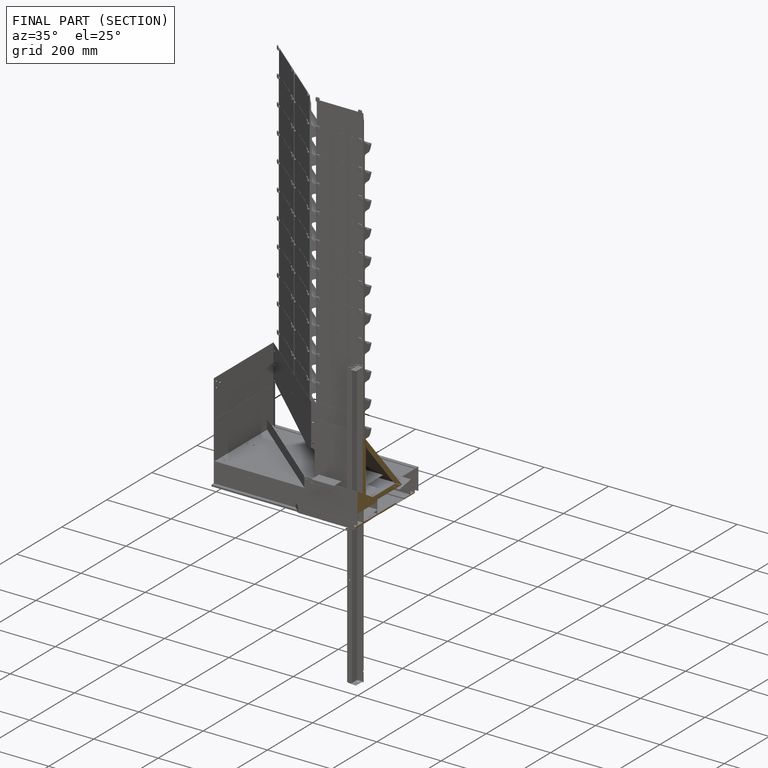
[diagram: finished part — half-section view (interior)]
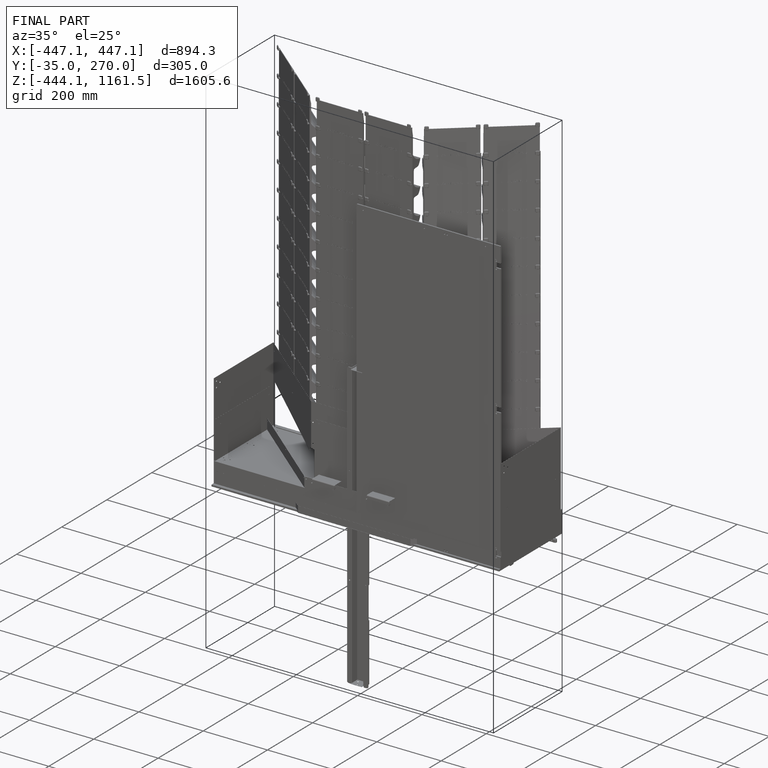
[diagram: finished part — iso view with bounding-box wireframe]
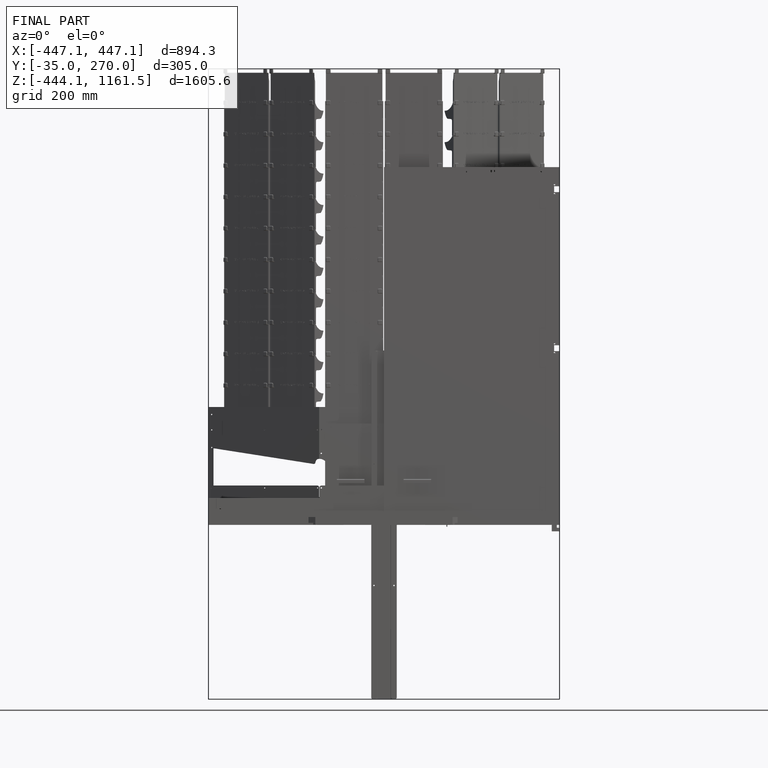
[diagram: finished part — front view with bounding-box wireframe]
